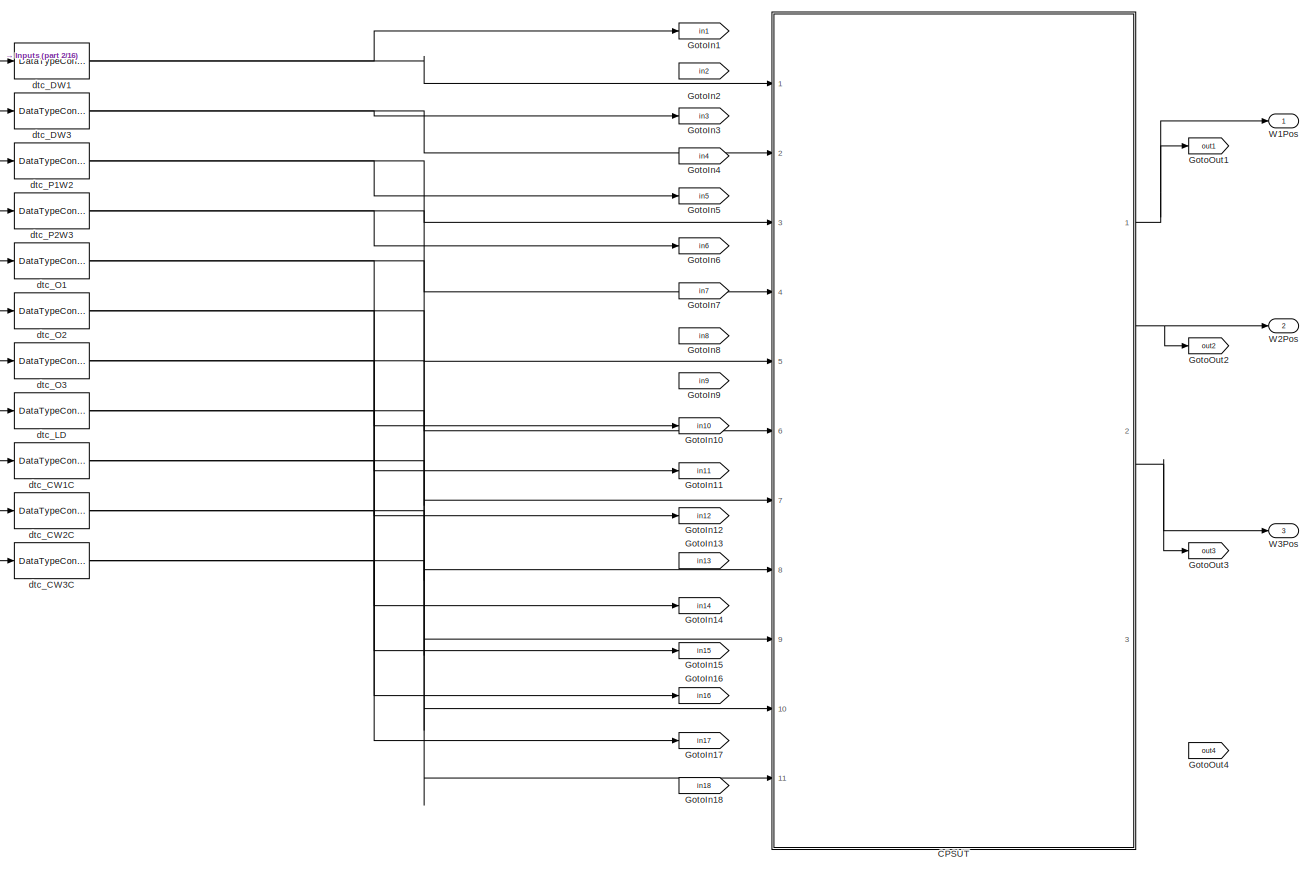
[diagram: root canvas - part 1/16, top left region]
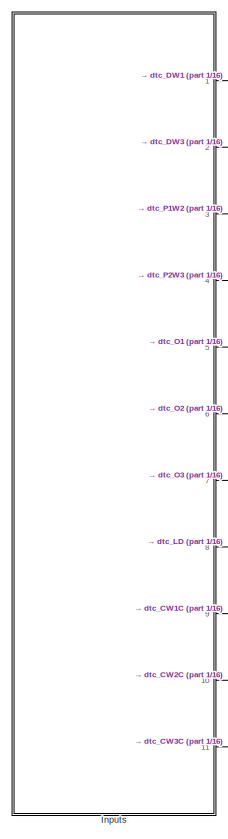
[diagram: root canvas - part 2/16, top left region]
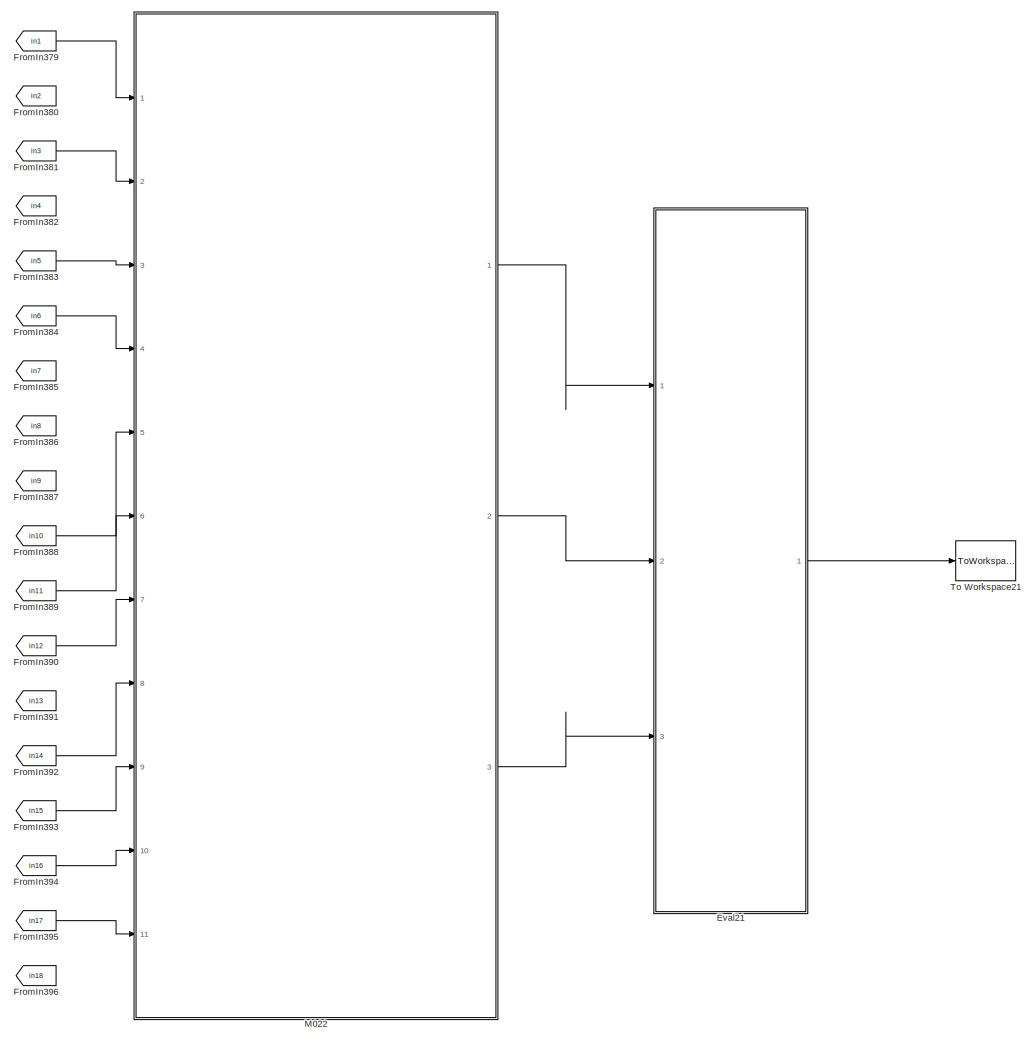
[diagram: root canvas - part 3/16, top center region]
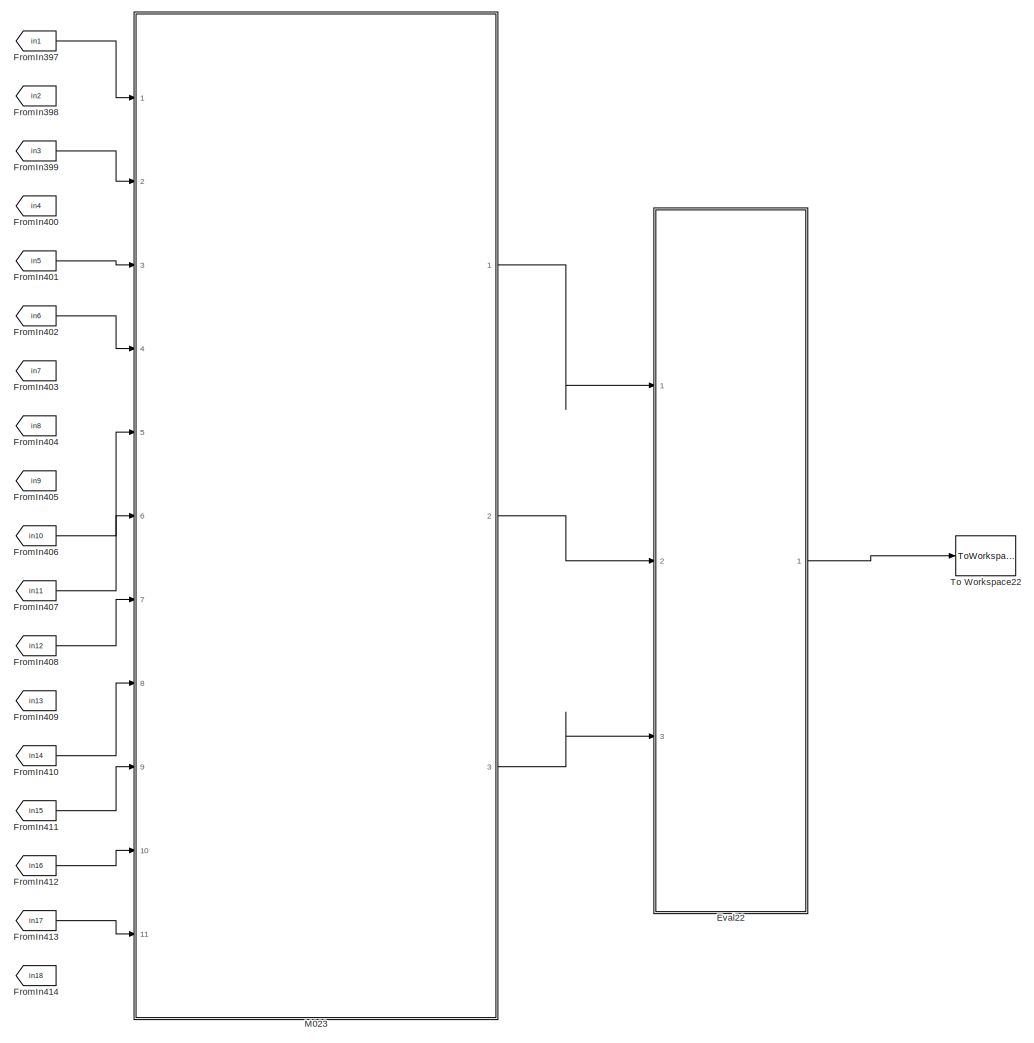
[diagram: root canvas - part 4/16, top center region]
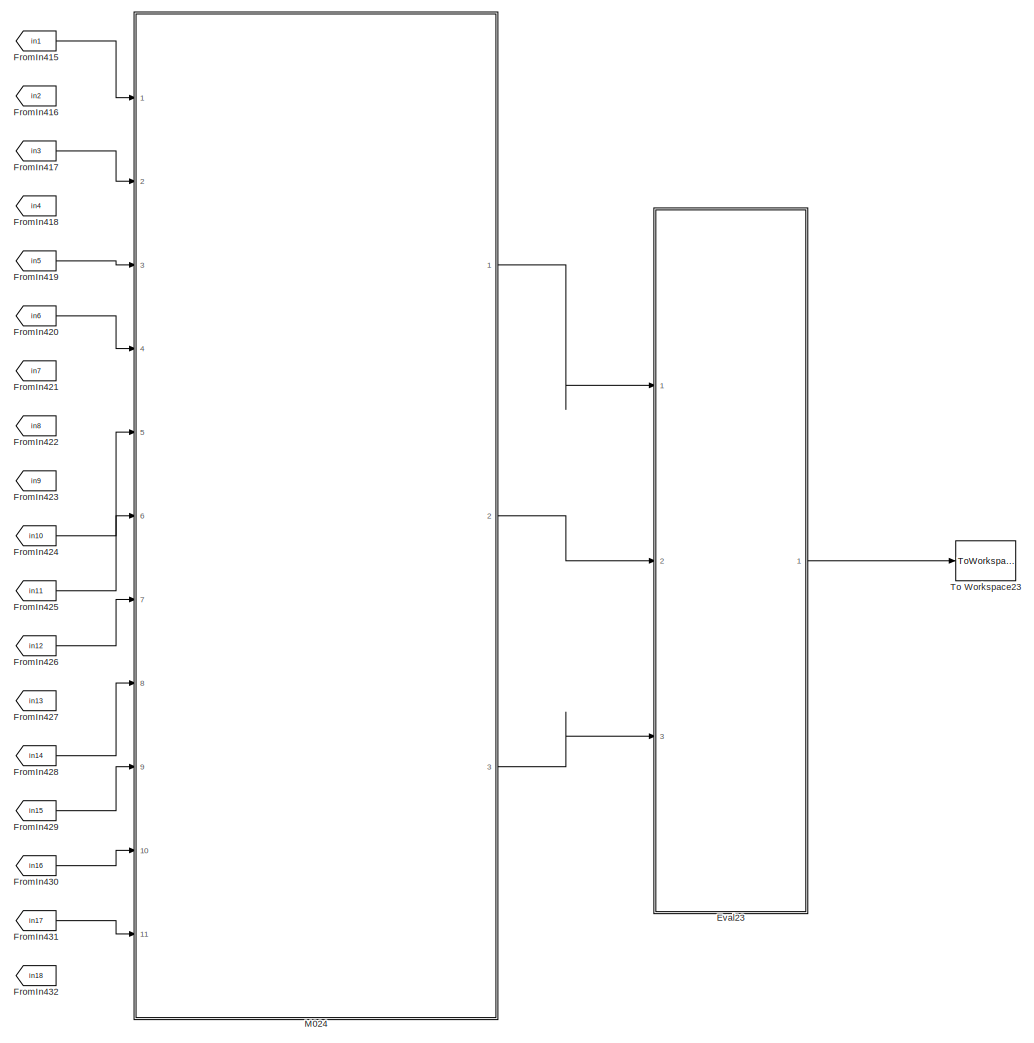
[diagram: root canvas - part 5/16, top center region]
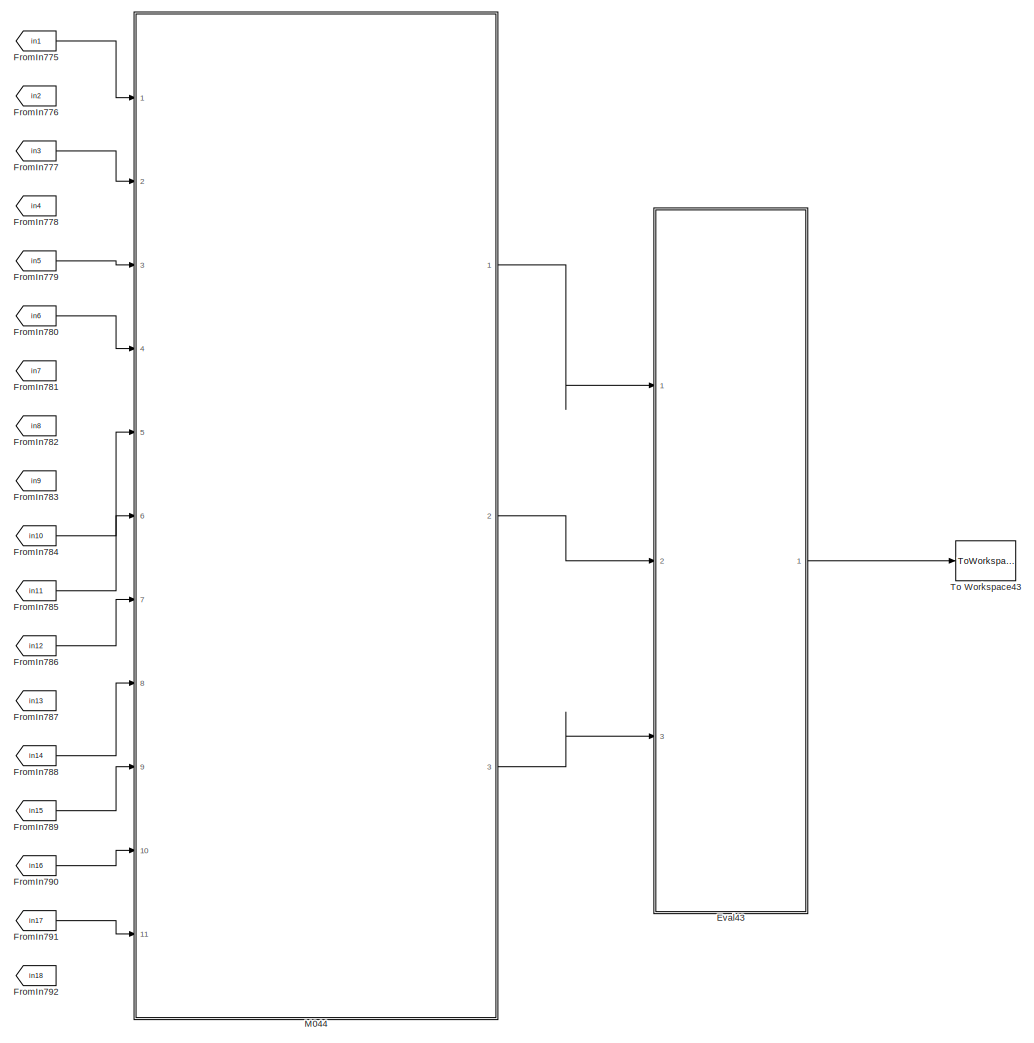
[diagram: root canvas - part 6/16, top right region]
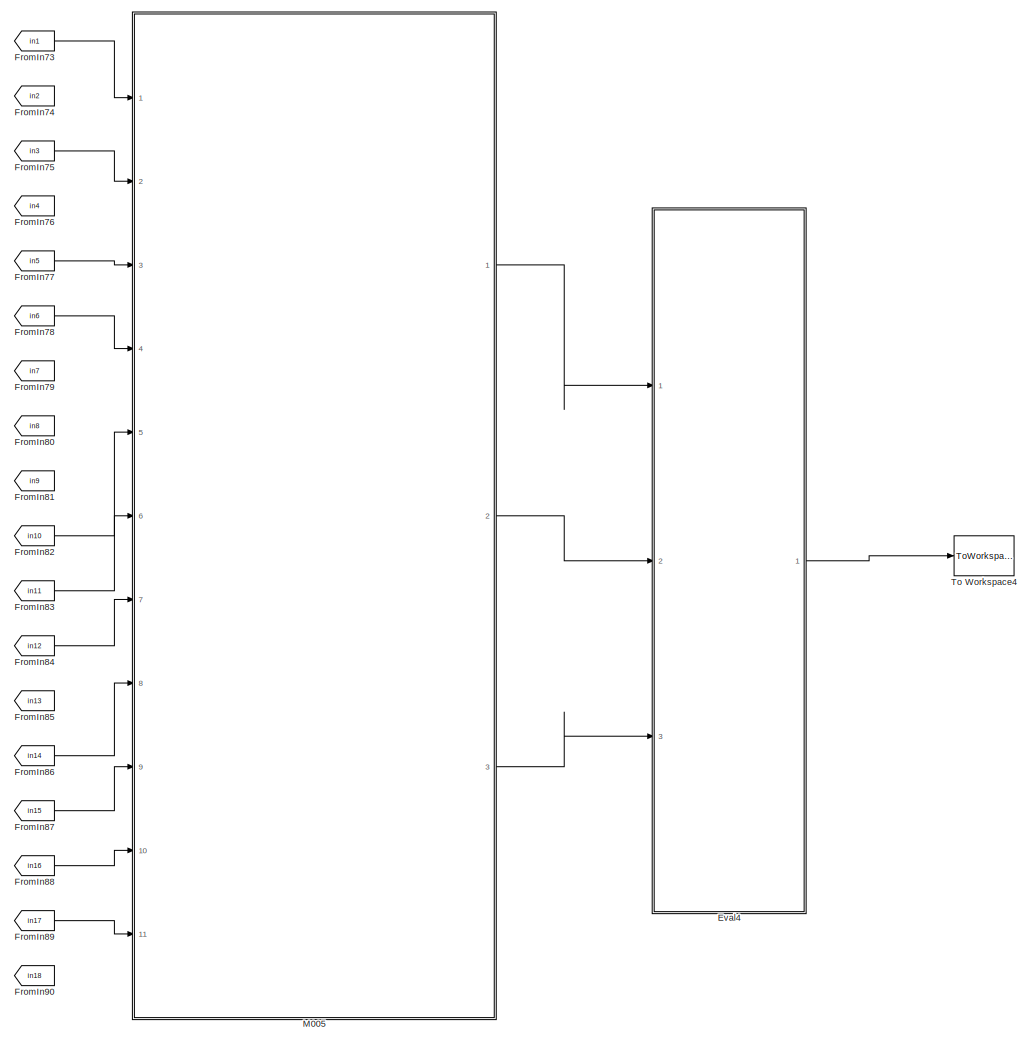
[diagram: root canvas - part 7/16, top center region]
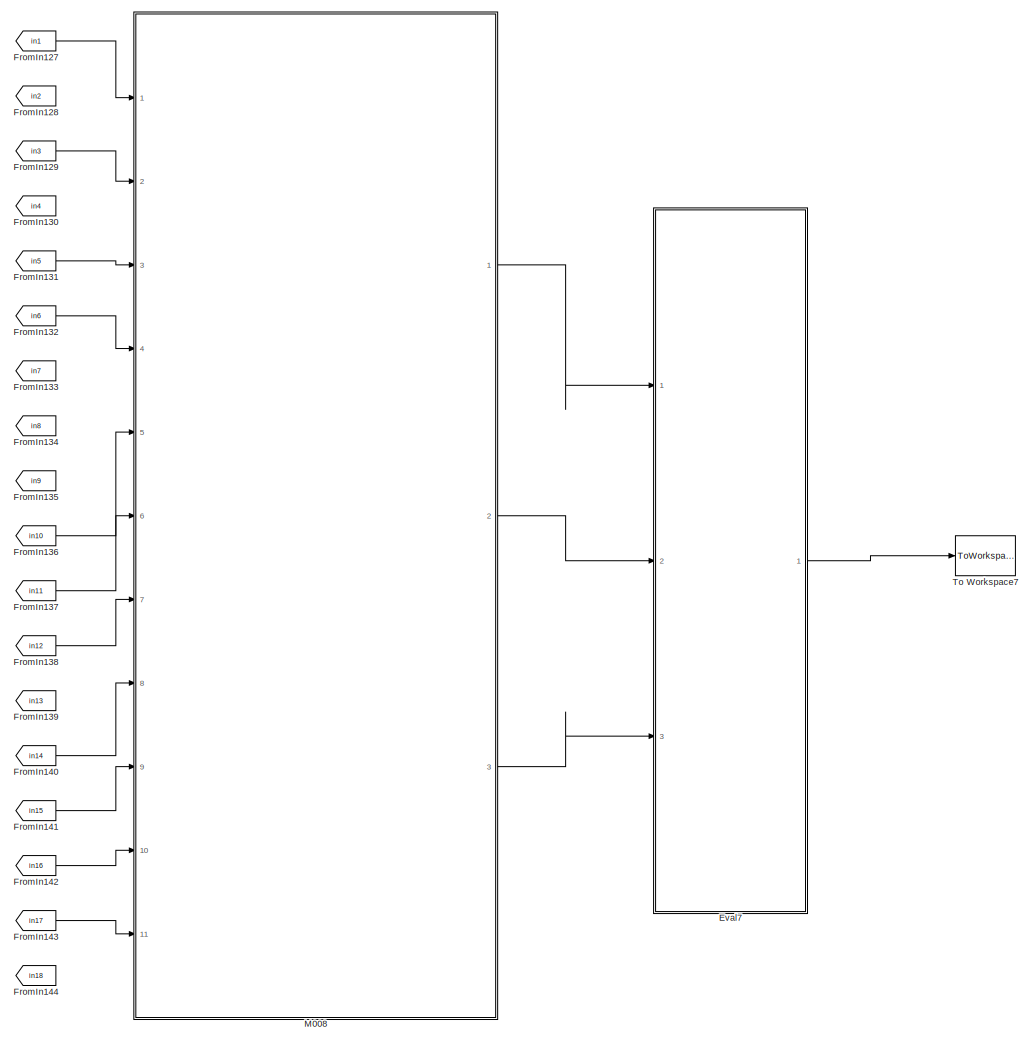
[diagram: root canvas - part 8/16, central region]
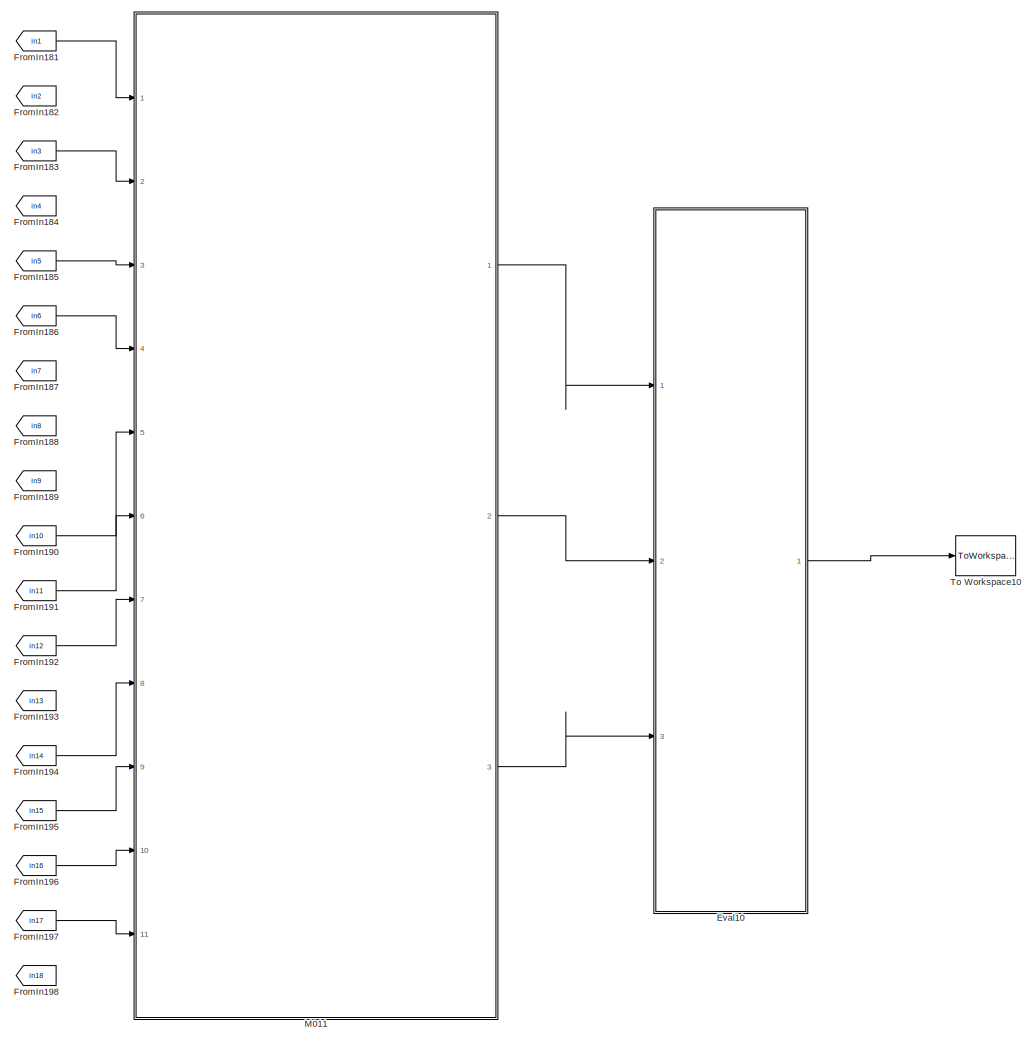
[diagram: root canvas - part 9/16, central region]
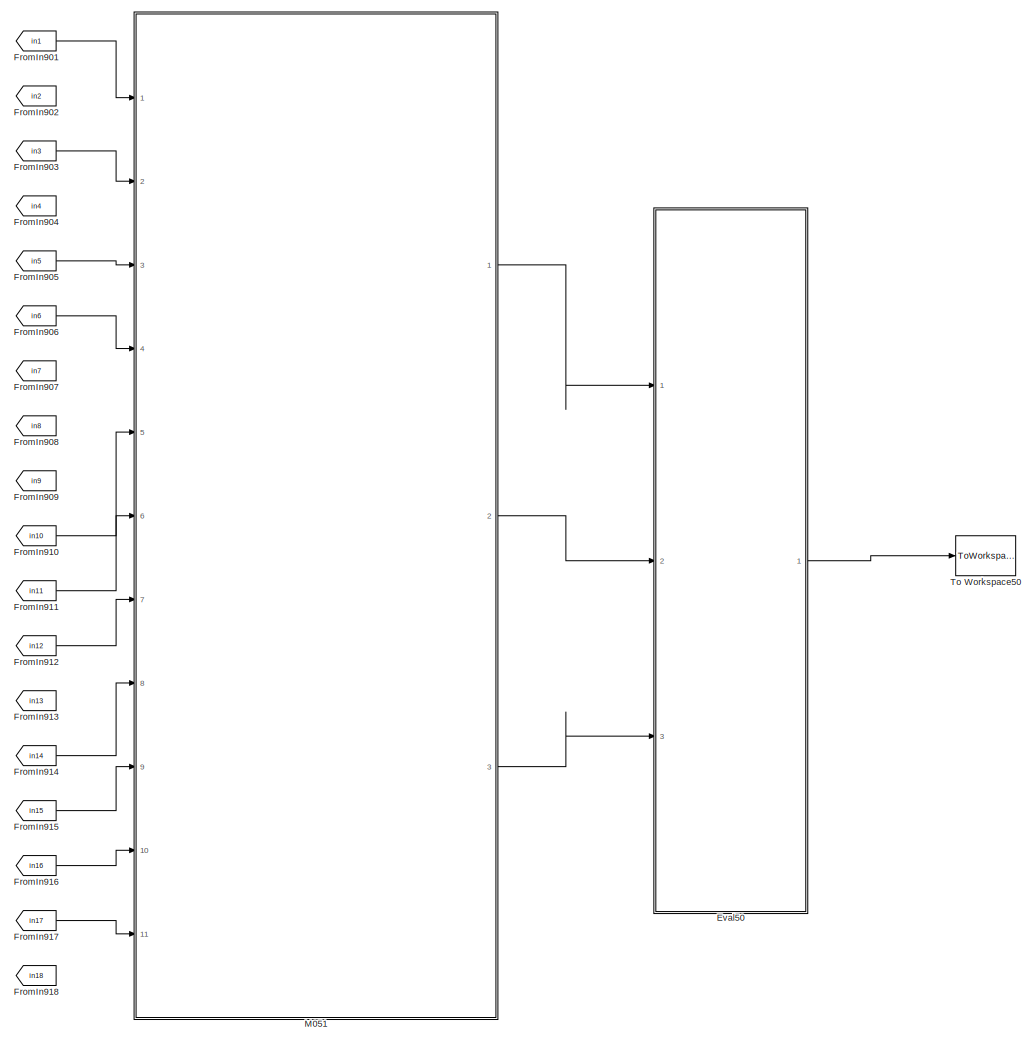
[diagram: root canvas - part 10/16, middle right region]
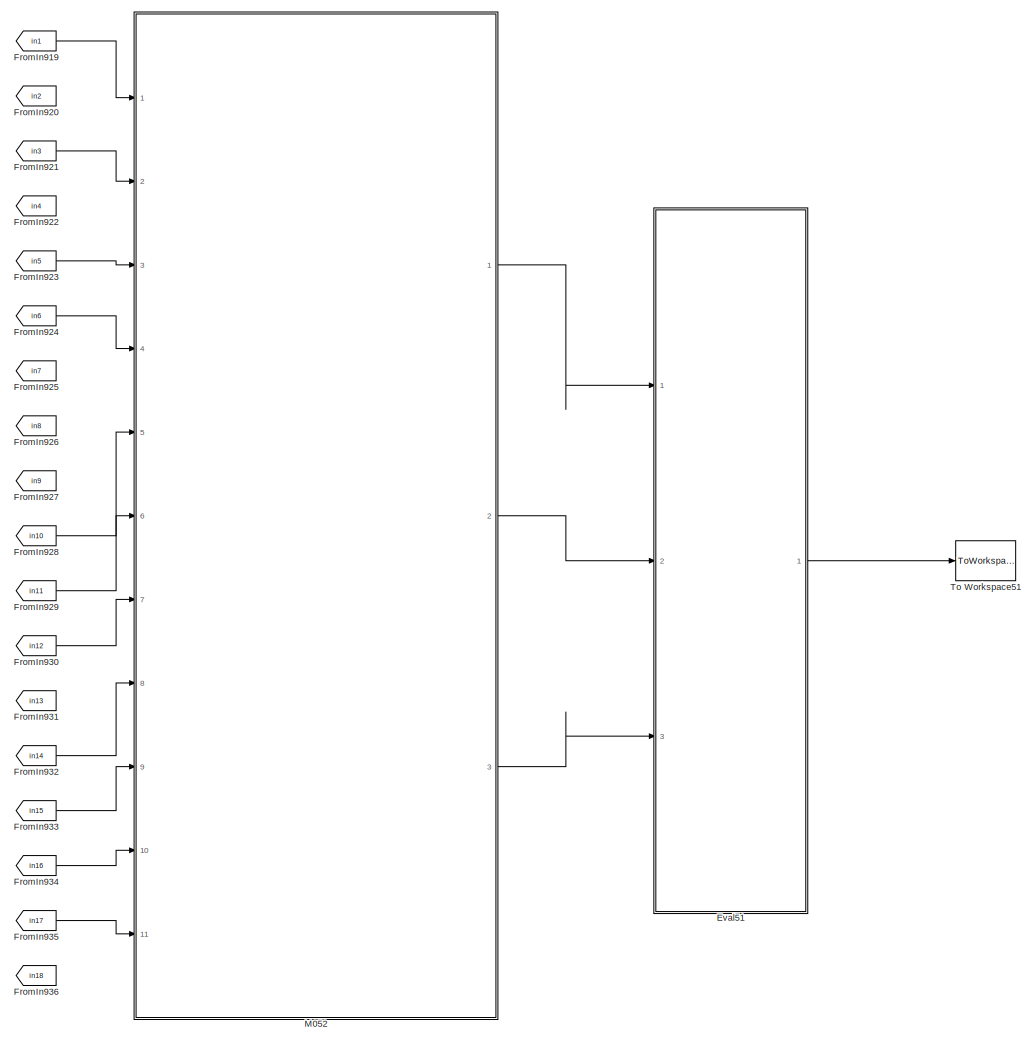
[diagram: root canvas - part 11/16, middle right region]
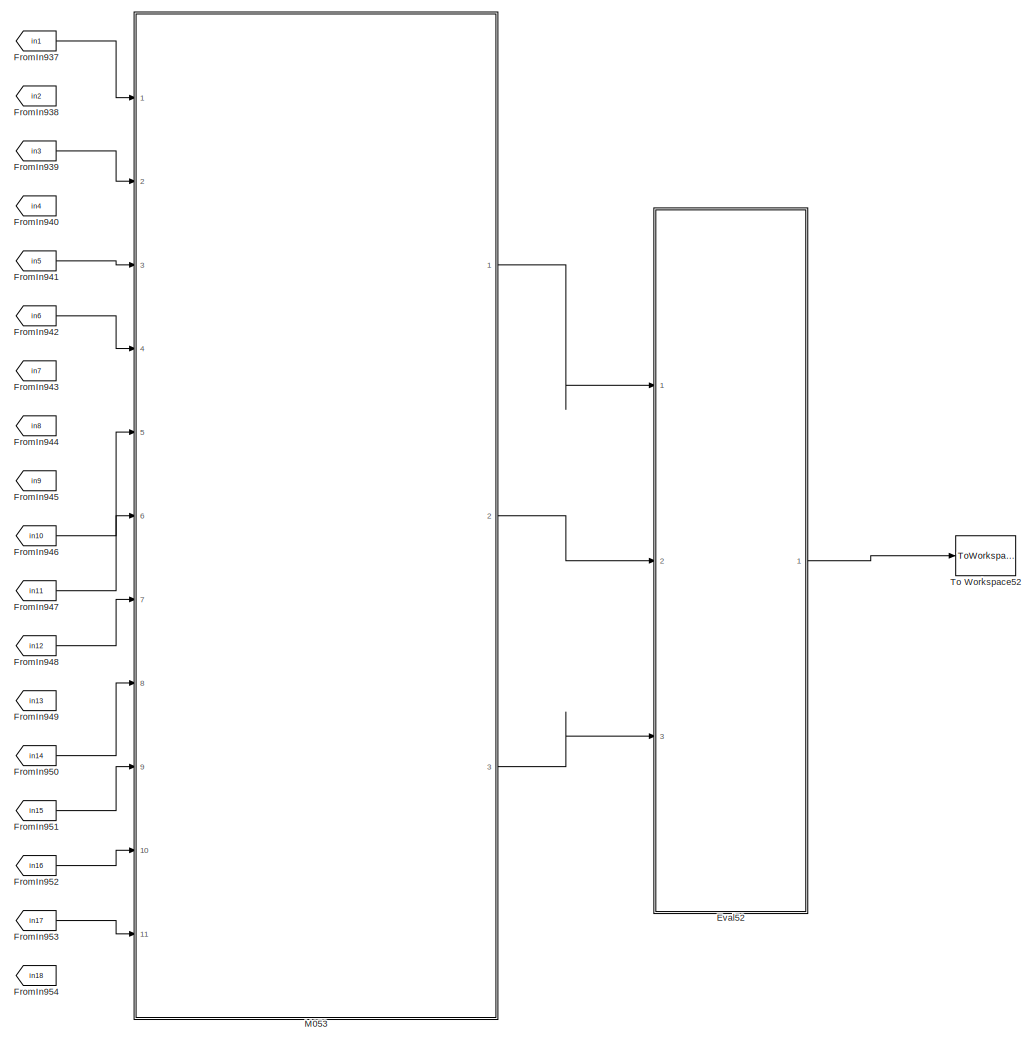
[diagram: root canvas - part 12/16, middle right region]
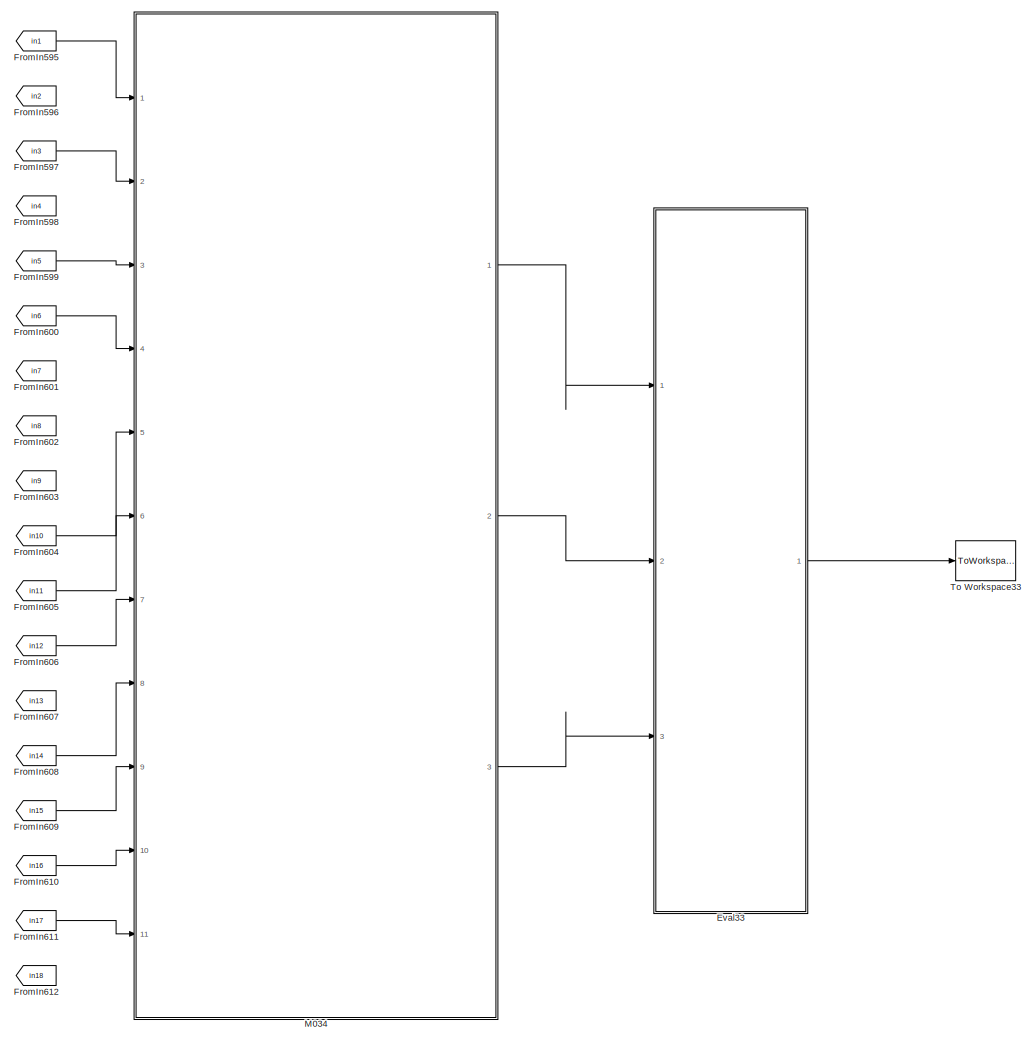
[diagram: root canvas - part 13/16, bottom center region]
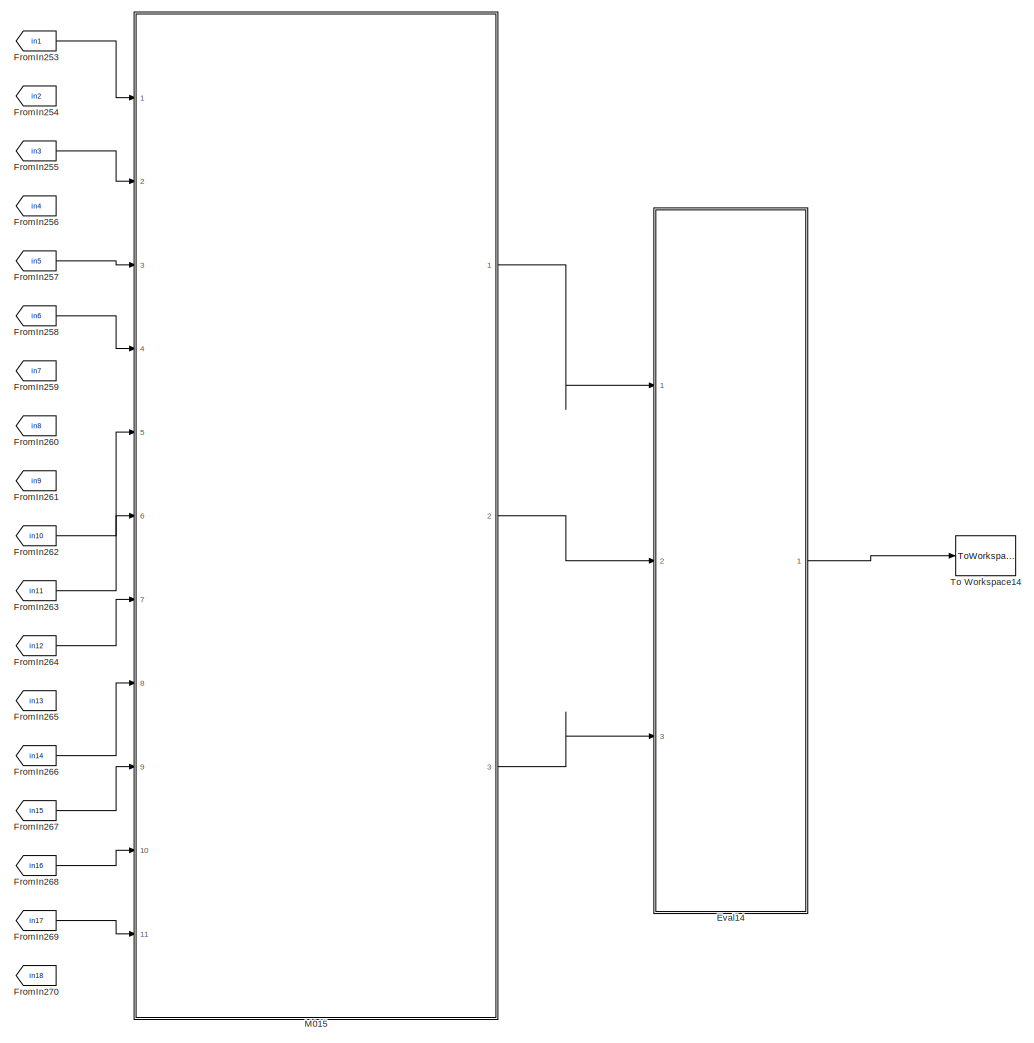
[diagram: root canvas - part 14/16, bottom center region]
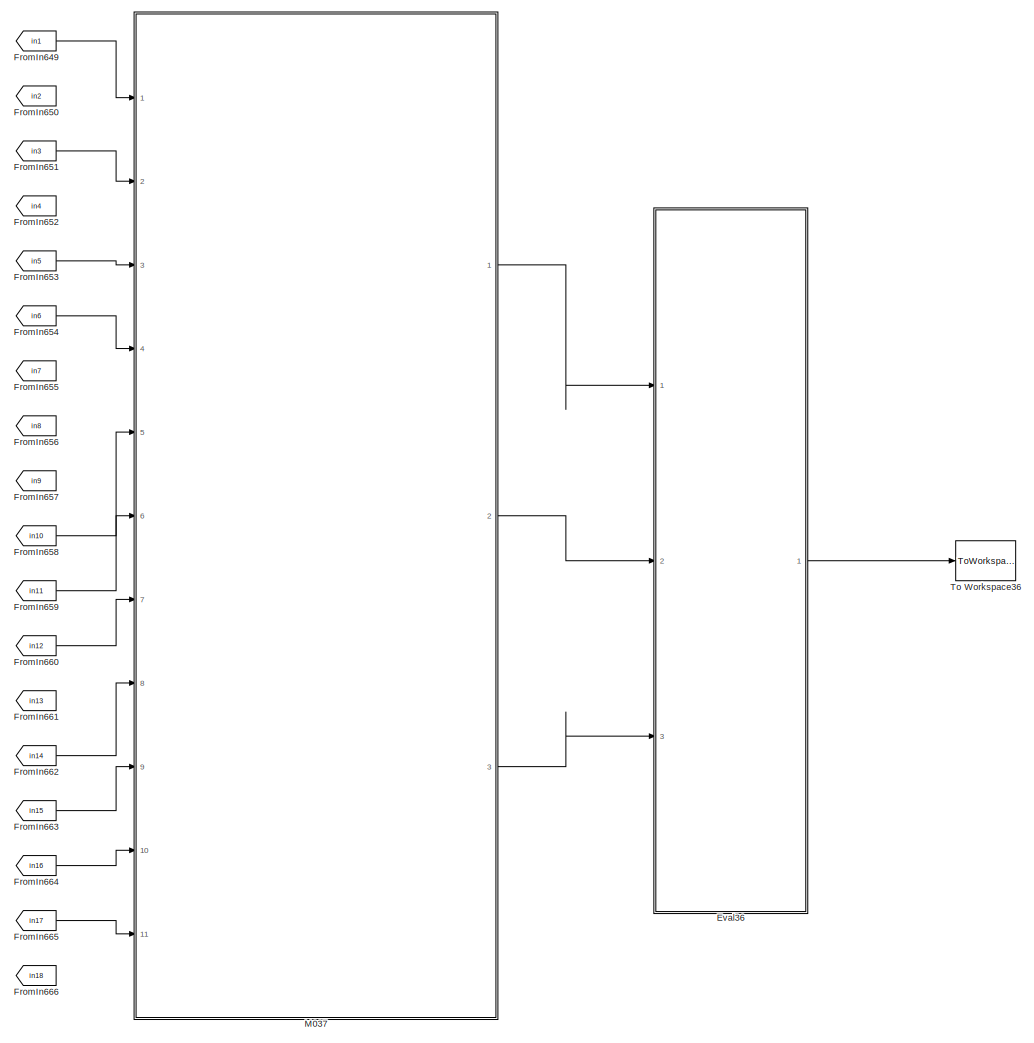
[diagram: root canvas - part 15/16, bottom center region]
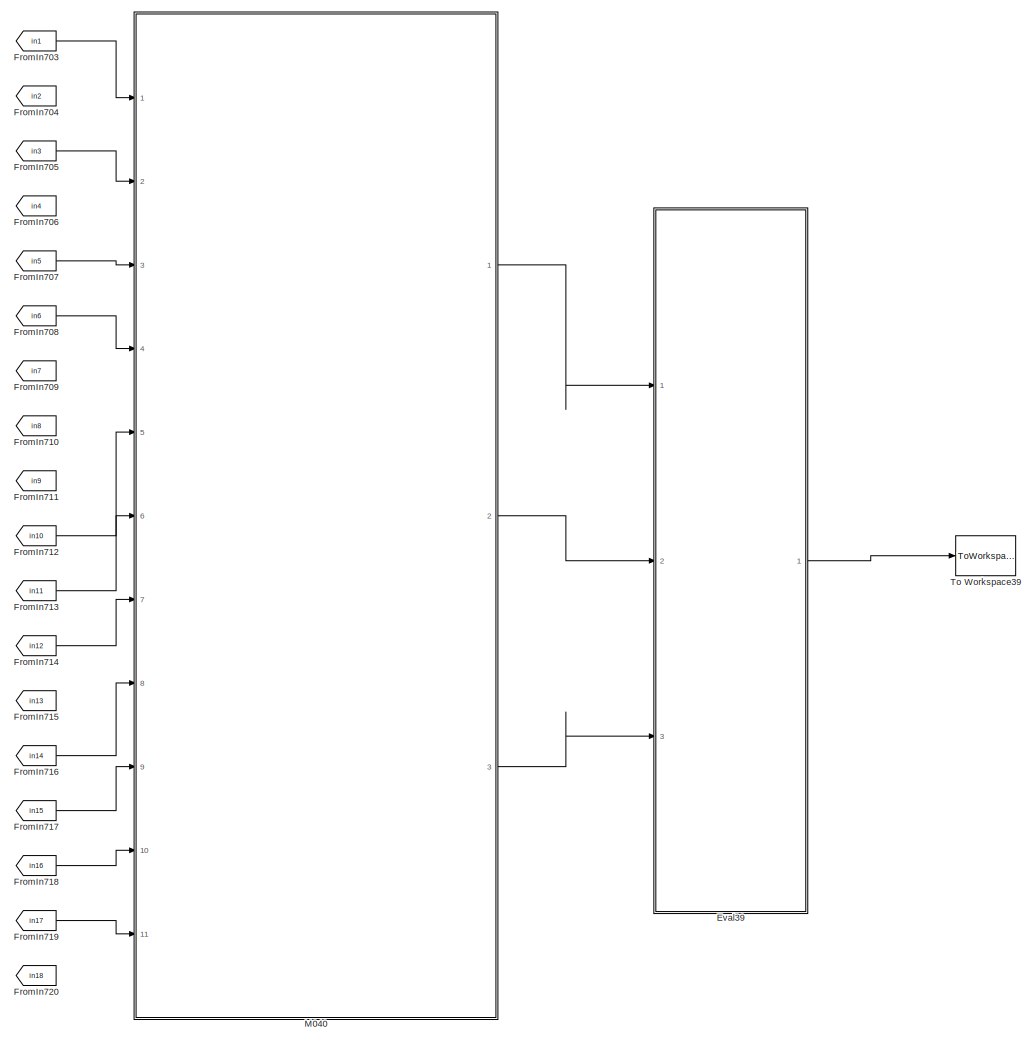
[diagram: root canvas - part 16/16, bottom center region]
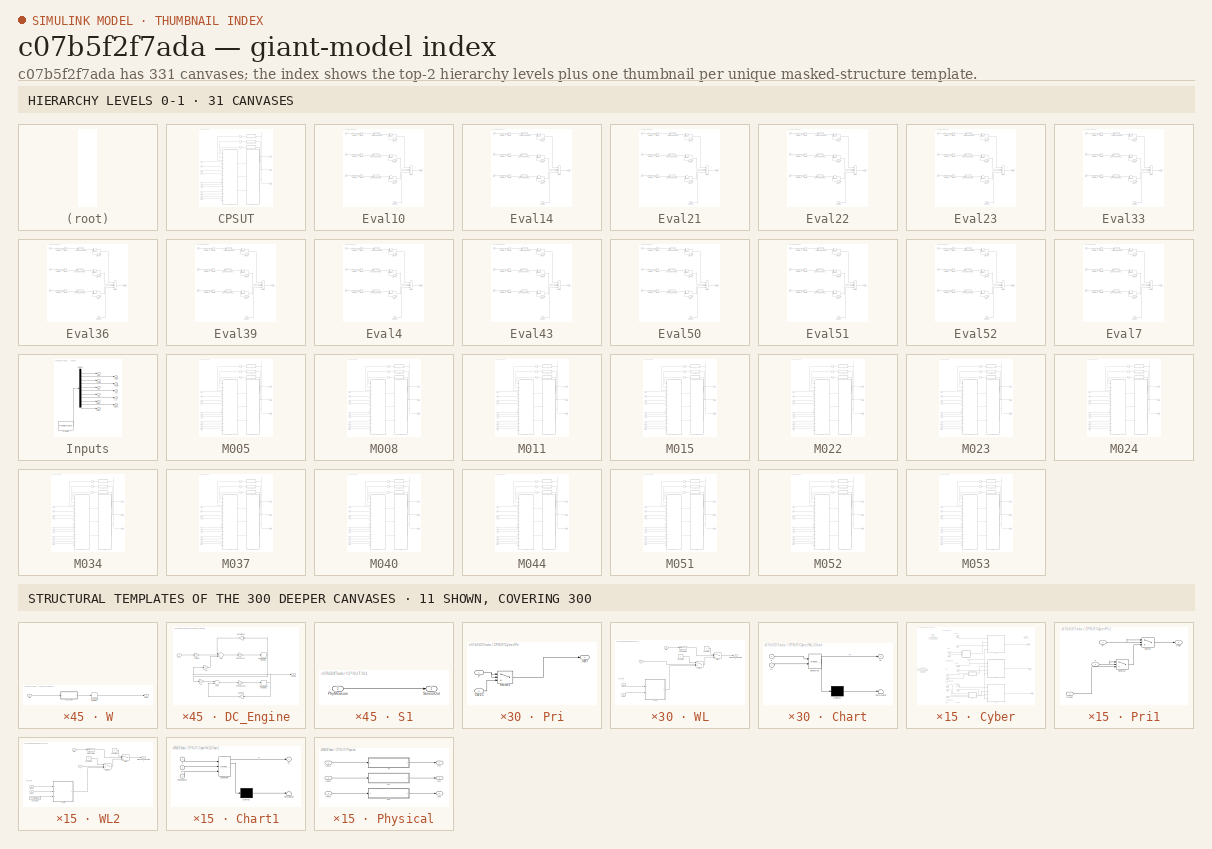
[diagram: thumbnail index - top-2 hierarchy levels (31 canvases) + 11 structural-template representatives of the remaining 300 canvases]
MODEL slx_c07b5f2f7ada
KIND model
CONFIG AbsTol = auto
CONFIG EnableMultiTasking = on
CONFIG FixedStep = auto
CONFIG MaxStep = auto
CONFIG MinStep = auto
CONFIG RelTol = 1e-3
CONFIG SampleTimeConstraint = Unconstrained
CONFIG Solver = ode3
CONFIG SolverName = ode3
CONFIG StartTime = 0.0
CONFIG StopTime = 10.0
BLOCK [SubSystem] CPSUT
  Ports = [11, 3]
  RequestExecContextInheritance = off
BLOCK [Inport] CPSUT/CW1C
  IconDisplay = Port number
  OutDataTypeStr = int8
  OutMax = 4
  OutMin = 0
  Port = 9
BLOCK [Inport] CPSUT/CW2C
  IconDisplay = Port number
  OutDataTypeStr = int8
  OutMax = 4
  OutMin = 0
  Port = 10
BLOCK [Inport] CPSUT/CW3C
  IconDisplay = Port number
  OutDataTypeStr = int8
  OutMax = 4
  OutMin = 0
  Port = 11
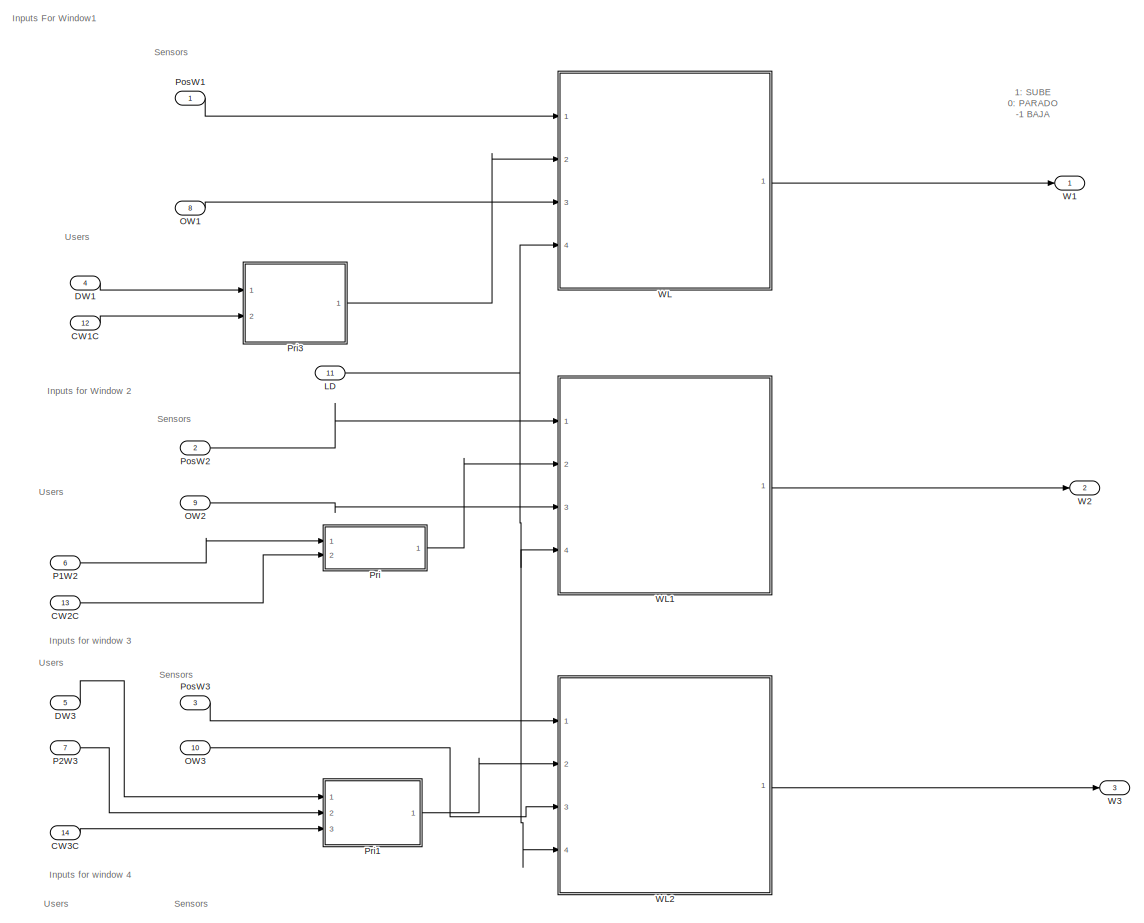
[diagram: CPSUT/Cyber - part 1/2, most of the canvas]
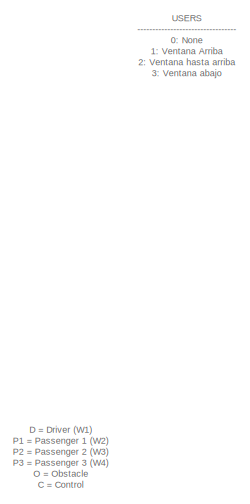
[diagram: CPSUT/Cyber - part 2/2, middle left region]
BLOCK [SubSystem] CPSUT/Cyber
  Ports = [14, 3]
  RequestExecContextInheritance = off
BLOCK [Inport] CPSUT/Cyber/CW1C
  IconDisplay = Port number
  Port = 12
BLOCK [Inport] CPSUT/Cyber/CW2C
  IconDisplay = Port number
  Port = 13
BLOCK [Inport] CPSUT/Cyber/CW3C
  IconDisplay = Port number
  Port = 14
BLOCK [Inport] CPSUT/Cyber/DW1
  IconDisplay = Port number
  Port = 4
BLOCK [Inport] CPSUT/Cyber/DW3
  IconDisplay = Port number
  Port = 5
BLOCK [Inport] CPSUT/Cyber/LD
  IconDisplay = Port number
  Port = 11
BLOCK [Inport] CPSUT/Cyber/OW1
  IconDisplay = Port number
  Port = 8
BLOCK [Inport] CPSUT/Cyber/OW2
  IconDisplay = Port number
  Port = 9
BLOCK [Inport] CPSUT/Cyber/OW3
  IconDisplay = Port number
  Port = 10
BLOCK [Inport] CPSUT/Cyber/P1W2
  IconDisplay = Port number
  Port = 6
BLOCK [Inport] CPSUT/Cyber/P2W3
  IconDisplay = Port number
  Port = 7
BLOCK [Inport] CPSUT/Cyber/PosW1
  IconDisplay = Port number
BLOCK [Inport] CPSUT/Cyber/PosW2
  IconDisplay = Port number
  Port = 2
BLOCK [Inport] CPSUT/Cyber/PosW3
  IconDisplay = Port number
  Port = 3
BLOCK [SubSystem] CPSUT/Cyber/Pri
  Ports = [2, 1]
  RequestExecContextInheritance = off
BLOCK [Inport] CPSUT/Cyber/Pri/CW2C
  IconDisplay = Port number
  Port = 2
BLOCK [Inport] CPSUT/Cyber/Pri/P
  IconDisplay = Port number
BLOCK [Switch] CPSUT/Cyber/Pri/Switch1
  Criteria = u2 ~= 0
  InputSameDT = off
  SaturateOnIntegerOverflow = off
BLOCK [Outport] CPSUT/Cyber/Pri/User
  IconDisplay = Port number
BLOCK [SubSystem] CPSUT/Cyber/Pri1
  Ports = [3, 1]
  RequestExecContextInheritance = off
BLOCK [Inport] CPSUT/Cyber/Pri1/CW3C
  IconDisplay = Port number
  Port = 3
BLOCK [Inport] CPSUT/Cyber/Pri1/D
  IconDisplay = Port number
BLOCK [Inport] CPSUT/Cyber/Pri1/P
  IconDisplay = Port number
  Port = 2
BLOCK [Switch] CPSUT/Cyber/Pri1/Switch
  Criteria = u2 ~= 0
  InputSameDT = off
  SaturateOnIntegerOverflow = off
BLOCK [Switch] CPSUT/Cyber/Pri1/Switch1
  Criteria = u2 ~= 0
  InputSameDT = off
  SaturateOnIntegerOverflow = off
BLOCK [Outport] CPSUT/Cyber/Pri1/User
  IconDisplay = Port number
BLOCK [SubSystem] CPSUT/Cyber/Pri3
  Ports = [2, 1]
  RequestExecContextInheritance = off
BLOCK [Inport] CPSUT/Cyber/Pri3/CW1C
  IconDisplay = Port number
  Port = 2
BLOCK [Inport] CPSUT/Cyber/Pri3/D
  IconDisplay = Port number
BLOCK [Switch] CPSUT/Cyber/Pri3/Switch
  Criteria = u2 ~= 0
  InputSameDT = off
  SaturateOnIntegerOverflow = off
BLOCK [Outport] CPSUT/Cyber/Pri3/User
  IconDisplay = Port number
BLOCK [Outport] CPSUT/Cyber/W1
  IconDisplay = Port number
BLOCK [Outport] CPSUT/Cyber/W2
  IconDisplay = Port number
  Port = 2
BLOCK [Outport] CPSUT/Cyber/W3
  IconDisplay = Port number
  Port = 3
BLOCK [SubSystem] CPSUT/Cyber/WL
  Ports = [4, 1]
  RequestExecContextInheritance = off
BLOCK [SubSystem] CPSUT/Cyber/WL/Chart
  ErrorFcn = Stateflow.Translate.translate
  PermitHierarchicalResolution = ExplicitOnly
  Ports = [2, 1]
  RequestExecContextInheritance = off
  SFBlockType = Chart
  TreatAsAtomicUnit = on
BLOCK [Demux] CPSUT/Cyber/WL/Chart/ Demux 
  Outputs = 1
  Ports = [1, 1]
BLOCK [S-Function] CPSUT/Cyber/WL/Chart/ SFunction 
  EnableBusSupport = off
  FunctionName = sf_sfun
  PortCounts = [2 2]
  Ports = [2, 2]
  SFcnIsStateOwnerBlock = off
  SFunctionDeploymentMode = off
  Tag = Stateflow S-Function c00021M_harness 1
BLOCK [Terminator] CPSUT/Cyber/WL/Chart/ Terminator 
BLOCK [Inport] CPSUT/Cyber/WL/Chart/S
  IconDisplay = Port number
BLOCK [Inport] CPSUT/Cyber/WL/Chart/UI
  IconDisplay = Port number
  Port = 2
BLOCK [Outport] CPSUT/Cyber/WL/Chart/W
  IconDisplay = Port number
BLOCK [Constant] CPSUT/Cyber/WL/Constant
  Value = -1
BLOCK [Constant] CPSUT/Cyber/WL/Constant1
  Value = 0
BLOCK [DataTypeConversion] CPSUT/Cyber/WL/Data Type Conversion
  RndMeth = Floor
  SaturateOnIntegerOverflow = off
BLOCK [Inport] CPSUT/Cyber/WL/L
  IconDisplay = Port number
  Port = 4
BLOCK [Inport] CPSUT/Cyber/WL/OW
  IconDisplay = Port number
  Port = 3
BLOCK [Switch] CPSUT/Cyber/WL/Switch
  Criteria = u2 ~= 0
  InputSameDT = off
  SaturateOnIntegerOverflow = off
  Threshold = 1
  ZeroCross = off
BLOCK [Switch] CPSUT/Cyber/WL/Switch1
  Criteria = u2 ~= 0
  InputSameDT = off
  SaturateOnIntegerOverflow = off
BLOCK [Inport] CPSUT/Cyber/WL/User
  IconDisplay = Port number
  Port = 2
BLOCK [Inport] CPSUT/Cyber/WL/WPos
  IconDisplay = Port number
BLOCK [Outport] CPSUT/Cyber/WL/WindowLogicOutput
  IconDisplay = Port number
BLOCK [SubSystem] CPSUT/Cyber/WL1
  Ports = [4, 1]
  RequestExecContextInheritance = off
BLOCK [SubSystem] CPSUT/Cyber/WL1/Chart1
  ErrorFcn = Stateflow.Translate.translate
  PermitHierarchicalResolution = ExplicitOnly
  Ports = [2, 1]
  RequestExecContextInheritance = off
  SFBlockType = Chart
  TreatAsAtomicUnit = on
BLOCK [Demux] CPSUT/Cyber/WL1/Chart1/ Demux 
  Outputs = 1
  Ports = [1, 1]
BLOCK [S-Function] CPSUT/Cyber/WL1/Chart1/ SFunction 
  EnableBusSupport = off
  FunctionName = sf_sfun
  PortCounts = [2 2]
  Ports = [2, 2]
  SFcnIsStateOwnerBlock = off
  SFunctionDeploymentMode = off
  Tag = Stateflow S-Function c00021M_harness 3
BLOCK [Terminator] CPSUT/Cyber/WL1/Chart1/ Terminator 
BLOCK [Inport] CPSUT/Cyber/WL1/Chart1/S
  IconDisplay = Port number
BLOCK [Inport] CPSUT/Cyber/WL1/Chart1/UI
  IconDisplay = Port number
  Port = 2
BLOCK [Outport] CPSUT/Cyber/WL1/Chart1/W
  IconDisplay = Port number
BLOCK [Constant] CPSUT/Cyber/WL1/Constant
  Value = -1
BLOCK [Constant] CPSUT/Cyber/WL1/Constant1
  Value = 0
BLOCK [DataTypeConversion] CPSUT/Cyber/WL1/Data Type Conversion
  RndMeth = Floor
  SaturateOnIntegerOverflow = off
BLOCK [Inport] CPSUT/Cyber/WL1/L
  IconDisplay = Port number
  Port = 4
BLOCK [Inport] CPSUT/Cyber/WL1/OW
  IconDisplay = Port number
  Port = 3
BLOCK [Switch] CPSUT/Cyber/WL1/Switch
  Criteria = u2 ~= 0
  InputSameDT = off
  SaturateOnIntegerOverflow = off
  Threshold = 1
  ZeroCross = off
BLOCK [Switch] CPSUT/Cyber/WL1/Switch1
  Criteria = u2 ~= 0
  InputSameDT = off
  SaturateOnIntegerOverflow = off
BLOCK [Inport] CPSUT/Cyber/WL1/User
  IconDisplay = Port number
  Port = 2
BLOCK [Inport] CPSUT/Cyber/WL1/WPos
  IconDisplay = Port number
BLOCK [Outport] CPSUT/Cyber/WL1/WindowLogicOutput
  IconDisplay = Port number
BLOCK [SubSystem] CPSUT/Cyber/WL2
  Ports = [4, 1]
  RequestExecContextInheritance = off
BLOCK [SubSystem] CPSUT/Cyber/WL2/Chart1
  ErrorFcn = Stateflow.Translate.translate
  PermitHierarchicalResolution = ExplicitOnly
  Ports = [3, 1]
  RequestExecContextInheritance = off
  SFBlockType = Chart
  TreatAsAtomicUnit = on
BLOCK [Demux] CPSUT/Cyber/WL2/Chart1/ Demux 
  Outputs = 1
  Ports = [1, 1]
BLOCK [S-Function] CPSUT/Cyber/WL2/Chart1/ SFunction 
  EnableBusSupport = off
  FunctionName = sf_sfun
  PortCounts = [3 2]
  Ports = [3, 2]
  SFcnIsStateOwnerBlock = off
  SFunctionDeploymentMode = off
  Tag = Stateflow S-Function c00021M_harness 2
BLOCK [Terminator] CPSUT/Cyber/WL2/Chart1/ Terminator 
BLOCK [Inport] CPSUT/Cyber/WL2/Chart1/PosMinW3
  IconDisplay = Port number
  Port = 3
BLOCK [Inport] CPSUT/Cyber/WL2/Chart1/S
  IconDisplay = Port number
BLOCK [Inport] CPSUT/Cyber/WL2/Chart1/UI
  IconDisplay = Port number
  Port = 2
BLOCK [Outport] CPSUT/Cyber/WL2/Chart1/W
  IconDisplay = Port number
BLOCK [Constant] CPSUT/Cyber/WL2/Constant
  Value = -1
BLOCK [Constant] CPSUT/Cyber/WL2/Constant1
  Value = 0
BLOCK [Constant] CPSUT/Cyber/WL2/Constant2
  Value = PosMinimaW3
BLOCK [DataTypeConversion] CPSUT/Cyber/WL2/Data Type Conversion
  RndMeth = Floor
  SaturateOnIntegerOverflow = off
BLOCK [Inport] CPSUT/Cyber/WL2/L
  IconDisplay = Port number
  Port = 4
BLOCK [Inport] CPSUT/Cyber/WL2/OW
  IconDisplay = Port number
  Port = 3
BLOCK [Switch] CPSUT/Cyber/WL2/Switch
  Criteria = u2 ~= 0
  InputSameDT = off
  SaturateOnIntegerOverflow = off
  Threshold = 1
  ZeroCross = off
BLOCK [Switch] CPSUT/Cyber/WL2/Switch1
  Criteria = u2 ~= 0
  InputSameDT = off
  SaturateOnIntegerOverflow = off
BLOCK [Inport] CPSUT/Cyber/WL2/User
  IconDisplay = Port number
  Port = 2
BLOCK [Inport] CPSUT/Cyber/WL2/WPos
  IconDisplay = Port number
BLOCK [Outport] CPSUT/Cyber/WL2/WindowLogicOutput
  IconDisplay = Port number
BLOCK [Inport] CPSUT/DW1
  IconDisplay = Port number
  OutDataTypeStr = int8
  OutMax = 4
  OutMin = 0
BLOCK [Inport] CPSUT/DW3
  IconDisplay = Port number
  OutDataTypeStr = int8
  OutMax = 4
  OutMin = 0
  Port = 2
BLOCK [Inport] CPSUT/LD
  IconDisplay = Port number
  OutDataTypeStr = boolean
  Port = 8
BLOCK [Memory] CPSUT/M
BLOCK [Memory] CPSUT/M1
BLOCK [Memory] CPSUT/M2
BLOCK [Inport] CPSUT/O1
  IconDisplay = Port number
  OutDataTypeStr = boolean
  Port = 5
BLOCK [Inport] CPSUT/O2
  IconDisplay = Port number
  OutDataTypeStr = boolean
  Port = 6
BLOCK [Inport] CPSUT/O3
  IconDisplay = Port number
  OutDataTypeStr = boolean
  Port = 7
BLOCK [Inport] CPSUT/P1W2
  IconDisplay = Port number
  OutDataTypeStr = int8
  OutMax = 4
  OutMin = 0
  Port = 3
BLOCK [Inport] CPSUT/P2W3
  IconDisplay = Port number
  OutDataTypeStr = int8
  OutMax = 4
  OutMin = 0
  Port = 4
BLOCK [SubSystem] CPSUT/Physical
  Ports = [3, 3]
  RequestExecContextInheritance = off
BLOCK [Inport] CPSUT/Physical/InW1
  IconDisplay = Port number
BLOCK [Inport] CPSUT/Physical/InW2
  IconDisplay = Port number
  Port = 2
BLOCK [Inport] CPSUT/Physical/InW3
  IconDisplay = Port number
  Port = 3
BLOCK [SubSystem] CPSUT/Physical/W
  Ports = [1, 1]
  RequestExecContextInheritance = off
BLOCK [SubSystem] CPSUT/Physical/W/DC_Engine
  Ports = [1, 1]
  RequestExecContextInheritance = off
BLOCK [Gain] CPSUT/Physical/W/DC_Engine/(Inductance)
  Gain = 1/L
  OutDataTypeStr = Inherit: Inherit via internal rule
  ParamDataTypeStr = Inherit: Inherit via internal rule
  SaturateOnIntegerOverflow = off
BLOCK [Gain] CPSUT/Physical/W/DC_Engine/(Inductance)1
  Gain = 1/J
  OutDataTypeStr = Inherit: Inherit via internal rule
  ParamDataTypeStr = Inherit: Inherit via internal rule
  SaturateOnIntegerOverflow = off
BLOCK [Sum] CPSUT/Physical/W/DC_Engine/Add
  InputSameDT = off
  Inputs = -+-
  OutDataTypeStr = Inherit: Inherit via internal rule
  Ports = [3, 1]
  SaturateOnIntegerOverflow = off
BLOCK [Sum] CPSUT/Physical/W/DC_Engine/Add1
  InputSameDT = off
  Inputs = +-
  OutDataTypeStr = Inherit: Inherit via internal rule
  Ports = [2, 1]
  SaturateOnIntegerOverflow = off
BLOCK [Gain] CPSUT/Physical/W/DC_Engine/Damping
  Gain = b
  OutDataTypeStr = Inherit: Inherit via internal rule
  ParamDataTypeStr = Inherit: Inherit via internal rule
  SaturateOnIntegerOverflow = off
BLOCK [DiscreteIntegrator] CPSUT/Physical/W/DC_Engine/Discrete-Time Integrator
  ICPrevOutput = DiscIntNeverNeededParam
  ICPrevScaledInput = DiscIntNeverNeededParam
  Ports = [1, 1]
  SampleTime = -1
BLOCK [DiscreteIntegrator] CPSUT/Physical/W/DC_Engine/Discrete-Time Integrator1
  ICPrevOutput = DiscIntNeverNeededParam
  ICPrevScaledInput = DiscIntNeverNeededParam
  Ports = [1, 1]
  SampleTime = -1
BLOCK [Gain] CPSUT/Physical/W/DC_Engine/Ke
  Gain = K
  OutDataTypeStr = Inherit: Inherit via internal rule
  ParamDataTypeStr = Inherit: Inherit via internal rule
  SaturateOnIntegerOverflow = off
BLOCK [Gain] CPSUT/Physical/W/DC_Engine/Kt
  Gain = K
  OutDataTypeStr = Inherit: Inherit via internal rule
  ParamDataTypeStr = Inherit: Inherit via internal rule
  SaturateOnIntegerOverflow = off
BLOCK [Gain] CPSUT/Physical/W/DC_Engine/Resistance
  Gain = R
  OutDataTypeStr = Inherit: Inherit via internal rule
  ParamDataTypeStr = Inherit: Inherit via internal rule
  SaturateOnIntegerOverflow = off
BLOCK [Outport] CPSUT/Physical/W/DC_Engine/Speed
  IconDisplay = Port number
BLOCK [Gain] CPSUT/Physical/W/DC_Engine/Voltage
  Gain = 10
  OutDataTypeStr = Inherit: Inherit via internal rule
  ParamDataTypeStr = Inherit: Inherit via internal rule
  SaturateOnIntegerOverflow = off
BLOCK [Inport] CPSUT/Physical/W/DC_Engine/input
  IconDisplay = Port number
BLOCK [DiscreteIntegrator] CPSUT/Physical/W/Discrete-Time Integrator
  ICPrevOutput = DiscIntNeverNeededParam
  ICPrevScaledInput = DiscIntNeverNeededParam
  InitialCondition = 5
  LimitOutput = on
  LowerSaturationLimit = 0
  Ports = [1, 1]
  SampleTime = -1
  UpperSaturationLimit = 5
BLOCK [Inport] CPSUT/Physical/W/WIn
  IconDisplay = Port number
BLOCK [Outport] CPSUT/Physical/W/WPos
  IconDisplay = Port number
BLOCK [Outport] CPSUT/Physical/W1
  IconDisplay = Port number
BLOCK [Outport] CPSUT/Physical/W2
  IconDisplay = Port number
  Port = 2
BLOCK [Outport] CPSUT/Physical/W3
  IconDisplay = Port number
  Port = 3
BLOCK [SubSystem] CPSUT/Physical/W5
  Ports = [1, 1]
  RequestExecContextInheritance = off
BLOCK [SubSystem] CPSUT/Physical/W5/DC_Engine
  Ports = [1, 1]
  RequestExecContextInheritance = off
BLOCK [Gain] CPSUT/Physical/W5/DC_Engine/(Inductance)
  Gain = 1/L
  OutDataTypeStr = Inherit: Inherit via internal rule
  ParamDataTypeStr = Inherit: Inherit via internal rule
  SaturateOnIntegerOverflow = off
BLOCK [Gain] CPSUT/Physical/W5/DC_Engine/(Inductance)1
  Gain = 1/J
  OutDataTypeStr = Inherit: Inherit via internal rule
  ParamDataTypeStr = Inherit: Inherit via internal rule
  SaturateOnIntegerOverflow = off
BLOCK [Sum] CPSUT/Physical/W5/DC_Engine/Add
  InputSameDT = off
  Inputs = -+-
  OutDataTypeStr = Inherit: Inherit via internal rule
  Ports = [3, 1]
  SaturateOnIntegerOverflow = off
BLOCK [Sum] CPSUT/Physical/W5/DC_Engine/Add1
  InputSameDT = off
  Inputs = +-
  OutDataTypeStr = Inherit: Inherit via internal rule
  Ports = [2, 1]
  SaturateOnIntegerOverflow = off
BLOCK [Gain] CPSUT/Physical/W5/DC_Engine/Damping
  Gain = b
  OutDataTypeStr = Inherit: Inherit via internal rule
  ParamDataTypeStr = Inherit: Inherit via internal rule
  SaturateOnIntegerOverflow = off
BLOCK [DiscreteIntegrator] CPSUT/Physical/W5/DC_Engine/Discrete-Time Integrator
  ICPrevOutput = DiscIntNeverNeededParam
  ICPrevScaledInput = DiscIntNeverNeededParam
  Ports = [1, 1]
  SampleTime = -1
BLOCK [DiscreteIntegrator] CPSUT/Physical/W5/DC_Engine/Discrete-Time Integrator1
  ICPrevOutput = DiscIntNeverNeededParam
  ICPrevScaledInput = DiscIntNeverNeededParam
  Ports = [1, 1]
  SampleTime = -1
BLOCK [Gain] CPSUT/Physical/W5/DC_Engine/Ke
  Gain = K
  OutDataTypeStr = Inherit: Inherit via internal rule
  ParamDataTypeStr = Inherit: Inherit via internal rule
  SaturateOnIntegerOverflow = off
BLOCK [Gain] CPSUT/Physical/W5/DC_Engine/Kt
  Gain = K
  OutDataTypeStr = Inherit: Inherit via internal rule
  ParamDataTypeStr = Inherit: Inherit via internal rule
  SaturateOnIntegerOverflow = off
BLOCK [Gain] CPSUT/Physical/W5/DC_Engine/Resistance
  Gain = R
  OutDataTypeStr = Inherit: Inherit via internal rule
  ParamDataTypeStr = Inherit: Inherit via internal rule
  SaturateOnIntegerOverflow = off
BLOCK [Outport] CPSUT/Physical/W5/DC_Engine/Speed
  IconDisplay = Port number
BLOCK [Gain] CPSUT/Physical/W5/DC_Engine/Voltage
  Gain = 10
  OutDataTypeStr = Inherit: Inherit via internal rule
  ParamDataTypeStr = Inherit: Inherit via internal rule
  SaturateOnIntegerOverflow = off
BLOCK [Inport] CPSUT/Physical/W5/DC_Engine/input
  IconDisplay = Port number
BLOCK [DiscreteIntegrator] CPSUT/Physical/W5/Discrete-Time Integrator
  ICPrevOutput = DiscIntNeverNeededParam
  ICPrevScaledInput = DiscIntNeverNeededParam
  InitialCondition = 5
  LimitOutput = on
  LowerSaturationLimit = 0
  Ports = [1, 1]
  SampleTime = -1
  UpperSaturationLimit = 5
BLOCK [Inport] CPSUT/Physical/W5/WIn
  IconDisplay = Port number
BLOCK [Outport] CPSUT/Physical/W5/WPos
  IconDisplay = Port number
BLOCK [SubSystem] CPSUT/Physical/W6
  Ports = [1, 1]
  RequestExecContextInheritance = off
BLOCK [SubSystem] CPSUT/Physical/W6/DC_Engine
  Ports = [1, 1]
  RequestExecContextInheritance = off
BLOCK [Gain] CPSUT/Physical/W6/DC_Engine/(Inductance)
  Gain = 1/L
  OutDataTypeStr = Inherit: Inherit via internal rule
  ParamDataTypeStr = Inherit: Inherit via internal rule
  SaturateOnIntegerOverflow = off
BLOCK [Gain] CPSUT/Physical/W6/DC_Engine/(Inductance)1
  Gain = 1/J
  OutDataTypeStr = Inherit: Inherit via internal rule
  ParamDataTypeStr = Inherit: Inherit via internal rule
  SaturateOnIntegerOverflow = off
BLOCK [Sum] CPSUT/Physical/W6/DC_Engine/Add
  InputSameDT = off
  Inputs = -+-
  OutDataTypeStr = Inherit: Inherit via internal rule
  Ports = [3, 1]
  SaturateOnIntegerOverflow = off
BLOCK [Sum] CPSUT/Physical/W6/DC_Engine/Add1
  InputSameDT = off
  Inputs = +-
  OutDataTypeStr = Inherit: Inherit via internal rule
  Ports = [2, 1]
  SaturateOnIntegerOverflow = off
BLOCK [Gain] CPSUT/Physical/W6/DC_Engine/Damping
  Gain = b
  OutDataTypeStr = Inherit: Inherit via internal rule
  ParamDataTypeStr = Inherit: Inherit via internal rule
  SaturateOnIntegerOverflow = off
BLOCK [DiscreteIntegrator] CPSUT/Physical/W6/DC_Engine/Discrete-Time Integrator
  ICPrevOutput = DiscIntNeverNeededParam
  ICPrevScaledInput = DiscIntNeverNeededParam
  Ports = [1, 1]
  SampleTime = -1
BLOCK [DiscreteIntegrator] CPSUT/Physical/W6/DC_Engine/Discrete-Time Integrator1
  ICPrevOutput = DiscIntNeverNeededParam
  ICPrevScaledInput = DiscIntNeverNeededParam
  Ports = [1, 1]
  SampleTime = -1
BLOCK [Gain] CPSUT/Physical/W6/DC_Engine/Ke
  Gain = K
  OutDataTypeStr = Inherit: Inherit via internal rule
  ParamDataTypeStr = Inherit: Inherit via internal rule
  SaturateOnIntegerOverflow = off
BLOCK [Gain] CPSUT/Physical/W6/DC_Engine/Kt
  Gain = K
  OutDataTypeStr = Inherit: Inherit via internal rule
  ParamDataTypeStr = Inherit: Inherit via internal rule
  SaturateOnIntegerOverflow = off
BLOCK [Gain] CPSUT/Physical/W6/DC_Engine/Resistance
  Gain = R
  OutDataTypeStr = Inherit: Inherit via internal rule
  ParamDataTypeStr = Inherit: Inherit via internal rule
  SaturateOnIntegerOverflow = off
BLOCK [Outport] CPSUT/Physical/W6/DC_Engine/Speed
  IconDisplay = Port number
BLOCK [Gain] CPSUT/Physical/W6/DC_Engine/Voltage
  Gain = 10
  OutDataTypeStr = Inherit: Inherit via internal rule
  ParamDataTypeStr = Inherit: Inherit via internal rule
  SaturateOnIntegerOverflow = off
BLOCK [Inport] CPSUT/Physical/W6/DC_Engine/input
  IconDisplay = Port number
BLOCK [DiscreteIntegrator] CPSUT/Physical/W6/Discrete-Time Integrator
  ICPrevOutput = DiscIntNeverNeededParam
  ICPrevScaledInput = DiscIntNeverNeededParam
  InitialCondition = 5
  LimitOutput = on
  LowerSaturationLimit = PosMinimaW3
  Ports = [1, 1]
  SampleTime = -1
  UpperSaturationLimit = 5
BLOCK [Inport] CPSUT/Physical/W6/WIn
  IconDisplay = Port number
BLOCK [Outport] CPSUT/Physical/W6/WPos
  IconDisplay = Port number
BLOCK [SubSystem] CPSUT/S1
  Ports = [1, 1]
  RequestExecContextInheritance = off
BLOCK [Inport] CPSUT/S1/PhyMeasure
  IconDisplay = Port number
BLOCK [Outport] CPSUT/S1/SensorOut
  IconDisplay = Port number
BLOCK [SubSystem] CPSUT/S2
  Ports = [1, 1]
  RequestExecContextInheritance = off
BLOCK [Inport] CPSUT/S2/PhyMeasure
  IconDisplay = Port number
BLOCK [Outport] CPSUT/S2/SensorOut
  IconDisplay = Port number
BLOCK [SubSystem] CPSUT/S3
  Ports = [1, 1]
  RequestExecContextInheritance = off
BLOCK [Inport] CPSUT/S3/PhyMeasure
  IconDisplay = Port number
BLOCK [Outport] CPSUT/S3/SensorOut
  IconDisplay = Port number
BLOCK [Outport] CPSUT/W1Pos
  IconDisplay = Port number
BLOCK [Outport] CPSUT/W2Pos
  IconDisplay = Port number
  Port = 2
BLOCK [Outport] CPSUT/W3Pos
  IconDisplay = Port number
  Port = 3
BLOCK [SubSystem] Eval10
  Ports = [3, 1]
  RequestExecContextInheritance = off
BLOCK [Constant] Eval10/Constant4
BLOCK [DataTypeConversion] Eval10/Data Type Conversion
  RndMeth = Floor
  SaturateOnIntegerOverflow = off
BLOCK [DataTypeConversion] Eval10/Data Type Conversion1
  RndMeth = Floor
  SaturateOnIntegerOverflow = off
BLOCK [DataTypeConversion] Eval10/Data Type Conversion2
  RndMeth = Floor
  SaturateOnIntegerOverflow = off
BLOCK [From] Eval10/FromOut1
  GotoTag = out1
BLOCK [From] Eval10/FromOut2
  GotoTag = out2
BLOCK [From] Eval10/FromOut3
  GotoTag = out3
BLOCK [Inport] Eval10/In1
  IconDisplay = Port number
BLOCK [Inport] Eval10/In2
  IconDisplay = Port number
  Port = 2
BLOCK [Inport] Eval10/In3
  IconDisplay = Port number
  Port = 3
BLOCK [Memory] Eval10/Memory1
  InitialCondition = 1
BLOCK [Memory] Eval10/Memory2
  InitialCondition = 1
BLOCK [Memory] Eval10/Memory3
  InitialCondition = 1
BLOCK [MinMax] Eval10/MinMax
  InputSameDT = off
  Inputs = 4
  Ports = [4, 1]
  SaturateOnIntegerOverflow = off
BLOCK [MinMax] Eval10/MinMax1
  InputSameDT = off
  Inputs = 2
  Ports = [2, 1]
  SaturateOnIntegerOverflow = off
BLOCK [MinMax] Eval10/MinMax2
  InputSameDT = off
  Inputs = 2
  Ports = [2, 1]
  SaturateOnIntegerOverflow = off
BLOCK [MinMax] Eval10/MinMax3
  InputSameDT = off
  Inputs = 2
  Ports = [2, 1]
  SaturateOnIntegerOverflow = off
BLOCK [Outport] Eval10/Out1
  IconDisplay = Port number
BLOCK [RelationalOperator] Eval10/ROOut1
  InputSameDT = off
  Operator = ==
  OutDataTypeStr = boolean
  Ports = [2, 1]
  RndMeth = Simplest
BLOCK [RelationalOperator] Eval10/ROOut2
  InputSameDT = off
  Operator = ==
  OutDataTypeStr = boolean
  Ports = [2, 1]
  RndMeth = Simplest
BLOCK [RelationalOperator] Eval10/ROOut3
  InputSameDT = off
  Operator = ==
  OutDataTypeStr = boolean
  Ports = [2, 1]
  RndMeth = Simplest
BLOCK [SubSystem] Eval14
  Ports = [3, 1]
  RequestExecContextInheritance = off
BLOCK [Constant] Eval14/Constant4
BLOCK [DataTypeConversion] Eval14/Data Type Conversion
  RndMeth = Floor
  SaturateOnIntegerOverflow = off
BLOCK [DataTypeConversion] Eval14/Data Type Conversion1
  RndMeth = Floor
  SaturateOnIntegerOverflow = off
BLOCK [DataTypeConversion] Eval14/Data Type Conversion2
  RndMeth = Floor
  SaturateOnIntegerOverflow = off
BLOCK [From] Eval14/FromOut1
  GotoTag = out1
BLOCK [From] Eval14/FromOut2
  GotoTag = out2
BLOCK [From] Eval14/FromOut3
  GotoTag = out3
BLOCK [Inport] Eval14/In1
  IconDisplay = Port number
BLOCK [Inport] Eval14/In2
  IconDisplay = Port number
  Port = 2
BLOCK [Inport] Eval14/In3
  IconDisplay = Port number
  Port = 3
BLOCK [Memory] Eval14/Memory1
  InitialCondition = 1
BLOCK [Memory] Eval14/Memory2
  InitialCondition = 1
BLOCK [Memory] Eval14/Memory3
  InitialCondition = 1
BLOCK [MinMax] Eval14/MinMax
  InputSameDT = off
  Inputs = 4
  Ports = [4, 1]
  SaturateOnIntegerOverflow = off
BLOCK [MinMax] Eval14/MinMax1
  InputSameDT = off
  Inputs = 2
  Ports = [2, 1]
  SaturateOnIntegerOverflow = off
BLOCK [MinMax] Eval14/MinMax2
  InputSameDT = off
  Inputs = 2
  Ports = [2, 1]
  SaturateOnIntegerOverflow = off
BLOCK [MinMax] Eval14/MinMax3
  InputSameDT = off
  Inputs = 2
  Ports = [2, 1]
  SaturateOnIntegerOverflow = off
BLOCK [Outport] Eval14/Out1
  IconDisplay = Port number
BLOCK [RelationalOperator] Eval14/ROOut1
  InputSameDT = off
  Operator = ==
  OutDataTypeStr = boolean
  Ports = [2, 1]
  RndMeth = Simplest
BLOCK [RelationalOperator] Eval14/ROOut2
  InputSameDT = off
  Operator = ==
  OutDataTypeStr = boolean
  Ports = [2, 1]
  RndMeth = Simplest
BLOCK [RelationalOperator] Eval14/ROOut3
  InputSameDT = off
  Operator = ==
  OutDataTypeStr = boolean
  Ports = [2, 1]
  RndMeth = Simplest
BLOCK [SubSystem] Eval21
  Ports = [3, 1]
  RequestExecContextInheritance = off
BLOCK [Constant] Eval21/Constant4
BLOCK [DataTypeConversion] Eval21/Data Type Conversion
  RndMeth = Floor
  SaturateOnIntegerOverflow = off
BLOCK [DataTypeConversion] Eval21/Data Type Conversion1
  RndMeth = Floor
  SaturateOnIntegerOverflow = off
BLOCK [DataTypeConversion] Eval21/Data Type Conversion2
  RndMeth = Floor
  SaturateOnIntegerOverflow = off
BLOCK [From] Eval21/FromOut1
  GotoTag = out1
BLOCK [From] Eval21/FromOut2
  GotoTag = out2
BLOCK [From] Eval21/FromOut3
  GotoTag = out3
BLOCK [Inport] Eval21/In1
  IconDisplay = Port number
BLOCK [Inport] Eval21/In2
  IconDisplay = Port number
  Port = 2
BLOCK [Inport] Eval21/In3
  IconDisplay = Port number
  Port = 3
BLOCK [Memory] Eval21/Memory1
  InitialCondition = 1
BLOCK [Memory] Eval21/Memory2
  InitialCondition = 1
BLOCK [Memory] Eval21/Memory3
  InitialCondition = 1
BLOCK [MinMax] Eval21/MinMax
  InputSameDT = off
  Inputs = 4
  Ports = [4, 1]
  SaturateOnIntegerOverflow = off
BLOCK [MinMax] Eval21/MinMax1
  InputSameDT = off
  Inputs = 2
  Ports = [2, 1]
  SaturateOnIntegerOverflow = off
BLOCK [MinMax] Eval21/MinMax2
  InputSameDT = off
  Inputs = 2
  Ports = [2, 1]
  SaturateOnIntegerOverflow = off
BLOCK [MinMax] Eval21/MinMax3
  InputSameDT = off
  Inputs = 2
  Ports = [2, 1]
  SaturateOnIntegerOverflow = off
BLOCK [Outport] Eval21/Out1
  IconDisplay = Port number
BLOCK [RelationalOperator] Eval21/ROOut1
  InputSameDT = off
  Operator = ==
  OutDataTypeStr = boolean
  Ports = [2, 1]
  RndMeth = Simplest
BLOCK [RelationalOperator] Eval21/ROOut2
  InputSameDT = off
  Operator = ==
  OutDataTypeStr = boolean
  Ports = [2, 1]
  RndMeth = Simplest
BLOCK [RelationalOperator] Eval21/ROOut3
  InputSameDT = off
  Operator = ==
  OutDataTypeStr = boolean
  Ports = [2, 1]
  RndMeth = Simplest
BLOCK [SubSystem] Eval22
  Ports = [3, 1]
  RequestExecContextInheritance = off
BLOCK [Constant] Eval22/Constant4
BLOCK [DataTypeConversion] Eval22/Data Type Conversion
  RndMeth = Floor
  SaturateOnIntegerOverflow = off
BLOCK [DataTypeConversion] Eval22/Data Type Conversion1
  RndMeth = Floor
  SaturateOnIntegerOverflow = off
BLOCK [DataTypeConversion] Eval22/Data Type Conversion2
  RndMeth = Floor
  SaturateOnIntegerOverflow = off
BLOCK [From] Eval22/FromOut1
  GotoTag = out1
BLOCK [From] Eval22/FromOut2
  GotoTag = out2
BLOCK [From] Eval22/FromOut3
  GotoTag = out3
BLOCK [Inport] Eval22/In1
  IconDisplay = Port number
BLOCK [Inport] Eval22/In2
  IconDisplay = Port number
  Port = 2
BLOCK [Inport] Eval22/In3
  IconDisplay = Port number
  Port = 3
BLOCK [Memory] Eval22/Memory1
  InitialCondition = 1
BLOCK [Memory] Eval22/Memory2
  InitialCondition = 1
BLOCK [Memory] Eval22/Memory3
  InitialCondition = 1
BLOCK [MinMax] Eval22/MinMax
  InputSameDT = off
  Inputs = 4
  Ports = [4, 1]
  SaturateOnIntegerOverflow = off
BLOCK [MinMax] Eval22/MinMax1
  InputSameDT = off
  Inputs = 2
  Ports = [2, 1]
  SaturateOnIntegerOverflow = off
BLOCK [MinMax] Eval22/MinMax2
  InputSameDT = off
  Inputs = 2
  Ports = [2, 1]
  SaturateOnIntegerOverflow = off
BLOCK [MinMax] Eval22/MinMax3
  InputSameDT = off
  Inputs = 2
  Ports = [2, 1]
  SaturateOnIntegerOverflow = off
BLOCK [Outport] Eval22/Out1
  IconDisplay = Port number
BLOCK [RelationalOperator] Eval22/ROOut1
  InputSameDT = off
  Operator = ==
  OutDataTypeStr = boolean
  Ports = [2, 1]
  RndMeth = Simplest
BLOCK [RelationalOperator] Eval22/ROOut2
  InputSameDT = off
  Operator = ==
  OutDataTypeStr = boolean
  Ports = [2, 1]
  RndMeth = Simplest
BLOCK [RelationalOperator] Eval22/ROOut3
  InputSameDT = off
  Operator = ==
  OutDataTypeStr = boolean
  Ports = [2, 1]
  RndMeth = Simplest
BLOCK [SubSystem] Eval23
  Ports = [3, 1]
  RequestExecContextInheritance = off
BLOCK [Constant] Eval23/Constant4
BLOCK [DataTypeConversion] Eval23/Data Type Conversion
  RndMeth = Floor
  SaturateOnIntegerOverflow = off
BLOCK [DataTypeConversion] Eval23/Data Type Conversion1
  RndMeth = Floor
  SaturateOnIntegerOverflow = off
BLOCK [DataTypeConversion] Eval23/Data Type Conversion2
  RndMeth = Floor
  SaturateOnIntegerOverflow = off
BLOCK [From] Eval23/FromOut1
  GotoTag = out1
BLOCK [From] Eval23/FromOut2
  GotoTag = out2
BLOCK [From] Eval23/FromOut3
  GotoTag = out3
BLOCK [Inport] Eval23/In1
  IconDisplay = Port number
BLOCK [Inport] Eval23/In2
  IconDisplay = Port number
  Port = 2
BLOCK [Inport] Eval23/In3
  IconDisplay = Port number
  Port = 3
BLOCK [Memory] Eval23/Memory1
  InitialCondition = 1
BLOCK [Memory] Eval23/Memory2
  InitialCondition = 1
BLOCK [Memory] Eval23/Memory3
  InitialCondition = 1
BLOCK [MinMax] Eval23/MinMax
  InputSameDT = off
  Inputs = 4
  Ports = [4, 1]
  SaturateOnIntegerOverflow = off
BLOCK [MinMax] Eval23/MinMax1
  InputSameDT = off
  Inputs = 2
  Ports = [2, 1]
  SaturateOnIntegerOverflow = off
BLOCK [MinMax] Eval23/MinMax2
  InputSameDT = off
  Inputs = 2
  Ports = [2, 1]
  SaturateOnIntegerOverflow = off
BLOCK [MinMax] Eval23/MinMax3
  InputSameDT = off
  Inputs = 2
  Ports = [2, 1]
  SaturateOnIntegerOverflow = off
BLOCK [Outport] Eval23/Out1
  IconDisplay = Port number
BLOCK [RelationalOperator] Eval23/ROOut1
  InputSameDT = off
  Operator = ==
  OutDataTypeStr = boolean
  Ports = [2, 1]
  RndMeth = Simplest
BLOCK [RelationalOperator] Eval23/ROOut2
  InputSameDT = off
  Operator = ==
  OutDataTypeStr = boolean
  Ports = [2, 1]
  RndMeth = Simplest
BLOCK [RelationalOperator] Eval23/ROOut3
  InputSameDT = off
  Operator = ==
  OutDataTypeStr = boolean
  Ports = [2, 1]
  RndMeth = Simplest
BLOCK [SubSystem] Eval33
  Ports = [3, 1]
  RequestExecContextInheritance = off
BLOCK [Constant] Eval33/Constant4
BLOCK [DataTypeConversion] Eval33/Data Type Conversion
  RndMeth = Floor
  SaturateOnIntegerOverflow = off
BLOCK [DataTypeConversion] Eval33/Data Type Conversion1
  RndMeth = Floor
  SaturateOnIntegerOverflow = off
BLOCK [DataTypeConversion] Eval33/Data Type Conversion2
  RndMeth = Floor
  SaturateOnIntegerOverflow = off
BLOCK [From] Eval33/FromOut1
  GotoTag = out1
BLOCK [From] Eval33/FromOut2
  GotoTag = out2
BLOCK [From] Eval33/FromOut3
  GotoTag = out3
BLOCK [Inport] Eval33/In1
  IconDisplay = Port number
BLOCK [Inport] Eval33/In2
  IconDisplay = Port number
  Port = 2
BLOCK [Inport] Eval33/In3
  IconDisplay = Port number
  Port = 3
BLOCK [Memory] Eval33/Memory1
  InitialCondition = 1
BLOCK [Memory] Eval33/Memory2
  InitialCondition = 1
BLOCK [Memory] Eval33/Memory3
  InitialCondition = 1
BLOCK [MinMax] Eval33/MinMax
  InputSameDT = off
  Inputs = 4
  Ports = [4, 1]
  SaturateOnIntegerOverflow = off
BLOCK [MinMax] Eval33/MinMax1
  InputSameDT = off
  Inputs = 2
  Ports = [2, 1]
  SaturateOnIntegerOverflow = off
BLOCK [MinMax] Eval33/MinMax2
  InputSameDT = off
  Inputs = 2
  Ports = [2, 1]
  SaturateOnIntegerOverflow = off
BLOCK [MinMax] Eval33/MinMax3
  InputSameDT = off
  Inputs = 2
  Ports = [2, 1]
  SaturateOnIntegerOverflow = off
BLOCK [Outport] Eval33/Out1
  IconDisplay = Port number
BLOCK [RelationalOperator] Eval33/ROOut1
  InputSameDT = off
  Operator = ==
  OutDataTypeStr = boolean
  Ports = [2, 1]
  RndMeth = Simplest
BLOCK [RelationalOperator] Eval33/ROOut2
  InputSameDT = off
  Operator = ==
  OutDataTypeStr = boolean
  Ports = [2, 1]
  RndMeth = Simplest
BLOCK [RelationalOperator] Eval33/ROOut3
  InputSameDT = off
  Operator = ==
  OutDataTypeStr = boolean
  Ports = [2, 1]
  RndMeth = Simplest
BLOCK [SubSystem] Eval36
  Ports = [3, 1]
  RequestExecContextInheritance = off
BLOCK [Constant] Eval36/Constant4
BLOCK [DataTypeConversion] Eval36/Data Type Conversion
  RndMeth = Floor
  SaturateOnIntegerOverflow = off
BLOCK [DataTypeConversion] Eval36/Data Type Conversion1
  RndMeth = Floor
  SaturateOnIntegerOverflow = off
BLOCK [DataTypeConversion] Eval36/Data Type Conversion2
  RndMeth = Floor
  SaturateOnIntegerOverflow = off
BLOCK [From] Eval36/FromOut1
  GotoTag = out1
BLOCK [From] Eval36/FromOut2
  GotoTag = out2
BLOCK [From] Eval36/FromOut3
  GotoTag = out3
BLOCK [Inport] Eval36/In1
  IconDisplay = Port number
BLOCK [Inport] Eval36/In2
  IconDisplay = Port number
  Port = 2
BLOCK [Inport] Eval36/In3
  IconDisplay = Port number
  Port = 3
BLOCK [Memory] Eval36/Memory1
  InitialCondition = 1
BLOCK [Memory] Eval36/Memory2
  InitialCondition = 1
BLOCK [Memory] Eval36/Memory3
  InitialCondition = 1
BLOCK [MinMax] Eval36/MinMax
  InputSameDT = off
  Inputs = 4
  Ports = [4, 1]
  SaturateOnIntegerOverflow = off
BLOCK [MinMax] Eval36/MinMax1
  InputSameDT = off
  Inputs = 2
  Ports = [2, 1]
  SaturateOnIntegerOverflow = off
BLOCK [MinMax] Eval36/MinMax2
  InputSameDT = off
  Inputs = 2
  Ports = [2, 1]
  SaturateOnIntegerOverflow = off
BLOCK [MinMax] Eval36/MinMax3
  InputSameDT = off
  Inputs = 2
  Ports = [2, 1]
  SaturateOnIntegerOverflow = off
BLOCK [Outport] Eval36/Out1
  IconDisplay = Port number
BLOCK [RelationalOperator] Eval36/ROOut1
  InputSameDT = off
  Operator = ==
  OutDataTypeStr = boolean
  Ports = [2, 1]
  RndMeth = Simplest
BLOCK [RelationalOperator] Eval36/ROOut2
  InputSameDT = off
  Operator = ==
  OutDataTypeStr = boolean
  Ports = [2, 1]
  RndMeth = Simplest
BLOCK [RelationalOperator] Eval36/ROOut3
  InputSameDT = off
  Operator = ==
  OutDataTypeStr = boolean
  Ports = [2, 1]
  RndMeth = Simplest
BLOCK [SubSystem] Eval39
  Ports = [3, 1]
  RequestExecContextInheritance = off
BLOCK [Constant] Eval39/Constant4
BLOCK [DataTypeConversion] Eval39/Data Type Conversion
  RndMeth = Floor
  SaturateOnIntegerOverflow = off
BLOCK [DataTypeConversion] Eval39/Data Type Conversion1
  RndMeth = Floor
  SaturateOnIntegerOverflow = off
BLOCK [DataTypeConversion] Eval39/Data Type Conversion2
  RndMeth = Floor
  SaturateOnIntegerOverflow = off
BLOCK [From] Eval39/FromOut1
  GotoTag = out1
BLOCK [From] Eval39/FromOut2
  GotoTag = out2
BLOCK [From] Eval39/FromOut3
  GotoTag = out3
BLOCK [Inport] Eval39/In1
  IconDisplay = Port number
BLOCK [Inport] Eval39/In2
  IconDisplay = Port number
  Port = 2
BLOCK [Inport] Eval39/In3
  IconDisplay = Port number
  Port = 3
BLOCK [Memory] Eval39/Memory1
  InitialCondition = 1
BLOCK [Memory] Eval39/Memory2
  InitialCondition = 1
BLOCK [Memory] Eval39/Memory3
  InitialCondition = 1
BLOCK [MinMax] Eval39/MinMax
  InputSameDT = off
  Inputs = 4
  Ports = [4, 1]
  SaturateOnIntegerOverflow = off
BLOCK [MinMax] Eval39/MinMax1
  InputSameDT = off
  Inputs = 2
  Ports = [2, 1]
  SaturateOnIntegerOverflow = off
BLOCK [MinMax] Eval39/MinMax2
  InputSameDT = off
  Inputs = 2
  Ports = [2, 1]
  SaturateOnIntegerOverflow = off
BLOCK [MinMax] Eval39/MinMax3
  InputSameDT = off
  Inputs = 2
  Ports = [2, 1]
  SaturateOnIntegerOverflow = off
BLOCK [Outport] Eval39/Out1
  IconDisplay = Port number
BLOCK [RelationalOperator] Eval39/ROOut1
  InputSameDT = off
  Operator = ==
  OutDataTypeStr = boolean
  Ports = [2, 1]
  RndMeth = Simplest
BLOCK [RelationalOperator] Eval39/ROOut2
  InputSameDT = off
  Operator = ==
  OutDataTypeStr = boolean
  Ports = [2, 1]
  RndMeth = Simplest
BLOCK [RelationalOperator] Eval39/ROOut3
  InputSameDT = off
  Operator = ==
  OutDataTypeStr = boolean
  Ports = [2, 1]
  RndMeth = Simplest
BLOCK [SubSystem] Eval4
  Ports = [3, 1]
  RequestExecContextInheritance = off
BLOCK [Constant] Eval4/Constant4
BLOCK [DataTypeConversion] Eval4/Data Type Conversion
  RndMeth = Floor
  SaturateOnIntegerOverflow = off
BLOCK [DataTypeConversion] Eval4/Data Type Conversion1
  RndMeth = Floor
  SaturateOnIntegerOverflow = off
BLOCK [DataTypeConversion] Eval4/Data Type Conversion2
  RndMeth = Floor
  SaturateOnIntegerOverflow = off
BLOCK [From] Eval4/FromOut1
  GotoTag = out1
BLOCK [From] Eval4/FromOut2
  GotoTag = out2
BLOCK [From] Eval4/FromOut3
  GotoTag = out3
BLOCK [Inport] Eval4/In1
  IconDisplay = Port number
BLOCK [Inport] Eval4/In2
  IconDisplay = Port number
  Port = 2
BLOCK [Inport] Eval4/In3
  IconDisplay = Port number
  Port = 3
BLOCK [Memory] Eval4/Memory1
  InitialCondition = 1
BLOCK [Memory] Eval4/Memory2
  InitialCondition = 1
BLOCK [Memory] Eval4/Memory3
  InitialCondition = 1
BLOCK [MinMax] Eval4/MinMax
  InputSameDT = off
  Inputs = 4
  Ports = [4, 1]
  SaturateOnIntegerOverflow = off
BLOCK [MinMax] Eval4/MinMax1
  InputSameDT = off
  Inputs = 2
  Ports = [2, 1]
  SaturateOnIntegerOverflow = off
BLOCK [MinMax] Eval4/MinMax2
  InputSameDT = off
  Inputs = 2
  Ports = [2, 1]
  SaturateOnIntegerOverflow = off
BLOCK [MinMax] Eval4/MinMax3
  InputSameDT = off
  Inputs = 2
  Ports = [2, 1]
  SaturateOnIntegerOverflow = off
BLOCK [Outport] Eval4/Out1
  IconDisplay = Port number
BLOCK [RelationalOperator] Eval4/ROOut1
  InputSameDT = off
  Operator = ==
  OutDataTypeStr = boolean
  Ports = [2, 1]
  RndMeth = Simplest
BLOCK [RelationalOperator] Eval4/ROOut2
  InputSameDT = off
  Operator = ==
  OutDataTypeStr = boolean
  Ports = [2, 1]
  RndMeth = Simplest
BLOCK [RelationalOperator] Eval4/ROOut3
  InputSameDT = off
  Operator = ==
  OutDataTypeStr = boolean
  Ports = [2, 1]
  RndMeth = Simplest
BLOCK [SubSystem] Eval43
  Ports = [3, 1]
  RequestExecContextInheritance = off
BLOCK [Constant] Eval43/Constant4
BLOCK [DataTypeConversion] Eval43/Data Type Conversion
  RndMeth = Floor
  SaturateOnIntegerOverflow = off
BLOCK [DataTypeConversion] Eval43/Data Type Conversion1
  RndMeth = Floor
  SaturateOnIntegerOverflow = off
BLOCK [DataTypeConversion] Eval43/Data Type Conversion2
  RndMeth = Floor
  SaturateOnIntegerOverflow = off
BLOCK [From] Eval43/FromOut1
  GotoTag = out1
BLOCK [From] Eval43/FromOut2
  GotoTag = out2
BLOCK [From] Eval43/FromOut3
  GotoTag = out3
BLOCK [Inport] Eval43/In1
  IconDisplay = Port number
BLOCK [Inport] Eval43/In2
  IconDisplay = Port number
  Port = 2
BLOCK [Inport] Eval43/In3
  IconDisplay = Port number
  Port = 3
BLOCK [Memory] Eval43/Memory1
  InitialCondition = 1
BLOCK [Memory] Eval43/Memory2
  InitialCondition = 1
BLOCK [Memory] Eval43/Memory3
  InitialCondition = 1
BLOCK [MinMax] Eval43/MinMax
  InputSameDT = off
  Inputs = 4
  Ports = [4, 1]
  SaturateOnIntegerOverflow = off
BLOCK [MinMax] Eval43/MinMax1
  InputSameDT = off
  Inputs = 2
  Ports = [2, 1]
  SaturateOnIntegerOverflow = off
BLOCK [MinMax] Eval43/MinMax2
  InputSameDT = off
  Inputs = 2
  Ports = [2, 1]
  SaturateOnIntegerOverflow = off
BLOCK [MinMax] Eval43/MinMax3
  InputSameDT = off
  Inputs = 2
  Ports = [2, 1]
  SaturateOnIntegerOverflow = off
BLOCK [Outport] Eval43/Out1
  IconDisplay = Port number
BLOCK [RelationalOperator] Eval43/ROOut1
  InputSameDT = off
  Operator = ==
  OutDataTypeStr = boolean
  Ports = [2, 1]
  RndMeth = Simplest
BLOCK [RelationalOperator] Eval43/ROOut2
  InputSameDT = off
  Operator = ==
  OutDataTypeStr = boolean
  Ports = [2, 1]
  RndMeth = Simplest
BLOCK [RelationalOperator] Eval43/ROOut3
  InputSameDT = off
  Operator = ==
  OutDataTypeStr = boolean
  Ports = [2, 1]
  RndMeth = Simplest
BLOCK [SubSystem] Eval50
  Ports = [3, 1]
  RequestExecContextInheritance = off
BLOCK [Constant] Eval50/Constant4
BLOCK [DataTypeConversion] Eval50/Data Type Conversion
  RndMeth = Floor
  SaturateOnIntegerOverflow = off
BLOCK [DataTypeConversion] Eval50/Data Type Conversion1
  RndMeth = Floor
  SaturateOnIntegerOverflow = off
BLOCK [DataTypeConversion] Eval50/Data Type Conversion2
  RndMeth = Floor
  SaturateOnIntegerOverflow = off
BLOCK [From] Eval50/FromOut1
  GotoTag = out1
BLOCK [From] Eval50/FromOut2
  GotoTag = out2
BLOCK [From] Eval50/FromOut3
  GotoTag = out3
BLOCK [Inport] Eval50/In1
  IconDisplay = Port number
BLOCK [Inport] Eval50/In2
  IconDisplay = Port number
  Port = 2
BLOCK [Inport] Eval50/In3
  IconDisplay = Port number
  Port = 3
BLOCK [Memory] Eval50/Memory1
  InitialCondition = 1
BLOCK [Memory] Eval50/Memory2
  InitialCondition = 1
BLOCK [Memory] Eval50/Memory3
  InitialCondition = 1
BLOCK [MinMax] Eval50/MinMax
  InputSameDT = off
  Inputs = 4
  Ports = [4, 1]
  SaturateOnIntegerOverflow = off
BLOCK [MinMax] Eval50/MinMax1
  InputSameDT = off
  Inputs = 2
  Ports = [2, 1]
  SaturateOnIntegerOverflow = off
BLOCK [MinMax] Eval50/MinMax2
  InputSameDT = off
  Inputs = 2
  Ports = [2, 1]
  SaturateOnIntegerOverflow = off
BLOCK [MinMax] Eval50/MinMax3
  InputSameDT = off
  Inputs = 2
  Ports = [2, 1]
  SaturateOnIntegerOverflow = off
BLOCK [Outport] Eval50/Out1
  IconDisplay = Port number
BLOCK [RelationalOperator] Eval50/ROOut1
  InputSameDT = off
  Operator = ==
  OutDataTypeStr = boolean
  Ports = [2, 1]
  RndMeth = Simplest
BLOCK [RelationalOperator] Eval50/ROOut2
  InputSameDT = off
  Operator = ==
  OutDataTypeStr = boolean
  Ports = [2, 1]
  RndMeth = Simplest
BLOCK [RelationalOperator] Eval50/ROOut3
  InputSameDT = off
  Operator = ==
  OutDataTypeStr = boolean
  Ports = [2, 1]
  RndMeth = Simplest
BLOCK [SubSystem] Eval51
  Ports = [3, 1]
  RequestExecContextInheritance = off
BLOCK [Constant] Eval51/Constant4
BLOCK [DataTypeConversion] Eval51/Data Type Conversion
  RndMeth = Floor
  SaturateOnIntegerOverflow = off
BLOCK [DataTypeConversion] Eval51/Data Type Conversion1
  RndMeth = Floor
  SaturateOnIntegerOverflow = off
BLOCK [DataTypeConversion] Eval51/Data Type Conversion2
  RndMeth = Floor
  SaturateOnIntegerOverflow = off
BLOCK [From] Eval51/FromOut1
  GotoTag = out1
BLOCK [From] Eval51/FromOut2
  GotoTag = out2
BLOCK [From] Eval51/FromOut3
  GotoTag = out3
BLOCK [Inport] Eval51/In1
  IconDisplay = Port number
BLOCK [Inport] Eval51/In2
  IconDisplay = Port number
  Port = 2
BLOCK [Inport] Eval51/In3
  IconDisplay = Port number
  Port = 3
BLOCK [Memory] Eval51/Memory1
  InitialCondition = 1
BLOCK [Memory] Eval51/Memory2
  InitialCondition = 1
BLOCK [Memory] Eval51/Memory3
  InitialCondition = 1
BLOCK [MinMax] Eval51/MinMax
  InputSameDT = off
  Inputs = 4
  Ports = [4, 1]
  SaturateOnIntegerOverflow = off
BLOCK [MinMax] Eval51/MinMax1
  InputSameDT = off
  Inputs = 2
  Ports = [2, 1]
  SaturateOnIntegerOverflow = off
BLOCK [MinMax] Eval51/MinMax2
  InputSameDT = off
  Inputs = 2
  Ports = [2, 1]
  SaturateOnIntegerOverflow = off
BLOCK [MinMax] Eval51/MinMax3
  InputSameDT = off
  Inputs = 2
  Ports = [2, 1]
  SaturateOnIntegerOverflow = off
BLOCK [Outport] Eval51/Out1
  IconDisplay = Port number
BLOCK [RelationalOperator] Eval51/ROOut1
  InputSameDT = off
  Operator = ==
  OutDataTypeStr = boolean
  Ports = [2, 1]
  RndMeth = Simplest
BLOCK [RelationalOperator] Eval51/ROOut2
  InputSameDT = off
  Operator = ==
  OutDataTypeStr = boolean
  Ports = [2, 1]
  RndMeth = Simplest
BLOCK [RelationalOperator] Eval51/ROOut3
  InputSameDT = off
  Operator = ==
  OutDataTypeStr = boolean
  Ports = [2, 1]
  RndMeth = Simplest
BLOCK [SubSystem] Eval52
  Ports = [3, 1]
  RequestExecContextInheritance = off
BLOCK [Constant] Eval52/Constant4
BLOCK [DataTypeConversion] Eval52/Data Type Conversion
  RndMeth = Floor
  SaturateOnIntegerOverflow = off
BLOCK [DataTypeConversion] Eval52/Data Type Conversion1
  RndMeth = Floor
  SaturateOnIntegerOverflow = off
BLOCK [DataTypeConversion] Eval52/Data Type Conversion2
  RndMeth = Floor
  SaturateOnIntegerOverflow = off
BLOCK [From] Eval52/FromOut1
  GotoTag = out1
BLOCK [From] Eval52/FromOut2
  GotoTag = out2
BLOCK [From] Eval52/FromOut3
  GotoTag = out3
BLOCK [Inport] Eval52/In1
  IconDisplay = Port number
BLOCK [Inport] Eval52/In2
  IconDisplay = Port number
  Port = 2
BLOCK [Inport] Eval52/In3
  IconDisplay = Port number
  Port = 3
BLOCK [Memory] Eval52/Memory1
  InitialCondition = 1
BLOCK [Memory] Eval52/Memory2
  InitialCondition = 1
BLOCK [Memory] Eval52/Memory3
  InitialCondition = 1
BLOCK [MinMax] Eval52/MinMax
  InputSameDT = off
  Inputs = 4
  Ports = [4, 1]
  SaturateOnIntegerOverflow = off
BLOCK [MinMax] Eval52/MinMax1
  InputSameDT = off
  Inputs = 2
  Ports = [2, 1]
  SaturateOnIntegerOverflow = off
BLOCK [MinMax] Eval52/MinMax2
  InputSameDT = off
  Inputs = 2
  Ports = [2, 1]
  SaturateOnIntegerOverflow = off
BLOCK [MinMax] Eval52/MinMax3
  InputSameDT = off
  Inputs = 2
  Ports = [2, 1]
  SaturateOnIntegerOverflow = off
BLOCK [Outport] Eval52/Out1
  IconDisplay = Port number
BLOCK [RelationalOperator] Eval52/ROOut1
  InputSameDT = off
  Operator = ==
  OutDataTypeStr = boolean
  Ports = [2, 1]
  RndMeth = Simplest
BLOCK [RelationalOperator] Eval52/ROOut2
  InputSameDT = off
  Operator = ==
  OutDataTypeStr = boolean
  Ports = [2, 1]
  RndMeth = Simplest
BLOCK [RelationalOperator] Eval52/ROOut3
  InputSameDT = off
  Operator = ==
  OutDataTypeStr = boolean
  Ports = [2, 1]
  RndMeth = Simplest
BLOCK [SubSystem] Eval7
  Ports = [3, 1]
  RequestExecContextInheritance = off
BLOCK [Constant] Eval7/Constant4
BLOCK [DataTypeConversion] Eval7/Data Type Conversion
  RndMeth = Floor
  SaturateOnIntegerOverflow = off
BLOCK [DataTypeConversion] Eval7/Data Type Conversion1
  RndMeth = Floor
  SaturateOnIntegerOverflow = off
BLOCK [DataTypeConversion] Eval7/Data Type Conversion2
  RndMeth = Floor
  SaturateOnIntegerOverflow = off
BLOCK [From] Eval7/FromOut1
  GotoTag = out1
BLOCK [From] Eval7/FromOut2
  GotoTag = out2
BLOCK [From] Eval7/FromOut3
  GotoTag = out3
BLOCK [Inport] Eval7/In1
  IconDisplay = Port number
BLOCK [Inport] Eval7/In2
  IconDisplay = Port number
  Port = 2
BLOCK [Inport] Eval7/In3
  IconDisplay = Port number
  Port = 3
BLOCK [Memory] Eval7/Memory1
  InitialCondition = 1
BLOCK [Memory] Eval7/Memory2
  InitialCondition = 1
BLOCK [Memory] Eval7/Memory3
  InitialCondition = 1
BLOCK [MinMax] Eval7/MinMax
  InputSameDT = off
  Inputs = 4
  Ports = [4, 1]
  SaturateOnIntegerOverflow = off
BLOCK [MinMax] Eval7/MinMax1
  InputSameDT = off
  Inputs = 2
  Ports = [2, 1]
  SaturateOnIntegerOverflow = off
BLOCK [MinMax] Eval7/MinMax2
  InputSameDT = off
  Inputs = 2
  Ports = [2, 1]
  SaturateOnIntegerOverflow = off
BLOCK [MinMax] Eval7/MinMax3
  InputSameDT = off
  Inputs = 2
  Ports = [2, 1]
  SaturateOnIntegerOverflow = off
BLOCK [Outport] Eval7/Out1
  IconDisplay = Port number
BLOCK [RelationalOperator] Eval7/ROOut1
  InputSameDT = off
  Operator = ==
  OutDataTypeStr = boolean
  Ports = [2, 1]
  RndMeth = Simplest
BLOCK [RelationalOperator] Eval7/ROOut2
  InputSameDT = off
  Operator = ==
  OutDataTypeStr = boolean
  Ports = [2, 1]
  RndMeth = Simplest
BLOCK [RelationalOperator] Eval7/ROOut3
  InputSameDT = off
  Operator = ==
  OutDataTypeStr = boolean
  Ports = [2, 1]
  RndMeth = Simplest
BLOCK [From] FromIn127
  GotoTag = in1
BLOCK [From] FromIn128
  GotoTag = in2
BLOCK [From] FromIn129
  GotoTag = in3
BLOCK [From] FromIn130
  GotoTag = in4
BLOCK [From] FromIn131
  GotoTag = in5
BLOCK [From] FromIn132
  GotoTag = in6
BLOCK [From] FromIn133
  GotoTag = in7
BLOCK [From] FromIn134
  GotoTag = in8
BLOCK [From] FromIn135
  GotoTag = in9
BLOCK [From] FromIn136
  GotoTag = in10
BLOCK [From] FromIn137
  GotoTag = in11
BLOCK [From] FromIn138
  GotoTag = in12
BLOCK [From] FromIn139
  GotoTag = in13
BLOCK [From] FromIn140
  GotoTag = in14
BLOCK [From] FromIn141
  GotoTag = in15
BLOCK [From] FromIn142
  GotoTag = in16
BLOCK [From] FromIn143
  GotoTag = in17
BLOCK [From] FromIn144
  GotoTag = in18
BLOCK [From] FromIn181
  GotoTag = in1
BLOCK [From] FromIn182
  GotoTag = in2
BLOCK [From] FromIn183
  GotoTag = in3
BLOCK [From] FromIn184
  GotoTag = in4
BLOCK [From] FromIn185
  GotoTag = in5
BLOCK [From] FromIn186
  GotoTag = in6
BLOCK [From] FromIn187
  GotoTag = in7
BLOCK [From] FromIn188
  GotoTag = in8
BLOCK [From] FromIn189
  GotoTag = in9
BLOCK [From] FromIn190
  GotoTag = in10
BLOCK [From] FromIn191
  GotoTag = in11
BLOCK [From] FromIn192
  GotoTag = in12
BLOCK [From] FromIn193
  GotoTag = in13
BLOCK [From] FromIn194
  GotoTag = in14
BLOCK [From] FromIn195
  GotoTag = in15
BLOCK [From] FromIn196
  GotoTag = in16
BLOCK [From] FromIn197
  GotoTag = in17
BLOCK [From] FromIn198
  GotoTag = in18
BLOCK [From] FromIn253
  GotoTag = in1
BLOCK [From] FromIn254
  GotoTag = in2
BLOCK [From] FromIn255
  GotoTag = in3
BLOCK [From] FromIn256
  GotoTag = in4
BLOCK [From] FromIn257
  GotoTag = in5
BLOCK [From] FromIn258
  GotoTag = in6
BLOCK [From] FromIn259
  GotoTag = in7
BLOCK [From] FromIn260
  GotoTag = in8
BLOCK [From] FromIn261
  GotoTag = in9
BLOCK [From] FromIn262
  GotoTag = in10
BLOCK [From] FromIn263
  GotoTag = in11
BLOCK [From] FromIn264
  GotoTag = in12
BLOCK [From] FromIn265
  GotoTag = in13
BLOCK [From] FromIn266
  GotoTag = in14
BLOCK [From] FromIn267
  GotoTag = in15
BLOCK [From] FromIn268
  GotoTag = in16
BLOCK [From] FromIn269
  GotoTag = in17
BLOCK [From] FromIn270
  GotoTag = in18
BLOCK [From] FromIn379
  GotoTag = in1
BLOCK [From] FromIn380
  GotoTag = in2
BLOCK [From] FromIn381
  GotoTag = in3
BLOCK [From] FromIn382
  GotoTag = in4
BLOCK [From] FromIn383
  GotoTag = in5
BLOCK [From] FromIn384
  GotoTag = in6
BLOCK [From] FromIn385
  GotoTag = in7
BLOCK [From] FromIn386
  GotoTag = in8
BLOCK [From] FromIn387
  GotoTag = in9
BLOCK [From] FromIn388
  GotoTag = in10
BLOCK [From] FromIn389
  GotoTag = in11
BLOCK [From] FromIn390
  GotoTag = in12
BLOCK [From] FromIn391
  GotoTag = in13
BLOCK [From] FromIn392
  GotoTag = in14
BLOCK [From] FromIn393
  GotoTag = in15
BLOCK [From] FromIn394
  GotoTag = in16
BLOCK [From] FromIn395
  GotoTag = in17
BLOCK [From] FromIn396
  GotoTag = in18
BLOCK [From] FromIn397
  GotoTag = in1
BLOCK [From] FromIn398
  GotoTag = in2
BLOCK [From] FromIn399
  GotoTag = in3
BLOCK [From] FromIn400
  GotoTag = in4
BLOCK [From] FromIn401
  GotoTag = in5
BLOCK [From] FromIn402
  GotoTag = in6
BLOCK [From] FromIn403
  GotoTag = in7
BLOCK [From] FromIn404
  GotoTag = in8
BLOCK [From] FromIn405
  GotoTag = in9
BLOCK [From] FromIn406
  GotoTag = in10
BLOCK [From] FromIn407
  GotoTag = in11
BLOCK [From] FromIn408
  GotoTag = in12
BLOCK [From] FromIn409
  GotoTag = in13
BLOCK [From] FromIn410
  GotoTag = in14
BLOCK [From] FromIn411
  GotoTag = in15
BLOCK [From] FromIn412
  GotoTag = in16
BLOCK [From] FromIn413
  GotoTag = in17
BLOCK [From] FromIn414
  GotoTag = in18
BLOCK [From] FromIn415
  GotoTag = in1
BLOCK [From] FromIn416
  GotoTag = in2
BLOCK [From] FromIn417
  GotoTag = in3
BLOCK [From] FromIn418
  GotoTag = in4
BLOCK [From] FromIn419
  GotoTag = in5
BLOCK [From] FromIn420
  GotoTag = in6
BLOCK [From] FromIn421
  GotoTag = in7
BLOCK [From] FromIn422
  GotoTag = in8
BLOCK [From] FromIn423
  GotoTag = in9
BLOCK [From] FromIn424
  GotoTag = in10
BLOCK [From] FromIn425
  GotoTag = in11
BLOCK [From] FromIn426
  GotoTag = in12
BLOCK [From] FromIn427
  GotoTag = in13
BLOCK [From] FromIn428
  GotoTag = in14
BLOCK [From] FromIn429
  GotoTag = in15
BLOCK [From] FromIn430
  GotoTag = in16
BLOCK [From] FromIn431
  GotoTag = in17
BLOCK [From] FromIn432
  GotoTag = in18
BLOCK [From] FromIn595
  GotoTag = in1
BLOCK [From] FromIn596
  GotoTag = in2
BLOCK [From] FromIn597
  GotoTag = in3
BLOCK [From] FromIn598
  GotoTag = in4
BLOCK [From] FromIn599
  GotoTag = in5
BLOCK [From] FromIn600
  GotoTag = in6
BLOCK [From] FromIn601
  GotoTag = in7
BLOCK [From] FromIn602
  GotoTag = in8
BLOCK [From] FromIn603
  GotoTag = in9
BLOCK [From] FromIn604
  GotoTag = in10
BLOCK [From] FromIn605
  GotoTag = in11
BLOCK [From] FromIn606
  GotoTag = in12
BLOCK [From] FromIn607
  GotoTag = in13
BLOCK [From] FromIn608
  GotoTag = in14
BLOCK [From] FromIn609
  GotoTag = in15
BLOCK [From] FromIn610
  GotoTag = in16
BLOCK [From] FromIn611
  GotoTag = in17
BLOCK [From] FromIn612
  GotoTag = in18
BLOCK [From] FromIn649
  GotoTag = in1
BLOCK [From] FromIn650
  GotoTag = in2
BLOCK [From] FromIn651
  GotoTag = in3
BLOCK [From] FromIn652
  GotoTag = in4
BLOCK [From] FromIn653
  GotoTag = in5
BLOCK [From] FromIn654
  GotoTag = in6
BLOCK [From] FromIn655
  GotoTag = in7
BLOCK [From] FromIn656
  GotoTag = in8
BLOCK [From] FromIn657
  GotoTag = in9
BLOCK [From] FromIn658
  GotoTag = in10
BLOCK [From] FromIn659
  GotoTag = in11
BLOCK [From] FromIn660
  GotoTag = in12
BLOCK [From] FromIn661
  GotoTag = in13
BLOCK [From] FromIn662
  GotoTag = in14
BLOCK [From] FromIn663
  GotoTag = in15
BLOCK [From] FromIn664
  GotoTag = in16
BLOCK [From] FromIn665
  GotoTag = in17
BLOCK [From] FromIn666
  GotoTag = in18
BLOCK [From] FromIn703
  GotoTag = in1
BLOCK [From] FromIn704
  GotoTag = in2
BLOCK [From] FromIn705
  GotoTag = in3
BLOCK [From] FromIn706
  GotoTag = in4
BLOCK [From] FromIn707
  GotoTag = in5
BLOCK [From] FromIn708
  GotoTag = in6
BLOCK [From] FromIn709
  GotoTag = in7
BLOCK [From] FromIn710
  GotoTag = in8
BLOCK [From] FromIn711
  GotoTag = in9
BLOCK [From] FromIn712
  GotoTag = in10
BLOCK [From] FromIn713
  GotoTag = in11
BLOCK [From] FromIn714
  GotoTag = in12
BLOCK [From] FromIn715
  GotoTag = in13
BLOCK [From] FromIn716
  GotoTag = in14
BLOCK [From] FromIn717
  GotoTag = in15
BLOCK [From] FromIn718
  GotoTag = in16
BLOCK [From] FromIn719
  GotoTag = in17
BLOCK [From] FromIn720
  GotoTag = in18
BLOCK [From] FromIn73
  GotoTag = in1
BLOCK [From] FromIn74
  GotoTag = in2
BLOCK [From] FromIn75
  GotoTag = in3
BLOCK [From] FromIn76
  GotoTag = in4
BLOCK [From] FromIn77
  GotoTag = in5
BLOCK [From] FromIn775
  GotoTag = in1
BLOCK [From] FromIn776
  GotoTag = in2
BLOCK [From] FromIn777
  GotoTag = in3
BLOCK [From] FromIn778
  GotoTag = in4
BLOCK [From] FromIn779
  GotoTag = in5
BLOCK [From] FromIn78
  GotoTag = in6
BLOCK [From] FromIn780
  GotoTag = in6
BLOCK [From] FromIn781
  GotoTag = in7
BLOCK [From] FromIn782
  GotoTag = in8
BLOCK [From] FromIn783
  GotoTag = in9
BLOCK [From] FromIn784
  GotoTag = in10
BLOCK [From] FromIn785
  GotoTag = in11
BLOCK [From] FromIn786
  GotoTag = in12
BLOCK [From] FromIn787
  GotoTag = in13
BLOCK [From] FromIn788
  GotoTag = in14
BLOCK [From] FromIn789
  GotoTag = in15
BLOCK [From] FromIn79
  GotoTag = in7
BLOCK [From] FromIn790
  GotoTag = in16
BLOCK [From] FromIn791
  GotoTag = in17
BLOCK [From] FromIn792
  GotoTag = in18
BLOCK [From] FromIn80
  GotoTag = in8
BLOCK [From] FromIn81
  GotoTag = in9
BLOCK [From] FromIn82
  GotoTag = in10
BLOCK [From] FromIn83
  GotoTag = in11
BLOCK [From] FromIn84
  GotoTag = in12
BLOCK [From] FromIn85
  GotoTag = in13
BLOCK [From] FromIn86
  GotoTag = in14
BLOCK [From] FromIn87
  GotoTag = in15
BLOCK [From] FromIn88
  GotoTag = in16
BLOCK [From] FromIn89
  GotoTag = in17
BLOCK [From] FromIn90
  GotoTag = in18
BLOCK [From] FromIn901
  GotoTag = in1
BLOCK [From] FromIn902
  GotoTag = in2
BLOCK [From] FromIn903
  GotoTag = in3
BLOCK [From] FromIn904
  GotoTag = in4
BLOCK [From] FromIn905
  GotoTag = in5
BLOCK [From] FromIn906
  GotoTag = in6
BLOCK [From] FromIn907
  GotoTag = in7
BLOCK [From] FromIn908
  GotoTag = in8
BLOCK [From] FromIn909
  GotoTag = in9
BLOCK [From] FromIn910
  GotoTag = in10
BLOCK [From] FromIn911
  GotoTag = in11
BLOCK [From] FromIn912
  GotoTag = in12
BLOCK [From] FromIn913
  GotoTag = in13
BLOCK [From] FromIn914
  GotoTag = in14
BLOCK [From] FromIn915
  GotoTag = in15
BLOCK [From] FromIn916
  GotoTag = in16
BLOCK [From] FromIn917
  GotoTag = in17
BLOCK [From] FromIn918
  GotoTag = in18
BLOCK [From] FromIn919
  GotoTag = in1
BLOCK [From] FromIn920
  GotoTag = in2
BLOCK [From] FromIn921
  GotoTag = in3
BLOCK [From] FromIn922
  GotoTag = in4
BLOCK [From] FromIn923
  GotoTag = in5
BLOCK [From] FromIn924
  GotoTag = in6
BLOCK [From] FromIn925
  GotoTag = in7
BLOCK [From] FromIn926
  GotoTag = in8
BLOCK [From] FromIn927
  GotoTag = in9
BLOCK [From] FromIn928
  GotoTag = in10
BLOCK [From] FromIn929
  GotoTag = in11
BLOCK [From] FromIn930
  GotoTag = in12
BLOCK [From] FromIn931
  GotoTag = in13
BLOCK [From] FromIn932
  GotoTag = in14
BLOCK [From] FromIn933
  GotoTag = in15
BLOCK [From] FromIn934
  GotoTag = in16
BLOCK [From] FromIn935
  GotoTag = in17
BLOCK [From] FromIn936
  GotoTag = in18
BLOCK [From] FromIn937
  GotoTag = in1
BLOCK [From] FromIn938
  GotoTag = in2
BLOCK [From] FromIn939
  GotoTag = in3
BLOCK [From] FromIn940
  GotoTag = in4
BLOCK [From] FromIn941
  GotoTag = in5
BLOCK [From] FromIn942
  GotoTag = in6
BLOCK [From] FromIn943
  GotoTag = in7
BLOCK [From] FromIn944
  GotoTag = in8
BLOCK [From] FromIn945
  GotoTag = in9
BLOCK [From] FromIn946
  GotoTag = in10
BLOCK [From] FromIn947
  GotoTag = in11
BLOCK [From] FromIn948
  GotoTag = in12
BLOCK [From] FromIn949
  GotoTag = in13
BLOCK [From] FromIn950
  GotoTag = in14
BLOCK [From] FromIn951
  GotoTag = in15
BLOCK [From] FromIn952
  GotoTag = in16
BLOCK [From] FromIn953
  GotoTag = in17
BLOCK [From] FromIn954
  GotoTag = in18
BLOCK [Goto] GotoIn1
  GotoTag = in1
BLOCK [Goto] GotoIn10
  GotoTag = in10
BLOCK [Goto] GotoIn11
  GotoTag = in11
BLOCK [Goto] GotoIn12
  GotoTag = in12
BLOCK [Goto] GotoIn13
  GotoTag = in13
BLOCK [Goto] GotoIn14
  GotoTag = in14
BLOCK [Goto] GotoIn15
  GotoTag = in15
BLOCK [Goto] GotoIn16
  GotoTag = in16
BLOCK [Goto] GotoIn17
  GotoTag = in17
BLOCK [Goto] GotoIn18
  GotoTag = in18
BLOCK [Goto] GotoIn2
  GotoTag = in2
BLOCK [Goto] GotoIn3
  GotoTag = in3
BLOCK [Goto] GotoIn4
  GotoTag = in4
BLOCK [Goto] GotoIn5
  GotoTag = in5
BLOCK [Goto] GotoIn6
  GotoTag = in6
BLOCK [Goto] GotoIn7
  GotoTag = in7
BLOCK [Goto] GotoIn8
  GotoTag = in8
BLOCK [Goto] GotoIn9
  GotoTag = in9
BLOCK [Goto] GotoOut1
  GotoTag = out1
  TagVisibility = global
BLOCK [Goto] GotoOut2
  GotoTag = out2
  TagVisibility = global
BLOCK [Goto] GotoOut3
  GotoTag = out3
  TagVisibility = global
BLOCK [Goto] GotoOut4
  GotoTag = out4
  TagVisibility = global
BLOCK [SubSystem] Inputs
  ClipboardFcn = sigbuilder_block('clipboard');
  CloseFcn = sigbuilder_block('close');
  ContinueFcn = sigbuilder_block('continue');
  CopyFcn = sigbuilder_block('copy');
  DeleteFcn = sigbuilder_block('delete');
  LoadFcn = sigbuilder_block('load');
  MaskHideContents = on
  ModelCloseFcn = sigbuilder_block('modelClose');
  NameChangeFcn = sigbuilder_block('namechange');
  OpenFcn = sigbuilder_block('open');
  PauseFcn = sigbuilder_block('pause');
  Ports = [0, 11]
  PreSaveFcn = sigbuilder_block('preSave');
  RequestExecContextInheritance = off
  StartFcn = sigbuilder_block('start');
  StopFcn = sigbuilder_block('stop');
  Tag = STV Subsys
BLOCK [Outport] Inputs/CW1C
  IconDisplay = Port number
  Port = 9
  Tag = STV Outport
BLOCK [Outport] Inputs/CW2C
  IconDisplay = Port number
  Port = 10
  Tag = STV Outport
BLOCK [Outport] Inputs/CW3C
  IconDisplay = Port number
  Port = 11
  Tag = STV Outport
BLOCK [Outport] Inputs/DW1
  IconDisplay = Port number
  Tag = STV Outport
BLOCK [Outport] Inputs/DW3
  IconDisplay = Port number
  Port = 2
  Tag = STV Outport
BLOCK [Demux] Inputs/Demux
  Outputs = 11
  Ports = [1, 11]
  Tag = STV Demux
BLOCK [FromWorkspace] Inputs/FromWs
  SampleTime = 0
  Tag = STV FromWs
  VariableName = tuvar
BLOCK [Outport] Inputs/LD
  IconDisplay = Port number
  Port = 8
  Tag = STV Outport
BLOCK [Outport] Inputs/O1
  IconDisplay = Port number
  Port = 5
  Tag = STV Outport
BLOCK [Outport] Inputs/O2
  IconDisplay = Port number
  Port = 6
  Tag = STV Outport
BLOCK [Outport] Inputs/O3
  IconDisplay = Port number
  Port = 7
  Tag = STV Outport
BLOCK [Outport] Inputs/P1W2
  IconDisplay = Port number
  Port = 3
  Tag = STV Outport
BLOCK [Outport] Inputs/P2W3
  IconDisplay = Port number
  Port = 4
  Tag = STV Outport
BLOCK [SubSystem] M005
  Ports = [11, 3]
  RequestExecContextInheritance = off
BLOCK [Inport] M005/CW1C
  IconDisplay = Port number
  OutDataTypeStr = int8
  OutMax = 4
  OutMin = 0
  Port = 9
BLOCK [Inport] M005/CW2C
  IconDisplay = Port number
  OutDataTypeStr = int8
  OutMax = 4
  OutMin = 0
  Port = 10
BLOCK [Inport] M005/CW3C
  IconDisplay = Port number
  OutDataTypeStr = int8
  OutMax = 4
  OutMin = 0
  Port = 11
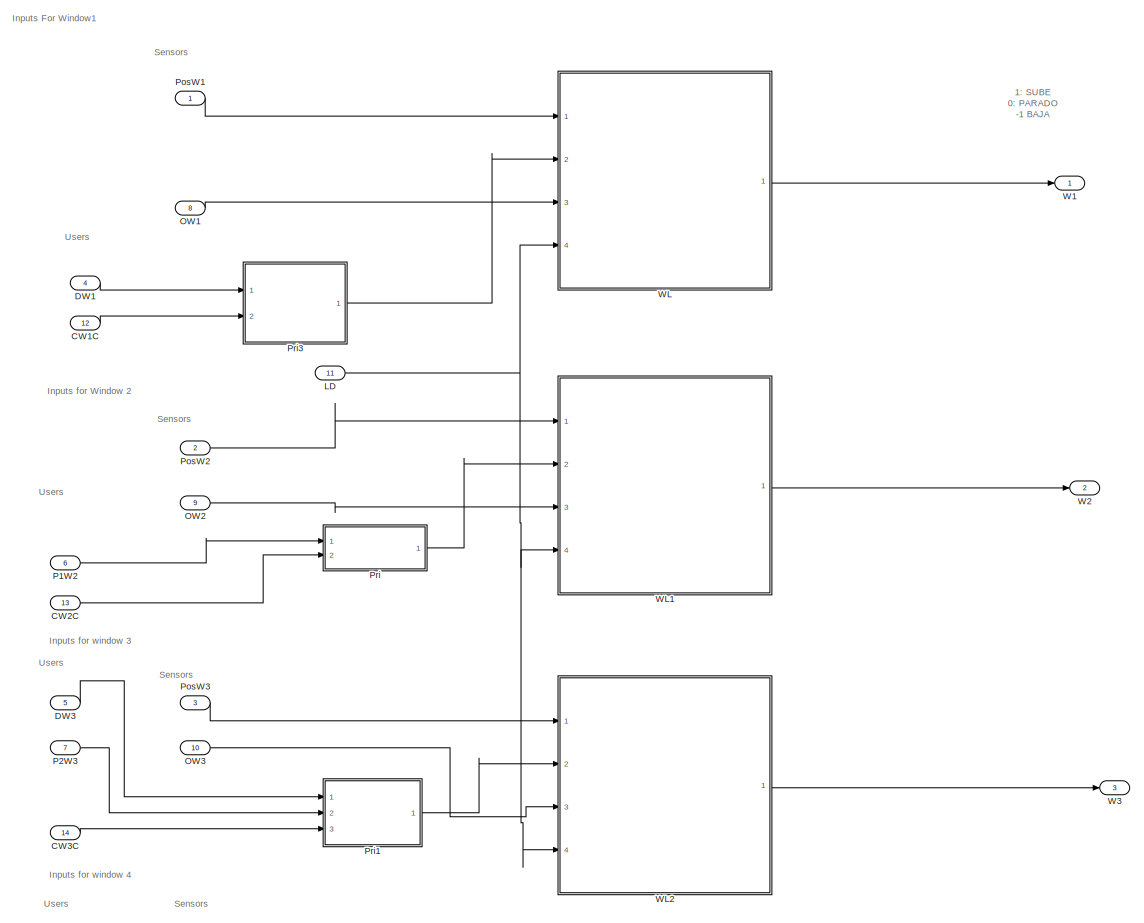
[diagram: M005/Cyber - part 1/2, most of the canvas]
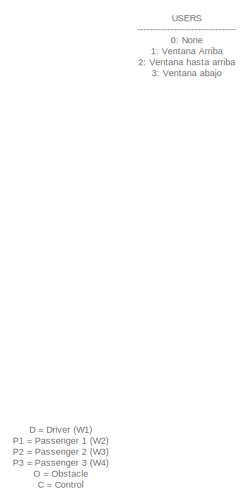
[diagram: M005/Cyber - part 2/2, middle left region]
BLOCK [SubSystem] M005/Cyber
  Ports = [14, 3]
  RequestExecContextInheritance = off
BLOCK [Inport] M005/Cyber/CW1C
  IconDisplay = Port number
  Port = 12
BLOCK [Inport] M005/Cyber/CW2C
  IconDisplay = Port number
  Port = 13
BLOCK [Inport] M005/Cyber/CW3C
  IconDisplay = Port number
  Port = 14
BLOCK [Inport] M005/Cyber/DW1
  IconDisplay = Port number
  Port = 4
BLOCK [Inport] M005/Cyber/DW3
  IconDisplay = Port number
  Port = 5
BLOCK [Inport] M005/Cyber/LD
  IconDisplay = Port number
  Port = 11
BLOCK [Inport] M005/Cyber/OW1
  IconDisplay = Port number
  Port = 8
BLOCK [Inport] M005/Cyber/OW2
  IconDisplay = Port number
  Port = 9
BLOCK [Inport] M005/Cyber/OW3
  IconDisplay = Port number
  Port = 10
BLOCK [Inport] M005/Cyber/P1W2
  IconDisplay = Port number
  Port = 6
BLOCK [Inport] M005/Cyber/P2W3
  IconDisplay = Port number
  Port = 7
BLOCK [Inport] M005/Cyber/PosW1
  IconDisplay = Port number
BLOCK [Inport] M005/Cyber/PosW2
  IconDisplay = Port number
  Port = 2
BLOCK [Inport] M005/Cyber/PosW3
  IconDisplay = Port number
  Port = 3
BLOCK [SubSystem] M005/Cyber/Pri
  Ports = [2, 1]
  RequestExecContextInheritance = off
BLOCK [Inport] M005/Cyber/Pri/CW2C
  IconDisplay = Port number
  Port = 2
BLOCK [Inport] M005/Cyber/Pri/P
  IconDisplay = Port number
BLOCK [Switch] M005/Cyber/Pri/Switch1
  Criteria = u2 > Threshold
  InputSameDT = off
  SaturateOnIntegerOverflow = off
  Threshold = 4
BLOCK [Outport] M005/Cyber/Pri/User
  IconDisplay = Port number
BLOCK [SubSystem] M005/Cyber/Pri1
  Ports = [3, 1]
  RequestExecContextInheritance = off
BLOCK [Inport] M005/Cyber/Pri1/CW3C
  IconDisplay = Port number
  Port = 3
BLOCK [Inport] M005/Cyber/Pri1/D
  IconDisplay = Port number
BLOCK [Inport] M005/Cyber/Pri1/P
  IconDisplay = Port number
  Port = 2
BLOCK [Switch] M005/Cyber/Pri1/Switch
  Criteria = u2 ~= 0
  InputSameDT = off
  SaturateOnIntegerOverflow = off
BLOCK [Switch] M005/Cyber/Pri1/Switch1
  Criteria = u2 ~= 0
  InputSameDT = off
  SaturateOnIntegerOverflow = off
BLOCK [Outport] M005/Cyber/Pri1/User
  IconDisplay = Port number
BLOCK [SubSystem] M005/Cyber/Pri3
  Ports = [2, 1]
  RequestExecContextInheritance = off
BLOCK [Inport] M005/Cyber/Pri3/CW1C
  IconDisplay = Port number
  Port = 2
BLOCK [Inport] M005/Cyber/Pri3/D
  IconDisplay = Port number
BLOCK [Switch] M005/Cyber/Pri3/Switch
  Criteria = u2 ~= 0
  InputSameDT = off
  SaturateOnIntegerOverflow = off
BLOCK [Outport] M005/Cyber/Pri3/User
  IconDisplay = Port number
BLOCK [Outport] M005/Cyber/W1
  IconDisplay = Port number
BLOCK [Outport] M005/Cyber/W2
  IconDisplay = Port number
  Port = 2
BLOCK [Outport] M005/Cyber/W3
  IconDisplay = Port number
  Port = 3
BLOCK [SubSystem] M005/Cyber/WL
  Ports = [4, 1]
  RequestExecContextInheritance = off
BLOCK [SubSystem] M005/Cyber/WL/Chart
  ErrorFcn = Stateflow.Translate.translate
  PermitHierarchicalResolution = ExplicitOnly
  Ports = [2, 1]
  RequestExecContextInheritance = off
  SFBlockType = Chart
  TreatAsAtomicUnit = on
BLOCK [Demux] M005/Cyber/WL/Chart/ Demux 
  Outputs = 1
  Ports = [1, 1]
BLOCK [S-Function] M005/Cyber/WL/Chart/ SFunction 
  EnableBusSupport = off
  FunctionName = sf_sfun
  PortCounts = [2 2]
  Ports = [2, 2]
  SFcnIsStateOwnerBlock = off
  SFunctionDeploymentMode = off
  Tag = Stateflow S-Function c00021M_harness 21
BLOCK [Terminator] M005/Cyber/WL/Chart/ Terminator 
BLOCK [Inport] M005/Cyber/WL/Chart/S
  IconDisplay = Port number
BLOCK [Inport] M005/Cyber/WL/Chart/UI
  IconDisplay = Port number
  Port = 2
BLOCK [Outport] M005/Cyber/WL/Chart/W
  IconDisplay = Port number
BLOCK [Constant] M005/Cyber/WL/Constant
  Value = -1
BLOCK [Constant] M005/Cyber/WL/Constant1
  Value = 0
BLOCK [DataTypeConversion] M005/Cyber/WL/Data Type Conversion
  RndMeth = Floor
  SaturateOnIntegerOverflow = off
BLOCK [Inport] M005/Cyber/WL/L
  IconDisplay = Port number
  Port = 4
BLOCK [Inport] M005/Cyber/WL/OW
  IconDisplay = Port number
  Port = 3
BLOCK [Switch] M005/Cyber/WL/Switch
  Criteria = u2 ~= 0
  InputSameDT = off
  SaturateOnIntegerOverflow = off
  Threshold = 1
  ZeroCross = off
BLOCK [Switch] M005/Cyber/WL/Switch1
  Criteria = u2 ~= 0
  InputSameDT = off
  SaturateOnIntegerOverflow = off
BLOCK [Inport] M005/Cyber/WL/User
  IconDisplay = Port number
  Port = 2
BLOCK [Inport] M005/Cyber/WL/WPos
  IconDisplay = Port number
BLOCK [Outport] M005/Cyber/WL/WindowLogicOutput
  IconDisplay = Port number
BLOCK [SubSystem] M005/Cyber/WL1
  Ports = [4, 1]
  RequestExecContextInheritance = off
BLOCK [SubSystem] M005/Cyber/WL1/Chart1
  ErrorFcn = Stateflow.Translate.translate
  PermitHierarchicalResolution = ExplicitOnly
  Ports = [2, 1]
  RequestExecContextInheritance = off
  SFBlockType = Chart
  TreatAsAtomicUnit = on
BLOCK [Demux] M005/Cyber/WL1/Chart1/ Demux 
  Outputs = 1
  Ports = [1, 1]
BLOCK [S-Function] M005/Cyber/WL1/Chart1/ SFunction 
  EnableBusSupport = off
  FunctionName = sf_sfun
  PortCounts = [2 2]
  Ports = [2, 2]
  SFcnIsStateOwnerBlock = off
  SFunctionDeploymentMode = off
  Tag = Stateflow S-Function c00021M_harness 22
BLOCK [Terminator] M005/Cyber/WL1/Chart1/ Terminator 
BLOCK [Inport] M005/Cyber/WL1/Chart1/S
  IconDisplay = Port number
BLOCK [Inport] M005/Cyber/WL1/Chart1/UI
  IconDisplay = Port number
  Port = 2
BLOCK [Outport] M005/Cyber/WL1/Chart1/W
  IconDisplay = Port number
BLOCK [Constant] M005/Cyber/WL1/Constant
  Value = -1
BLOCK [Constant] M005/Cyber/WL1/Constant1
  Value = 0
BLOCK [DataTypeConversion] M005/Cyber/WL1/Data Type Conversion
  RndMeth = Floor
  SaturateOnIntegerOverflow = off
BLOCK [Inport] M005/Cyber/WL1/L
  IconDisplay = Port number
  Port = 4
BLOCK [Inport] M005/Cyber/WL1/OW
  IconDisplay = Port number
  Port = 3
BLOCK [Switch] M005/Cyber/WL1/Switch
  Criteria = u2 ~= 0
  InputSameDT = off
  SaturateOnIntegerOverflow = off
  Threshold = 1
  ZeroCross = off
BLOCK [Switch] M005/Cyber/WL1/Switch1
  Criteria = u2 ~= 0
  InputSameDT = off
  SaturateOnIntegerOverflow = off
BLOCK [Inport] M005/Cyber/WL1/User
  IconDisplay = Port number
  Port = 2
BLOCK [Inport] M005/Cyber/WL1/WPos
  IconDisplay = Port number
BLOCK [Outport] M005/Cyber/WL1/WindowLogicOutput
  IconDisplay = Port number
BLOCK [SubSystem] M005/Cyber/WL2
  Ports = [4, 1]
  RequestExecContextInheritance = off
BLOCK [SubSystem] M005/Cyber/WL2/Chart1
  ErrorFcn = Stateflow.Translate.translate
  PermitHierarchicalResolution = ExplicitOnly
  Ports = [3, 1]
  RequestExecContextInheritance = off
  SFBlockType = Chart
  TreatAsAtomicUnit = on
BLOCK [Demux] M005/Cyber/WL2/Chart1/ Demux 
  Outputs = 1
  Ports = [1, 1]
BLOCK [S-Function] M005/Cyber/WL2/Chart1/ SFunction 
  EnableBusSupport = off
  FunctionName = sf_sfun
  PortCounts = [3 2]
  Ports = [3, 2]
  SFcnIsStateOwnerBlock = off
  SFunctionDeploymentMode = off
  Tag = Stateflow S-Function c00021M_harness 23
BLOCK [Terminator] M005/Cyber/WL2/Chart1/ Terminator 
BLOCK [Inport] M005/Cyber/WL2/Chart1/PosMinW3
  IconDisplay = Port number
  Port = 3
BLOCK [Inport] M005/Cyber/WL2/Chart1/S
  IconDisplay = Port number
BLOCK [Inport] M005/Cyber/WL2/Chart1/UI
  IconDisplay = Port number
  Port = 2
BLOCK [Outport] M005/Cyber/WL2/Chart1/W
  IconDisplay = Port number
BLOCK [Constant] M005/Cyber/WL2/Constant
  Value = -1
BLOCK [Constant] M005/Cyber/WL2/Constant1
  Value = 0
BLOCK [Constant] M005/Cyber/WL2/Constant2
  Value = PosMinimaW3
BLOCK [DataTypeConversion] M005/Cyber/WL2/Data Type Conversion
  RndMeth = Floor
  SaturateOnIntegerOverflow = off
BLOCK [Inport] M005/Cyber/WL2/L
  IconDisplay = Port number
  Port = 4
BLOCK [Inport] M005/Cyber/WL2/OW
  IconDisplay = Port number
  Port = 3
BLOCK [Switch] M005/Cyber/WL2/Switch
  Criteria = u2 ~= 0
  InputSameDT = off
  SaturateOnIntegerOverflow = off
  Threshold = 1
  ZeroCross = off
BLOCK [Switch] M005/Cyber/WL2/Switch1
  Criteria = u2 ~= 0
  InputSameDT = off
  SaturateOnIntegerOverflow = off
BLOCK [Inport] M005/Cyber/WL2/User
  IconDisplay = Port number
  Port = 2
BLOCK [Inport] M005/Cyber/WL2/WPos
  IconDisplay = Port number
BLOCK [Outport] M005/Cyber/WL2/WindowLogicOutput
  IconDisplay = Port number
BLOCK [Inport] M005/DW1
  IconDisplay = Port number
  OutDataTypeStr = int8
  OutMax = 4
  OutMin = 0
BLOCK [Inport] M005/DW3
  IconDisplay = Port number
  OutDataTypeStr = int8
  OutMax = 4
  OutMin = 0
  Port = 2
BLOCK [Inport] M005/LD
  IconDisplay = Port number
  OutDataTypeStr = boolean
  Port = 8
BLOCK [Memory] M005/M
BLOCK [Memory] M005/M1
BLOCK [Memory] M005/M2
BLOCK [Inport] M005/O1
  IconDisplay = Port number
  OutDataTypeStr = boolean
  Port = 5
BLOCK [Inport] M005/O2
  IconDisplay = Port number
  OutDataTypeStr = boolean
  Port = 6
BLOCK [Inport] M005/O3
  IconDisplay = Port number
  OutDataTypeStr = boolean
  Port = 7
BLOCK [Inport] M005/P1W2
  IconDisplay = Port number
  OutDataTypeStr = int8
  OutMax = 4
  OutMin = 0
  Port = 3
BLOCK [Inport] M005/P2W3
  IconDisplay = Port number
  OutDataTypeStr = int8
  OutMax = 4
  OutMin = 0
  Port = 4
BLOCK [SubSystem] M005/Physical
  Ports = [3, 3]
  RequestExecContextInheritance = off
BLOCK [Inport] M005/Physical/InW1
  IconDisplay = Port number
BLOCK [Inport] M005/Physical/InW2
  IconDisplay = Port number
  Port = 2
BLOCK [Inport] M005/Physical/InW3
  IconDisplay = Port number
  Port = 3
BLOCK [SubSystem] M005/Physical/W
  Ports = [1, 1]
  RequestExecContextInheritance = off
BLOCK [SubSystem] M005/Physical/W/DC_Engine
  Ports = [1, 1]
  RequestExecContextInheritance = off
BLOCK [Gain] M005/Physical/W/DC_Engine/(Inductance)
  Gain = 1/L
  OutDataTypeStr = Inherit: Inherit via internal rule
  ParamDataTypeStr = Inherit: Inherit via internal rule
  SaturateOnIntegerOverflow = off
BLOCK [Gain] M005/Physical/W/DC_Engine/(Inductance)1
  Gain = 1/J
  OutDataTypeStr = Inherit: Inherit via internal rule
  ParamDataTypeStr = Inherit: Inherit via internal rule
  SaturateOnIntegerOverflow = off
BLOCK [Sum] M005/Physical/W/DC_Engine/Add
  InputSameDT = off
  Inputs = -+-
  OutDataTypeStr = Inherit: Inherit via internal rule
  Ports = [3, 1]
  SaturateOnIntegerOverflow = off
BLOCK [Sum] M005/Physical/W/DC_Engine/Add1
  InputSameDT = off
  Inputs = +-
  OutDataTypeStr = Inherit: Inherit via internal rule
  Ports = [2, 1]
  SaturateOnIntegerOverflow = off
BLOCK [Gain] M005/Physical/W/DC_Engine/Damping
  Gain = b
  OutDataTypeStr = Inherit: Inherit via internal rule
  ParamDataTypeStr = Inherit: Inherit via internal rule
  SaturateOnIntegerOverflow = off
BLOCK [DiscreteIntegrator] M005/Physical/W/DC_Engine/Discrete-Time Integrator
  ICPrevOutput = DiscIntNeverNeededParam
  ICPrevScaledInput = DiscIntNeverNeededParam
  Ports = [1, 1]
  SampleTime = -1
BLOCK [DiscreteIntegrator] M005/Physical/W/DC_Engine/Discrete-Time Integrator1
  ICPrevOutput = DiscIntNeverNeededParam
  ICPrevScaledInput = DiscIntNeverNeededParam
  Ports = [1, 1]
  SampleTime = -1
BLOCK [Gain] M005/Physical/W/DC_Engine/Ke
  Gain = K
  OutDataTypeStr = Inherit: Inherit via internal rule
  ParamDataTypeStr = Inherit: Inherit via internal rule
  SaturateOnIntegerOverflow = off
BLOCK [Gain] M005/Physical/W/DC_Engine/Kt
  Gain = K
  OutDataTypeStr = Inherit: Inherit via internal rule
  ParamDataTypeStr = Inherit: Inherit via internal rule
  SaturateOnIntegerOverflow = off
BLOCK [Gain] M005/Physical/W/DC_Engine/Resistance
  Gain = R
  OutDataTypeStr = Inherit: Inherit via internal rule
  ParamDataTypeStr = Inherit: Inherit via internal rule
  SaturateOnIntegerOverflow = off
BLOCK [Outport] M005/Physical/W/DC_Engine/Speed
  IconDisplay = Port number
BLOCK [Gain] M005/Physical/W/DC_Engine/Voltage
  Gain = 10
  OutDataTypeStr = Inherit: Inherit via internal rule
  ParamDataTypeStr = Inherit: Inherit via internal rule
  SaturateOnIntegerOverflow = off
BLOCK [Inport] M005/Physical/W/DC_Engine/input
  IconDisplay = Port number
BLOCK [DiscreteIntegrator] M005/Physical/W/Discrete-Time Integrator
  ICPrevOutput = DiscIntNeverNeededParam
  ICPrevScaledInput = DiscIntNeverNeededParam
  InitialCondition = 5
  LimitOutput = on
  LowerSaturationLimit = 0
  Ports = [1, 1]
  SampleTime = -1
  UpperSaturationLimit = 5
BLOCK [Inport] M005/Physical/W/WIn
  IconDisplay = Port number
BLOCK [Outport] M005/Physical/W/WPos
  IconDisplay = Port number
BLOCK [Outport] M005/Physical/W1
  IconDisplay = Port number
BLOCK [Outport] M005/Physical/W2
  IconDisplay = Port number
  Port = 2
BLOCK [Outport] M005/Physical/W3
  IconDisplay = Port number
  Port = 3
BLOCK [SubSystem] M005/Physical/W5
  Ports = [1, 1]
  RequestExecContextInheritance = off
BLOCK [SubSystem] M005/Physical/W5/DC_Engine
  Ports = [1, 1]
  RequestExecContextInheritance = off
BLOCK [Gain] M005/Physical/W5/DC_Engine/(Inductance)
  Gain = 1/L
  OutDataTypeStr = Inherit: Inherit via internal rule
  ParamDataTypeStr = Inherit: Inherit via internal rule
  SaturateOnIntegerOverflow = off
BLOCK [Gain] M005/Physical/W5/DC_Engine/(Inductance)1
  Gain = 1/J
  OutDataTypeStr = Inherit: Inherit via internal rule
  ParamDataTypeStr = Inherit: Inherit via internal rule
  SaturateOnIntegerOverflow = off
BLOCK [Sum] M005/Physical/W5/DC_Engine/Add
  InputSameDT = off
  Inputs = -+-
  OutDataTypeStr = Inherit: Inherit via internal rule
  Ports = [3, 1]
  SaturateOnIntegerOverflow = off
BLOCK [Sum] M005/Physical/W5/DC_Engine/Add1
  InputSameDT = off
  Inputs = +-
  OutDataTypeStr = Inherit: Inherit via internal rule
  Ports = [2, 1]
  SaturateOnIntegerOverflow = off
BLOCK [Gain] M005/Physical/W5/DC_Engine/Damping
  Gain = b
  OutDataTypeStr = Inherit: Inherit via internal rule
  ParamDataTypeStr = Inherit: Inherit via internal rule
  SaturateOnIntegerOverflow = off
BLOCK [DiscreteIntegrator] M005/Physical/W5/DC_Engine/Discrete-Time Integrator
  ICPrevOutput = DiscIntNeverNeededParam
  ICPrevScaledInput = DiscIntNeverNeededParam
  Ports = [1, 1]
  SampleTime = -1
BLOCK [DiscreteIntegrator] M005/Physical/W5/DC_Engine/Discrete-Time Integrator1
  ICPrevOutput = DiscIntNeverNeededParam
  ICPrevScaledInput = DiscIntNeverNeededParam
  Ports = [1, 1]
  SampleTime = -1
BLOCK [Gain] M005/Physical/W5/DC_Engine/Ke
  Gain = K
  OutDataTypeStr = Inherit: Inherit via internal rule
  ParamDataTypeStr = Inherit: Inherit via internal rule
  SaturateOnIntegerOverflow = off
BLOCK [Gain] M005/Physical/W5/DC_Engine/Kt
  Gain = K
  OutDataTypeStr = Inherit: Inherit via internal rule
  ParamDataTypeStr = Inherit: Inherit via internal rule
  SaturateOnIntegerOverflow = off
BLOCK [Gain] M005/Physical/W5/DC_Engine/Resistance
  Gain = R
  OutDataTypeStr = Inherit: Inherit via internal rule
  ParamDataTypeStr = Inherit: Inherit via internal rule
  SaturateOnIntegerOverflow = off
BLOCK [Outport] M005/Physical/W5/DC_Engine/Speed
  IconDisplay = Port number
BLOCK [Gain] M005/Physical/W5/DC_Engine/Voltage
  Gain = 10
  OutDataTypeStr = Inherit: Inherit via internal rule
  ParamDataTypeStr = Inherit: Inherit via internal rule
  SaturateOnIntegerOverflow = off
BLOCK [Inport] M005/Physical/W5/DC_Engine/input
  IconDisplay = Port number
BLOCK [DiscreteIntegrator] M005/Physical/W5/Discrete-Time Integrator
  ICPrevOutput = DiscIntNeverNeededParam
  ICPrevScaledInput = DiscIntNeverNeededParam
  InitialCondition = 5
  LimitOutput = on
  LowerSaturationLimit = 0
  Ports = [1, 1]
  SampleTime = -1
  UpperSaturationLimit = 5
BLOCK [Inport] M005/Physical/W5/WIn
  IconDisplay = Port number
BLOCK [Outport] M005/Physical/W5/WPos
  IconDisplay = Port number
BLOCK [SubSystem] M005/Physical/W6
  Ports = [1, 1]
  RequestExecContextInheritance = off
BLOCK [SubSystem] M005/Physical/W6/DC_Engine
  Ports = [1, 1]
  RequestExecContextInheritance = off
BLOCK [Gain] M005/Physical/W6/DC_Engine/(Inductance)
  Gain = 1/L
  OutDataTypeStr = Inherit: Inherit via internal rule
  ParamDataTypeStr = Inherit: Inherit via internal rule
  SaturateOnIntegerOverflow = off
BLOCK [Gain] M005/Physical/W6/DC_Engine/(Inductance)1
  Gain = 1/J
  OutDataTypeStr = Inherit: Inherit via internal rule
  ParamDataTypeStr = Inherit: Inherit via internal rule
  SaturateOnIntegerOverflow = off
BLOCK [Sum] M005/Physical/W6/DC_Engine/Add
  InputSameDT = off
  Inputs = -+-
  OutDataTypeStr = Inherit: Inherit via internal rule
  Ports = [3, 1]
  SaturateOnIntegerOverflow = off
BLOCK [Sum] M005/Physical/W6/DC_Engine/Add1
  InputSameDT = off
  Inputs = +-
  OutDataTypeStr = Inherit: Inherit via internal rule
  Ports = [2, 1]
  SaturateOnIntegerOverflow = off
BLOCK [Gain] M005/Physical/W6/DC_Engine/Damping
  Gain = b
  OutDataTypeStr = Inherit: Inherit via internal rule
  ParamDataTypeStr = Inherit: Inherit via internal rule
  SaturateOnIntegerOverflow = off
BLOCK [DiscreteIntegrator] M005/Physical/W6/DC_Engine/Discrete-Time Integrator
  ICPrevOutput = DiscIntNeverNeededParam
  ICPrevScaledInput = DiscIntNeverNeededParam
  Ports = [1, 1]
  SampleTime = -1
BLOCK [DiscreteIntegrator] M005/Physical/W6/DC_Engine/Discrete-Time Integrator1
  ICPrevOutput = DiscIntNeverNeededParam
  ICPrevScaledInput = DiscIntNeverNeededParam
  Ports = [1, 1]
  SampleTime = -1
BLOCK [Gain] M005/Physical/W6/DC_Engine/Ke
  Gain = K
  OutDataTypeStr = Inherit: Inherit via internal rule
  ParamDataTypeStr = Inherit: Inherit via internal rule
  SaturateOnIntegerOverflow = off
BLOCK [Gain] M005/Physical/W6/DC_Engine/Kt
  Gain = K
  OutDataTypeStr = Inherit: Inherit via internal rule
  ParamDataTypeStr = Inherit: Inherit via internal rule
  SaturateOnIntegerOverflow = off
BLOCK [Gain] M005/Physical/W6/DC_Engine/Resistance
  Gain = R
  OutDataTypeStr = Inherit: Inherit via internal rule
  ParamDataTypeStr = Inherit: Inherit via internal rule
  SaturateOnIntegerOverflow = off
BLOCK [Outport] M005/Physical/W6/DC_Engine/Speed
  IconDisplay = Port number
BLOCK [Gain] M005/Physical/W6/DC_Engine/Voltage
  Gain = 10
  OutDataTypeStr = Inherit: Inherit via internal rule
  ParamDataTypeStr = Inherit: Inherit via internal rule
  SaturateOnIntegerOverflow = off
BLOCK [Inport] M005/Physical/W6/DC_Engine/input
  IconDisplay = Port number
BLOCK [DiscreteIntegrator] M005/Physical/W6/Discrete-Time Integrator
  ICPrevOutput = DiscIntNeverNeededParam
  ICPrevScaledInput = DiscIntNeverNeededParam
  InitialCondition = 5
  LimitOutput = on
  LowerSaturationLimit = PosMinimaW3
  Ports = [1, 1]
  SampleTime = -1
  UpperSaturationLimit = 5
BLOCK [Inport] M005/Physical/W6/WIn
  IconDisplay = Port number
BLOCK [Outport] M005/Physical/W6/WPos
  IconDisplay = Port number
BLOCK [SubSystem] M005/S1
  Ports = [1, 1]
  RequestExecContextInheritance = off
BLOCK [Inport] M005/S1/PhyMeasure
  IconDisplay = Port number
BLOCK [Outport] M005/S1/SensorOut
  IconDisplay = Port number
BLOCK [SubSystem] M005/S2
  Ports = [1, 1]
  RequestExecContextInheritance = off
BLOCK [Inport] M005/S2/PhyMeasure
  IconDisplay = Port number
BLOCK [Outport] M005/S2/SensorOut
  IconDisplay = Port number
BLOCK [SubSystem] M005/S3
  Ports = [1, 1]
  RequestExecContextInheritance = off
BLOCK [Inport] M005/S3/PhyMeasure
  IconDisplay = Port number
BLOCK [Outport] M005/S3/SensorOut
  IconDisplay = Port number
BLOCK [Outport] M005/W1Pos
  IconDisplay = Port number
BLOCK [Outport] M005/W2Pos
  IconDisplay = Port number
  Port = 2
BLOCK [Outport] M005/W3Pos
  IconDisplay = Port number
  Port = 3
BLOCK [SubSystem] M008
  Ports = [11, 3]
  RequestExecContextInheritance = off
BLOCK [Inport] M008/CW1C
  IconDisplay = Port number
  OutDataTypeStr = int8
  OutMax = 4
  OutMin = 0
  Port = 9
BLOCK [Inport] M008/CW2C
  IconDisplay = Port number
  OutDataTypeStr = int8
  OutMax = 4
  OutMin = 0
  Port = 10
BLOCK [Inport] M008/CW3C
  IconDisplay = Port number
  OutDataTypeStr = int8
  OutMax = 4
  OutMin = 0
  Port = 11
BLOCK [SubSystem] M008/Cyber
  Ports = [14, 3]
  RequestExecContextInheritance = off
BLOCK [Inport] M008/Cyber/CW1C
  IconDisplay = Port number
  Port = 12
BLOCK [Inport] M008/Cyber/CW2C
  IconDisplay = Port number
  Port = 13
BLOCK [Inport] M008/Cyber/CW3C
  IconDisplay = Port number
  Port = 14
BLOCK [Inport] M008/Cyber/DW1
  IconDisplay = Port number
  Port = 4
BLOCK [Inport] M008/Cyber/DW3
  IconDisplay = Port number
  Port = 5
BLOCK [Inport] M008/Cyber/LD
  IconDisplay = Port number
  Port = 11
BLOCK [Inport] M008/Cyber/OW1
  IconDisplay = Port number
  Port = 8
BLOCK [Inport] M008/Cyber/OW2
  IconDisplay = Port number
  Port = 9
BLOCK [Inport] M008/Cyber/OW3
  IconDisplay = Port number
  Port = 10
BLOCK [Inport] M008/Cyber/P1W2
  IconDisplay = Port number
  Port = 6
BLOCK [Inport] M008/Cyber/P2W3
  IconDisplay = Port number
  Port = 7
BLOCK [Inport] M008/Cyber/PosW1
  IconDisplay = Port number
BLOCK [Inport] M008/Cyber/PosW2
  IconDisplay = Port number
  Port = 2
BLOCK [Inport] M008/Cyber/PosW3
  IconDisplay = Port number
  Port = 3
BLOCK [SubSystem] M008/Cyber/Pri
  Ports = [2, 1]
  RequestExecContextInheritance = off
BLOCK [Inport] M008/Cyber/Pri/CW2C
  IconDisplay = Port number
  Port = 2
BLOCK [Inport] M008/Cyber/Pri/P
  IconDisplay = Port number
BLOCK [Switch] M008/Cyber/Pri/Switch1
  Criteria = u2 ~= 0
  InputSameDT = off
  SaturateOnIntegerOverflow = off
BLOCK [Outport] M008/Cyber/Pri/User
  IconDisplay = Port number
BLOCK [SubSystem] M008/Cyber/Pri1
  Ports = [3, 1]
  RequestExecContextInheritance = off
BLOCK [Inport] M008/Cyber/Pri1/CW3C
  IconDisplay = Port number
  Port = 3
BLOCK [Inport] M008/Cyber/Pri1/D
  IconDisplay = Port number
BLOCK [Inport] M008/Cyber/Pri1/P
  IconDisplay = Port number
  Port = 2
BLOCK [Switch] M008/Cyber/Pri1/Switch
  Criteria = u2 > Threshold
  InputSameDT = off
  SaturateOnIntegerOverflow = off
  Threshold = 4
BLOCK [Switch] M008/Cyber/Pri1/Switch1
  Criteria = u2 ~= 0
  InputSameDT = off
  SaturateOnIntegerOverflow = off
BLOCK [Outport] M008/Cyber/Pri1/User
  IconDisplay = Port number
BLOCK [SubSystem] M008/Cyber/Pri3
  Ports = [2, 1]
  RequestExecContextInheritance = off
BLOCK [Inport] M008/Cyber/Pri3/CW1C
  IconDisplay = Port number
  Port = 2
BLOCK [Inport] M008/Cyber/Pri3/D
  IconDisplay = Port number
BLOCK [Switch] M008/Cyber/Pri3/Switch
  Criteria = u2 ~= 0
  InputSameDT = off
  SaturateOnIntegerOverflow = off
BLOCK [Outport] M008/Cyber/Pri3/User
  IconDisplay = Port number
BLOCK [Outport] M008/Cyber/W1
  IconDisplay = Port number
BLOCK [Outport] M008/Cyber/W2
  IconDisplay = Port number
  Port = 2
BLOCK [Outport] M008/Cyber/W3
  IconDisplay = Port number
  Port = 3
BLOCK [SubSystem] M008/Cyber/WL
  Ports = [4, 1]
  RequestExecContextInheritance = off
BLOCK [SubSystem] M008/Cyber/WL/Chart
  ErrorFcn = Stateflow.Translate.translate
  PermitHierarchicalResolution = ExplicitOnly
  Ports = [2, 1]
  RequestExecContextInheritance = off
  SFBlockType = Chart
  TreatAsAtomicUnit = on
BLOCK [Demux] M008/Cyber/WL/Chart/ Demux 
  Outputs = 1
  Ports = [1, 1]
BLOCK [S-Function] M008/Cyber/WL/Chart/ SFunction 
  EnableBusSupport = off
  FunctionName = sf_sfun
  PortCounts = [2 2]
  Ports = [2, 2]
  SFcnIsStateOwnerBlock = off
  SFunctionDeploymentMode = off
  Tag = Stateflow S-Function c00021M_harness 33
BLOCK [Terminator] M008/Cyber/WL/Chart/ Terminator 
BLOCK [Inport] M008/Cyber/WL/Chart/S
  IconDisplay = Port number
BLOCK [Inport] M008/Cyber/WL/Chart/UI
  IconDisplay = Port number
  Port = 2
BLOCK [Outport] M008/Cyber/WL/Chart/W
  IconDisplay = Port number
BLOCK [Constant] M008/Cyber/WL/Constant
  Value = -1
BLOCK [Constant] M008/Cyber/WL/Constant1
  Value = 0
BLOCK [DataTypeConversion] M008/Cyber/WL/Data Type Conversion
  RndMeth = Floor
  SaturateOnIntegerOverflow = off
BLOCK [Inport] M008/Cyber/WL/L
  IconDisplay = Port number
  Port = 4
BLOCK [Inport] M008/Cyber/WL/OW
  IconDisplay = Port number
  Port = 3
BLOCK [Switch] M008/Cyber/WL/Switch
  Criteria = u2 ~= 0
  InputSameDT = off
  SaturateOnIntegerOverflow = off
  Threshold = 1
  ZeroCross = off
BLOCK [Switch] M008/Cyber/WL/Switch1
  Criteria = u2 ~= 0
  InputSameDT = off
  SaturateOnIntegerOverflow = off
BLOCK [Inport] M008/Cyber/WL/User
  IconDisplay = Port number
  Port = 2
BLOCK [Inport] M008/Cyber/WL/WPos
  IconDisplay = Port number
BLOCK [Outport] M008/Cyber/WL/WindowLogicOutput
  IconDisplay = Port number
BLOCK [SubSystem] M008/Cyber/WL1
  Ports = [4, 1]
  RequestExecContextInheritance = off
BLOCK [SubSystem] M008/Cyber/WL1/Chart1
  ErrorFcn = Stateflow.Translate.translate
  PermitHierarchicalResolution = ExplicitOnly
  Ports = [2, 1]
  RequestExecContextInheritance = off
  SFBlockType = Chart
  TreatAsAtomicUnit = on
BLOCK [Demux] M008/Cyber/WL1/Chart1/ Demux 
  Outputs = 1
  Ports = [1, 1]
BLOCK [S-Function] M008/Cyber/WL1/Chart1/ SFunction 
  EnableBusSupport = off
  FunctionName = sf_sfun
  PortCounts = [2 2]
  Ports = [2, 2]
  SFcnIsStateOwnerBlock = off
  SFunctionDeploymentMode = off
  Tag = Stateflow S-Function c00021M_harness 34
BLOCK [Terminator] M008/Cyber/WL1/Chart1/ Terminator 
BLOCK [Inport] M008/Cyber/WL1/Chart1/S
  IconDisplay = Port number
BLOCK [Inport] M008/Cyber/WL1/Chart1/UI
  IconDisplay = Port number
  Port = 2
BLOCK [Outport] M008/Cyber/WL1/Chart1/W
  IconDisplay = Port number
BLOCK [Constant] M008/Cyber/WL1/Constant
  Value = -1
BLOCK [Constant] M008/Cyber/WL1/Constant1
  Value = 0
BLOCK [DataTypeConversion] M008/Cyber/WL1/Data Type Conversion
  RndMeth = Floor
  SaturateOnIntegerOverflow = off
BLOCK [Inport] M008/Cyber/WL1/L
  IconDisplay = Port number
  Port = 4
BLOCK [Inport] M008/Cyber/WL1/OW
  IconDisplay = Port number
  Port = 3
BLOCK [Switch] M008/Cyber/WL1/Switch
  Criteria = u2 ~= 0
  InputSameDT = off
  SaturateOnIntegerOverflow = off
  Threshold = 1
  ZeroCross = off
BLOCK [Switch] M008/Cyber/WL1/Switch1
  Criteria = u2 ~= 0
  InputSameDT = off
  SaturateOnIntegerOverflow = off
BLOCK [Inport] M008/Cyber/WL1/User
  IconDisplay = Port number
  Port = 2
BLOCK [Inport] M008/Cyber/WL1/WPos
  IconDisplay = Port number
BLOCK [Outport] M008/Cyber/WL1/WindowLogicOutput
  IconDisplay = Port number
BLOCK [SubSystem] M008/Cyber/WL2
  Ports = [4, 1]
  RequestExecContextInheritance = off
BLOCK [SubSystem] M008/Cyber/WL2/Chart1
  ErrorFcn = Stateflow.Translate.translate
  PermitHierarchicalResolution = ExplicitOnly
  Ports = [3, 1]
  RequestExecContextInheritance = off
  SFBlockType = Chart
  TreatAsAtomicUnit = on
BLOCK [Demux] M008/Cyber/WL2/Chart1/ Demux 
  Outputs = 1
  Ports = [1, 1]
BLOCK [S-Function] M008/Cyber/WL2/Chart1/ SFunction 
  EnableBusSupport = off
  FunctionName = sf_sfun
  PortCounts = [3 2]
  Ports = [3, 2]
  SFcnIsStateOwnerBlock = off
  SFunctionDeploymentMode = off
  Tag = Stateflow S-Function c00021M_harness 35
BLOCK [Terminator] M008/Cyber/WL2/Chart1/ Terminator 
BLOCK [Inport] M008/Cyber/WL2/Chart1/PosMinW3
  IconDisplay = Port number
  Port = 3
BLOCK [Inport] M008/Cyber/WL2/Chart1/S
  IconDisplay = Port number
BLOCK [Inport] M008/Cyber/WL2/Chart1/UI
  IconDisplay = Port number
  Port = 2
BLOCK [Outport] M008/Cyber/WL2/Chart1/W
  IconDisplay = Port number
BLOCK [Constant] M008/Cyber/WL2/Constant
  Value = -1
BLOCK [Constant] M008/Cyber/WL2/Constant1
  Value = 0
BLOCK [Constant] M008/Cyber/WL2/Constant2
  Value = PosMinimaW3
BLOCK [DataTypeConversion] M008/Cyber/WL2/Data Type Conversion
  RndMeth = Floor
  SaturateOnIntegerOverflow = off
BLOCK [Inport] M008/Cyber/WL2/L
  IconDisplay = Port number
  Port = 4
BLOCK [Inport] M008/Cyber/WL2/OW
  IconDisplay = Port number
  Port = 3
BLOCK [Switch] M008/Cyber/WL2/Switch
  Criteria = u2 ~= 0
  InputSameDT = off
  SaturateOnIntegerOverflow = off
  Threshold = 1
  ZeroCross = off
BLOCK [Switch] M008/Cyber/WL2/Switch1
  Criteria = u2 ~= 0
  InputSameDT = off
  SaturateOnIntegerOverflow = off
BLOCK [Inport] M008/Cyber/WL2/User
  IconDisplay = Port number
  Port = 2
BLOCK [Inport] M008/Cyber/WL2/WPos
  IconDisplay = Port number
BLOCK [Outport] M008/Cyber/WL2/WindowLogicOutput
  IconDisplay = Port number
BLOCK [Inport] M008/DW1
  IconDisplay = Port number
  OutDataTypeStr = int8
  OutMax = 4
  OutMin = 0
BLOCK [Inport] M008/DW3
  IconDisplay = Port number
  OutDataTypeStr = int8
  OutMax = 4
  OutMin = 0
  Port = 2
BLOCK [Inport] M008/LD
  IconDisplay = Port number
  OutDataTypeStr = boolean
  Port = 8
BLOCK [Memory] M008/M
BLOCK [Memory] M008/M1
BLOCK [Memory] M008/M2
BLOCK [Inport] M008/O1
  IconDisplay = Port number
  OutDataTypeStr = boolean
  Port = 5
BLOCK [Inport] M008/O2
  IconDisplay = Port number
  OutDataTypeStr = boolean
  Port = 6
BLOCK [Inport] M008/O3
  IconDisplay = Port number
  OutDataTypeStr = boolean
  Port = 7
BLOCK [Inport] M008/P1W2
  IconDisplay = Port number
  OutDataTypeStr = int8
  OutMax = 4
  OutMin = 0
  Port = 3
BLOCK [Inport] M008/P2W3
  IconDisplay = Port number
  OutDataTypeStr = int8
  OutMax = 4
  OutMin = 0
  Port = 4
BLOCK [SubSystem] M008/Physical
  Ports = [3, 3]
  RequestExecContextInheritance = off
BLOCK [Inport] M008/Physical/InW1
  IconDisplay = Port number
BLOCK [Inport] M008/Physical/InW2
  IconDisplay = Port number
  Port = 2
BLOCK [Inport] M008/Physical/InW3
  IconDisplay = Port number
  Port = 3
BLOCK [SubSystem] M008/Physical/W
  Ports = [1, 1]
  RequestExecContextInheritance = off
BLOCK [SubSystem] M008/Physical/W/DC_Engine
  Ports = [1, 1]
  RequestExecContextInheritance = off
BLOCK [Gain] M008/Physical/W/DC_Engine/(Inductance)
  Gain = 1/L
  OutDataTypeStr = Inherit: Inherit via internal rule
  ParamDataTypeStr = Inherit: Inherit via internal rule
  SaturateOnIntegerOverflow = off
BLOCK [Gain] M008/Physical/W/DC_Engine/(Inductance)1
  Gain = 1/J
  OutDataTypeStr = Inherit: Inherit via internal rule
  ParamDataTypeStr = Inherit: Inherit via internal rule
  SaturateOnIntegerOverflow = off
BLOCK [Sum] M008/Physical/W/DC_Engine/Add
  InputSameDT = off
  Inputs = -+-
  OutDataTypeStr = Inherit: Inherit via internal rule
  Ports = [3, 1]
  SaturateOnIntegerOverflow = off
BLOCK [Sum] M008/Physical/W/DC_Engine/Add1
  InputSameDT = off
  Inputs = +-
  OutDataTypeStr = Inherit: Inherit via internal rule
  Ports = [2, 1]
  SaturateOnIntegerOverflow = off
BLOCK [Gain] M008/Physical/W/DC_Engine/Damping
  Gain = b
  OutDataTypeStr = Inherit: Inherit via internal rule
  ParamDataTypeStr = Inherit: Inherit via internal rule
  SaturateOnIntegerOverflow = off
BLOCK [DiscreteIntegrator] M008/Physical/W/DC_Engine/Discrete-Time Integrator
  ICPrevOutput = DiscIntNeverNeededParam
  ICPrevScaledInput = DiscIntNeverNeededParam
  Ports = [1, 1]
  SampleTime = -1
BLOCK [DiscreteIntegrator] M008/Physical/W/DC_Engine/Discrete-Time Integrator1
  ICPrevOutput = DiscIntNeverNeededParam
  ICPrevScaledInput = DiscIntNeverNeededParam
  Ports = [1, 1]
  SampleTime = -1
BLOCK [Gain] M008/Physical/W/DC_Engine/Ke
  Gain = K
  OutDataTypeStr = Inherit: Inherit via internal rule
  ParamDataTypeStr = Inherit: Inherit via internal rule
  SaturateOnIntegerOverflow = off
BLOCK [Gain] M008/Physical/W/DC_Engine/Kt
  Gain = K
  OutDataTypeStr = Inherit: Inherit via internal rule
  ParamDataTypeStr = Inherit: Inherit via internal rule
  SaturateOnIntegerOverflow = off
BLOCK [Gain] M008/Physical/W/DC_Engine/Resistance
  Gain = R
  OutDataTypeStr = Inherit: Inherit via internal rule
  ParamDataTypeStr = Inherit: Inherit via internal rule
  SaturateOnIntegerOverflow = off
BLOCK [Outport] M008/Physical/W/DC_Engine/Speed
  IconDisplay = Port number
BLOCK [Gain] M008/Physical/W/DC_Engine/Voltage
  Gain = 10
  OutDataTypeStr = Inherit: Inherit via internal rule
  ParamDataTypeStr = Inherit: Inherit via internal rule
  SaturateOnIntegerOverflow = off
BLOCK [Inport] M008/Physical/W/DC_Engine/input
  IconDisplay = Port number
BLOCK [DiscreteIntegrator] M008/Physical/W/Discrete-Time Integrator
  ICPrevOutput = DiscIntNeverNeededParam
  ICPrevScaledInput = DiscIntNeverNeededParam
  InitialCondition = 5
  LimitOutput = on
  LowerSaturationLimit = 0
  Ports = [1, 1]
  SampleTime = -1
  UpperSaturationLimit = 5
BLOCK [Inport] M008/Physical/W/WIn
  IconDisplay = Port number
BLOCK [Outport] M008/Physical/W/WPos
  IconDisplay = Port number
BLOCK [Outport] M008/Physical/W1
  IconDisplay = Port number
BLOCK [Outport] M008/Physical/W2
  IconDisplay = Port number
  Port = 2
BLOCK [Outport] M008/Physical/W3
  IconDisplay = Port number
  Port = 3
BLOCK [SubSystem] M008/Physical/W5
  Ports = [1, 1]
  RequestExecContextInheritance = off
BLOCK [SubSystem] M008/Physical/W5/DC_Engine
  Ports = [1, 1]
  RequestExecContextInheritance = off
BLOCK [Gain] M008/Physical/W5/DC_Engine/(Inductance)
  Gain = 1/L
  OutDataTypeStr = Inherit: Inherit via internal rule
  ParamDataTypeStr = Inherit: Inherit via internal rule
  SaturateOnIntegerOverflow = off
BLOCK [Gain] M008/Physical/W5/DC_Engine/(Inductance)1
  Gain = 1/J
  OutDataTypeStr = Inherit: Inherit via internal rule
  ParamDataTypeStr = Inherit: Inherit via internal rule
  SaturateOnIntegerOverflow = off
BLOCK [Sum] M008/Physical/W5/DC_Engine/Add
  InputSameDT = off
  Inputs = -+-
  OutDataTypeStr = Inherit: Inherit via internal rule
  Ports = [3, 1]
  SaturateOnIntegerOverflow = off
BLOCK [Sum] M008/Physical/W5/DC_Engine/Add1
  InputSameDT = off
  Inputs = +-
  OutDataTypeStr = Inherit: Inherit via internal rule
  Ports = [2, 1]
  SaturateOnIntegerOverflow = off
BLOCK [Gain] M008/Physical/W5/DC_Engine/Damping
  Gain = b
  OutDataTypeStr = Inherit: Inherit via internal rule
  ParamDataTypeStr = Inherit: Inherit via internal rule
  SaturateOnIntegerOverflow = off
BLOCK [DiscreteIntegrator] M008/Physical/W5/DC_Engine/Discrete-Time Integrator
  ICPrevOutput = DiscIntNeverNeededParam
  ICPrevScaledInput = DiscIntNeverNeededParam
  Ports = [1, 1]
  SampleTime = -1
BLOCK [DiscreteIntegrator] M008/Physical/W5/DC_Engine/Discrete-Time Integrator1
  ICPrevOutput = DiscIntNeverNeededParam
  ICPrevScaledInput = DiscIntNeverNeededParam
  Ports = [1, 1]
  SampleTime = -1
BLOCK [Gain] M008/Physical/W5/DC_Engine/Ke
  Gain = K
  OutDataTypeStr = Inherit: Inherit via internal rule
  ParamDataTypeStr = Inherit: Inherit via internal rule
  SaturateOnIntegerOverflow = off
BLOCK [Gain] M008/Physical/W5/DC_Engine/Kt
  Gain = K
  OutDataTypeStr = Inherit: Inherit via internal rule
  ParamDataTypeStr = Inherit: Inherit via internal rule
  SaturateOnIntegerOverflow = off
BLOCK [Gain] M008/Physical/W5/DC_Engine/Resistance
  Gain = R
  OutDataTypeStr = Inherit: Inherit via internal rule
  ParamDataTypeStr = Inherit: Inherit via internal rule
  SaturateOnIntegerOverflow = off
BLOCK [Outport] M008/Physical/W5/DC_Engine/Speed
  IconDisplay = Port number
BLOCK [Gain] M008/Physical/W5/DC_Engine/Voltage
  Gain = 10
  OutDataTypeStr = Inherit: Inherit via internal rule
  ParamDataTypeStr = Inherit: Inherit via internal rule
  SaturateOnIntegerOverflow = off
BLOCK [Inport] M008/Physical/W5/DC_Engine/input
  IconDisplay = Port number
BLOCK [DiscreteIntegrator] M008/Physical/W5/Discrete-Time Integrator
  ICPrevOutput = DiscIntNeverNeededParam
  ICPrevScaledInput = DiscIntNeverNeededParam
  InitialCondition = 5
  LimitOutput = on
  LowerSaturationLimit = 0
  Ports = [1, 1]
  SampleTime = -1
  UpperSaturationLimit = 5
BLOCK [Inport] M008/Physical/W5/WIn
  IconDisplay = Port number
BLOCK [Outport] M008/Physical/W5/WPos
  IconDisplay = Port number
BLOCK [SubSystem] M008/Physical/W6
  Ports = [1, 1]
  RequestExecContextInheritance = off
BLOCK [SubSystem] M008/Physical/W6/DC_Engine
  Ports = [1, 1]
  RequestExecContextInheritance = off
BLOCK [Gain] M008/Physical/W6/DC_Engine/(Inductance)
  Gain = 1/L
  OutDataTypeStr = Inherit: Inherit via internal rule
  ParamDataTypeStr = Inherit: Inherit via internal rule
  SaturateOnIntegerOverflow = off
BLOCK [Gain] M008/Physical/W6/DC_Engine/(Inductance)1
  Gain = 1/J
  OutDataTypeStr = Inherit: Inherit via internal rule
  ParamDataTypeStr = Inherit: Inherit via internal rule
  SaturateOnIntegerOverflow = off
BLOCK [Sum] M008/Physical/W6/DC_Engine/Add
  InputSameDT = off
  Inputs = -+-
  OutDataTypeStr = Inherit: Inherit via internal rule
  Ports = [3, 1]
  SaturateOnIntegerOverflow = off
BLOCK [Sum] M008/Physical/W6/DC_Engine/Add1
  InputSameDT = off
  Inputs = +-
  OutDataTypeStr = Inherit: Inherit via internal rule
  Ports = [2, 1]
  SaturateOnIntegerOverflow = off
BLOCK [Gain] M008/Physical/W6/DC_Engine/Damping
  Gain = b
  OutDataTypeStr = Inherit: Inherit via internal rule
  ParamDataTypeStr = Inherit: Inherit via internal rule
  SaturateOnIntegerOverflow = off
BLOCK [DiscreteIntegrator] M008/Physical/W6/DC_Engine/Discrete-Time Integrator
  ICPrevOutput = DiscIntNeverNeededParam
  ICPrevScaledInput = DiscIntNeverNeededParam
  Ports = [1, 1]
  SampleTime = -1
BLOCK [DiscreteIntegrator] M008/Physical/W6/DC_Engine/Discrete-Time Integrator1
  ICPrevOutput = DiscIntNeverNeededParam
  ICPrevScaledInput = DiscIntNeverNeededParam
  Ports = [1, 1]
  SampleTime = -1
BLOCK [Gain] M008/Physical/W6/DC_Engine/Ke
  Gain = K
  OutDataTypeStr = Inherit: Inherit via internal rule
  ParamDataTypeStr = Inherit: Inherit via internal rule
  SaturateOnIntegerOverflow = off
BLOCK [Gain] M008/Physical/W6/DC_Engine/Kt
  Gain = K
  OutDataTypeStr = Inherit: Inherit via internal rule
  ParamDataTypeStr = Inherit: Inherit via internal rule
  SaturateOnIntegerOverflow = off
BLOCK [Gain] M008/Physical/W6/DC_Engine/Resistance
  Gain = R
  OutDataTypeStr = Inherit: Inherit via internal rule
  ParamDataTypeStr = Inherit: Inherit via internal rule
  SaturateOnIntegerOverflow = off
BLOCK [Outport] M008/Physical/W6/DC_Engine/Speed
  IconDisplay = Port number
BLOCK [Gain] M008/Physical/W6/DC_Engine/Voltage
  Gain = 10
  OutDataTypeStr = Inherit: Inherit via internal rule
  ParamDataTypeStr = Inherit: Inherit via internal rule
  SaturateOnIntegerOverflow = off
BLOCK [Inport] M008/Physical/W6/DC_Engine/input
  IconDisplay = Port number
BLOCK [DiscreteIntegrator] M008/Physical/W6/Discrete-Time Integrator
  ICPrevOutput = DiscIntNeverNeededParam
  ICPrevScaledInput = DiscIntNeverNeededParam
  InitialCondition = 5
  LimitOutput = on
  LowerSaturationLimit = PosMinimaW3
  Ports = [1, 1]
  SampleTime = -1
  UpperSaturationLimit = 5
BLOCK [Inport] M008/Physical/W6/WIn
  IconDisplay = Port number
BLOCK [Outport] M008/Physical/W6/WPos
  IconDisplay = Port number
BLOCK [SubSystem] M008/S1
  Ports = [1, 1]
  RequestExecContextInheritance = off
BLOCK [Inport] M008/S1/PhyMeasure
  IconDisplay = Port number
BLOCK [Outport] M008/S1/SensorOut
  IconDisplay = Port number
BLOCK [SubSystem] M008/S2
  Ports = [1, 1]
  RequestExecContextInheritance = off
BLOCK [Inport] M008/S2/PhyMeasure
  IconDisplay = Port number
BLOCK [Outport] M008/S2/SensorOut
  IconDisplay = Port number
BLOCK [SubSystem] M008/S3
  Ports = [1, 1]
  RequestExecContextInheritance = off
BLOCK [Inport] M008/S3/PhyMeasure
  IconDisplay = Port number
BLOCK [Outport] M008/S3/SensorOut
  IconDisplay = Port number
BLOCK [Outport] M008/W1Pos
  IconDisplay = Port number
BLOCK [Outport] M008/W2Pos
  IconDisplay = Port number
  Port = 2
BLOCK [Outport] M008/W3Pos
  IconDisplay = Port number
  Port = 3
BLOCK [SubSystem] M011
  Ports = [11, 3]
  RequestExecContextInheritance = off
BLOCK [Inport] M011/CW1C
  IconDisplay = Port number
  OutDataTypeStr = int8
  OutMax = 4
  OutMin = 0
  Port = 9
BLOCK [Inport] M011/CW2C
  IconDisplay = Port number
  OutDataTypeStr = int8
  OutMax = 4
  OutMin = 0
  Port = 10
BLOCK [Inport] M011/CW3C
  IconDisplay = Port number
  OutDataTypeStr = int8
  OutMax = 4
  OutMin = 0
  Port = 11
BLOCK [SubSystem] M011/Cyber
  Ports = [14, 3]
  RequestExecContextInheritance = off
BLOCK [Inport] M011/Cyber/CW1C
  IconDisplay = Port number
  Port = 12
BLOCK [Inport] M011/Cyber/CW2C
  IconDisplay = Port number
  Port = 13
BLOCK [Inport] M011/Cyber/CW3C
  IconDisplay = Port number
  Port = 14
BLOCK [Inport] M011/Cyber/DW1
  IconDisplay = Port number
  Port = 4
BLOCK [Inport] M011/Cyber/DW3
  IconDisplay = Port number
  Port = 5
BLOCK [Inport] M011/Cyber/LD
  IconDisplay = Port number
  Port = 11
BLOCK [Inport] M011/Cyber/OW1
  IconDisplay = Port number
  Port = 8
BLOCK [Inport] M011/Cyber/OW2
  IconDisplay = Port number
  Port = 9
BLOCK [Inport] M011/Cyber/OW3
  IconDisplay = Port number
  Port = 10
BLOCK [Inport] M011/Cyber/P1W2
  IconDisplay = Port number
  Port = 6
BLOCK [Inport] M011/Cyber/P2W3
  IconDisplay = Port number
  Port = 7
BLOCK [Inport] M011/Cyber/PosW1
  IconDisplay = Port number
BLOCK [Inport] M011/Cyber/PosW2
  IconDisplay = Port number
  Port = 2
BLOCK [Inport] M011/Cyber/PosW3
  IconDisplay = Port number
  Port = 3
BLOCK [SubSystem] M011/Cyber/Pri
  Ports = [2, 1]
  RequestExecContextInheritance = off
BLOCK [Inport] M011/Cyber/Pri/CW2C
  IconDisplay = Port number
  Port = 2
BLOCK [Inport] M011/Cyber/Pri/P
  IconDisplay = Port number
BLOCK [Switch] M011/Cyber/Pri/Switch1
  Criteria = u2 ~= 0
  InputSameDT = off
  SaturateOnIntegerOverflow = off
BLOCK [Outport] M011/Cyber/Pri/User
  IconDisplay = Port number
BLOCK [SubSystem] M011/Cyber/Pri1
  Ports = [3, 1]
  RequestExecContextInheritance = off
BLOCK [Inport] M011/Cyber/Pri1/CW3C
  IconDisplay = Port number
  Port = 3
BLOCK [Inport] M011/Cyber/Pri1/D
  IconDisplay = Port number
BLOCK [Inport] M011/Cyber/Pri1/P
  IconDisplay = Port number
  Port = 2
BLOCK [Switch] M011/Cyber/Pri1/Switch
  Criteria = u2 ~= 0
  InputSameDT = off
  SaturateOnIntegerOverflow = off
BLOCK [Switch] M011/Cyber/Pri1/Switch1
  Criteria = u2 > Threshold
  InputSameDT = off
  SaturateOnIntegerOverflow = off
  Threshold = 4
BLOCK [Outport] M011/Cyber/Pri1/User
  IconDisplay = Port number
BLOCK [SubSystem] M011/Cyber/Pri3
  Ports = [2, 1]
  RequestExecContextInheritance = off
BLOCK [Inport] M011/Cyber/Pri3/CW1C
  IconDisplay = Port number
  Port = 2
BLOCK [Inport] M011/Cyber/Pri3/D
  IconDisplay = Port number
BLOCK [Switch] M011/Cyber/Pri3/Switch
  Criteria = u2 ~= 0
  InputSameDT = off
  SaturateOnIntegerOverflow = off
BLOCK [Outport] M011/Cyber/Pri3/User
  IconDisplay = Port number
BLOCK [Outport] M011/Cyber/W1
  IconDisplay = Port number
BLOCK [Outport] M011/Cyber/W2
  IconDisplay = Port number
  Port = 2
BLOCK [Outport] M011/Cyber/W3
  IconDisplay = Port number
  Port = 3
BLOCK [SubSystem] M011/Cyber/WL
  Ports = [4, 1]
  RequestExecContextInheritance = off
BLOCK [SubSystem] M011/Cyber/WL/Chart
  ErrorFcn = Stateflow.Translate.translate
  PermitHierarchicalResolution = ExplicitOnly
  Ports = [2, 1]
  RequestExecContextInheritance = off
  SFBlockType = Chart
  TreatAsAtomicUnit = on
BLOCK [Demux] M011/Cyber/WL/Chart/ Demux 
  Outputs = 1
  Ports = [1, 1]
BLOCK [S-Function] M011/Cyber/WL/Chart/ SFunction 
  EnableBusSupport = off
  FunctionName = sf_sfun
  PortCounts = [2 2]
  Ports = [2, 2]
  SFcnIsStateOwnerBlock = off
  SFunctionDeploymentMode = off
  Tag = Stateflow S-Function c00021M_harness 45
BLOCK [Terminator] M011/Cyber/WL/Chart/ Terminator 
BLOCK [Inport] M011/Cyber/WL/Chart/S
  IconDisplay = Port number
BLOCK [Inport] M011/Cyber/WL/Chart/UI
  IconDisplay = Port number
  Port = 2
BLOCK [Outport] M011/Cyber/WL/Chart/W
  IconDisplay = Port number
BLOCK [Constant] M011/Cyber/WL/Constant
  Value = -1
BLOCK [Constant] M011/Cyber/WL/Constant1
  Value = 0
BLOCK [DataTypeConversion] M011/Cyber/WL/Data Type Conversion
  RndMeth = Floor
  SaturateOnIntegerOverflow = off
BLOCK [Inport] M011/Cyber/WL/L
  IconDisplay = Port number
  Port = 4
BLOCK [Inport] M011/Cyber/WL/OW
  IconDisplay = Port number
  Port = 3
BLOCK [Switch] M011/Cyber/WL/Switch
  Criteria = u2 ~= 0
  InputSameDT = off
  SaturateOnIntegerOverflow = off
  Threshold = 1
  ZeroCross = off
BLOCK [Switch] M011/Cyber/WL/Switch1
  Criteria = u2 ~= 0
  InputSameDT = off
  SaturateOnIntegerOverflow = off
BLOCK [Inport] M011/Cyber/WL/User
  IconDisplay = Port number
  Port = 2
BLOCK [Inport] M011/Cyber/WL/WPos
  IconDisplay = Port number
BLOCK [Outport] M011/Cyber/WL/WindowLogicOutput
  IconDisplay = Port number
BLOCK [SubSystem] M011/Cyber/WL1
  Ports = [4, 1]
  RequestExecContextInheritance = off
BLOCK [SubSystem] M011/Cyber/WL1/Chart1
  ErrorFcn = Stateflow.Translate.translate
  PermitHierarchicalResolution = ExplicitOnly
  Ports = [2, 1]
  RequestExecContextInheritance = off
  SFBlockType = Chart
  TreatAsAtomicUnit = on
BLOCK [Demux] M011/Cyber/WL1/Chart1/ Demux 
  Outputs = 1
  Ports = [1, 1]
BLOCK [S-Function] M011/Cyber/WL1/Chart1/ SFunction 
  EnableBusSupport = off
  FunctionName = sf_sfun
  PortCounts = [2 2]
  Ports = [2, 2]
  SFcnIsStateOwnerBlock = off
  SFunctionDeploymentMode = off
  Tag = Stateflow S-Function c00021M_harness 46
BLOCK [Terminator] M011/Cyber/WL1/Chart1/ Terminator 
BLOCK [Inport] M011/Cyber/WL1/Chart1/S
  IconDisplay = Port number
BLOCK [Inport] M011/Cyber/WL1/Chart1/UI
  IconDisplay = Port number
  Port = 2
BLOCK [Outport] M011/Cyber/WL1/Chart1/W
  IconDisplay = Port number
BLOCK [Constant] M011/Cyber/WL1/Constant
  Value = -1
BLOCK [Constant] M011/Cyber/WL1/Constant1
  Value = 0
BLOCK [DataTypeConversion] M011/Cyber/WL1/Data Type Conversion
  RndMeth = Floor
  SaturateOnIntegerOverflow = off
BLOCK [Inport] M011/Cyber/WL1/L
  IconDisplay = Port number
  Port = 4
BLOCK [Inport] M011/Cyber/WL1/OW
  IconDisplay = Port number
  Port = 3
BLOCK [Switch] M011/Cyber/WL1/Switch
  Criteria = u2 ~= 0
  InputSameDT = off
  SaturateOnIntegerOverflow = off
  Threshold = 1
  ZeroCross = off
BLOCK [Switch] M011/Cyber/WL1/Switch1
  Criteria = u2 ~= 0
  InputSameDT = off
  SaturateOnIntegerOverflow = off
BLOCK [Inport] M011/Cyber/WL1/User
  IconDisplay = Port number
  Port = 2
BLOCK [Inport] M011/Cyber/WL1/WPos
  IconDisplay = Port number
BLOCK [Outport] M011/Cyber/WL1/WindowLogicOutput
  IconDisplay = Port number
BLOCK [SubSystem] M011/Cyber/WL2
  Ports = [4, 1]
  RequestExecContextInheritance = off
BLOCK [SubSystem] M011/Cyber/WL2/Chart1
  ErrorFcn = Stateflow.Translate.translate
  PermitHierarchicalResolution = ExplicitOnly
  Ports = [3, 1]
  RequestExecContextInheritance = off
  SFBlockType = Chart
  TreatAsAtomicUnit = on
BLOCK [Demux] M011/Cyber/WL2/Chart1/ Demux 
  Outputs = 1
  Ports = [1, 1]
BLOCK [S-Function] M011/Cyber/WL2/Chart1/ SFunction 
  EnableBusSupport = off
  FunctionName = sf_sfun
  PortCounts = [3 2]
  Ports = [3, 2]
  SFcnIsStateOwnerBlock = off
  SFunctionDeploymentMode = off
  Tag = Stateflow S-Function c00021M_harness 47
BLOCK [Terminator] M011/Cyber/WL2/Chart1/ Terminator 
BLOCK [Inport] M011/Cyber/WL2/Chart1/PosMinW3
  IconDisplay = Port number
  Port = 3
BLOCK [Inport] M011/Cyber/WL2/Chart1/S
  IconDisplay = Port number
BLOCK [Inport] M011/Cyber/WL2/Chart1/UI
  IconDisplay = Port number
  Port = 2
BLOCK [Outport] M011/Cyber/WL2/Chart1/W
  IconDisplay = Port number
BLOCK [Constant] M011/Cyber/WL2/Constant
  Value = -1
BLOCK [Constant] M011/Cyber/WL2/Constant1
  Value = 0
BLOCK [Constant] M011/Cyber/WL2/Constant2
  Value = PosMinimaW3
BLOCK [DataTypeConversion] M011/Cyber/WL2/Data Type Conversion
  RndMeth = Floor
  SaturateOnIntegerOverflow = off
BLOCK [Inport] M011/Cyber/WL2/L
  IconDisplay = Port number
  Port = 4
BLOCK [Inport] M011/Cyber/WL2/OW
  IconDisplay = Port number
  Port = 3
BLOCK [Switch] M011/Cyber/WL2/Switch
  Criteria = u2 ~= 0
  InputSameDT = off
  SaturateOnIntegerOverflow = off
  Threshold = 1
  ZeroCross = off
BLOCK [Switch] M011/Cyber/WL2/Switch1
  Criteria = u2 ~= 0
  InputSameDT = off
  SaturateOnIntegerOverflow = off
BLOCK [Inport] M011/Cyber/WL2/User
  IconDisplay = Port number
  Port = 2
BLOCK [Inport] M011/Cyber/WL2/WPos
  IconDisplay = Port number
BLOCK [Outport] M011/Cyber/WL2/WindowLogicOutput
  IconDisplay = Port number
BLOCK [Inport] M011/DW1
  IconDisplay = Port number
  OutDataTypeStr = int8
  OutMax = 4
  OutMin = 0
BLOCK [Inport] M011/DW3
  IconDisplay = Port number
  OutDataTypeStr = int8
  OutMax = 4
  OutMin = 0
  Port = 2
BLOCK [Inport] M011/LD
  IconDisplay = Port number
  OutDataTypeStr = boolean
  Port = 8
BLOCK [Memory] M011/M
BLOCK [Memory] M011/M1
BLOCK [Memory] M011/M2
BLOCK [Inport] M011/O1
  IconDisplay = Port number
  OutDataTypeStr = boolean
  Port = 5
BLOCK [Inport] M011/O2
  IconDisplay = Port number
  OutDataTypeStr = boolean
  Port = 6
BLOCK [Inport] M011/O3
  IconDisplay = Port number
  OutDataTypeStr = boolean
  Port = 7
BLOCK [Inport] M011/P1W2
  IconDisplay = Port number
  OutDataTypeStr = int8
  OutMax = 4
  OutMin = 0
  Port = 3
BLOCK [Inport] M011/P2W3
  IconDisplay = Port number
  OutDataTypeStr = int8
  OutMax = 4
  OutMin = 0
  Port = 4
BLOCK [SubSystem] M011/Physical
  Ports = [3, 3]
  RequestExecContextInheritance = off
BLOCK [Inport] M011/Physical/InW1
  IconDisplay = Port number
BLOCK [Inport] M011/Physical/InW2
  IconDisplay = Port number
  Port = 2
BLOCK [Inport] M011/Physical/InW3
  IconDisplay = Port number
  Port = 3
BLOCK [SubSystem] M011/Physical/W
  Ports = [1, 1]
  RequestExecContextInheritance = off
BLOCK [SubSystem] M011/Physical/W/DC_Engine
  Ports = [1, 1]
  RequestExecContextInheritance = off
BLOCK [Gain] M011/Physical/W/DC_Engine/(Inductance)
  Gain = 1/L
  OutDataTypeStr = Inherit: Inherit via internal rule
  ParamDataTypeStr = Inherit: Inherit via internal rule
  SaturateOnIntegerOverflow = off
BLOCK [Gain] M011/Physical/W/DC_Engine/(Inductance)1
  Gain = 1/J
  OutDataTypeStr = Inherit: Inherit via internal rule
  ParamDataTypeStr = Inherit: Inherit via internal rule
  SaturateOnIntegerOverflow = off
BLOCK [Sum] M011/Physical/W/DC_Engine/Add
  InputSameDT = off
  Inputs = -+-
  OutDataTypeStr = Inherit: Inherit via internal rule
  Ports = [3, 1]
  SaturateOnIntegerOverflow = off
BLOCK [Sum] M011/Physical/W/DC_Engine/Add1
  InputSameDT = off
  Inputs = +-
  OutDataTypeStr = Inherit: Inherit via internal rule
  Ports = [2, 1]
  SaturateOnIntegerOverflow = off
BLOCK [Gain] M011/Physical/W/DC_Engine/Damping
  Gain = b
  OutDataTypeStr = Inherit: Inherit via internal rule
  ParamDataTypeStr = Inherit: Inherit via internal rule
  SaturateOnIntegerOverflow = off
BLOCK [DiscreteIntegrator] M011/Physical/W/DC_Engine/Discrete-Time Integrator
  ICPrevOutput = DiscIntNeverNeededParam
  ICPrevScaledInput = DiscIntNeverNeededParam
  Ports = [1, 1]
  SampleTime = -1
BLOCK [DiscreteIntegrator] M011/Physical/W/DC_Engine/Discrete-Time Integrator1
  ICPrevOutput = DiscIntNeverNeededParam
  ICPrevScaledInput = DiscIntNeverNeededParam
  Ports = [1, 1]
  SampleTime = -1
BLOCK [Gain] M011/Physical/W/DC_Engine/Ke
  Gain = K
  OutDataTypeStr = Inherit: Inherit via internal rule
  ParamDataTypeStr = Inherit: Inherit via internal rule
  SaturateOnIntegerOverflow = off
BLOCK [Gain] M011/Physical/W/DC_Engine/Kt
  Gain = K
  OutDataTypeStr = Inherit: Inherit via internal rule
  ParamDataTypeStr = Inherit: Inherit via internal rule
  SaturateOnIntegerOverflow = off
BLOCK [Gain] M011/Physical/W/DC_Engine/Resistance
  Gain = R
  OutDataTypeStr = Inherit: Inherit via internal rule
  ParamDataTypeStr = Inherit: Inherit via internal rule
  SaturateOnIntegerOverflow = off
BLOCK [Outport] M011/Physical/W/DC_Engine/Speed
  IconDisplay = Port number
BLOCK [Gain] M011/Physical/W/DC_Engine/Voltage
  Gain = 10
  OutDataTypeStr = Inherit: Inherit via internal rule
  ParamDataTypeStr = Inherit: Inherit via internal rule
  SaturateOnIntegerOverflow = off
BLOCK [Inport] M011/Physical/W/DC_Engine/input
  IconDisplay = Port number
BLOCK [DiscreteIntegrator] M011/Physical/W/Discrete-Time Integrator
  ICPrevOutput = DiscIntNeverNeededParam
  ICPrevScaledInput = DiscIntNeverNeededParam
  InitialCondition = 5
  LimitOutput = on
  LowerSaturationLimit = 0
  Ports = [1, 1]
  SampleTime = -1
  UpperSaturationLimit = 5
BLOCK [Inport] M011/Physical/W/WIn
  IconDisplay = Port number
BLOCK [Outport] M011/Physical/W/WPos
  IconDisplay = Port number
BLOCK [Outport] M011/Physical/W1
  IconDisplay = Port number
BLOCK [Outport] M011/Physical/W2
  IconDisplay = Port number
  Port = 2
BLOCK [Outport] M011/Physical/W3
  IconDisplay = Port number
  Port = 3
BLOCK [SubSystem] M011/Physical/W5
  Ports = [1, 1]
  RequestExecContextInheritance = off
BLOCK [SubSystem] M011/Physical/W5/DC_Engine
  Ports = [1, 1]
  RequestExecContextInheritance = off
BLOCK [Gain] M011/Physical/W5/DC_Engine/(Inductance)
  Gain = 1/L
  OutDataTypeStr = Inherit: Inherit via internal rule
  ParamDataTypeStr = Inherit: Inherit via internal rule
  SaturateOnIntegerOverflow = off
BLOCK [Gain] M011/Physical/W5/DC_Engine/(Inductance)1
  Gain = 1/J
  OutDataTypeStr = Inherit: Inherit via internal rule
  ParamDataTypeStr = Inherit: Inherit via internal rule
  SaturateOnIntegerOverflow = off
BLOCK [Sum] M011/Physical/W5/DC_Engine/Add
  InputSameDT = off
  Inputs = -+-
  OutDataTypeStr = Inherit: Inherit via internal rule
  Ports = [3, 1]
  SaturateOnIntegerOverflow = off
BLOCK [Sum] M011/Physical/W5/DC_Engine/Add1
  InputSameDT = off
  Inputs = +-
  OutDataTypeStr = Inherit: Inherit via internal rule
  Ports = [2, 1]
  SaturateOnIntegerOverflow = off
BLOCK [Gain] M011/Physical/W5/DC_Engine/Damping
  Gain = b
  OutDataTypeStr = Inherit: Inherit via internal rule
  ParamDataTypeStr = Inherit: Inherit via internal rule
  SaturateOnIntegerOverflow = off
BLOCK [DiscreteIntegrator] M011/Physical/W5/DC_Engine/Discrete-Time Integrator
  ICPrevOutput = DiscIntNeverNeededParam
  ICPrevScaledInput = DiscIntNeverNeededParam
  Ports = [1, 1]
  SampleTime = -1
BLOCK [DiscreteIntegrator] M011/Physical/W5/DC_Engine/Discrete-Time Integrator1
  ICPrevOutput = DiscIntNeverNeededParam
  ICPrevScaledInput = DiscIntNeverNeededParam
  Ports = [1, 1]
  SampleTime = -1
BLOCK [Gain] M011/Physical/W5/DC_Engine/Ke
  Gain = K
  OutDataTypeStr = Inherit: Inherit via internal rule
  ParamDataTypeStr = Inherit: Inherit via internal rule
  SaturateOnIntegerOverflow = off
BLOCK [Gain] M011/Physical/W5/DC_Engine/Kt
  Gain = K
  OutDataTypeStr = Inherit: Inherit via internal rule
  ParamDataTypeStr = Inherit: Inherit via internal rule
  SaturateOnIntegerOverflow = off
BLOCK [Gain] M011/Physical/W5/DC_Engine/Resistance
  Gain = R
  OutDataTypeStr = Inherit: Inherit via internal rule
  ParamDataTypeStr = Inherit: Inherit via internal rule
  SaturateOnIntegerOverflow = off
BLOCK [Outport] M011/Physical/W5/DC_Engine/Speed
  IconDisplay = Port number
BLOCK [Gain] M011/Physical/W5/DC_Engine/Voltage
  Gain = 10
  OutDataTypeStr = Inherit: Inherit via internal rule
  ParamDataTypeStr = Inherit: Inherit via internal rule
  SaturateOnIntegerOverflow = off
BLOCK [Inport] M011/Physical/W5/DC_Engine/input
  IconDisplay = Port number
BLOCK [DiscreteIntegrator] M011/Physical/W5/Discrete-Time Integrator
  ICPrevOutput = DiscIntNeverNeededParam
  ICPrevScaledInput = DiscIntNeverNeededParam
  InitialCondition = 5
  LimitOutput = on
  LowerSaturationLimit = 0
  Ports = [1, 1]
  SampleTime = -1
  UpperSaturationLimit = 5
BLOCK [Inport] M011/Physical/W5/WIn
  IconDisplay = Port number
BLOCK [Outport] M011/Physical/W5/WPos
  IconDisplay = Port number
BLOCK [SubSystem] M011/Physical/W6
  Ports = [1, 1]
  RequestExecContextInheritance = off
BLOCK [SubSystem] M011/Physical/W6/DC_Engine
  Ports = [1, 1]
  RequestExecContextInheritance = off
BLOCK [Gain] M011/Physical/W6/DC_Engine/(Inductance)
  Gain = 1/L
  OutDataTypeStr = Inherit: Inherit via internal rule
  ParamDataTypeStr = Inherit: Inherit via internal rule
  SaturateOnIntegerOverflow = off
BLOCK [Gain] M011/Physical/W6/DC_Engine/(Inductance)1
  Gain = 1/J
  OutDataTypeStr = Inherit: Inherit via internal rule
  ParamDataTypeStr = Inherit: Inherit via internal rule
  SaturateOnIntegerOverflow = off
BLOCK [Sum] M011/Physical/W6/DC_Engine/Add
  InputSameDT = off
  Inputs = -+-
  OutDataTypeStr = Inherit: Inherit via internal rule
  Ports = [3, 1]
  SaturateOnIntegerOverflow = off
BLOCK [Sum] M011/Physical/W6/DC_Engine/Add1
  InputSameDT = off
  Inputs = +-
  OutDataTypeStr = Inherit: Inherit via internal rule
  Ports = [2, 1]
  SaturateOnIntegerOverflow = off
BLOCK [Gain] M011/Physical/W6/DC_Engine/Damping
  Gain = b
  OutDataTypeStr = Inherit: Inherit via internal rule
  ParamDataTypeStr = Inherit: Inherit via internal rule
  SaturateOnIntegerOverflow = off
BLOCK [DiscreteIntegrator] M011/Physical/W6/DC_Engine/Discrete-Time Integrator
  ICPrevOutput = DiscIntNeverNeededParam
  ICPrevScaledInput = DiscIntNeverNeededParam
  Ports = [1, 1]
  SampleTime = -1
BLOCK [DiscreteIntegrator] M011/Physical/W6/DC_Engine/Discrete-Time Integrator1
  ICPrevOutput = DiscIntNeverNeededParam
  ICPrevScaledInput = DiscIntNeverNeededParam
  Ports = [1, 1]
  SampleTime = -1
BLOCK [Gain] M011/Physical/W6/DC_Engine/Ke
  Gain = K
  OutDataTypeStr = Inherit: Inherit via internal rule
  ParamDataTypeStr = Inherit: Inherit via internal rule
  SaturateOnIntegerOverflow = off
BLOCK [Gain] M011/Physical/W6/DC_Engine/Kt
  Gain = K
  OutDataTypeStr = Inherit: Inherit via internal rule
  ParamDataTypeStr = Inherit: Inherit via internal rule
  SaturateOnIntegerOverflow = off
BLOCK [Gain] M011/Physical/W6/DC_Engine/Resistance
  Gain = R
  OutDataTypeStr = Inherit: Inherit via internal rule
  ParamDataTypeStr = Inherit: Inherit via internal rule
  SaturateOnIntegerOverflow = off
BLOCK [Outport] M011/Physical/W6/DC_Engine/Speed
  IconDisplay = Port number
BLOCK [Gain] M011/Physical/W6/DC_Engine/Voltage
  Gain = 10
  OutDataTypeStr = Inherit: Inherit via internal rule
  ParamDataTypeStr = Inherit: Inherit via internal rule
  SaturateOnIntegerOverflow = off
BLOCK [Inport] M011/Physical/W6/DC_Engine/input
  IconDisplay = Port number
BLOCK [DiscreteIntegrator] M011/Physical/W6/Discrete-Time Integrator
  ICPrevOutput = DiscIntNeverNeededParam
  ICPrevScaledInput = DiscIntNeverNeededParam
  InitialCondition = 5
  LimitOutput = on
  LowerSaturationLimit = PosMinimaW3
  Ports = [1, 1]
  SampleTime = -1
  UpperSaturationLimit = 5
BLOCK [Inport] M011/Physical/W6/WIn
  IconDisplay = Port number
BLOCK [Outport] M011/Physical/W6/WPos
  IconDisplay = Port number
BLOCK [SubSystem] M011/S1
  Ports = [1, 1]
  RequestExecContextInheritance = off
BLOCK [Inport] M011/S1/PhyMeasure
  IconDisplay = Port number
BLOCK [Outport] M011/S1/SensorOut
  IconDisplay = Port number
BLOCK [SubSystem] M011/S2
  Ports = [1, 1]
  RequestExecContextInheritance = off
BLOCK [Inport] M011/S2/PhyMeasure
  IconDisplay = Port number
BLOCK [Outport] M011/S2/SensorOut
  IconDisplay = Port number
BLOCK [SubSystem] M011/S3
  Ports = [1, 1]
  RequestExecContextInheritance = off
BLOCK [Inport] M011/S3/PhyMeasure
  IconDisplay = Port number
BLOCK [Outport] M011/S3/SensorOut
  IconDisplay = Port number
BLOCK [Outport] M011/W1Pos
  IconDisplay = Port number
BLOCK [Outport] M011/W2Pos
  IconDisplay = Port number
  Port = 2
BLOCK [Outport] M011/W3Pos
  IconDisplay = Port number
  Port = 3
BLOCK [SubSystem] M015
  Ports = [11, 3]
  RequestExecContextInheritance = off
BLOCK [Inport] M015/CW1C
  IconDisplay = Port number
  OutDataTypeStr = int8
  OutMax = 4
  OutMin = 0
  Port = 9
BLOCK [Inport] M015/CW2C
  IconDisplay = Port number
  OutDataTypeStr = int8
  OutMax = 4
  OutMin = 0
  Port = 10
BLOCK [Inport] M015/CW3C
  IconDisplay = Port number
  OutDataTypeStr = int8
  OutMax = 4
  OutMin = 0
  Port = 11
BLOCK [SubSystem] M015/Cyber
  Ports = [14, 3]
  RequestExecContextInheritance = off
BLOCK [Inport] M015/Cyber/CW1C
  IconDisplay = Port number
  Port = 12
BLOCK [Inport] M015/Cyber/CW2C
  IconDisplay = Port number
  Port = 13
BLOCK [Inport] M015/Cyber/CW3C
  IconDisplay = Port number
  Port = 14
BLOCK [Inport] M015/Cyber/DW1
  IconDisplay = Port number
  Port = 4
BLOCK [Inport] M015/Cyber/DW3
  IconDisplay = Port number
  Port = 5
BLOCK [Inport] M015/Cyber/LD
  IconDisplay = Port number
  Port = 11
BLOCK [Inport] M015/Cyber/OW1
  IconDisplay = Port number
  Port = 8
BLOCK [Inport] M015/Cyber/OW2
  IconDisplay = Port number
  Port = 9
BLOCK [Inport] M015/Cyber/OW3
  IconDisplay = Port number
  Port = 10
BLOCK [Inport] M015/Cyber/P1W2
  IconDisplay = Port number
  Port = 6
BLOCK [Inport] M015/Cyber/P2W3
  IconDisplay = Port number
  Port = 7
BLOCK [Inport] M015/Cyber/PosW1
  IconDisplay = Port number
BLOCK [Inport] M015/Cyber/PosW2
  IconDisplay = Port number
  Port = 2
BLOCK [Inport] M015/Cyber/PosW3
  IconDisplay = Port number
  Port = 3
BLOCK [SubSystem] M015/Cyber/Pri
  Ports = [2, 1]
  RequestExecContextInheritance = off
BLOCK [Inport] M015/Cyber/Pri/CW2C
  IconDisplay = Port number
  Port = 2
BLOCK [Inport] M015/Cyber/Pri/P
  IconDisplay = Port number
BLOCK [Switch] M015/Cyber/Pri/Switch1
  Criteria = u2 ~= 0
  InputSameDT = off
  SaturateOnIntegerOverflow = off
BLOCK [Outport] M015/Cyber/Pri/User
  IconDisplay = Port number
BLOCK [SubSystem] M015/Cyber/Pri1
  Ports = [3, 1]
  RequestExecContextInheritance = off
BLOCK [Inport] M015/Cyber/Pri1/CW3C
  IconDisplay = Port number
  Port = 3
BLOCK [Inport] M015/Cyber/Pri1/D
  IconDisplay = Port number
BLOCK [Inport] M015/Cyber/Pri1/P
  IconDisplay = Port number
  Port = 2
BLOCK [Switch] M015/Cyber/Pri1/Switch
  Criteria = u2 ~= 0
  InputSameDT = off
  SaturateOnIntegerOverflow = off
BLOCK [Switch] M015/Cyber/Pri1/Switch1
  Criteria = u2 ~= 0
  InputSameDT = off
  SaturateOnIntegerOverflow = off
BLOCK [Outport] M015/Cyber/Pri1/User
  IconDisplay = Port number
BLOCK [SubSystem] M015/Cyber/Pri3
  Ports = [2, 1]
  RequestExecContextInheritance = off
BLOCK [Inport] M015/Cyber/Pri3/CW1C
  IconDisplay = Port number
  Port = 2
BLOCK [Inport] M015/Cyber/Pri3/D
  IconDisplay = Port number
BLOCK [Switch] M015/Cyber/Pri3/Switch
  Criteria = u2 > Threshold
  InputSameDT = off
  SaturateOnIntegerOverflow = off
  Threshold = 4
BLOCK [Outport] M015/Cyber/Pri3/User
  IconDisplay = Port number
BLOCK [Outport] M015/Cyber/W1
  IconDisplay = Port number
BLOCK [Outport] M015/Cyber/W2
  IconDisplay = Port number
  Port = 2
BLOCK [Outport] M015/Cyber/W3
  IconDisplay = Port number
  Port = 3
BLOCK [SubSystem] M015/Cyber/WL
  Ports = [4, 1]
  RequestExecContextInheritance = off
BLOCK [SubSystem] M015/Cyber/WL/Chart
  ErrorFcn = Stateflow.Translate.translate
  PermitHierarchicalResolution = ExplicitOnly
  Ports = [2, 1]
  RequestExecContextInheritance = off
  SFBlockType = Chart
  TreatAsAtomicUnit = on
BLOCK [Demux] M015/Cyber/WL/Chart/ Demux 
  Outputs = 1
  Ports = [1, 1]
BLOCK [S-Function] M015/Cyber/WL/Chart/ SFunction 
  EnableBusSupport = off
  FunctionName = sf_sfun
  PortCounts = [2 2]
  Ports = [2, 2]
  SFcnIsStateOwnerBlock = off
  SFunctionDeploymentMode = off
  Tag = Stateflow S-Function c00021M_harness 61
BLOCK [Terminator] M015/Cyber/WL/Chart/ Terminator 
BLOCK [Inport] M015/Cyber/WL/Chart/S
  IconDisplay = Port number
BLOCK [Inport] M015/Cyber/WL/Chart/UI
  IconDisplay = Port number
  Port = 2
BLOCK [Outport] M015/Cyber/WL/Chart/W
  IconDisplay = Port number
BLOCK [Constant] M015/Cyber/WL/Constant
  Value = -1
BLOCK [Constant] M015/Cyber/WL/Constant1
  Value = 0
BLOCK [DataTypeConversion] M015/Cyber/WL/Data Type Conversion
  RndMeth = Floor
  SaturateOnIntegerOverflow = off
BLOCK [Inport] M015/Cyber/WL/L
  IconDisplay = Port number
  Port = 4
BLOCK [Inport] M015/Cyber/WL/OW
  IconDisplay = Port number
  Port = 3
BLOCK [Switch] M015/Cyber/WL/Switch
  Criteria = u2 ~= 0
  InputSameDT = off
  SaturateOnIntegerOverflow = off
  Threshold = 1
  ZeroCross = off
BLOCK [Switch] M015/Cyber/WL/Switch1
  Criteria = u2 ~= 0
  InputSameDT = off
  SaturateOnIntegerOverflow = off
BLOCK [Inport] M015/Cyber/WL/User
  IconDisplay = Port number
  Port = 2
BLOCK [Inport] M015/Cyber/WL/WPos
  IconDisplay = Port number
BLOCK [Outport] M015/Cyber/WL/WindowLogicOutput
  IconDisplay = Port number
BLOCK [SubSystem] M015/Cyber/WL1
  Ports = [4, 1]
  RequestExecContextInheritance = off
BLOCK [SubSystem] M015/Cyber/WL1/Chart1
  ErrorFcn = Stateflow.Translate.translate
  PermitHierarchicalResolution = ExplicitOnly
  Ports = [2, 1]
  RequestExecContextInheritance = off
  SFBlockType = Chart
  TreatAsAtomicUnit = on
BLOCK [Demux] M015/Cyber/WL1/Chart1/ Demux 
  Outputs = 1
  Ports = [1, 1]
BLOCK [S-Function] M015/Cyber/WL1/Chart1/ SFunction 
  EnableBusSupport = off
  FunctionName = sf_sfun
  PortCounts = [2 2]
  Ports = [2, 2]
  SFcnIsStateOwnerBlock = off
  SFunctionDeploymentMode = off
  Tag = Stateflow S-Function c00021M_harness 62
BLOCK [Terminator] M015/Cyber/WL1/Chart1/ Terminator 
BLOCK [Inport] M015/Cyber/WL1/Chart1/S
  IconDisplay = Port number
BLOCK [Inport] M015/Cyber/WL1/Chart1/UI
  IconDisplay = Port number
  Port = 2
BLOCK [Outport] M015/Cyber/WL1/Chart1/W
  IconDisplay = Port number
BLOCK [Constant] M015/Cyber/WL1/Constant
  Value = -1
BLOCK [Constant] M015/Cyber/WL1/Constant1
  Value = 0
BLOCK [DataTypeConversion] M015/Cyber/WL1/Data Type Conversion
  RndMeth = Floor
  SaturateOnIntegerOverflow = off
BLOCK [Inport] M015/Cyber/WL1/L
  IconDisplay = Port number
  Port = 4
BLOCK [Inport] M015/Cyber/WL1/OW
  IconDisplay = Port number
  Port = 3
BLOCK [Switch] M015/Cyber/WL1/Switch
  Criteria = u2 ~= 0
  InputSameDT = off
  SaturateOnIntegerOverflow = off
  Threshold = 1
  ZeroCross = off
BLOCK [Switch] M015/Cyber/WL1/Switch1
  Criteria = u2 ~= 0
  InputSameDT = off
  SaturateOnIntegerOverflow = off
BLOCK [Inport] M015/Cyber/WL1/User
  IconDisplay = Port number
  Port = 2
BLOCK [Inport] M015/Cyber/WL1/WPos
  IconDisplay = Port number
BLOCK [Outport] M015/Cyber/WL1/WindowLogicOutput
  IconDisplay = Port number
BLOCK [SubSystem] M015/Cyber/WL2
  Ports = [4, 1]
  RequestExecContextInheritance = off
BLOCK [SubSystem] M015/Cyber/WL2/Chart1
  ErrorFcn = Stateflow.Translate.translate
  PermitHierarchicalResolution = ExplicitOnly
  Ports = [3, 1]
  RequestExecContextInheritance = off
  SFBlockType = Chart
  TreatAsAtomicUnit = on
BLOCK [Demux] M015/Cyber/WL2/Chart1/ Demux 
  Outputs = 1
  Ports = [1, 1]
BLOCK [S-Function] M015/Cyber/WL2/Chart1/ SFunction 
  EnableBusSupport = off
  FunctionName = sf_sfun
  PortCounts = [3 2]
  Ports = [3, 2]
  SFcnIsStateOwnerBlock = off
  SFunctionDeploymentMode = off
  Tag = Stateflow S-Function c00021M_harness 63
BLOCK [Terminator] M015/Cyber/WL2/Chart1/ Terminator 
BLOCK [Inport] M015/Cyber/WL2/Chart1/PosMinW3
  IconDisplay = Port number
  Port = 3
BLOCK [Inport] M015/Cyber/WL2/Chart1/S
  IconDisplay = Port number
BLOCK [Inport] M015/Cyber/WL2/Chart1/UI
  IconDisplay = Port number
  Port = 2
BLOCK [Outport] M015/Cyber/WL2/Chart1/W
  IconDisplay = Port number
BLOCK [Constant] M015/Cyber/WL2/Constant
  Value = -1
BLOCK [Constant] M015/Cyber/WL2/Constant1
  Value = 0
BLOCK [Constant] M015/Cyber/WL2/Constant2
  Value = PosMinimaW3
BLOCK [DataTypeConversion] M015/Cyber/WL2/Data Type Conversion
  RndMeth = Floor
  SaturateOnIntegerOverflow = off
BLOCK [Inport] M015/Cyber/WL2/L
  IconDisplay = Port number
  Port = 4
BLOCK [Inport] M015/Cyber/WL2/OW
  IconDisplay = Port number
  Port = 3
BLOCK [Switch] M015/Cyber/WL2/Switch
  Criteria = u2 ~= 0
  InputSameDT = off
  SaturateOnIntegerOverflow = off
  Threshold = 1
  ZeroCross = off
BLOCK [Switch] M015/Cyber/WL2/Switch1
  Criteria = u2 ~= 0
  InputSameDT = off
  SaturateOnIntegerOverflow = off
BLOCK [Inport] M015/Cyber/WL2/User
  IconDisplay = Port number
  Port = 2
BLOCK [Inport] M015/Cyber/WL2/WPos
  IconDisplay = Port number
BLOCK [Outport] M015/Cyber/WL2/WindowLogicOutput
  IconDisplay = Port number
BLOCK [Inport] M015/DW1
  IconDisplay = Port number
  OutDataTypeStr = int8
  OutMax = 4
  OutMin = 0
BLOCK [Inport] M015/DW3
  IconDisplay = Port number
  OutDataTypeStr = int8
  OutMax = 4
  OutMin = 0
  Port = 2
BLOCK [Inport] M015/LD
  IconDisplay = Port number
  OutDataTypeStr = boolean
  Port = 8
BLOCK [Memory] M015/M
BLOCK [Memory] M015/M1
BLOCK [Memory] M015/M2
BLOCK [Inport] M015/O1
  IconDisplay = Port number
  OutDataTypeStr = boolean
  Port = 5
BLOCK [Inport] M015/O2
  IconDisplay = Port number
  OutDataTypeStr = boolean
  Port = 6
BLOCK [Inport] M015/O3
  IconDisplay = Port number
  OutDataTypeStr = boolean
  Port = 7
BLOCK [Inport] M015/P1W2
  IconDisplay = Port number
  OutDataTypeStr = int8
  OutMax = 4
  OutMin = 0
  Port = 3
BLOCK [Inport] M015/P2W3
  IconDisplay = Port number
  OutDataTypeStr = int8
  OutMax = 4
  OutMin = 0
  Port = 4
BLOCK [SubSystem] M015/Physical
  Ports = [3, 3]
  RequestExecContextInheritance = off
BLOCK [Inport] M015/Physical/InW1
  IconDisplay = Port number
BLOCK [Inport] M015/Physical/InW2
  IconDisplay = Port number
  Port = 2
BLOCK [Inport] M015/Physical/InW3
  IconDisplay = Port number
  Port = 3
BLOCK [SubSystem] M015/Physical/W
  Ports = [1, 1]
  RequestExecContextInheritance = off
BLOCK [SubSystem] M015/Physical/W/DC_Engine
  Ports = [1, 1]
  RequestExecContextInheritance = off
BLOCK [Gain] M015/Physical/W/DC_Engine/(Inductance)
  Gain = 1/L
  OutDataTypeStr = Inherit: Inherit via internal rule
  ParamDataTypeStr = Inherit: Inherit via internal rule
  SaturateOnIntegerOverflow = off
BLOCK [Gain] M015/Physical/W/DC_Engine/(Inductance)1
  Gain = 1/J
  OutDataTypeStr = Inherit: Inherit via internal rule
  ParamDataTypeStr = Inherit: Inherit via internal rule
  SaturateOnIntegerOverflow = off
BLOCK [Sum] M015/Physical/W/DC_Engine/Add
  InputSameDT = off
  Inputs = -+-
  OutDataTypeStr = Inherit: Inherit via internal rule
  Ports = [3, 1]
  SaturateOnIntegerOverflow = off
BLOCK [Sum] M015/Physical/W/DC_Engine/Add1
  InputSameDT = off
  Inputs = +-
  OutDataTypeStr = Inherit: Inherit via internal rule
  Ports = [2, 1]
  SaturateOnIntegerOverflow = off
BLOCK [Gain] M015/Physical/W/DC_Engine/Damping
  Gain = b
  OutDataTypeStr = Inherit: Inherit via internal rule
  ParamDataTypeStr = Inherit: Inherit via internal rule
  SaturateOnIntegerOverflow = off
BLOCK [DiscreteIntegrator] M015/Physical/W/DC_Engine/Discrete-Time Integrator
  ICPrevOutput = DiscIntNeverNeededParam
  ICPrevScaledInput = DiscIntNeverNeededParam
  Ports = [1, 1]
  SampleTime = -1
BLOCK [DiscreteIntegrator] M015/Physical/W/DC_Engine/Discrete-Time Integrator1
  ICPrevOutput = DiscIntNeverNeededParam
  ICPrevScaledInput = DiscIntNeverNeededParam
  Ports = [1, 1]
  SampleTime = -1
BLOCK [Gain] M015/Physical/W/DC_Engine/Ke
  Gain = K
  OutDataTypeStr = Inherit: Inherit via internal rule
  ParamDataTypeStr = Inherit: Inherit via internal rule
  SaturateOnIntegerOverflow = off
BLOCK [Gain] M015/Physical/W/DC_Engine/Kt
  Gain = K
  OutDataTypeStr = Inherit: Inherit via internal rule
  ParamDataTypeStr = Inherit: Inherit via internal rule
  SaturateOnIntegerOverflow = off
BLOCK [Gain] M015/Physical/W/DC_Engine/Resistance
  Gain = R
  OutDataTypeStr = Inherit: Inherit via internal rule
  ParamDataTypeStr = Inherit: Inherit via internal rule
  SaturateOnIntegerOverflow = off
BLOCK [Outport] M015/Physical/W/DC_Engine/Speed
  IconDisplay = Port number
BLOCK [Gain] M015/Physical/W/DC_Engine/Voltage
  Gain = 10
  OutDataTypeStr = Inherit: Inherit via internal rule
  ParamDataTypeStr = Inherit: Inherit via internal rule
  SaturateOnIntegerOverflow = off
BLOCK [Inport] M015/Physical/W/DC_Engine/input
  IconDisplay = Port number
BLOCK [DiscreteIntegrator] M015/Physical/W/Discrete-Time Integrator
  ICPrevOutput = DiscIntNeverNeededParam
  ICPrevScaledInput = DiscIntNeverNeededParam
  InitialCondition = 5
  LimitOutput = on
  LowerSaturationLimit = 0
  Ports = [1, 1]
  SampleTime = -1
  UpperSaturationLimit = 5
BLOCK [Inport] M015/Physical/W/WIn
  IconDisplay = Port number
BLOCK [Outport] M015/Physical/W/WPos
  IconDisplay = Port number
BLOCK [Outport] M015/Physical/W1
  IconDisplay = Port number
BLOCK [Outport] M015/Physical/W2
  IconDisplay = Port number
  Port = 2
BLOCK [Outport] M015/Physical/W3
  IconDisplay = Port number
  Port = 3
BLOCK [SubSystem] M015/Physical/W5
  Ports = [1, 1]
  RequestExecContextInheritance = off
BLOCK [SubSystem] M015/Physical/W5/DC_Engine
  Ports = [1, 1]
  RequestExecContextInheritance = off
BLOCK [Gain] M015/Physical/W5/DC_Engine/(Inductance)
  Gain = 1/L
  OutDataTypeStr = Inherit: Inherit via internal rule
  ParamDataTypeStr = Inherit: Inherit via internal rule
  SaturateOnIntegerOverflow = off
BLOCK [Gain] M015/Physical/W5/DC_Engine/(Inductance)1
  Gain = 1/J
  OutDataTypeStr = Inherit: Inherit via internal rule
  ParamDataTypeStr = Inherit: Inherit via internal rule
  SaturateOnIntegerOverflow = off
BLOCK [Sum] M015/Physical/W5/DC_Engine/Add
  InputSameDT = off
  Inputs = -+-
  OutDataTypeStr = Inherit: Inherit via internal rule
  Ports = [3, 1]
  SaturateOnIntegerOverflow = off
BLOCK [Sum] M015/Physical/W5/DC_Engine/Add1
  InputSameDT = off
  Inputs = +-
  OutDataTypeStr = Inherit: Inherit via internal rule
  Ports = [2, 1]
  SaturateOnIntegerOverflow = off
BLOCK [Gain] M015/Physical/W5/DC_Engine/Damping
  Gain = b
  OutDataTypeStr = Inherit: Inherit via internal rule
  ParamDataTypeStr = Inherit: Inherit via internal rule
  SaturateOnIntegerOverflow = off
BLOCK [DiscreteIntegrator] M015/Physical/W5/DC_Engine/Discrete-Time Integrator
  ICPrevOutput = DiscIntNeverNeededParam
  ICPrevScaledInput = DiscIntNeverNeededParam
  Ports = [1, 1]
  SampleTime = -1
BLOCK [DiscreteIntegrator] M015/Physical/W5/DC_Engine/Discrete-Time Integrator1
  ICPrevOutput = DiscIntNeverNeededParam
  ICPrevScaledInput = DiscIntNeverNeededParam
  Ports = [1, 1]
  SampleTime = -1
BLOCK [Gain] M015/Physical/W5/DC_Engine/Ke
  Gain = K
  OutDataTypeStr = Inherit: Inherit via internal rule
  ParamDataTypeStr = Inherit: Inherit via internal rule
  SaturateOnIntegerOverflow = off
BLOCK [Gain] M015/Physical/W5/DC_Engine/Kt
  Gain = K
  OutDataTypeStr = Inherit: Inherit via internal rule
  ParamDataTypeStr = Inherit: Inherit via internal rule
  SaturateOnIntegerOverflow = off
BLOCK [Gain] M015/Physical/W5/DC_Engine/Resistance
  Gain = R
  OutDataTypeStr = Inherit: Inherit via internal rule
  ParamDataTypeStr = Inherit: Inherit via internal rule
  SaturateOnIntegerOverflow = off
BLOCK [Outport] M015/Physical/W5/DC_Engine/Speed
  IconDisplay = Port number
BLOCK [Gain] M015/Physical/W5/DC_Engine/Voltage
  Gain = 10
  OutDataTypeStr = Inherit: Inherit via internal rule
  ParamDataTypeStr = Inherit: Inherit via internal rule
  SaturateOnIntegerOverflow = off
BLOCK [Inport] M015/Physical/W5/DC_Engine/input
  IconDisplay = Port number
BLOCK [DiscreteIntegrator] M015/Physical/W5/Discrete-Time Integrator
  ICPrevOutput = DiscIntNeverNeededParam
  ICPrevScaledInput = DiscIntNeverNeededParam
  InitialCondition = 5
  LimitOutput = on
  LowerSaturationLimit = 0
  Ports = [1, 1]
  SampleTime = -1
  UpperSaturationLimit = 5
BLOCK [Inport] M015/Physical/W5/WIn
  IconDisplay = Port number
BLOCK [Outport] M015/Physical/W5/WPos
  IconDisplay = Port number
BLOCK [SubSystem] M015/Physical/W6
  Ports = [1, 1]
  RequestExecContextInheritance = off
BLOCK [SubSystem] M015/Physical/W6/DC_Engine
  Ports = [1, 1]
  RequestExecContextInheritance = off
BLOCK [Gain] M015/Physical/W6/DC_Engine/(Inductance)
  Gain = 1/L
  OutDataTypeStr = Inherit: Inherit via internal rule
  ParamDataTypeStr = Inherit: Inherit via internal rule
  SaturateOnIntegerOverflow = off
BLOCK [Gain] M015/Physical/W6/DC_Engine/(Inductance)1
  Gain = 1/J
  OutDataTypeStr = Inherit: Inherit via internal rule
  ParamDataTypeStr = Inherit: Inherit via internal rule
  SaturateOnIntegerOverflow = off
BLOCK [Sum] M015/Physical/W6/DC_Engine/Add
  InputSameDT = off
  Inputs = -+-
  OutDataTypeStr = Inherit: Inherit via internal rule
  Ports = [3, 1]
  SaturateOnIntegerOverflow = off
BLOCK [Sum] M015/Physical/W6/DC_Engine/Add1
  InputSameDT = off
  Inputs = +-
  OutDataTypeStr = Inherit: Inherit via internal rule
  Ports = [2, 1]
  SaturateOnIntegerOverflow = off
BLOCK [Gain] M015/Physical/W6/DC_Engine/Damping
  Gain = b
  OutDataTypeStr = Inherit: Inherit via internal rule
  ParamDataTypeStr = Inherit: Inherit via internal rule
  SaturateOnIntegerOverflow = off
BLOCK [DiscreteIntegrator] M015/Physical/W6/DC_Engine/Discrete-Time Integrator
  ICPrevOutput = DiscIntNeverNeededParam
  ICPrevScaledInput = DiscIntNeverNeededParam
  Ports = [1, 1]
  SampleTime = -1
BLOCK [DiscreteIntegrator] M015/Physical/W6/DC_Engine/Discrete-Time Integrator1
  ICPrevOutput = DiscIntNeverNeededParam
  ICPrevScaledInput = DiscIntNeverNeededParam
  Ports = [1, 1]
  SampleTime = -1
BLOCK [Gain] M015/Physical/W6/DC_Engine/Ke
  Gain = K
  OutDataTypeStr = Inherit: Inherit via internal rule
  ParamDataTypeStr = Inherit: Inherit via internal rule
  SaturateOnIntegerOverflow = off
BLOCK [Gain] M015/Physical/W6/DC_Engine/Kt
  Gain = K
  OutDataTypeStr = Inherit: Inherit via internal rule
  ParamDataTypeStr = Inherit: Inherit via internal rule
  SaturateOnIntegerOverflow = off
BLOCK [Gain] M015/Physical/W6/DC_Engine/Resistance
  Gain = R
  OutDataTypeStr = Inherit: Inherit via internal rule
  ParamDataTypeStr = Inherit: Inherit via internal rule
  SaturateOnIntegerOverflow = off
BLOCK [Outport] M015/Physical/W6/DC_Engine/Speed
  IconDisplay = Port number
BLOCK [Gain] M015/Physical/W6/DC_Engine/Voltage
  Gain = 10
  OutDataTypeStr = Inherit: Inherit via internal rule
  ParamDataTypeStr = Inherit: Inherit via internal rule
  SaturateOnIntegerOverflow = off
BLOCK [Inport] M015/Physical/W6/DC_Engine/input
  IconDisplay = Port number
BLOCK [DiscreteIntegrator] M015/Physical/W6/Discrete-Time Integrator
  ICPrevOutput = DiscIntNeverNeededParam
  ICPrevScaledInput = DiscIntNeverNeededParam
  InitialCondition = 5
  LimitOutput = on
  LowerSaturationLimit = PosMinimaW3
  Ports = [1, 1]
  SampleTime = -1
  UpperSaturationLimit = 5
BLOCK [Inport] M015/Physical/W6/WIn
  IconDisplay = Port number
BLOCK [Outport] M015/Physical/W6/WPos
  IconDisplay = Port number
BLOCK [SubSystem] M015/S1
  Ports = [1, 1]
  RequestExecContextInheritance = off
BLOCK [Inport] M015/S1/PhyMeasure
  IconDisplay = Port number
BLOCK [Outport] M015/S1/SensorOut
  IconDisplay = Port number
BLOCK [SubSystem] M015/S2
  Ports = [1, 1]
  RequestExecContextInheritance = off
BLOCK [Inport] M015/S2/PhyMeasure
  IconDisplay = Port number
BLOCK [Outport] M015/S2/SensorOut
  IconDisplay = Port number
BLOCK [SubSystem] M015/S3
  Ports = [1, 1]
  RequestExecContextInheritance = off
BLOCK [Inport] M015/S3/PhyMeasure
  IconDisplay = Port number
BLOCK [Outport] M015/S3/SensorOut
  IconDisplay = Port number
BLOCK [Outport] M015/W1Pos
  IconDisplay = Port number
BLOCK [Outport] M015/W2Pos
  IconDisplay = Port number
  Port = 2
BLOCK [Outport] M015/W3Pos
  IconDisplay = Port number
  Port = 3
BLOCK [SubSystem] M022
  Ports = [11, 3]
  RequestExecContextInheritance = off
BLOCK [Inport] M022/CW1C
  IconDisplay = Port number
  OutDataTypeStr = int8
  OutMax = 4
  OutMin = 0
  Port = 9
BLOCK [Inport] M022/CW2C
  IconDisplay = Port number
  OutDataTypeStr = int8
  OutMax = 4
  OutMin = 0
  Port = 10
BLOCK [Inport] M022/CW3C
  IconDisplay = Port number
  OutDataTypeStr = int8
  OutMax = 4
  OutMin = 0
  Port = 11
BLOCK [SubSystem] M022/Cyber
  Ports = [14, 3]
  RequestExecContextInheritance = off
BLOCK [Inport] M022/Cyber/CW1C
  IconDisplay = Port number
  Port = 12
BLOCK [Inport] M022/Cyber/CW2C
  IconDisplay = Port number
  Port = 13
BLOCK [Inport] M022/Cyber/CW3C
  IconDisplay = Port number
  Port = 14
BLOCK [Inport] M022/Cyber/DW1
  IconDisplay = Port number
  Port = 4
BLOCK [Inport] M022/Cyber/DW3
  IconDisplay = Port number
  Port = 5
BLOCK [Inport] M022/Cyber/LD
  IconDisplay = Port number
  Port = 11
BLOCK [Inport] M022/Cyber/OW1
  IconDisplay = Port number
  Port = 8
BLOCK [Inport] M022/Cyber/OW2
  IconDisplay = Port number
  Port = 9
BLOCK [Inport] M022/Cyber/OW3
  IconDisplay = Port number
  Port = 10
BLOCK [Inport] M022/Cyber/P1W2
  IconDisplay = Port number
  Port = 6
BLOCK [Inport] M022/Cyber/P2W3
  IconDisplay = Port number
  Port = 7
BLOCK [Inport] M022/Cyber/PosW1
  IconDisplay = Port number
BLOCK [Inport] M022/Cyber/PosW2
  IconDisplay = Port number
  Port = 2
BLOCK [Inport] M022/Cyber/PosW3
  IconDisplay = Port number
  Port = 3
BLOCK [SubSystem] M022/Cyber/Pri
  Ports = [2, 1]
  RequestExecContextInheritance = off
BLOCK [Inport] M022/Cyber/Pri/CW2C
  IconDisplay = Port number
  Port = 2
BLOCK [Inport] M022/Cyber/Pri/P
  IconDisplay = Port number
BLOCK [Switch] M022/Cyber/Pri/Switch1
  Criteria = u2 ~= 0
  InputSameDT = off
  SaturateOnIntegerOverflow = off
BLOCK [Outport] M022/Cyber/Pri/User
  IconDisplay = Port number
BLOCK [SubSystem] M022/Cyber/Pri1
  Ports = [3, 1]
  RequestExecContextInheritance = off
BLOCK [Inport] M022/Cyber/Pri1/CW3C
  IconDisplay = Port number
  Port = 3
BLOCK [Inport] M022/Cyber/Pri1/D
  IconDisplay = Port number
BLOCK [Inport] M022/Cyber/Pri1/P
  IconDisplay = Port number
  Port = 2
BLOCK [Switch] M022/Cyber/Pri1/Switch
  Criteria = u2 ~= 0
  InputSameDT = off
  SaturateOnIntegerOverflow = off
BLOCK [Switch] M022/Cyber/Pri1/Switch1
  Criteria = u2 ~= 0
  InputSameDT = off
  SaturateOnIntegerOverflow = off
BLOCK [Outport] M022/Cyber/Pri1/User
  IconDisplay = Port number
BLOCK [SubSystem] M022/Cyber/Pri3
  Ports = [2, 1]
  RequestExecContextInheritance = off
BLOCK [Inport] M022/Cyber/Pri3/CW1C
  IconDisplay = Port number
  Port = 2
BLOCK [Inport] M022/Cyber/Pri3/D
  IconDisplay = Port number
BLOCK [Switch] M022/Cyber/Pri3/Switch
  Criteria = u2 ~= 0
  InputSameDT = off
  SaturateOnIntegerOverflow = off
BLOCK [Outport] M022/Cyber/Pri3/User
  IconDisplay = Port number
BLOCK [Outport] M022/Cyber/W1
  IconDisplay = Port number
BLOCK [Outport] M022/Cyber/W2
  IconDisplay = Port number
  Port = 2
BLOCK [Outport] M022/Cyber/W3
  IconDisplay = Port number
  Port = 3
BLOCK [SubSystem] M022/Cyber/WL
  Ports = [4, 1]
  RequestExecContextInheritance = off
BLOCK [SubSystem] M022/Cyber/WL/Chart
  ErrorFcn = Stateflow.Translate.translate
  PermitHierarchicalResolution = ExplicitOnly
  Ports = [2, 1]
  RequestExecContextInheritance = off
  SFBlockType = Chart
  TreatAsAtomicUnit = on
BLOCK [Demux] M022/Cyber/WL/Chart/ Demux 
  Outputs = 1
  Ports = [1, 1]
BLOCK [S-Function] M022/Cyber/WL/Chart/ SFunction 
  EnableBusSupport = off
  FunctionName = sf_sfun
  PortCounts = [2 2]
  Ports = [2, 2]
  SFcnIsStateOwnerBlock = off
  SFunctionDeploymentMode = off
  Tag = Stateflow S-Function c00021M_harness 89
BLOCK [Terminator] M022/Cyber/WL/Chart/ Terminator 
BLOCK [Inport] M022/Cyber/WL/Chart/S
  IconDisplay = Port number
BLOCK [Inport] M022/Cyber/WL/Chart/UI
  IconDisplay = Port number
  Port = 2
BLOCK [Outport] M022/Cyber/WL/Chart/W
  IconDisplay = Port number
BLOCK [Constant] M022/Cyber/WL/Constant
  Value = -1
BLOCK [Constant] M022/Cyber/WL/Constant1
  Value = 0
BLOCK [DataTypeConversion] M022/Cyber/WL/Data Type Conversion
  RndMeth = Floor
  SaturateOnIntegerOverflow = off
BLOCK [Inport] M022/Cyber/WL/L
  IconDisplay = Port number
  Port = 4
BLOCK [Inport] M022/Cyber/WL/OW
  IconDisplay = Port number
  Port = 3
BLOCK [Switch] M022/Cyber/WL/Switch
  Criteria = u2 ~= 0
  InputSameDT = off
  SaturateOnIntegerOverflow = off
  Threshold = 1
  ZeroCross = off
BLOCK [Switch] M022/Cyber/WL/Switch1
  Criteria = u2 > Threshold
  InputSameDT = off
  SaturateOnIntegerOverflow = off
  Threshold = 4
BLOCK [Inport] M022/Cyber/WL/User
  IconDisplay = Port number
  Port = 2
BLOCK [Inport] M022/Cyber/WL/WPos
  IconDisplay = Port number
BLOCK [Outport] M022/Cyber/WL/WindowLogicOutput
  IconDisplay = Port number
BLOCK [SubSystem] M022/Cyber/WL1
  Ports = [4, 1]
  RequestExecContextInheritance = off
BLOCK [SubSystem] M022/Cyber/WL1/Chart1
  ErrorFcn = Stateflow.Translate.translate
  PermitHierarchicalResolution = ExplicitOnly
  Ports = [2, 1]
  RequestExecContextInheritance = off
  SFBlockType = Chart
  TreatAsAtomicUnit = on
BLOCK [Demux] M022/Cyber/WL1/Chart1/ Demux 
  Outputs = 1
  Ports = [1, 1]
BLOCK [S-Function] M022/Cyber/WL1/Chart1/ SFunction 
  EnableBusSupport = off
  FunctionName = sf_sfun
  PortCounts = [2 2]
  Ports = [2, 2]
  SFcnIsStateOwnerBlock = off
  SFunctionDeploymentMode = off
  Tag = Stateflow S-Function c00021M_harness 90
BLOCK [Terminator] M022/Cyber/WL1/Chart1/ Terminator 
BLOCK [Inport] M022/Cyber/WL1/Chart1/S
  IconDisplay = Port number
BLOCK [Inport] M022/Cyber/WL1/Chart1/UI
  IconDisplay = Port number
  Port = 2
BLOCK [Outport] M022/Cyber/WL1/Chart1/W
  IconDisplay = Port number
BLOCK [Constant] M022/Cyber/WL1/Constant
  Value = -1
BLOCK [Constant] M022/Cyber/WL1/Constant1
  Value = 0
BLOCK [DataTypeConversion] M022/Cyber/WL1/Data Type Conversion
  RndMeth = Floor
  SaturateOnIntegerOverflow = off
BLOCK [Inport] M022/Cyber/WL1/L
  IconDisplay = Port number
  Port = 4
BLOCK [Inport] M022/Cyber/WL1/OW
  IconDisplay = Port number
  Port = 3
BLOCK [Switch] M022/Cyber/WL1/Switch
  Criteria = u2 ~= 0
  InputSameDT = off
  SaturateOnIntegerOverflow = off
  Threshold = 1
  ZeroCross = off
BLOCK [Switch] M022/Cyber/WL1/Switch1
  Criteria = u2 ~= 0
  InputSameDT = off
  SaturateOnIntegerOverflow = off
BLOCK [Inport] M022/Cyber/WL1/User
  IconDisplay = Port number
  Port = 2
BLOCK [Inport] M022/Cyber/WL1/WPos
  IconDisplay = Port number
BLOCK [Outport] M022/Cyber/WL1/WindowLogicOutput
  IconDisplay = Port number
BLOCK [SubSystem] M022/Cyber/WL2
  Ports = [4, 1]
  RequestExecContextInheritance = off
BLOCK [SubSystem] M022/Cyber/WL2/Chart1
  ErrorFcn = Stateflow.Translate.translate
  PermitHierarchicalResolution = ExplicitOnly
  Ports = [3, 1]
  RequestExecContextInheritance = off
  SFBlockType = Chart
  TreatAsAtomicUnit = on
BLOCK [Demux] M022/Cyber/WL2/Chart1/ Demux 
  Outputs = 1
  Ports = [1, 1]
BLOCK [S-Function] M022/Cyber/WL2/Chart1/ SFunction 
  EnableBusSupport = off
  FunctionName = sf_sfun
  PortCounts = [3 2]
  Ports = [3, 2]
  SFcnIsStateOwnerBlock = off
  SFunctionDeploymentMode = off
  Tag = Stateflow S-Function c00021M_harness 91
BLOCK [Terminator] M022/Cyber/WL2/Chart1/ Terminator 
BLOCK [Inport] M022/Cyber/WL2/Chart1/PosMinW3
  IconDisplay = Port number
  Port = 3
BLOCK [Inport] M022/Cyber/WL2/Chart1/S
  IconDisplay = Port number
BLOCK [Inport] M022/Cyber/WL2/Chart1/UI
  IconDisplay = Port number
  Port = 2
BLOCK [Outport] M022/Cyber/WL2/Chart1/W
  IconDisplay = Port number
BLOCK [Constant] M022/Cyber/WL2/Constant
  Value = -1
BLOCK [Constant] M022/Cyber/WL2/Constant1
  Value = 0
BLOCK [Constant] M022/Cyber/WL2/Constant2
  Value = PosMinimaW3
BLOCK [DataTypeConversion] M022/Cyber/WL2/Data Type Conversion
  RndMeth = Floor
  SaturateOnIntegerOverflow = off
BLOCK [Inport] M022/Cyber/WL2/L
  IconDisplay = Port number
  Port = 4
BLOCK [Inport] M022/Cyber/WL2/OW
  IconDisplay = Port number
  Port = 3
BLOCK [Switch] M022/Cyber/WL2/Switch
  Criteria = u2 ~= 0
  InputSameDT = off
  SaturateOnIntegerOverflow = off
  Threshold = 1
  ZeroCross = off
BLOCK [Switch] M022/Cyber/WL2/Switch1
  Criteria = u2 ~= 0
  InputSameDT = off
  SaturateOnIntegerOverflow = off
BLOCK [Inport] M022/Cyber/WL2/User
  IconDisplay = Port number
  Port = 2
BLOCK [Inport] M022/Cyber/WL2/WPos
  IconDisplay = Port number
BLOCK [Outport] M022/Cyber/WL2/WindowLogicOutput
  IconDisplay = Port number
BLOCK [Inport] M022/DW1
  IconDisplay = Port number
  OutDataTypeStr = int8
  OutMax = 4
  OutMin = 0
BLOCK [Inport] M022/DW3
  IconDisplay = Port number
  OutDataTypeStr = int8
  OutMax = 4
  OutMin = 0
  Port = 2
BLOCK [Inport] M022/LD
  IconDisplay = Port number
  OutDataTypeStr = boolean
  Port = 8
BLOCK [Memory] M022/M
BLOCK [Memory] M022/M1
BLOCK [Memory] M022/M2
BLOCK [Inport] M022/O1
  IconDisplay = Port number
  OutDataTypeStr = boolean
  Port = 5
BLOCK [Inport] M022/O2
  IconDisplay = Port number
  OutDataTypeStr = boolean
  Port = 6
BLOCK [Inport] M022/O3
  IconDisplay = Port number
  OutDataTypeStr = boolean
  Port = 7
BLOCK [Inport] M022/P1W2
  IconDisplay = Port number
  OutDataTypeStr = int8
  OutMax = 4
  OutMin = 0
  Port = 3
BLOCK [Inport] M022/P2W3
  IconDisplay = Port number
  OutDataTypeStr = int8
  OutMax = 4
  OutMin = 0
  Port = 4
BLOCK [SubSystem] M022/Physical
  Ports = [3, 3]
  RequestExecContextInheritance = off
BLOCK [Inport] M022/Physical/InW1
  IconDisplay = Port number
BLOCK [Inport] M022/Physical/InW2
  IconDisplay = Port number
  Port = 2
BLOCK [Inport] M022/Physical/InW3
  IconDisplay = Port number
  Port = 3
BLOCK [SubSystem] M022/Physical/W
  Ports = [1, 1]
  RequestExecContextInheritance = off
BLOCK [SubSystem] M022/Physical/W/DC_Engine
  Ports = [1, 1]
  RequestExecContextInheritance = off
BLOCK [Gain] M022/Physical/W/DC_Engine/(Inductance)
  Gain = 1/L
  OutDataTypeStr = Inherit: Inherit via internal rule
  ParamDataTypeStr = Inherit: Inherit via internal rule
  SaturateOnIntegerOverflow = off
BLOCK [Gain] M022/Physical/W/DC_Engine/(Inductance)1
  Gain = 1/J
  OutDataTypeStr = Inherit: Inherit via internal rule
  ParamDataTypeStr = Inherit: Inherit via internal rule
  SaturateOnIntegerOverflow = off
BLOCK [Sum] M022/Physical/W/DC_Engine/Add
  InputSameDT = off
  Inputs = -+-
  OutDataTypeStr = Inherit: Inherit via internal rule
  Ports = [3, 1]
  SaturateOnIntegerOverflow = off
BLOCK [Sum] M022/Physical/W/DC_Engine/Add1
  InputSameDT = off
  Inputs = +-
  OutDataTypeStr = Inherit: Inherit via internal rule
  Ports = [2, 1]
  SaturateOnIntegerOverflow = off
BLOCK [Gain] M022/Physical/W/DC_Engine/Damping
  Gain = b
  OutDataTypeStr = Inherit: Inherit via internal rule
  ParamDataTypeStr = Inherit: Inherit via internal rule
  SaturateOnIntegerOverflow = off
BLOCK [DiscreteIntegrator] M022/Physical/W/DC_Engine/Discrete-Time Integrator
  ICPrevOutput = DiscIntNeverNeededParam
  ICPrevScaledInput = DiscIntNeverNeededParam
  Ports = [1, 1]
  SampleTime = -1
BLOCK [DiscreteIntegrator] M022/Physical/W/DC_Engine/Discrete-Time Integrator1
  ICPrevOutput = DiscIntNeverNeededParam
  ICPrevScaledInput = DiscIntNeverNeededParam
  Ports = [1, 1]
  SampleTime = -1
BLOCK [Gain] M022/Physical/W/DC_Engine/Ke
  Gain = K
  OutDataTypeStr = Inherit: Inherit via internal rule
  ParamDataTypeStr = Inherit: Inherit via internal rule
  SaturateOnIntegerOverflow = off
BLOCK [Gain] M022/Physical/W/DC_Engine/Kt
  Gain = K
  OutDataTypeStr = Inherit: Inherit via internal rule
  ParamDataTypeStr = Inherit: Inherit via internal rule
  SaturateOnIntegerOverflow = off
BLOCK [Gain] M022/Physical/W/DC_Engine/Resistance
  Gain = R
  OutDataTypeStr = Inherit: Inherit via internal rule
  ParamDataTypeStr = Inherit: Inherit via internal rule
  SaturateOnIntegerOverflow = off
BLOCK [Outport] M022/Physical/W/DC_Engine/Speed
  IconDisplay = Port number
BLOCK [Gain] M022/Physical/W/DC_Engine/Voltage
  Gain = 10
  OutDataTypeStr = Inherit: Inherit via internal rule
  ParamDataTypeStr = Inherit: Inherit via internal rule
  SaturateOnIntegerOverflow = off
BLOCK [Inport] M022/Physical/W/DC_Engine/input
  IconDisplay = Port number
BLOCK [DiscreteIntegrator] M022/Physical/W/Discrete-Time Integrator
  ICPrevOutput = DiscIntNeverNeededParam
  ICPrevScaledInput = DiscIntNeverNeededParam
  InitialCondition = 5
  LimitOutput = on
  LowerSaturationLimit = 0
  Ports = [1, 1]
  SampleTime = -1
  UpperSaturationLimit = 5
BLOCK [Inport] M022/Physical/W/WIn
  IconDisplay = Port number
BLOCK [Outport] M022/Physical/W/WPos
  IconDisplay = Port number
BLOCK [Outport] M022/Physical/W1
  IconDisplay = Port number
BLOCK [Outport] M022/Physical/W2
  IconDisplay = Port number
  Port = 2
BLOCK [Outport] M022/Physical/W3
  IconDisplay = Port number
  Port = 3
BLOCK [SubSystem] M022/Physical/W5
  Ports = [1, 1]
  RequestExecContextInheritance = off
BLOCK [SubSystem] M022/Physical/W5/DC_Engine
  Ports = [1, 1]
  RequestExecContextInheritance = off
BLOCK [Gain] M022/Physical/W5/DC_Engine/(Inductance)
  Gain = 1/L
  OutDataTypeStr = Inherit: Inherit via internal rule
  ParamDataTypeStr = Inherit: Inherit via internal rule
  SaturateOnIntegerOverflow = off
BLOCK [Gain] M022/Physical/W5/DC_Engine/(Inductance)1
  Gain = 1/J
  OutDataTypeStr = Inherit: Inherit via internal rule
  ParamDataTypeStr = Inherit: Inherit via internal rule
  SaturateOnIntegerOverflow = off
BLOCK [Sum] M022/Physical/W5/DC_Engine/Add
  InputSameDT = off
  Inputs = -+-
  OutDataTypeStr = Inherit: Inherit via internal rule
  Ports = [3, 1]
  SaturateOnIntegerOverflow = off
BLOCK [Sum] M022/Physical/W5/DC_Engine/Add1
  InputSameDT = off
  Inputs = +-
  OutDataTypeStr = Inherit: Inherit via internal rule
  Ports = [2, 1]
  SaturateOnIntegerOverflow = off
BLOCK [Gain] M022/Physical/W5/DC_Engine/Damping
  Gain = b
  OutDataTypeStr = Inherit: Inherit via internal rule
  ParamDataTypeStr = Inherit: Inherit via internal rule
  SaturateOnIntegerOverflow = off
BLOCK [DiscreteIntegrator] M022/Physical/W5/DC_Engine/Discrete-Time Integrator
  ICPrevOutput = DiscIntNeverNeededParam
  ICPrevScaledInput = DiscIntNeverNeededParam
  Ports = [1, 1]
  SampleTime = -1
BLOCK [DiscreteIntegrator] M022/Physical/W5/DC_Engine/Discrete-Time Integrator1
  ICPrevOutput = DiscIntNeverNeededParam
  ICPrevScaledInput = DiscIntNeverNeededParam
  Ports = [1, 1]
  SampleTime = -1
BLOCK [Gain] M022/Physical/W5/DC_Engine/Ke
  Gain = K
  OutDataTypeStr = Inherit: Inherit via internal rule
  ParamDataTypeStr = Inherit: Inherit via internal rule
  SaturateOnIntegerOverflow = off
BLOCK [Gain] M022/Physical/W5/DC_Engine/Kt
  Gain = K
  OutDataTypeStr = Inherit: Inherit via internal rule
  ParamDataTypeStr = Inherit: Inherit via internal rule
  SaturateOnIntegerOverflow = off
BLOCK [Gain] M022/Physical/W5/DC_Engine/Resistance
  Gain = R
  OutDataTypeStr = Inherit: Inherit via internal rule
  ParamDataTypeStr = Inherit: Inherit via internal rule
  SaturateOnIntegerOverflow = off
BLOCK [Outport] M022/Physical/W5/DC_Engine/Speed
  IconDisplay = Port number
BLOCK [Gain] M022/Physical/W5/DC_Engine/Voltage
  Gain = 10
  OutDataTypeStr = Inherit: Inherit via internal rule
  ParamDataTypeStr = Inherit: Inherit via internal rule
  SaturateOnIntegerOverflow = off
BLOCK [Inport] M022/Physical/W5/DC_Engine/input
  IconDisplay = Port number
BLOCK [DiscreteIntegrator] M022/Physical/W5/Discrete-Time Integrator
  ICPrevOutput = DiscIntNeverNeededParam
  ICPrevScaledInput = DiscIntNeverNeededParam
  InitialCondition = 5
  LimitOutput = on
  LowerSaturationLimit = 0
  Ports = [1, 1]
  SampleTime = -1
  UpperSaturationLimit = 5
BLOCK [Inport] M022/Physical/W5/WIn
  IconDisplay = Port number
BLOCK [Outport] M022/Physical/W5/WPos
  IconDisplay = Port number
BLOCK [SubSystem] M022/Physical/W6
  Ports = [1, 1]
  RequestExecContextInheritance = off
BLOCK [SubSystem] M022/Physical/W6/DC_Engine
  Ports = [1, 1]
  RequestExecContextInheritance = off
BLOCK [Gain] M022/Physical/W6/DC_Engine/(Inductance)
  Gain = 1/L
  OutDataTypeStr = Inherit: Inherit via internal rule
  ParamDataTypeStr = Inherit: Inherit via internal rule
  SaturateOnIntegerOverflow = off
BLOCK [Gain] M022/Physical/W6/DC_Engine/(Inductance)1
  Gain = 1/J
  OutDataTypeStr = Inherit: Inherit via internal rule
  ParamDataTypeStr = Inherit: Inherit via internal rule
  SaturateOnIntegerOverflow = off
BLOCK [Sum] M022/Physical/W6/DC_Engine/Add
  InputSameDT = off
  Inputs = -+-
  OutDataTypeStr = Inherit: Inherit via internal rule
  Ports = [3, 1]
  SaturateOnIntegerOverflow = off
BLOCK [Sum] M022/Physical/W6/DC_Engine/Add1
  InputSameDT = off
  Inputs = +-
  OutDataTypeStr = Inherit: Inherit via internal rule
  Ports = [2, 1]
  SaturateOnIntegerOverflow = off
BLOCK [Gain] M022/Physical/W6/DC_Engine/Damping
  Gain = b
  OutDataTypeStr = Inherit: Inherit via internal rule
  ParamDataTypeStr = Inherit: Inherit via internal rule
  SaturateOnIntegerOverflow = off
BLOCK [DiscreteIntegrator] M022/Physical/W6/DC_Engine/Discrete-Time Integrator
  ICPrevOutput = DiscIntNeverNeededParam
  ICPrevScaledInput = DiscIntNeverNeededParam
  Ports = [1, 1]
  SampleTime = -1
BLOCK [DiscreteIntegrator] M022/Physical/W6/DC_Engine/Discrete-Time Integrator1
  ICPrevOutput = DiscIntNeverNeededParam
  ICPrevScaledInput = DiscIntNeverNeededParam
  Ports = [1, 1]
  SampleTime = -1
BLOCK [Gain] M022/Physical/W6/DC_Engine/Ke
  Gain = K
  OutDataTypeStr = Inherit: Inherit via internal rule
  ParamDataTypeStr = Inherit: Inherit via internal rule
  SaturateOnIntegerOverflow = off
BLOCK [Gain] M022/Physical/W6/DC_Engine/Kt
  Gain = K
  OutDataTypeStr = Inherit: Inherit via internal rule
  ParamDataTypeStr = Inherit: Inherit via internal rule
  SaturateOnIntegerOverflow = off
BLOCK [Gain] M022/Physical/W6/DC_Engine/Resistance
  Gain = R
  OutDataTypeStr = Inherit: Inherit via internal rule
  ParamDataTypeStr = Inherit: Inherit via internal rule
  SaturateOnIntegerOverflow = off
BLOCK [Outport] M022/Physical/W6/DC_Engine/Speed
  IconDisplay = Port number
BLOCK [Gain] M022/Physical/W6/DC_Engine/Voltage
  Gain = 10
  OutDataTypeStr = Inherit: Inherit via internal rule
  ParamDataTypeStr = Inherit: Inherit via internal rule
  SaturateOnIntegerOverflow = off
BLOCK [Inport] M022/Physical/W6/DC_Engine/input
  IconDisplay = Port number
BLOCK [DiscreteIntegrator] M022/Physical/W6/Discrete-Time Integrator
  ICPrevOutput = DiscIntNeverNeededParam
  ICPrevScaledInput = DiscIntNeverNeededParam
  InitialCondition = 5
  LimitOutput = on
  LowerSaturationLimit = PosMinimaW3
  Ports = [1, 1]
  SampleTime = -1
  UpperSaturationLimit = 5
BLOCK [Inport] M022/Physical/W6/WIn
  IconDisplay = Port number
BLOCK [Outport] M022/Physical/W6/WPos
  IconDisplay = Port number
BLOCK [SubSystem] M022/S1
  Ports = [1, 1]
  RequestExecContextInheritance = off
BLOCK [Inport] M022/S1/PhyMeasure
  IconDisplay = Port number
BLOCK [Outport] M022/S1/SensorOut
  IconDisplay = Port number
BLOCK [SubSystem] M022/S2
  Ports = [1, 1]
  RequestExecContextInheritance = off
BLOCK [Inport] M022/S2/PhyMeasure
  IconDisplay = Port number
BLOCK [Outport] M022/S2/SensorOut
  IconDisplay = Port number
BLOCK [SubSystem] M022/S3
  Ports = [1, 1]
  RequestExecContextInheritance = off
BLOCK [Inport] M022/S3/PhyMeasure
  IconDisplay = Port number
BLOCK [Outport] M022/S3/SensorOut
  IconDisplay = Port number
BLOCK [Outport] M022/W1Pos
  IconDisplay = Port number
BLOCK [Outport] M022/W2Pos
  IconDisplay = Port number
  Port = 2
BLOCK [Outport] M022/W3Pos
  IconDisplay = Port number
  Port = 3
BLOCK [SubSystem] M023
  Ports = [11, 3]
  RequestExecContextInheritance = off
BLOCK [Inport] M023/CW1C
  IconDisplay = Port number
  OutDataTypeStr = int8
  OutMax = 4
  OutMin = 0
  Port = 9
BLOCK [Inport] M023/CW2C
  IconDisplay = Port number
  OutDataTypeStr = int8
  OutMax = 4
  OutMin = 0
  Port = 10
BLOCK [Inport] M023/CW3C
  IconDisplay = Port number
  OutDataTypeStr = int8
  OutMax = 4
  OutMin = 0
  Port = 11
BLOCK [SubSystem] M023/Cyber
  Ports = [14, 3]
  RequestExecContextInheritance = off
BLOCK [Inport] M023/Cyber/CW1C
  IconDisplay = Port number
  Port = 12
BLOCK [Inport] M023/Cyber/CW2C
  IconDisplay = Port number
  Port = 13
BLOCK [Inport] M023/Cyber/CW3C
  IconDisplay = Port number
  Port = 14
BLOCK [Inport] M023/Cyber/DW1
  IconDisplay = Port number
  Port = 4
BLOCK [Inport] M023/Cyber/DW3
  IconDisplay = Port number
  Port = 5
BLOCK [Inport] M023/Cyber/LD
  IconDisplay = Port number
  Port = 11
BLOCK [Inport] M023/Cyber/OW1
  IconDisplay = Port number
  Port = 8
BLOCK [Inport] M023/Cyber/OW2
  IconDisplay = Port number
  Port = 9
BLOCK [Inport] M023/Cyber/OW3
  IconDisplay = Port number
  Port = 10
BLOCK [Inport] M023/Cyber/P1W2
  IconDisplay = Port number
  Port = 6
BLOCK [Inport] M023/Cyber/P2W3
  IconDisplay = Port number
  Port = 7
BLOCK [Inport] M023/Cyber/PosW1
  IconDisplay = Port number
BLOCK [Inport] M023/Cyber/PosW2
  IconDisplay = Port number
  Port = 2
BLOCK [Inport] M023/Cyber/PosW3
  IconDisplay = Port number
  Port = 3
BLOCK [SubSystem] M023/Cyber/Pri
  Ports = [2, 1]
  RequestExecContextInheritance = off
BLOCK [Inport] M023/Cyber/Pri/CW2C
  IconDisplay = Port number
  Port = 2
BLOCK [Inport] M023/Cyber/Pri/P
  IconDisplay = Port number
BLOCK [Switch] M023/Cyber/Pri/Switch1
  Criteria = u2 ~= 0
  InputSameDT = off
  SaturateOnIntegerOverflow = off
BLOCK [Outport] M023/Cyber/Pri/User
  IconDisplay = Port number
BLOCK [SubSystem] M023/Cyber/Pri1
  Ports = [3, 1]
  RequestExecContextInheritance = off
BLOCK [Inport] M023/Cyber/Pri1/CW3C
  IconDisplay = Port number
  Port = 3
BLOCK [Inport] M023/Cyber/Pri1/D
  IconDisplay = Port number
BLOCK [Inport] M023/Cyber/Pri1/P
  IconDisplay = Port number
  Port = 2
BLOCK [Switch] M023/Cyber/Pri1/Switch
  Criteria = u2 ~= 0
  InputSameDT = off
  SaturateOnIntegerOverflow = off
BLOCK [Switch] M023/Cyber/Pri1/Switch1
  Criteria = u2 ~= 0
  InputSameDT = off
  SaturateOnIntegerOverflow = off
BLOCK [Outport] M023/Cyber/Pri1/User
  IconDisplay = Port number
BLOCK [SubSystem] M023/Cyber/Pri3
  Ports = [2, 1]
  RequestExecContextInheritance = off
BLOCK [Inport] M023/Cyber/Pri3/CW1C
  IconDisplay = Port number
  Port = 2
BLOCK [Inport] M023/Cyber/Pri3/D
  IconDisplay = Port number
BLOCK [Switch] M023/Cyber/Pri3/Switch
  Criteria = u2 ~= 0
  InputSameDT = off
  SaturateOnIntegerOverflow = off
BLOCK [Outport] M023/Cyber/Pri3/User
  IconDisplay = Port number
BLOCK [Outport] M023/Cyber/W1
  IconDisplay = Port number
BLOCK [Outport] M023/Cyber/W2
  IconDisplay = Port number
  Port = 2
BLOCK [Outport] M023/Cyber/W3
  IconDisplay = Port number
  Port = 3
BLOCK [SubSystem] M023/Cyber/WL
  Ports = [4, 1]
  RequestExecContextInheritance = off
BLOCK [SubSystem] M023/Cyber/WL/Chart
  ErrorFcn = Stateflow.Translate.translate
  PermitHierarchicalResolution = ExplicitOnly
  Ports = [2, 1]
  RequestExecContextInheritance = off
  SFBlockType = Chart
  TreatAsAtomicUnit = on
BLOCK [Demux] M023/Cyber/WL/Chart/ Demux 
  Outputs = 1
  Ports = [1, 1]
BLOCK [S-Function] M023/Cyber/WL/Chart/ SFunction 
  EnableBusSupport = off
  FunctionName = sf_sfun
  PortCounts = [2 2]
  Ports = [2, 2]
  SFcnIsStateOwnerBlock = off
  SFunctionDeploymentMode = off
  Tag = Stateflow S-Function c00021M_harness 93
BLOCK [Terminator] M023/Cyber/WL/Chart/ Terminator 
BLOCK [Inport] M023/Cyber/WL/Chart/S
  IconDisplay = Port number
BLOCK [Inport] M023/Cyber/WL/Chart/UI
  IconDisplay = Port number
  Port = 2
BLOCK [Outport] M023/Cyber/WL/Chart/W
  IconDisplay = Port number
BLOCK [Constant] M023/Cyber/WL/Constant
  Value = -1
BLOCK [Constant] M023/Cyber/WL/Constant1
  Value = 0
BLOCK [DataTypeConversion] M023/Cyber/WL/Data Type Conversion
  RndMeth = Floor
  SaturateOnIntegerOverflow = off
BLOCK [Inport] M023/Cyber/WL/L
  IconDisplay = Port number
  Port = 4
BLOCK [Inport] M023/Cyber/WL/OW
  IconDisplay = Port number
  Port = 3
BLOCK [Switch] M023/Cyber/WL/Switch
  Criteria = u2 ~= 0
  InputSameDT = off
  SaturateOnIntegerOverflow = off
  Threshold = 1
  ZeroCross = off
BLOCK [Switch] M023/Cyber/WL/Switch1
  Criteria = u2 ~= 0
  InputSameDT = off
  SaturateOnIntegerOverflow = off
BLOCK [Inport] M023/Cyber/WL/User
  IconDisplay = Port number
  Port = 2
BLOCK [Inport] M023/Cyber/WL/WPos
  IconDisplay = Port number
BLOCK [Outport] M023/Cyber/WL/WindowLogicOutput
  IconDisplay = Port number
BLOCK [SubSystem] M023/Cyber/WL1
  Ports = [4, 1]
  RequestExecContextInheritance = off
BLOCK [SubSystem] M023/Cyber/WL1/Chart1
  ErrorFcn = Stateflow.Translate.translate
  PermitHierarchicalResolution = ExplicitOnly
  Ports = [2, 1]
  RequestExecContextInheritance = off
  SFBlockType = Chart
  TreatAsAtomicUnit = on
BLOCK [Demux] M023/Cyber/WL1/Chart1/ Demux 
  Outputs = 1
  Ports = [1, 1]
BLOCK [S-Function] M023/Cyber/WL1/Chart1/ SFunction 
  EnableBusSupport = off
  FunctionName = sf_sfun
  PortCounts = [2 2]
  Ports = [2, 2]
  SFcnIsStateOwnerBlock = off
  SFunctionDeploymentMode = off
  Tag = Stateflow S-Function c00021M_harness 94
BLOCK [Terminator] M023/Cyber/WL1/Chart1/ Terminator 
BLOCK [Inport] M023/Cyber/WL1/Chart1/S
  IconDisplay = Port number
BLOCK [Inport] M023/Cyber/WL1/Chart1/UI
  IconDisplay = Port number
  Port = 2
BLOCK [Outport] M023/Cyber/WL1/Chart1/W
  IconDisplay = Port number
BLOCK [Constant] M023/Cyber/WL1/Constant
  Value = -1
BLOCK [Constant] M023/Cyber/WL1/Constant1
  Value = 0
BLOCK [DataTypeConversion] M023/Cyber/WL1/Data Type Conversion
  RndMeth = Floor
  SaturateOnIntegerOverflow = off
BLOCK [Inport] M023/Cyber/WL1/L
  IconDisplay = Port number
  Port = 4
BLOCK [Inport] M023/Cyber/WL1/OW
  IconDisplay = Port number
  Port = 3
BLOCK [Switch] M023/Cyber/WL1/Switch
  Criteria = u2 ~= 0
  InputSameDT = off
  SaturateOnIntegerOverflow = off
  Threshold = 1
  ZeroCross = off
BLOCK [Switch] M023/Cyber/WL1/Switch1
  Criteria = u2 > Threshold
  InputSameDT = off
  SaturateOnIntegerOverflow = off
  Threshold = 4
BLOCK [Inport] M023/Cyber/WL1/User
  IconDisplay = Port number
  Port = 2
BLOCK [Inport] M023/Cyber/WL1/WPos
  IconDisplay = Port number
BLOCK [Outport] M023/Cyber/WL1/WindowLogicOutput
  IconDisplay = Port number
BLOCK [SubSystem] M023/Cyber/WL2
  Ports = [4, 1]
  RequestExecContextInheritance = off
BLOCK [SubSystem] M023/Cyber/WL2/Chart1
  ErrorFcn = Stateflow.Translate.translate
  PermitHierarchicalResolution = ExplicitOnly
  Ports = [3, 1]
  RequestExecContextInheritance = off
  SFBlockType = Chart
  TreatAsAtomicUnit = on
BLOCK [Demux] M023/Cyber/WL2/Chart1/ Demux 
  Outputs = 1
  Ports = [1, 1]
BLOCK [S-Function] M023/Cyber/WL2/Chart1/ SFunction 
  EnableBusSupport = off
  FunctionName = sf_sfun
  PortCounts = [3 2]
  Ports = [3, 2]
  SFcnIsStateOwnerBlock = off
  SFunctionDeploymentMode = off
  Tag = Stateflow S-Function c00021M_harness 95
BLOCK [Terminator] M023/Cyber/WL2/Chart1/ Terminator 
BLOCK [Inport] M023/Cyber/WL2/Chart1/PosMinW3
  IconDisplay = Port number
  Port = 3
BLOCK [Inport] M023/Cyber/WL2/Chart1/S
  IconDisplay = Port number
BLOCK [Inport] M023/Cyber/WL2/Chart1/UI
  IconDisplay = Port number
  Port = 2
BLOCK [Outport] M023/Cyber/WL2/Chart1/W
  IconDisplay = Port number
BLOCK [Constant] M023/Cyber/WL2/Constant
  Value = -1
BLOCK [Constant] M023/Cyber/WL2/Constant1
  Value = 0
BLOCK [Constant] M023/Cyber/WL2/Constant2
  Value = PosMinimaW3
BLOCK [DataTypeConversion] M023/Cyber/WL2/Data Type Conversion
  RndMeth = Floor
  SaturateOnIntegerOverflow = off
BLOCK [Inport] M023/Cyber/WL2/L
  IconDisplay = Port number
  Port = 4
BLOCK [Inport] M023/Cyber/WL2/OW
  IconDisplay = Port number
  Port = 3
BLOCK [Switch] M023/Cyber/WL2/Switch
  Criteria = u2 ~= 0
  InputSameDT = off
  SaturateOnIntegerOverflow = off
  Threshold = 1
  ZeroCross = off
BLOCK [Switch] M023/Cyber/WL2/Switch1
  Criteria = u2 ~= 0
  InputSameDT = off
  SaturateOnIntegerOverflow = off
BLOCK [Inport] M023/Cyber/WL2/User
  IconDisplay = Port number
  Port = 2
BLOCK [Inport] M023/Cyber/WL2/WPos
  IconDisplay = Port number
BLOCK [Outport] M023/Cyber/WL2/WindowLogicOutput
  IconDisplay = Port number
BLOCK [Inport] M023/DW1
  IconDisplay = Port number
  OutDataTypeStr = int8
  OutMax = 4
  OutMin = 0
BLOCK [Inport] M023/DW3
  IconDisplay = Port number
  OutDataTypeStr = int8
  OutMax = 4
  OutMin = 0
  Port = 2
BLOCK [Inport] M023/LD
  IconDisplay = Port number
  OutDataTypeStr = boolean
  Port = 8
BLOCK [Memory] M023/M
BLOCK [Memory] M023/M1
BLOCK [Memory] M023/M2
BLOCK [Inport] M023/O1
  IconDisplay = Port number
  OutDataTypeStr = boolean
  Port = 5
BLOCK [Inport] M023/O2
  IconDisplay = Port number
  OutDataTypeStr = boolean
  Port = 6
BLOCK [Inport] M023/O3
  IconDisplay = Port number
  OutDataTypeStr = boolean
  Port = 7
BLOCK [Inport] M023/P1W2
  IconDisplay = Port number
  OutDataTypeStr = int8
  OutMax = 4
  OutMin = 0
  Port = 3
BLOCK [Inport] M023/P2W3
  IconDisplay = Port number
  OutDataTypeStr = int8
  OutMax = 4
  OutMin = 0
  Port = 4
BLOCK [SubSystem] M023/Physical
  Ports = [3, 3]
  RequestExecContextInheritance = off
BLOCK [Inport] M023/Physical/InW1
  IconDisplay = Port number
BLOCK [Inport] M023/Physical/InW2
  IconDisplay = Port number
  Port = 2
BLOCK [Inport] M023/Physical/InW3
  IconDisplay = Port number
  Port = 3
BLOCK [SubSystem] M023/Physical/W
  Ports = [1, 1]
  RequestExecContextInheritance = off
BLOCK [SubSystem] M023/Physical/W/DC_Engine
  Ports = [1, 1]
  RequestExecContextInheritance = off
BLOCK [Gain] M023/Physical/W/DC_Engine/(Inductance)
  Gain = 1/L
  OutDataTypeStr = Inherit: Inherit via internal rule
  ParamDataTypeStr = Inherit: Inherit via internal rule
  SaturateOnIntegerOverflow = off
BLOCK [Gain] M023/Physical/W/DC_Engine/(Inductance)1
  Gain = 1/J
  OutDataTypeStr = Inherit: Inherit via internal rule
  ParamDataTypeStr = Inherit: Inherit via internal rule
  SaturateOnIntegerOverflow = off
BLOCK [Sum] M023/Physical/W/DC_Engine/Add
  InputSameDT = off
  Inputs = -+-
  OutDataTypeStr = Inherit: Inherit via internal rule
  Ports = [3, 1]
  SaturateOnIntegerOverflow = off
BLOCK [Sum] M023/Physical/W/DC_Engine/Add1
  InputSameDT = off
  Inputs = +-
  OutDataTypeStr = Inherit: Inherit via internal rule
  Ports = [2, 1]
  SaturateOnIntegerOverflow = off
BLOCK [Gain] M023/Physical/W/DC_Engine/Damping
  Gain = b
  OutDataTypeStr = Inherit: Inherit via internal rule
  ParamDataTypeStr = Inherit: Inherit via internal rule
  SaturateOnIntegerOverflow = off
BLOCK [DiscreteIntegrator] M023/Physical/W/DC_Engine/Discrete-Time Integrator
  ICPrevOutput = DiscIntNeverNeededParam
  ICPrevScaledInput = DiscIntNeverNeededParam
  Ports = [1, 1]
  SampleTime = -1
BLOCK [DiscreteIntegrator] M023/Physical/W/DC_Engine/Discrete-Time Integrator1
  ICPrevOutput = DiscIntNeverNeededParam
  ICPrevScaledInput = DiscIntNeverNeededParam
  Ports = [1, 1]
  SampleTime = -1
BLOCK [Gain] M023/Physical/W/DC_Engine/Ke
  Gain = K
  OutDataTypeStr = Inherit: Inherit via internal rule
  ParamDataTypeStr = Inherit: Inherit via internal rule
  SaturateOnIntegerOverflow = off
BLOCK [Gain] M023/Physical/W/DC_Engine/Kt
  Gain = K
  OutDataTypeStr = Inherit: Inherit via internal rule
  ParamDataTypeStr = Inherit: Inherit via internal rule
  SaturateOnIntegerOverflow = off
BLOCK [Gain] M023/Physical/W/DC_Engine/Resistance
  Gain = R
  OutDataTypeStr = Inherit: Inherit via internal rule
  ParamDataTypeStr = Inherit: Inherit via internal rule
  SaturateOnIntegerOverflow = off
BLOCK [Outport] M023/Physical/W/DC_Engine/Speed
  IconDisplay = Port number
BLOCK [Gain] M023/Physical/W/DC_Engine/Voltage
  Gain = 10
  OutDataTypeStr = Inherit: Inherit via internal rule
  ParamDataTypeStr = Inherit: Inherit via internal rule
  SaturateOnIntegerOverflow = off
BLOCK [Inport] M023/Physical/W/DC_Engine/input
  IconDisplay = Port number
BLOCK [DiscreteIntegrator] M023/Physical/W/Discrete-Time Integrator
  ICPrevOutput = DiscIntNeverNeededParam
  ICPrevScaledInput = DiscIntNeverNeededParam
  InitialCondition = 5
  LimitOutput = on
  LowerSaturationLimit = 0
  Ports = [1, 1]
  SampleTime = -1
  UpperSaturationLimit = 5
BLOCK [Inport] M023/Physical/W/WIn
  IconDisplay = Port number
BLOCK [Outport] M023/Physical/W/WPos
  IconDisplay = Port number
BLOCK [Outport] M023/Physical/W1
  IconDisplay = Port number
BLOCK [Outport] M023/Physical/W2
  IconDisplay = Port number
  Port = 2
BLOCK [Outport] M023/Physical/W3
  IconDisplay = Port number
  Port = 3
BLOCK [SubSystem] M023/Physical/W5
  Ports = [1, 1]
  RequestExecContextInheritance = off
BLOCK [SubSystem] M023/Physical/W5/DC_Engine
  Ports = [1, 1]
  RequestExecContextInheritance = off
BLOCK [Gain] M023/Physical/W5/DC_Engine/(Inductance)
  Gain = 1/L
  OutDataTypeStr = Inherit: Inherit via internal rule
  ParamDataTypeStr = Inherit: Inherit via internal rule
  SaturateOnIntegerOverflow = off
BLOCK [Gain] M023/Physical/W5/DC_Engine/(Inductance)1
  Gain = 1/J
  OutDataTypeStr = Inherit: Inherit via internal rule
  ParamDataTypeStr = Inherit: Inherit via internal rule
  SaturateOnIntegerOverflow = off
BLOCK [Sum] M023/Physical/W5/DC_Engine/Add
  InputSameDT = off
  Inputs = -+-
  OutDataTypeStr = Inherit: Inherit via internal rule
  Ports = [3, 1]
  SaturateOnIntegerOverflow = off
BLOCK [Sum] M023/Physical/W5/DC_Engine/Add1
  InputSameDT = off
  Inputs = +-
  OutDataTypeStr = Inherit: Inherit via internal rule
  Ports = [2, 1]
  SaturateOnIntegerOverflow = off
BLOCK [Gain] M023/Physical/W5/DC_Engine/Damping
  Gain = b
  OutDataTypeStr = Inherit: Inherit via internal rule
  ParamDataTypeStr = Inherit: Inherit via internal rule
  SaturateOnIntegerOverflow = off
BLOCK [DiscreteIntegrator] M023/Physical/W5/DC_Engine/Discrete-Time Integrator
  ICPrevOutput = DiscIntNeverNeededParam
  ICPrevScaledInput = DiscIntNeverNeededParam
  Ports = [1, 1]
  SampleTime = -1
BLOCK [DiscreteIntegrator] M023/Physical/W5/DC_Engine/Discrete-Time Integrator1
  ICPrevOutput = DiscIntNeverNeededParam
  ICPrevScaledInput = DiscIntNeverNeededParam
  Ports = [1, 1]
  SampleTime = -1
BLOCK [Gain] M023/Physical/W5/DC_Engine/Ke
  Gain = K
  OutDataTypeStr = Inherit: Inherit via internal rule
  ParamDataTypeStr = Inherit: Inherit via internal rule
  SaturateOnIntegerOverflow = off
BLOCK [Gain] M023/Physical/W5/DC_Engine/Kt
  Gain = K
  OutDataTypeStr = Inherit: Inherit via internal rule
  ParamDataTypeStr = Inherit: Inherit via internal rule
  SaturateOnIntegerOverflow = off
BLOCK [Gain] M023/Physical/W5/DC_Engine/Resistance
  Gain = R
  OutDataTypeStr = Inherit: Inherit via internal rule
  ParamDataTypeStr = Inherit: Inherit via internal rule
  SaturateOnIntegerOverflow = off
BLOCK [Outport] M023/Physical/W5/DC_Engine/Speed
  IconDisplay = Port number
BLOCK [Gain] M023/Physical/W5/DC_Engine/Voltage
  Gain = 10
  OutDataTypeStr = Inherit: Inherit via internal rule
  ParamDataTypeStr = Inherit: Inherit via internal rule
  SaturateOnIntegerOverflow = off
BLOCK [Inport] M023/Physical/W5/DC_Engine/input
  IconDisplay = Port number
BLOCK [DiscreteIntegrator] M023/Physical/W5/Discrete-Time Integrator
  ICPrevOutput = DiscIntNeverNeededParam
  ICPrevScaledInput = DiscIntNeverNeededParam
  InitialCondition = 5
  LimitOutput = on
  LowerSaturationLimit = 0
  Ports = [1, 1]
  SampleTime = -1
  UpperSaturationLimit = 5
BLOCK [Inport] M023/Physical/W5/WIn
  IconDisplay = Port number
BLOCK [Outport] M023/Physical/W5/WPos
  IconDisplay = Port number
BLOCK [SubSystem] M023/Physical/W6
  Ports = [1, 1]
  RequestExecContextInheritance = off
BLOCK [SubSystem] M023/Physical/W6/DC_Engine
  Ports = [1, 1]
  RequestExecContextInheritance = off
BLOCK [Gain] M023/Physical/W6/DC_Engine/(Inductance)
  Gain = 1/L
  OutDataTypeStr = Inherit: Inherit via internal rule
  ParamDataTypeStr = Inherit: Inherit via internal rule
  SaturateOnIntegerOverflow = off
BLOCK [Gain] M023/Physical/W6/DC_Engine/(Inductance)1
  Gain = 1/J
  OutDataTypeStr = Inherit: Inherit via internal rule
  ParamDataTypeStr = Inherit: Inherit via internal rule
  SaturateOnIntegerOverflow = off
BLOCK [Sum] M023/Physical/W6/DC_Engine/Add
  InputSameDT = off
  Inputs = -+-
  OutDataTypeStr = Inherit: Inherit via internal rule
  Ports = [3, 1]
  SaturateOnIntegerOverflow = off
BLOCK [Sum] M023/Physical/W6/DC_Engine/Add1
  InputSameDT = off
  Inputs = +-
  OutDataTypeStr = Inherit: Inherit via internal rule
  Ports = [2, 1]
  SaturateOnIntegerOverflow = off
BLOCK [Gain] M023/Physical/W6/DC_Engine/Damping
  Gain = b
  OutDataTypeStr = Inherit: Inherit via internal rule
  ParamDataTypeStr = Inherit: Inherit via internal rule
  SaturateOnIntegerOverflow = off
BLOCK [DiscreteIntegrator] M023/Physical/W6/DC_Engine/Discrete-Time Integrator
  ICPrevOutput = DiscIntNeverNeededParam
  ICPrevScaledInput = DiscIntNeverNeededParam
  Ports = [1, 1]
  SampleTime = -1
BLOCK [DiscreteIntegrator] M023/Physical/W6/DC_Engine/Discrete-Time Integrator1
  ICPrevOutput = DiscIntNeverNeededParam
  ICPrevScaledInput = DiscIntNeverNeededParam
  Ports = [1, 1]
  SampleTime = -1
BLOCK [Gain] M023/Physical/W6/DC_Engine/Ke
  Gain = K
  OutDataTypeStr = Inherit: Inherit via internal rule
  ParamDataTypeStr = Inherit: Inherit via internal rule
  SaturateOnIntegerOverflow = off
BLOCK [Gain] M023/Physical/W6/DC_Engine/Kt
  Gain = K
  OutDataTypeStr = Inherit: Inherit via internal rule
  ParamDataTypeStr = Inherit: Inherit via internal rule
  SaturateOnIntegerOverflow = off
BLOCK [Gain] M023/Physical/W6/DC_Engine/Resistance
  Gain = R
  OutDataTypeStr = Inherit: Inherit via internal rule
  ParamDataTypeStr = Inherit: Inherit via internal rule
  SaturateOnIntegerOverflow = off
BLOCK [Outport] M023/Physical/W6/DC_Engine/Speed
  IconDisplay = Port number
BLOCK [Gain] M023/Physical/W6/DC_Engine/Voltage
  Gain = 10
  OutDataTypeStr = Inherit: Inherit via internal rule
  ParamDataTypeStr = Inherit: Inherit via internal rule
  SaturateOnIntegerOverflow = off
BLOCK [Inport] M023/Physical/W6/DC_Engine/input
  IconDisplay = Port number
BLOCK [DiscreteIntegrator] M023/Physical/W6/Discrete-Time Integrator
  ICPrevOutput = DiscIntNeverNeededParam
  ICPrevScaledInput = DiscIntNeverNeededParam
  InitialCondition = 5
  LimitOutput = on
  LowerSaturationLimit = PosMinimaW3
  Ports = [1, 1]
  SampleTime = -1
  UpperSaturationLimit = 5
BLOCK [Inport] M023/Physical/W6/WIn
  IconDisplay = Port number
BLOCK [Outport] M023/Physical/W6/WPos
  IconDisplay = Port number
BLOCK [SubSystem] M023/S1
  Ports = [1, 1]
  RequestExecContextInheritance = off
BLOCK [Inport] M023/S1/PhyMeasure
  IconDisplay = Port number
BLOCK [Outport] M023/S1/SensorOut
  IconDisplay = Port number
BLOCK [SubSystem] M023/S2
  Ports = [1, 1]
  RequestExecContextInheritance = off
BLOCK [Inport] M023/S2/PhyMeasure
  IconDisplay = Port number
BLOCK [Outport] M023/S2/SensorOut
  IconDisplay = Port number
BLOCK [SubSystem] M023/S3
  Ports = [1, 1]
  RequestExecContextInheritance = off
BLOCK [Inport] M023/S3/PhyMeasure
  IconDisplay = Port number
BLOCK [Outport] M023/S3/SensorOut
  IconDisplay = Port number
BLOCK [Outport] M023/W1Pos
  IconDisplay = Port number
BLOCK [Outport] M023/W2Pos
  IconDisplay = Port number
  Port = 2
BLOCK [Outport] M023/W3Pos
  IconDisplay = Port number
  Port = 3
BLOCK [SubSystem] M024
  Ports = [11, 3]
  RequestExecContextInheritance = off
BLOCK [Inport] M024/CW1C
  IconDisplay = Port number
  OutDataTypeStr = int8
  OutMax = 4
  OutMin = 0
  Port = 9
BLOCK [Inport] M024/CW2C
  IconDisplay = Port number
  OutDataTypeStr = int8
  OutMax = 4
  OutMin = 0
  Port = 10
BLOCK [Inport] M024/CW3C
  IconDisplay = Port number
  OutDataTypeStr = int8
  OutMax = 4
  OutMin = 0
  Port = 11
BLOCK [SubSystem] M024/Cyber
  Ports = [14, 3]
  RequestExecContextInheritance = off
BLOCK [Inport] M024/Cyber/CW1C
  IconDisplay = Port number
  Port = 12
BLOCK [Inport] M024/Cyber/CW2C
  IconDisplay = Port number
  Port = 13
BLOCK [Inport] M024/Cyber/CW3C
  IconDisplay = Port number
  Port = 14
BLOCK [Inport] M024/Cyber/DW1
  IconDisplay = Port number
  Port = 4
BLOCK [Inport] M024/Cyber/DW3
  IconDisplay = Port number
  Port = 5
BLOCK [Inport] M024/Cyber/LD
  IconDisplay = Port number
  Port = 11
BLOCK [Inport] M024/Cyber/OW1
  IconDisplay = Port number
  Port = 8
BLOCK [Inport] M024/Cyber/OW2
  IconDisplay = Port number
  Port = 9
BLOCK [Inport] M024/Cyber/OW3
  IconDisplay = Port number
  Port = 10
BLOCK [Inport] M024/Cyber/P1W2
  IconDisplay = Port number
  Port = 6
BLOCK [Inport] M024/Cyber/P2W3
  IconDisplay = Port number
  Port = 7
BLOCK [Inport] M024/Cyber/PosW1
  IconDisplay = Port number
BLOCK [Inport] M024/Cyber/PosW2
  IconDisplay = Port number
  Port = 2
BLOCK [Inport] M024/Cyber/PosW3
  IconDisplay = Port number
  Port = 3
BLOCK [SubSystem] M024/Cyber/Pri
  Ports = [2, 1]
  RequestExecContextInheritance = off
BLOCK [Inport] M024/Cyber/Pri/CW2C
  IconDisplay = Port number
  Port = 2
BLOCK [Inport] M024/Cyber/Pri/P
  IconDisplay = Port number
BLOCK [Switch] M024/Cyber/Pri/Switch1
  Criteria = u2 ~= 0
  InputSameDT = off
  SaturateOnIntegerOverflow = off
BLOCK [Outport] M024/Cyber/Pri/User
  IconDisplay = Port number
BLOCK [SubSystem] M024/Cyber/Pri1
  Ports = [3, 1]
  RequestExecContextInheritance = off
BLOCK [Inport] M024/Cyber/Pri1/CW3C
  IconDisplay = Port number
  Port = 3
BLOCK [Inport] M024/Cyber/Pri1/D
  IconDisplay = Port number
BLOCK [Inport] M024/Cyber/Pri1/P
  IconDisplay = Port number
  Port = 2
BLOCK [Switch] M024/Cyber/Pri1/Switch
  Criteria = u2 ~= 0
  InputSameDT = off
  SaturateOnIntegerOverflow = off
BLOCK [Switch] M024/Cyber/Pri1/Switch1
  Criteria = u2 ~= 0
  InputSameDT = off
  SaturateOnIntegerOverflow = off
BLOCK [Outport] M024/Cyber/Pri1/User
  IconDisplay = Port number
BLOCK [SubSystem] M024/Cyber/Pri3
  Ports = [2, 1]
  RequestExecContextInheritance = off
BLOCK [Inport] M024/Cyber/Pri3/CW1C
  IconDisplay = Port number
  Port = 2
BLOCK [Inport] M024/Cyber/Pri3/D
  IconDisplay = Port number
BLOCK [Switch] M024/Cyber/Pri3/Switch
  Criteria = u2 ~= 0
  InputSameDT = off
  SaturateOnIntegerOverflow = off
BLOCK [Outport] M024/Cyber/Pri3/User
  IconDisplay = Port number
BLOCK [Outport] M024/Cyber/W1
  IconDisplay = Port number
BLOCK [Outport] M024/Cyber/W2
  IconDisplay = Port number
  Port = 2
BLOCK [Outport] M024/Cyber/W3
  IconDisplay = Port number
  Port = 3
BLOCK [SubSystem] M024/Cyber/WL
  Ports = [4, 1]
  RequestExecContextInheritance = off
BLOCK [SubSystem] M024/Cyber/WL/Chart
  ErrorFcn = Stateflow.Translate.translate
  PermitHierarchicalResolution = ExplicitOnly
  Ports = [2, 1]
  RequestExecContextInheritance = off
  SFBlockType = Chart
  TreatAsAtomicUnit = on
BLOCK [Demux] M024/Cyber/WL/Chart/ Demux 
  Outputs = 1
  Ports = [1, 1]
BLOCK [S-Function] M024/Cyber/WL/Chart/ SFunction 
  EnableBusSupport = off
  FunctionName = sf_sfun
  PortCounts = [2 2]
  Ports = [2, 2]
  SFcnIsStateOwnerBlock = off
  SFunctionDeploymentMode = off
  Tag = Stateflow S-Function c00021M_harness 97
BLOCK [Terminator] M024/Cyber/WL/Chart/ Terminator 
BLOCK [Inport] M024/Cyber/WL/Chart/S
  IconDisplay = Port number
BLOCK [Inport] M024/Cyber/WL/Chart/UI
  IconDisplay = Port number
  Port = 2
BLOCK [Outport] M024/Cyber/WL/Chart/W
  IconDisplay = Port number
BLOCK [Constant] M024/Cyber/WL/Constant
  Value = -1
BLOCK [Constant] M024/Cyber/WL/Constant1
  Value = 0
BLOCK [DataTypeConversion] M024/Cyber/WL/Data Type Conversion
  RndMeth = Floor
  SaturateOnIntegerOverflow = off
BLOCK [Inport] M024/Cyber/WL/L
  IconDisplay = Port number
  Port = 4
BLOCK [Inport] M024/Cyber/WL/OW
  IconDisplay = Port number
  Port = 3
BLOCK [Switch] M024/Cyber/WL/Switch
  Criteria = u2 ~= 0
  InputSameDT = off
  SaturateOnIntegerOverflow = off
  Threshold = 1
  ZeroCross = off
BLOCK [Switch] M024/Cyber/WL/Switch1
  Criteria = u2 ~= 0
  InputSameDT = off
  SaturateOnIntegerOverflow = off
BLOCK [Inport] M024/Cyber/WL/User
  IconDisplay = Port number
  Port = 2
BLOCK [Inport] M024/Cyber/WL/WPos
  IconDisplay = Port number
BLOCK [Outport] M024/Cyber/WL/WindowLogicOutput
  IconDisplay = Port number
BLOCK [SubSystem] M024/Cyber/WL1
  Ports = [4, 1]
  RequestExecContextInheritance = off
BLOCK [SubSystem] M024/Cyber/WL1/Chart1
  ErrorFcn = Stateflow.Translate.translate
  PermitHierarchicalResolution = ExplicitOnly
  Ports = [2, 1]
  RequestExecContextInheritance = off
  SFBlockType = Chart
  TreatAsAtomicUnit = on
BLOCK [Demux] M024/Cyber/WL1/Chart1/ Demux 
  Outputs = 1
  Ports = [1, 1]
BLOCK [S-Function] M024/Cyber/WL1/Chart1/ SFunction 
  EnableBusSupport = off
  FunctionName = sf_sfun
  PortCounts = [2 2]
  Ports = [2, 2]
  SFcnIsStateOwnerBlock = off
  SFunctionDeploymentMode = off
  Tag = Stateflow S-Function c00021M_harness 98
BLOCK [Terminator] M024/Cyber/WL1/Chart1/ Terminator 
BLOCK [Inport] M024/Cyber/WL1/Chart1/S
  IconDisplay = Port number
BLOCK [Inport] M024/Cyber/WL1/Chart1/UI
  IconDisplay = Port number
  Port = 2
BLOCK [Outport] M024/Cyber/WL1/Chart1/W
  IconDisplay = Port number
BLOCK [Constant] M024/Cyber/WL1/Constant
  Value = -1
BLOCK [Constant] M024/Cyber/WL1/Constant1
  Value = 0
BLOCK [DataTypeConversion] M024/Cyber/WL1/Data Type Conversion
  RndMeth = Floor
  SaturateOnIntegerOverflow = off
BLOCK [Inport] M024/Cyber/WL1/L
  IconDisplay = Port number
  Port = 4
BLOCK [Inport] M024/Cyber/WL1/OW
  IconDisplay = Port number
  Port = 3
BLOCK [Switch] M024/Cyber/WL1/Switch
  Criteria = u2 ~= 0
  InputSameDT = off
  SaturateOnIntegerOverflow = off
  Threshold = 1
  ZeroCross = off
BLOCK [Switch] M024/Cyber/WL1/Switch1
  Criteria = u2 ~= 0
  InputSameDT = off
  SaturateOnIntegerOverflow = off
BLOCK [Inport] M024/Cyber/WL1/User
  IconDisplay = Port number
  Port = 2
BLOCK [Inport] M024/Cyber/WL1/WPos
  IconDisplay = Port number
BLOCK [Outport] M024/Cyber/WL1/WindowLogicOutput
  IconDisplay = Port number
BLOCK [SubSystem] M024/Cyber/WL2
  Ports = [4, 1]
  RequestExecContextInheritance = off
BLOCK [SubSystem] M024/Cyber/WL2/Chart1
  ErrorFcn = Stateflow.Translate.translate
  PermitHierarchicalResolution = ExplicitOnly
  Ports = [3, 1]
  RequestExecContextInheritance = off
  SFBlockType = Chart
  TreatAsAtomicUnit = on
BLOCK [Demux] M024/Cyber/WL2/Chart1/ Demux 
  Outputs = 1
  Ports = [1, 1]
BLOCK [S-Function] M024/Cyber/WL2/Chart1/ SFunction 
  EnableBusSupport = off
  FunctionName = sf_sfun
  PortCounts = [3 2]
  Ports = [3, 2]
  SFcnIsStateOwnerBlock = off
  SFunctionDeploymentMode = off
  Tag = Stateflow S-Function c00021M_harness 99
BLOCK [Terminator] M024/Cyber/WL2/Chart1/ Terminator 
BLOCK [Inport] M024/Cyber/WL2/Chart1/PosMinW3
  IconDisplay = Port number
  Port = 3
BLOCK [Inport] M024/Cyber/WL2/Chart1/S
  IconDisplay = Port number
BLOCK [Inport] M024/Cyber/WL2/Chart1/UI
  IconDisplay = Port number
  Port = 2
BLOCK [Outport] M024/Cyber/WL2/Chart1/W
  IconDisplay = Port number
BLOCK [Constant] M024/Cyber/WL2/Constant
  Value = -1
BLOCK [Constant] M024/Cyber/WL2/Constant1
  Value = 0
BLOCK [Constant] M024/Cyber/WL2/Constant2
  Value = PosMinimaW3
BLOCK [DataTypeConversion] M024/Cyber/WL2/Data Type Conversion
  RndMeth = Floor
  SaturateOnIntegerOverflow = off
BLOCK [Inport] M024/Cyber/WL2/L
  IconDisplay = Port number
  Port = 4
BLOCK [Inport] M024/Cyber/WL2/OW
  IconDisplay = Port number
  Port = 3
BLOCK [Switch] M024/Cyber/WL2/Switch
  Criteria = u2 ~= 0
  InputSameDT = off
  SaturateOnIntegerOverflow = off
  Threshold = 1
  ZeroCross = off
BLOCK [Switch] M024/Cyber/WL2/Switch1
  Criteria = u2 > Threshold
  InputSameDT = off
  SaturateOnIntegerOverflow = off
  Threshold = 4
BLOCK [Inport] M024/Cyber/WL2/User
  IconDisplay = Port number
  Port = 2
BLOCK [Inport] M024/Cyber/WL2/WPos
  IconDisplay = Port number
BLOCK [Outport] M024/Cyber/WL2/WindowLogicOutput
  IconDisplay = Port number
BLOCK [Inport] M024/DW1
  IconDisplay = Port number
  OutDataTypeStr = int8
  OutMax = 4
  OutMin = 0
BLOCK [Inport] M024/DW3
  IconDisplay = Port number
  OutDataTypeStr = int8
  OutMax = 4
  OutMin = 0
  Port = 2
BLOCK [Inport] M024/LD
  IconDisplay = Port number
  OutDataTypeStr = boolean
  Port = 8
BLOCK [Memory] M024/M
BLOCK [Memory] M024/M1
BLOCK [Memory] M024/M2
BLOCK [Inport] M024/O1
  IconDisplay = Port number
  OutDataTypeStr = boolean
  Port = 5
BLOCK [Inport] M024/O2
  IconDisplay = Port number
  OutDataTypeStr = boolean
  Port = 6
BLOCK [Inport] M024/O3
  IconDisplay = Port number
  OutDataTypeStr = boolean
  Port = 7
BLOCK [Inport] M024/P1W2
  IconDisplay = Port number
  OutDataTypeStr = int8
  OutMax = 4
  OutMin = 0
  Port = 3
BLOCK [Inport] M024/P2W3
  IconDisplay = Port number
  OutDataTypeStr = int8
  OutMax = 4
  OutMin = 0
  Port = 4
BLOCK [SubSystem] M024/Physical
  Ports = [3, 3]
  RequestExecContextInheritance = off
BLOCK [Inport] M024/Physical/InW1
  IconDisplay = Port number
BLOCK [Inport] M024/Physical/InW2
  IconDisplay = Port number
  Port = 2
BLOCK [Inport] M024/Physical/InW3
  IconDisplay = Port number
  Port = 3
BLOCK [SubSystem] M024/Physical/W
  Ports = [1, 1]
  RequestExecContextInheritance = off
BLOCK [SubSystem] M024/Physical/W/DC_Engine
  Ports = [1, 1]
  RequestExecContextInheritance = off
BLOCK [Gain] M024/Physical/W/DC_Engine/(Inductance)
  Gain = 1/L
  OutDataTypeStr = Inherit: Inherit via internal rule
  ParamDataTypeStr = Inherit: Inherit via internal rule
  SaturateOnIntegerOverflow = off
BLOCK [Gain] M024/Physical/W/DC_Engine/(Inductance)1
  Gain = 1/J
  OutDataTypeStr = Inherit: Inherit via internal rule
  ParamDataTypeStr = Inherit: Inherit via internal rule
  SaturateOnIntegerOverflow = off
BLOCK [Sum] M024/Physical/W/DC_Engine/Add
  InputSameDT = off
  Inputs = -+-
  OutDataTypeStr = Inherit: Inherit via internal rule
  Ports = [3, 1]
  SaturateOnIntegerOverflow = off
BLOCK [Sum] M024/Physical/W/DC_Engine/Add1
  InputSameDT = off
  Inputs = +-
  OutDataTypeStr = Inherit: Inherit via internal rule
  Ports = [2, 1]
  SaturateOnIntegerOverflow = off
BLOCK [Gain] M024/Physical/W/DC_Engine/Damping
  Gain = b
  OutDataTypeStr = Inherit: Inherit via internal rule
  ParamDataTypeStr = Inherit: Inherit via internal rule
  SaturateOnIntegerOverflow = off
BLOCK [DiscreteIntegrator] M024/Physical/W/DC_Engine/Discrete-Time Integrator
  ICPrevOutput = DiscIntNeverNeededParam
  ICPrevScaledInput = DiscIntNeverNeededParam
  Ports = [1, 1]
  SampleTime = -1
BLOCK [DiscreteIntegrator] M024/Physical/W/DC_Engine/Discrete-Time Integrator1
  ICPrevOutput = DiscIntNeverNeededParam
  ICPrevScaledInput = DiscIntNeverNeededParam
  Ports = [1, 1]
  SampleTime = -1
BLOCK [Gain] M024/Physical/W/DC_Engine/Ke
  Gain = K
  OutDataTypeStr = Inherit: Inherit via internal rule
  ParamDataTypeStr = Inherit: Inherit via internal rule
  SaturateOnIntegerOverflow = off
BLOCK [Gain] M024/Physical/W/DC_Engine/Kt
  Gain = K
  OutDataTypeStr = Inherit: Inherit via internal rule
  ParamDataTypeStr = Inherit: Inherit via internal rule
  SaturateOnIntegerOverflow = off
BLOCK [Gain] M024/Physical/W/DC_Engine/Resistance
  Gain = R
  OutDataTypeStr = Inherit: Inherit via internal rule
  ParamDataTypeStr = Inherit: Inherit via internal rule
  SaturateOnIntegerOverflow = off
BLOCK [Outport] M024/Physical/W/DC_Engine/Speed
  IconDisplay = Port number
BLOCK [Gain] M024/Physical/W/DC_Engine/Voltage
  Gain = 10
  OutDataTypeStr = Inherit: Inherit via internal rule
  ParamDataTypeStr = Inherit: Inherit via internal rule
  SaturateOnIntegerOverflow = off
BLOCK [Inport] M024/Physical/W/DC_Engine/input
  IconDisplay = Port number
BLOCK [DiscreteIntegrator] M024/Physical/W/Discrete-Time Integrator
  ICPrevOutput = DiscIntNeverNeededParam
  ICPrevScaledInput = DiscIntNeverNeededParam
  InitialCondition = 5
  LimitOutput = on
  LowerSaturationLimit = 0
  Ports = [1, 1]
  SampleTime = -1
  UpperSaturationLimit = 5
BLOCK [Inport] M024/Physical/W/WIn
  IconDisplay = Port number
BLOCK [Outport] M024/Physical/W/WPos
  IconDisplay = Port number
BLOCK [Outport] M024/Physical/W1
  IconDisplay = Port number
BLOCK [Outport] M024/Physical/W2
  IconDisplay = Port number
  Port = 2
BLOCK [Outport] M024/Physical/W3
  IconDisplay = Port number
  Port = 3
BLOCK [SubSystem] M024/Physical/W5
  Ports = [1, 1]
  RequestExecContextInheritance = off
BLOCK [SubSystem] M024/Physical/W5/DC_Engine
  Ports = [1, 1]
  RequestExecContextInheritance = off
BLOCK [Gain] M024/Physical/W5/DC_Engine/(Inductance)
  Gain = 1/L
  OutDataTypeStr = Inherit: Inherit via internal rule
  ParamDataTypeStr = Inherit: Inherit via internal rule
  SaturateOnIntegerOverflow = off
BLOCK [Gain] M024/Physical/W5/DC_Engine/(Inductance)1
  Gain = 1/J
  OutDataTypeStr = Inherit: Inherit via internal rule
  ParamDataTypeStr = Inherit: Inherit via internal rule
  SaturateOnIntegerOverflow = off
BLOCK [Sum] M024/Physical/W5/DC_Engine/Add
  InputSameDT = off
  Inputs = -+-
  OutDataTypeStr = Inherit: Inherit via internal rule
  Ports = [3, 1]
  SaturateOnIntegerOverflow = off
BLOCK [Sum] M024/Physical/W5/DC_Engine/Add1
  InputSameDT = off
  Inputs = +-
  OutDataTypeStr = Inherit: Inherit via internal rule
  Ports = [2, 1]
  SaturateOnIntegerOverflow = off
BLOCK [Gain] M024/Physical/W5/DC_Engine/Damping
  Gain = b
  OutDataTypeStr = Inherit: Inherit via internal rule
  ParamDataTypeStr = Inherit: Inherit via internal rule
  SaturateOnIntegerOverflow = off
BLOCK [DiscreteIntegrator] M024/Physical/W5/DC_Engine/Discrete-Time Integrator
  ICPrevOutput = DiscIntNeverNeededParam
  ICPrevScaledInput = DiscIntNeverNeededParam
  Ports = [1, 1]
  SampleTime = -1
BLOCK [DiscreteIntegrator] M024/Physical/W5/DC_Engine/Discrete-Time Integrator1
  ICPrevOutput = DiscIntNeverNeededParam
  ICPrevScaledInput = DiscIntNeverNeededParam
  Ports = [1, 1]
  SampleTime = -1
BLOCK [Gain] M024/Physical/W5/DC_Engine/Ke
  Gain = K
  OutDataTypeStr = Inherit: Inherit via internal rule
  ParamDataTypeStr = Inherit: Inherit via internal rule
  SaturateOnIntegerOverflow = off
BLOCK [Gain] M024/Physical/W5/DC_Engine/Kt
  Gain = K
  OutDataTypeStr = Inherit: Inherit via internal rule
  ParamDataTypeStr = Inherit: Inherit via internal rule
  SaturateOnIntegerOverflow = off
BLOCK [Gain] M024/Physical/W5/DC_Engine/Resistance
  Gain = R
  OutDataTypeStr = Inherit: Inherit via internal rule
  ParamDataTypeStr = Inherit: Inherit via internal rule
  SaturateOnIntegerOverflow = off
BLOCK [Outport] M024/Physical/W5/DC_Engine/Speed
  IconDisplay = Port number
BLOCK [Gain] M024/Physical/W5/DC_Engine/Voltage
  Gain = 10
  OutDataTypeStr = Inherit: Inherit via internal rule
  ParamDataTypeStr = Inherit: Inherit via internal rule
  SaturateOnIntegerOverflow = off
BLOCK [Inport] M024/Physical/W5/DC_Engine/input
  IconDisplay = Port number
BLOCK [DiscreteIntegrator] M024/Physical/W5/Discrete-Time Integrator
  ICPrevOutput = DiscIntNeverNeededParam
  ICPrevScaledInput = DiscIntNeverNeededParam
  InitialCondition = 5
  LimitOutput = on
  LowerSaturationLimit = 0
  Ports = [1, 1]
  SampleTime = -1
  UpperSaturationLimit = 5
BLOCK [Inport] M024/Physical/W5/WIn
  IconDisplay = Port number
BLOCK [Outport] M024/Physical/W5/WPos
  IconDisplay = Port number
BLOCK [SubSystem] M024/Physical/W6
  Ports = [1, 1]
  RequestExecContextInheritance = off
BLOCK [SubSystem] M024/Physical/W6/DC_Engine
  Ports = [1, 1]
  RequestExecContextInheritance = off
BLOCK [Gain] M024/Physical/W6/DC_Engine/(Inductance)
  Gain = 1/L
  OutDataTypeStr = Inherit: Inherit via internal rule
  ParamDataTypeStr = Inherit: Inherit via internal rule
  SaturateOnIntegerOverflow = off
BLOCK [Gain] M024/Physical/W6/DC_Engine/(Inductance)1
  Gain = 1/J
  OutDataTypeStr = Inherit: Inherit via internal rule
  ParamDataTypeStr = Inherit: Inherit via internal rule
  SaturateOnIntegerOverflow = off
BLOCK [Sum] M024/Physical/W6/DC_Engine/Add
  InputSameDT = off
  Inputs = -+-
  OutDataTypeStr = Inherit: Inherit via internal rule
  Ports = [3, 1]
  SaturateOnIntegerOverflow = off
BLOCK [Sum] M024/Physical/W6/DC_Engine/Add1
  InputSameDT = off
  Inputs = +-
  OutDataTypeStr = Inherit: Inherit via internal rule
  Ports = [2, 1]
  SaturateOnIntegerOverflow = off
BLOCK [Gain] M024/Physical/W6/DC_Engine/Damping
  Gain = b
  OutDataTypeStr = Inherit: Inherit via internal rule
  ParamDataTypeStr = Inherit: Inherit via internal rule
  SaturateOnIntegerOverflow = off
BLOCK [DiscreteIntegrator] M024/Physical/W6/DC_Engine/Discrete-Time Integrator
  ICPrevOutput = DiscIntNeverNeededParam
  ICPrevScaledInput = DiscIntNeverNeededParam
  Ports = [1, 1]
  SampleTime = -1
BLOCK [DiscreteIntegrator] M024/Physical/W6/DC_Engine/Discrete-Time Integrator1
  ICPrevOutput = DiscIntNeverNeededParam
  ICPrevScaledInput = DiscIntNeverNeededParam
  Ports = [1, 1]
  SampleTime = -1
BLOCK [Gain] M024/Physical/W6/DC_Engine/Ke
  Gain = K
  OutDataTypeStr = Inherit: Inherit via internal rule
  ParamDataTypeStr = Inherit: Inherit via internal rule
  SaturateOnIntegerOverflow = off
BLOCK [Gain] M024/Physical/W6/DC_Engine/Kt
  Gain = K
  OutDataTypeStr = Inherit: Inherit via internal rule
  ParamDataTypeStr = Inherit: Inherit via internal rule
  SaturateOnIntegerOverflow = off
BLOCK [Gain] M024/Physical/W6/DC_Engine/Resistance
  Gain = R
  OutDataTypeStr = Inherit: Inherit via internal rule
  ParamDataTypeStr = Inherit: Inherit via internal rule
  SaturateOnIntegerOverflow = off
BLOCK [Outport] M024/Physical/W6/DC_Engine/Speed
  IconDisplay = Port number
BLOCK [Gain] M024/Physical/W6/DC_Engine/Voltage
  Gain = 10
  OutDataTypeStr = Inherit: Inherit via internal rule
  ParamDataTypeStr = Inherit: Inherit via internal rule
  SaturateOnIntegerOverflow = off
BLOCK [Inport] M024/Physical/W6/DC_Engine/input
  IconDisplay = Port number
BLOCK [DiscreteIntegrator] M024/Physical/W6/Discrete-Time Integrator
  ICPrevOutput = DiscIntNeverNeededParam
  ICPrevScaledInput = DiscIntNeverNeededParam
  InitialCondition = 5
  LimitOutput = on
  LowerSaturationLimit = PosMinimaW3
  Ports = [1, 1]
  SampleTime = -1
  UpperSaturationLimit = 5
BLOCK [Inport] M024/Physical/W6/WIn
  IconDisplay = Port number
BLOCK [Outport] M024/Physical/W6/WPos
  IconDisplay = Port number
BLOCK [SubSystem] M024/S1
  Ports = [1, 1]
  RequestExecContextInheritance = off
BLOCK [Inport] M024/S1/PhyMeasure
  IconDisplay = Port number
BLOCK [Outport] M024/S1/SensorOut
  IconDisplay = Port number
BLOCK [SubSystem] M024/S2
  Ports = [1, 1]
  RequestExecContextInheritance = off
BLOCK [Inport] M024/S2/PhyMeasure
  IconDisplay = Port number
BLOCK [Outport] M024/S2/SensorOut
  IconDisplay = Port number
BLOCK [SubSystem] M024/S3
  Ports = [1, 1]
  RequestExecContextInheritance = off
BLOCK [Inport] M024/S3/PhyMeasure
  IconDisplay = Port number
BLOCK [Outport] M024/S3/SensorOut
  IconDisplay = Port number
BLOCK [Outport] M024/W1Pos
  IconDisplay = Port number
BLOCK [Outport] M024/W2Pos
  IconDisplay = Port number
  Port = 2
BLOCK [Outport] M024/W3Pos
  IconDisplay = Port number
  Port = 3
BLOCK [SubSystem] M034
  Ports = [11, 3]
  RequestExecContextInheritance = off
BLOCK [Inport] M034/CW1C
  IconDisplay = Port number
  OutDataTypeStr = int8
  OutMax = 4
  OutMin = 0
  Port = 9
BLOCK [Inport] M034/CW2C
  IconDisplay = Port number
  OutDataTypeStr = int8
  OutMax = 4
  OutMin = 0
  Port = 10
BLOCK [Inport] M034/CW3C
  IconDisplay = Port number
  OutDataTypeStr = int8
  OutMax = 4
  OutMin = 0
  Port = 11
BLOCK [SubSystem] M034/Cyber
  Ports = [14, 3]
  RequestExecContextInheritance = off
BLOCK [Inport] M034/Cyber/CW1C
  IconDisplay = Port number
  Port = 12
BLOCK [Inport] M034/Cyber/CW2C
  IconDisplay = Port number
  Port = 13
BLOCK [Inport] M034/Cyber/CW3C
  IconDisplay = Port number
  Port = 14
BLOCK [Inport] M034/Cyber/DW1
  IconDisplay = Port number
  Port = 4
BLOCK [Inport] M034/Cyber/DW3
  IconDisplay = Port number
  Port = 5
BLOCK [Inport] M034/Cyber/LD
  IconDisplay = Port number
  Port = 11
BLOCK [Inport] M034/Cyber/OW1
  IconDisplay = Port number
  Port = 8
BLOCK [Inport] M034/Cyber/OW2
  IconDisplay = Port number
  Port = 9
BLOCK [Inport] M034/Cyber/OW3
  IconDisplay = Port number
  Port = 10
BLOCK [Inport] M034/Cyber/P1W2
  IconDisplay = Port number
  Port = 6
BLOCK [Inport] M034/Cyber/P2W3
  IconDisplay = Port number
  Port = 7
BLOCK [Inport] M034/Cyber/PosW1
  IconDisplay = Port number
BLOCK [Inport] M034/Cyber/PosW2
  IconDisplay = Port number
  Port = 2
BLOCK [Inport] M034/Cyber/PosW3
  IconDisplay = Port number
  Port = 3
BLOCK [SubSystem] M034/Cyber/Pri
  Ports = [2, 1]
  RequestExecContextInheritance = off
BLOCK [Inport] M034/Cyber/Pri/CW2C
  IconDisplay = Port number
  Port = 2
BLOCK [Inport] M034/Cyber/Pri/P
  IconDisplay = Port number
BLOCK [Switch] M034/Cyber/Pri/Switch1
  Criteria = u2 ~= 0
  InputSameDT = off
  SaturateOnIntegerOverflow = off
BLOCK [Outport] M034/Cyber/Pri/User
  IconDisplay = Port number
BLOCK [SubSystem] M034/Cyber/Pri1
  Ports = [3, 1]
  RequestExecContextInheritance = off
BLOCK [Inport] M034/Cyber/Pri1/CW3C
  IconDisplay = Port number
  Port = 3
BLOCK [Inport] M034/Cyber/Pri1/D
  IconDisplay = Port number
BLOCK [Inport] M034/Cyber/Pri1/P
  IconDisplay = Port number
  Port = 2
BLOCK [Switch] M034/Cyber/Pri1/Switch
  Criteria = u2 ~= 0
  InputSameDT = off
  SaturateOnIntegerOverflow = off
BLOCK [Switch] M034/Cyber/Pri1/Switch1
  Criteria = u2 ~= 0
  InputSameDT = off
  SaturateOnIntegerOverflow = off
BLOCK [Outport] M034/Cyber/Pri1/User
  IconDisplay = Port number
BLOCK [SubSystem] M034/Cyber/Pri3
  Ports = [2, 1]
  RequestExecContextInheritance = off
BLOCK [Inport] M034/Cyber/Pri3/CW1C
  IconDisplay = Port number
  Port = 2
BLOCK [Inport] M034/Cyber/Pri3/D
  IconDisplay = Port number
BLOCK [Switch] M034/Cyber/Pri3/Switch
  Criteria = u2 ~= 0
  InputSameDT = off
  SaturateOnIntegerOverflow = off
BLOCK [Outport] M034/Cyber/Pri3/User
  IconDisplay = Port number
BLOCK [Outport] M034/Cyber/W1
  IconDisplay = Port number
BLOCK [Outport] M034/Cyber/W2
  IconDisplay = Port number
  Port = 2
BLOCK [Outport] M034/Cyber/W3
  IconDisplay = Port number
  Port = 3
BLOCK [SubSystem] M034/Cyber/WL
  Ports = [4, 1]
  RequestExecContextInheritance = off
BLOCK [SubSystem] M034/Cyber/WL/Chart
  ErrorFcn = Stateflow.Translate.translate
  PermitHierarchicalResolution = ExplicitOnly
  Ports = [2, 1]
  RequestExecContextInheritance = off
  SFBlockType = Chart
  TreatAsAtomicUnit = on
BLOCK [Demux] M034/Cyber/WL/Chart/ Demux 
  Outputs = 1
  Ports = [1, 1]
BLOCK [S-Function] M034/Cyber/WL/Chart/ SFunction 
  EnableBusSupport = off
  FunctionName = sf_sfun
  PortCounts = [2 2]
  Ports = [2, 2]
  SFcnIsStateOwnerBlock = off
  SFunctionDeploymentMode = off
  Tag = Stateflow S-Function c00021M_harness 137
BLOCK [Terminator] M034/Cyber/WL/Chart/ Terminator 
BLOCK [Inport] M034/Cyber/WL/Chart/S
  IconDisplay = Port number
BLOCK [Inport] M034/Cyber/WL/Chart/UI
  IconDisplay = Port number
  Port = 2
BLOCK [Outport] M034/Cyber/WL/Chart/W
  IconDisplay = Port number
BLOCK [Constant] M034/Cyber/WL/Constant
  Value = -1
BLOCK [Constant] M034/Cyber/WL/Constant1
  Value = 0
BLOCK [DataTypeConversion] M034/Cyber/WL/Data Type Conversion
  RndMeth = Floor
  SaturateOnIntegerOverflow = off
BLOCK [Inport] M034/Cyber/WL/L
  IconDisplay = Port number
  Port = 4
BLOCK [Inport] M034/Cyber/WL/OW
  IconDisplay = Port number
  Port = 3
BLOCK [Switch] M034/Cyber/WL/Switch
  Criteria = u2 ~= 0
  InputSameDT = off
  SaturateOnIntegerOverflow = off
  Threshold = 1
  ZeroCross = off
BLOCK [Switch] M034/Cyber/WL/Switch1
  Criteria = u2 ~= 0
  InputSameDT = off
  SaturateOnIntegerOverflow = off
BLOCK [Inport] M034/Cyber/WL/User
  IconDisplay = Port number
  Port = 2
BLOCK [Inport] M034/Cyber/WL/WPos
  IconDisplay = Port number
BLOCK [Outport] M034/Cyber/WL/WindowLogicOutput
  IconDisplay = Port number
BLOCK [SubSystem] M034/Cyber/WL1
  Ports = [4, 1]
  RequestExecContextInheritance = off
BLOCK [SubSystem] M034/Cyber/WL1/Chart1
  ErrorFcn = Stateflow.Translate.translate
  PermitHierarchicalResolution = ExplicitOnly
  Ports = [2, 1]
  RequestExecContextInheritance = off
  SFBlockType = Chart
  TreatAsAtomicUnit = on
BLOCK [Demux] M034/Cyber/WL1/Chart1/ Demux 
  Outputs = 1
  Ports = [1, 1]
BLOCK [S-Function] M034/Cyber/WL1/Chart1/ SFunction 
  EnableBusSupport = off
  FunctionName = sf_sfun
  PortCounts = [2 2]
  Ports = [2, 2]
  SFcnIsStateOwnerBlock = off
  SFunctionDeploymentMode = off
  Tag = Stateflow S-Function c00021M_harness 138
BLOCK [Terminator] M034/Cyber/WL1/Chart1/ Terminator 
BLOCK [Inport] M034/Cyber/WL1/Chart1/S
  IconDisplay = Port number
BLOCK [Inport] M034/Cyber/WL1/Chart1/UI
  IconDisplay = Port number
  Port = 2
BLOCK [Outport] M034/Cyber/WL1/Chart1/W
  IconDisplay = Port number
BLOCK [Constant] M034/Cyber/WL1/Constant
  Value = -1
BLOCK [Constant] M034/Cyber/WL1/Constant1
  Value = 0
BLOCK [DataTypeConversion] M034/Cyber/WL1/Data Type Conversion
  RndMeth = Floor
  SaturateOnIntegerOverflow = off
BLOCK [Inport] M034/Cyber/WL1/L
  IconDisplay = Port number
  Port = 4
BLOCK [Inport] M034/Cyber/WL1/OW
  IconDisplay = Port number
  Port = 3
BLOCK [Switch] M034/Cyber/WL1/Switch
  Criteria = u2 ~= 0
  InputSameDT = off
  SaturateOnIntegerOverflow = off
  Threshold = 1
  ZeroCross = off
BLOCK [Switch] M034/Cyber/WL1/Switch1
  Criteria = u2 ~= 0
  InputSameDT = off
  SaturateOnIntegerOverflow = off
BLOCK [Inport] M034/Cyber/WL1/User
  IconDisplay = Port number
  Port = 2
BLOCK [Inport] M034/Cyber/WL1/WPos
  IconDisplay = Port number
BLOCK [Outport] M034/Cyber/WL1/WindowLogicOutput
  IconDisplay = Port number
BLOCK [SubSystem] M034/Cyber/WL2
  Ports = [4, 1]
  RequestExecContextInheritance = off
BLOCK [SubSystem] M034/Cyber/WL2/Chart1
  ErrorFcn = Stateflow.Translate.translate
  PermitHierarchicalResolution = ExplicitOnly
  Ports = [3, 1]
  RequestExecContextInheritance = off
  SFBlockType = Chart
  TreatAsAtomicUnit = on
BLOCK [Demux] M034/Cyber/WL2/Chart1/ Demux 
  Outputs = 1
  Ports = [1, 1]
BLOCK [S-Function] M034/Cyber/WL2/Chart1/ SFunction 
  EnableBusSupport = off
  FunctionName = sf_sfun
  PortCounts = [3 2]
  Ports = [3, 2]
  SFcnIsStateOwnerBlock = off
  SFunctionDeploymentMode = off
  Tag = Stateflow S-Function c00021M_harness 139
BLOCK [Terminator] M034/Cyber/WL2/Chart1/ Terminator 
BLOCK [Inport] M034/Cyber/WL2/Chart1/PosMinW3
  IconDisplay = Port number
  Port = 3
BLOCK [Inport] M034/Cyber/WL2/Chart1/S
  IconDisplay = Port number
BLOCK [Inport] M034/Cyber/WL2/Chart1/UI
  IconDisplay = Port number
  Port = 2
BLOCK [Outport] M034/Cyber/WL2/Chart1/W
  IconDisplay = Port number
BLOCK [Constant] M034/Cyber/WL2/Constant
  Value = -1
BLOCK [Constant] M034/Cyber/WL2/Constant1
  Value = 0
BLOCK [Constant] M034/Cyber/WL2/Constant2
  Value = PosMinimaW3
BLOCK [DataTypeConversion] M034/Cyber/WL2/Data Type Conversion
  RndMeth = Floor
  SaturateOnIntegerOverflow = off
BLOCK [Inport] M034/Cyber/WL2/L
  IconDisplay = Port number
  Port = 4
BLOCK [Inport] M034/Cyber/WL2/OW
  IconDisplay = Port number
  Port = 3
BLOCK [Switch] M034/Cyber/WL2/Switch
  Criteria = u2 ~= 0
  InputSameDT = off
  SaturateOnIntegerOverflow = off
  Threshold = 1
  ZeroCross = off
BLOCK [Switch] M034/Cyber/WL2/Switch1
  Criteria = u2 ~= 0
  InputSameDT = off
  SaturateOnIntegerOverflow = off
BLOCK [Inport] M034/Cyber/WL2/User
  IconDisplay = Port number
  Port = 2
BLOCK [Inport] M034/Cyber/WL2/WPos
  IconDisplay = Port number
BLOCK [Outport] M034/Cyber/WL2/WindowLogicOutput
  IconDisplay = Port number
BLOCK [Inport] M034/DW1
  IconDisplay = Port number
  OutDataTypeStr = int8
  OutMax = 4
  OutMin = 0
BLOCK [Inport] M034/DW3
  IconDisplay = Port number
  OutDataTypeStr = int8
  OutMax = 4
  OutMin = 0
  Port = 2
BLOCK [Inport] M034/LD
  IconDisplay = Port number
  OutDataTypeStr = boolean
  Port = 8
BLOCK [Memory] M034/M
BLOCK [Memory] M034/M1
BLOCK [Memory] M034/M2
BLOCK [Inport] M034/O1
  IconDisplay = Port number
  OutDataTypeStr = boolean
  Port = 5
BLOCK [Inport] M034/O2
  IconDisplay = Port number
  OutDataTypeStr = boolean
  Port = 6
BLOCK [Inport] M034/O3
  IconDisplay = Port number
  OutDataTypeStr = boolean
  Port = 7
BLOCK [Inport] M034/P1W2
  IconDisplay = Port number
  OutDataTypeStr = int8
  OutMax = 4
  OutMin = 0
  Port = 3
BLOCK [Inport] M034/P2W3
  IconDisplay = Port number
  OutDataTypeStr = int8
  OutMax = 4
  OutMin = 0
  Port = 4
BLOCK [SubSystem] M034/Physical
  Ports = [3, 3]
  RequestExecContextInheritance = off
BLOCK [Inport] M034/Physical/InW1
  IconDisplay = Port number
BLOCK [Inport] M034/Physical/InW2
  IconDisplay = Port number
  Port = 2
BLOCK [Inport] M034/Physical/InW3
  IconDisplay = Port number
  Port = 3
BLOCK [SubSystem] M034/Physical/W
  Ports = [1, 1]
  RequestExecContextInheritance = off
BLOCK [SubSystem] M034/Physical/W/DC_Engine
  Ports = [1, 1]
  RequestExecContextInheritance = off
BLOCK [Gain] M034/Physical/W/DC_Engine/(Inductance)
  Gain = 1/L
  OutDataTypeStr = Inherit: Inherit via internal rule
  ParamDataTypeStr = Inherit: Inherit via internal rule
  SaturateOnIntegerOverflow = off
BLOCK [Gain] M034/Physical/W/DC_Engine/(Inductance)1
  Gain = 1/J
  OutDataTypeStr = Inherit: Inherit via internal rule
  ParamDataTypeStr = Inherit: Inherit via internal rule
  SaturateOnIntegerOverflow = off
BLOCK [Sum] M034/Physical/W/DC_Engine/Add
  InputSameDT = off
  Inputs = -+-
  OutDataTypeStr = Inherit: Inherit via internal rule
  Ports = [3, 1]
  SaturateOnIntegerOverflow = off
BLOCK [Sum] M034/Physical/W/DC_Engine/Add1
  InputSameDT = off
  Inputs = +-
  OutDataTypeStr = Inherit: Inherit via internal rule
  Ports = [2, 1]
  SaturateOnIntegerOverflow = off
BLOCK [Gain] M034/Physical/W/DC_Engine/Damping
  Gain = b
  OutDataTypeStr = Inherit: Inherit via internal rule
  ParamDataTypeStr = Inherit: Inherit via internal rule
  SaturateOnIntegerOverflow = off
BLOCK [DiscreteIntegrator] M034/Physical/W/DC_Engine/Discrete-Time Integrator
  ICPrevOutput = DiscIntNeverNeededParam
  ICPrevScaledInput = DiscIntNeverNeededParam
  Ports = [1, 1]
  SampleTime = -1
BLOCK [DiscreteIntegrator] M034/Physical/W/DC_Engine/Discrete-Time Integrator1
  ICPrevOutput = DiscIntNeverNeededParam
  ICPrevScaledInput = DiscIntNeverNeededParam
  Ports = [1, 1]
  SampleTime = -1
BLOCK [Gain] M034/Physical/W/DC_Engine/Ke
  Gain = K
  OutDataTypeStr = Inherit: Inherit via internal rule
  ParamDataTypeStr = Inherit: Inherit via internal rule
  SaturateOnIntegerOverflow = off
BLOCK [Gain] M034/Physical/W/DC_Engine/Kt
  Gain = K
  OutDataTypeStr = Inherit: Inherit via internal rule
  ParamDataTypeStr = Inherit: Inherit via internal rule
  SaturateOnIntegerOverflow = off
BLOCK [Gain] M034/Physical/W/DC_Engine/Resistance
  Gain = R
  OutDataTypeStr = Inherit: Inherit via internal rule
  ParamDataTypeStr = Inherit: Inherit via internal rule
  SaturateOnIntegerOverflow = off
BLOCK [Outport] M034/Physical/W/DC_Engine/Speed
  IconDisplay = Port number
BLOCK [Gain] M034/Physical/W/DC_Engine/Voltage
  Gain = 10
  OutDataTypeStr = Inherit: Inherit via internal rule
  ParamDataTypeStr = Inherit: Inherit via internal rule
  SaturateOnIntegerOverflow = off
BLOCK [Inport] M034/Physical/W/DC_Engine/input
  IconDisplay = Port number
BLOCK [DiscreteIntegrator] M034/Physical/W/Discrete-Time Integrator
  ICPrevOutput = DiscIntNeverNeededParam
  ICPrevScaledInput = DiscIntNeverNeededParam
  InitialCondition = 5
  LimitOutput = on
  LowerSaturationLimit = 0
  Ports = [1, 1]
  SampleTime = -1
  UpperSaturationLimit = 5
BLOCK [Inport] M034/Physical/W/WIn
  IconDisplay = Port number
BLOCK [Outport] M034/Physical/W/WPos
  IconDisplay = Port number
BLOCK [Outport] M034/Physical/W1
  IconDisplay = Port number
BLOCK [Outport] M034/Physical/W2
  IconDisplay = Port number
  Port = 2
BLOCK [Outport] M034/Physical/W3
  IconDisplay = Port number
  Port = 3
BLOCK [SubSystem] M034/Physical/W5
  Ports = [1, 1]
  RequestExecContextInheritance = off
BLOCK [SubSystem] M034/Physical/W5/DC_Engine
  Ports = [1, 1]
  RequestExecContextInheritance = off
BLOCK [Gain] M034/Physical/W5/DC_Engine/(Inductance)
  Gain = 1/L
  OutDataTypeStr = Inherit: Inherit via internal rule
  ParamDataTypeStr = Inherit: Inherit via internal rule
  SaturateOnIntegerOverflow = off
BLOCK [Gain] M034/Physical/W5/DC_Engine/(Inductance)1
  Gain = 1/J
  OutDataTypeStr = Inherit: Inherit via internal rule
  ParamDataTypeStr = Inherit: Inherit via internal rule
  SaturateOnIntegerOverflow = off
BLOCK [Sum] M034/Physical/W5/DC_Engine/Add
  InputSameDT = off
  Inputs = -+-
  OutDataTypeStr = Inherit: Inherit via internal rule
  Ports = [3, 1]
  SaturateOnIntegerOverflow = off
BLOCK [Sum] M034/Physical/W5/DC_Engine/Add1
  InputSameDT = off
  Inputs = +-
  OutDataTypeStr = Inherit: Inherit via internal rule
  Ports = [2, 1]
  SaturateOnIntegerOverflow = off
BLOCK [Gain] M034/Physical/W5/DC_Engine/Damping
  Gain = b
  OutDataTypeStr = Inherit: Inherit via internal rule
  ParamDataTypeStr = Inherit: Inherit via internal rule
  SaturateOnIntegerOverflow = off
BLOCK [DiscreteIntegrator] M034/Physical/W5/DC_Engine/Discrete-Time Integrator
  ICPrevOutput = DiscIntNeverNeededParam
  ICPrevScaledInput = DiscIntNeverNeededParam
  Ports = [1, 1]
  SampleTime = -1
BLOCK [DiscreteIntegrator] M034/Physical/W5/DC_Engine/Discrete-Time Integrator1
  ICPrevOutput = DiscIntNeverNeededParam
  ICPrevScaledInput = DiscIntNeverNeededParam
  Ports = [1, 1]
  SampleTime = -1
BLOCK [Gain] M034/Physical/W5/DC_Engine/Ke
  Gain = K
  OutDataTypeStr = Inherit: Inherit via internal rule
  ParamDataTypeStr = Inherit: Inherit via internal rule
  SaturateOnIntegerOverflow = off
BLOCK [Gain] M034/Physical/W5/DC_Engine/Kt
  Gain = K
  OutDataTypeStr = Inherit: Inherit via internal rule
  ParamDataTypeStr = Inherit: Inherit via internal rule
  SaturateOnIntegerOverflow = off
BLOCK [Gain] M034/Physical/W5/DC_Engine/Resistance
  Gain = R
  OutDataTypeStr = Inherit: Inherit via internal rule
  ParamDataTypeStr = Inherit: Inherit via internal rule
  SaturateOnIntegerOverflow = off
BLOCK [Outport] M034/Physical/W5/DC_Engine/Speed
  IconDisplay = Port number
BLOCK [Gain] M034/Physical/W5/DC_Engine/Voltage
  Gain = 10
  OutDataTypeStr = Inherit: Inherit via internal rule
  ParamDataTypeStr = Inherit: Inherit via internal rule
  SaturateOnIntegerOverflow = off
BLOCK [Inport] M034/Physical/W5/DC_Engine/input
  IconDisplay = Port number
BLOCK [DiscreteIntegrator] M034/Physical/W5/Discrete-Time Integrator
  ICPrevOutput = DiscIntNeverNeededParam
  ICPrevScaledInput = DiscIntNeverNeededParam
  InitialCondition = 5
  LimitOutput = on
  LowerSaturationLimit = 0
  Ports = [1, 1]
  SampleTime = -1
  UpperSaturationLimit = 5
BLOCK [Inport] M034/Physical/W5/WIn
  IconDisplay = Port number
BLOCK [Outport] M034/Physical/W5/WPos
  IconDisplay = Port number
BLOCK [SubSystem] M034/Physical/W6
  Ports = [1, 1]
  RequestExecContextInheritance = off
BLOCK [SubSystem] M034/Physical/W6/DC_Engine
  Ports = [1, 1]
  RequestExecContextInheritance = off
BLOCK [Gain] M034/Physical/W6/DC_Engine/(Inductance)
  Gain = 1/L
  OutDataTypeStr = Inherit: Inherit via internal rule
  ParamDataTypeStr = Inherit: Inherit via internal rule
  SaturateOnIntegerOverflow = off
BLOCK [Gain] M034/Physical/W6/DC_Engine/(Inductance)1
  Gain = 1/J
  OutDataTypeStr = Inherit: Inherit via internal rule
  ParamDataTypeStr = Inherit: Inherit via internal rule
  SaturateOnIntegerOverflow = off
BLOCK [Sum] M034/Physical/W6/DC_Engine/Add
  InputSameDT = off
  Inputs = -+-
  OutDataTypeStr = Inherit: Inherit via internal rule
  Ports = [3, 1]
  SaturateOnIntegerOverflow = off
BLOCK [Sum] M034/Physical/W6/DC_Engine/Add1
  InputSameDT = off
  Inputs = +-
  OutDataTypeStr = Inherit: Inherit via internal rule
  Ports = [2, 1]
  SaturateOnIntegerOverflow = off
BLOCK [Gain] M034/Physical/W6/DC_Engine/Damping
  Gain = b
  OutDataTypeStr = Inherit: Inherit via internal rule
  ParamDataTypeStr = Inherit: Inherit via internal rule
  SaturateOnIntegerOverflow = off
BLOCK [DiscreteIntegrator] M034/Physical/W6/DC_Engine/Discrete-Time Integrator
  ICPrevOutput = DiscIntNeverNeededParam
  ICPrevScaledInput = DiscIntNeverNeededParam
  Ports = [1, 1]
  SampleTime = -1
BLOCK [DiscreteIntegrator] M034/Physical/W6/DC_Engine/Discrete-Time Integrator1
  ICPrevOutput = DiscIntNeverNeededParam
  ICPrevScaledInput = DiscIntNeverNeededParam
  Ports = [1, 1]
  SampleTime = -1
BLOCK [Gain] M034/Physical/W6/DC_Engine/Ke
  Gain = K
  OutDataTypeStr = Inherit: Inherit via internal rule
  ParamDataTypeStr = Inherit: Inherit via internal rule
  SaturateOnIntegerOverflow = off
BLOCK [Gain] M034/Physical/W6/DC_Engine/Kt
  Gain = K
  OutDataTypeStr = Inherit: Inherit via internal rule
  ParamDataTypeStr = Inherit: Inherit via internal rule
  SaturateOnIntegerOverflow = off
BLOCK [Gain] M034/Physical/W6/DC_Engine/Resistance
  Gain = R
  OutDataTypeStr = Inherit: Inherit via internal rule
  ParamDataTypeStr = Inherit: Inherit via internal rule
  SaturateOnIntegerOverflow = off
BLOCK [Outport] M034/Physical/W6/DC_Engine/Speed
  IconDisplay = Port number
BLOCK [Gain] M034/Physical/W6/DC_Engine/Voltage
  Gain = 10
  OutDataTypeStr = Inherit: Inherit via internal rule
  ParamDataTypeStr = Inherit: Inherit via internal rule
  SaturateOnIntegerOverflow = off
BLOCK [Inport] M034/Physical/W6/DC_Engine/input
  IconDisplay = Port number
BLOCK [DiscreteIntegrator] M034/Physical/W6/Discrete-Time Integrator
  ICPrevOutput = DiscIntNeverNeededParam
  ICPrevScaledInput = DiscIntNeverNeededParam
  InitialCondition = 5
  LimitOutput = on
  LowerSaturationLimit = PosMinimaW3
  Ports = [1, 1]
  SampleTime = -1
  UpperSaturationLimit = 5
BLOCK [Inport] M034/Physical/W6/WIn
  IconDisplay = Port number
BLOCK [Outport] M034/Physical/W6/WPos
  IconDisplay = Port number
BLOCK [SubSystem] M034/S1
  Ports = [1, 1]
  RequestExecContextInheritance = off
BLOCK [Inport] M034/S1/PhyMeasure
  IconDisplay = Port number
BLOCK [Outport] M034/S1/SensorOut
  IconDisplay = Port number
BLOCK [SubSystem] M034/S2
  Ports = [1, 1]
  RequestExecContextInheritance = off
BLOCK [Inport] M034/S2/PhyMeasure
  IconDisplay = Port number
BLOCK [Outport] M034/S2/SensorOut
  IconDisplay = Port number
BLOCK [SubSystem] M034/S3
  Ports = [1, 1]
  RequestExecContextInheritance = off
BLOCK [Inport] M034/S3/PhyMeasure
  IconDisplay = Port number
BLOCK [Outport] M034/S3/SensorOut
  IconDisplay = Port number
BLOCK [Outport] M034/W1Pos
  IconDisplay = Port number
BLOCK [Outport] M034/W2Pos
  IconDisplay = Port number
  Port = 2
BLOCK [Outport] M034/W3Pos
  IconDisplay = Port number
  Port = 3
BLOCK [SubSystem] M037
  Ports = [11, 3]
  RequestExecContextInheritance = off
BLOCK [Inport] M037/CW1C
  IconDisplay = Port number
  OutDataTypeStr = int8
  OutMax = 4
  OutMin = 0
  Port = 9
BLOCK [Inport] M037/CW2C
  IconDisplay = Port number
  OutDataTypeStr = int8
  OutMax = 4
  OutMin = 0
  Port = 10
BLOCK [Inport] M037/CW3C
  IconDisplay = Port number
  OutDataTypeStr = int8
  OutMax = 4
  OutMin = 0
  Port = 11
BLOCK [SubSystem] M037/Cyber
  Ports = [14, 3]
  RequestExecContextInheritance = off
BLOCK [Inport] M037/Cyber/CW1C
  IconDisplay = Port number
  Port = 12
BLOCK [Inport] M037/Cyber/CW2C
  IconDisplay = Port number
  Port = 13
BLOCK [Inport] M037/Cyber/CW3C
  IconDisplay = Port number
  Port = 14
BLOCK [Inport] M037/Cyber/DW1
  IconDisplay = Port number
  Port = 4
BLOCK [Inport] M037/Cyber/DW3
  IconDisplay = Port number
  Port = 5
BLOCK [Inport] M037/Cyber/LD
  IconDisplay = Port number
  Port = 11
BLOCK [Inport] M037/Cyber/OW1
  IconDisplay = Port number
  Port = 8
BLOCK [Inport] M037/Cyber/OW2
  IconDisplay = Port number
  Port = 9
BLOCK [Inport] M037/Cyber/OW3
  IconDisplay = Port number
  Port = 10
BLOCK [Inport] M037/Cyber/P1W2
  IconDisplay = Port number
  Port = 6
BLOCK [Inport] M037/Cyber/P2W3
  IconDisplay = Port number
  Port = 7
BLOCK [Inport] M037/Cyber/PosW1
  IconDisplay = Port number
BLOCK [Inport] M037/Cyber/PosW2
  IconDisplay = Port number
  Port = 2
BLOCK [Inport] M037/Cyber/PosW3
  IconDisplay = Port number
  Port = 3
BLOCK [SubSystem] M037/Cyber/Pri
  Ports = [2, 1]
  RequestExecContextInheritance = off
BLOCK [Inport] M037/Cyber/Pri/CW2C
  IconDisplay = Port number
  Port = 2
BLOCK [Inport] M037/Cyber/Pri/P
  IconDisplay = Port number
BLOCK [Switch] M037/Cyber/Pri/Switch1
  Criteria = u2 ~= 0
  InputSameDT = off
  SaturateOnIntegerOverflow = off
BLOCK [Outport] M037/Cyber/Pri/User
  IconDisplay = Port number
BLOCK [SubSystem] M037/Cyber/Pri1
  Ports = [3, 1]
  RequestExecContextInheritance = off
BLOCK [Inport] M037/Cyber/Pri1/CW3C
  IconDisplay = Port number
  Port = 3
BLOCK [Inport] M037/Cyber/Pri1/D
  IconDisplay = Port number
BLOCK [Inport] M037/Cyber/Pri1/P
  IconDisplay = Port number
  Port = 2
BLOCK [Switch] M037/Cyber/Pri1/Switch
  Criteria = u2 ~= 0
  InputSameDT = off
  SaturateOnIntegerOverflow = off
BLOCK [Switch] M037/Cyber/Pri1/Switch1
  Criteria = u2 ~= 0
  InputSameDT = off
  SaturateOnIntegerOverflow = off
BLOCK [Outport] M037/Cyber/Pri1/User
  IconDisplay = Port number
BLOCK [SubSystem] M037/Cyber/Pri3
  Ports = [2, 1]
  RequestExecContextInheritance = off
BLOCK [Inport] M037/Cyber/Pri3/CW1C
  IconDisplay = Port number
  Port = 2
BLOCK [Inport] M037/Cyber/Pri3/D
  IconDisplay = Port number
BLOCK [Switch] M037/Cyber/Pri3/Switch
  Criteria = u2 ~= 0
  InputSameDT = off
  SaturateOnIntegerOverflow = off
BLOCK [Outport] M037/Cyber/Pri3/User
  IconDisplay = Port number
BLOCK [Outport] M037/Cyber/W1
  IconDisplay = Port number
BLOCK [Outport] M037/Cyber/W2
  IconDisplay = Port number
  Port = 2
BLOCK [Outport] M037/Cyber/W3
  IconDisplay = Port number
  Port = 3
BLOCK [SubSystem] M037/Cyber/WL
  Ports = [4, 1]
  RequestExecContextInheritance = off
BLOCK [SubSystem] M037/Cyber/WL/Chart
  ErrorFcn = Stateflow.Translate.translate
  PermitHierarchicalResolution = ExplicitOnly
  Ports = [2, 1]
  RequestExecContextInheritance = off
  SFBlockType = Chart
  TreatAsAtomicUnit = on
BLOCK [Demux] M037/Cyber/WL/Chart/ Demux 
  Outputs = 1
  Ports = [1, 1]
BLOCK [S-Function] M037/Cyber/WL/Chart/ SFunction 
  EnableBusSupport = off
  FunctionName = sf_sfun
  PortCounts = [2 2]
  Ports = [2, 2]
  SFcnIsStateOwnerBlock = off
  SFunctionDeploymentMode = off
  Tag = Stateflow S-Function c00021M_harness 149
BLOCK [Terminator] M037/Cyber/WL/Chart/ Terminator 
BLOCK [Inport] M037/Cyber/WL/Chart/S
  IconDisplay = Port number
BLOCK [Inport] M037/Cyber/WL/Chart/UI
  IconDisplay = Port number
  Port = 2
BLOCK [Outport] M037/Cyber/WL/Chart/W
  IconDisplay = Port number
BLOCK [Constant] M037/Cyber/WL/Constant
  Value = -1
BLOCK [Constant] M037/Cyber/WL/Constant1
  Value = 0
BLOCK [DataTypeConversion] M037/Cyber/WL/Data Type Conversion
  RndMeth = Floor
  SaturateOnIntegerOverflow = off
BLOCK [Inport] M037/Cyber/WL/L
  IconDisplay = Port number
  Port = 4
BLOCK [Inport] M037/Cyber/WL/OW
  IconDisplay = Port number
  Port = 3
BLOCK [Switch] M037/Cyber/WL/Switch
  Criteria = u2 ~= 0
  InputSameDT = off
  SaturateOnIntegerOverflow = off
  Threshold = 1
  ZeroCross = off
BLOCK [Switch] M037/Cyber/WL/Switch1
  Criteria = u2 ~= 0
  InputSameDT = off
  SaturateOnIntegerOverflow = off
BLOCK [Inport] M037/Cyber/WL/User
  IconDisplay = Port number
  Port = 2
BLOCK [Inport] M037/Cyber/WL/WPos
  IconDisplay = Port number
BLOCK [Outport] M037/Cyber/WL/WindowLogicOutput
  IconDisplay = Port number
BLOCK [SubSystem] M037/Cyber/WL1
  Ports = [4, 1]
  RequestExecContextInheritance = off
BLOCK [SubSystem] M037/Cyber/WL1/Chart1
  ErrorFcn = Stateflow.Translate.translate
  PermitHierarchicalResolution = ExplicitOnly
  Ports = [2, 1]
  RequestExecContextInheritance = off
  SFBlockType = Chart
  TreatAsAtomicUnit = on
BLOCK [Demux] M037/Cyber/WL1/Chart1/ Demux 
  Outputs = 1
  Ports = [1, 1]
BLOCK [S-Function] M037/Cyber/WL1/Chart1/ SFunction 
  EnableBusSupport = off
  FunctionName = sf_sfun
  PortCounts = [2 2]
  Ports = [2, 2]
  SFcnIsStateOwnerBlock = off
  SFunctionDeploymentMode = off
  Tag = Stateflow S-Function c00021M_harness 150
BLOCK [Terminator] M037/Cyber/WL1/Chart1/ Terminator 
BLOCK [Inport] M037/Cyber/WL1/Chart1/S
  IconDisplay = Port number
BLOCK [Inport] M037/Cyber/WL1/Chart1/UI
  IconDisplay = Port number
  Port = 2
BLOCK [Outport] M037/Cyber/WL1/Chart1/W
  IconDisplay = Port number
BLOCK [Constant] M037/Cyber/WL1/Constant
  Value = -1
BLOCK [Constant] M037/Cyber/WL1/Constant1
  Value = 0
BLOCK [DataTypeConversion] M037/Cyber/WL1/Data Type Conversion
  RndMeth = Floor
  SaturateOnIntegerOverflow = off
BLOCK [Inport] M037/Cyber/WL1/L
  IconDisplay = Port number
  Port = 4
BLOCK [Inport] M037/Cyber/WL1/OW
  IconDisplay = Port number
  Port = 3
BLOCK [Switch] M037/Cyber/WL1/Switch
  Criteria = u2 ~= 0
  InputSameDT = off
  SaturateOnIntegerOverflow = off
  Threshold = 1
  ZeroCross = off
BLOCK [Switch] M037/Cyber/WL1/Switch1
  Criteria = u2 ~= 0
  InputSameDT = off
  SaturateOnIntegerOverflow = off
BLOCK [Inport] M037/Cyber/WL1/User
  IconDisplay = Port number
  Port = 2
BLOCK [Inport] M037/Cyber/WL1/WPos
  IconDisplay = Port number
BLOCK [Outport] M037/Cyber/WL1/WindowLogicOutput
  IconDisplay = Port number
BLOCK [SubSystem] M037/Cyber/WL2
  Ports = [4, 1]
  RequestExecContextInheritance = off
BLOCK [SubSystem] M037/Cyber/WL2/Chart1
  ErrorFcn = Stateflow.Translate.translate
  PermitHierarchicalResolution = ExplicitOnly
  Ports = [3, 1]
  RequestExecContextInheritance = off
  SFBlockType = Chart
  TreatAsAtomicUnit = on
BLOCK [Demux] M037/Cyber/WL2/Chart1/ Demux 
  Outputs = 1
  Ports = [1, 1]
BLOCK [S-Function] M037/Cyber/WL2/Chart1/ SFunction 
  EnableBusSupport = off
  FunctionName = sf_sfun
  PortCounts = [3 2]
  Ports = [3, 2]
  SFcnIsStateOwnerBlock = off
  SFunctionDeploymentMode = off
  Tag = Stateflow S-Function c00021M_harness 151
BLOCK [Terminator] M037/Cyber/WL2/Chart1/ Terminator 
BLOCK [Inport] M037/Cyber/WL2/Chart1/PosMinW3
  IconDisplay = Port number
  Port = 3
BLOCK [Inport] M037/Cyber/WL2/Chart1/S
  IconDisplay = Port number
BLOCK [Inport] M037/Cyber/WL2/Chart1/UI
  IconDisplay = Port number
  Port = 2
BLOCK [Outport] M037/Cyber/WL2/Chart1/W
  IconDisplay = Port number
BLOCK [Constant] M037/Cyber/WL2/Constant
  Value = -1
BLOCK [Constant] M037/Cyber/WL2/Constant1
  Value = 0
BLOCK [Constant] M037/Cyber/WL2/Constant2
  Value = PosMinimaW3
BLOCK [DataTypeConversion] M037/Cyber/WL2/Data Type Conversion
  RndMeth = Floor
  SaturateOnIntegerOverflow = off
BLOCK [Inport] M037/Cyber/WL2/L
  IconDisplay = Port number
  Port = 4
BLOCK [Inport] M037/Cyber/WL2/OW
  IconDisplay = Port number
  Port = 3
BLOCK [Switch] M037/Cyber/WL2/Switch
  Criteria = u2 ~= 0
  InputSameDT = off
  SaturateOnIntegerOverflow = off
  Threshold = 1
  ZeroCross = off
BLOCK [Switch] M037/Cyber/WL2/Switch1
  Criteria = u2 ~= 0
  InputSameDT = off
  SaturateOnIntegerOverflow = off
BLOCK [Inport] M037/Cyber/WL2/User
  IconDisplay = Port number
  Port = 2
BLOCK [Inport] M037/Cyber/WL2/WPos
  IconDisplay = Port number
BLOCK [Outport] M037/Cyber/WL2/WindowLogicOutput
  IconDisplay = Port number
BLOCK [Inport] M037/DW1
  IconDisplay = Port number
  OutDataTypeStr = int8
  OutMax = 4
  OutMin = 0
BLOCK [Inport] M037/DW3
  IconDisplay = Port number
  OutDataTypeStr = int8
  OutMax = 4
  OutMin = 0
  Port = 2
BLOCK [Inport] M037/LD
  IconDisplay = Port number
  OutDataTypeStr = boolean
  Port = 8
BLOCK [Memory] M037/M
BLOCK [Memory] M037/M1
BLOCK [Memory] M037/M2
BLOCK [Inport] M037/O1
  IconDisplay = Port number
  OutDataTypeStr = boolean
  Port = 5
BLOCK [Inport] M037/O2
  IconDisplay = Port number
  OutDataTypeStr = boolean
  Port = 6
BLOCK [Inport] M037/O3
  IconDisplay = Port number
  OutDataTypeStr = boolean
  Port = 7
BLOCK [Inport] M037/P1W2
  IconDisplay = Port number
  OutDataTypeStr = int8
  OutMax = 4
  OutMin = 0
  Port = 3
BLOCK [Inport] M037/P2W3
  IconDisplay = Port number
  OutDataTypeStr = int8
  OutMax = 4
  OutMin = 0
  Port = 4
BLOCK [SubSystem] M037/Physical
  Ports = [3, 3]
  RequestExecContextInheritance = off
BLOCK [Inport] M037/Physical/InW1
  IconDisplay = Port number
BLOCK [Inport] M037/Physical/InW2
  IconDisplay = Port number
  Port = 2
BLOCK [Inport] M037/Physical/InW3
  IconDisplay = Port number
  Port = 3
BLOCK [SubSystem] M037/Physical/W
  Ports = [1, 1]
  RequestExecContextInheritance = off
BLOCK [SubSystem] M037/Physical/W/DC_Engine
  Ports = [1, 1]
  RequestExecContextInheritance = off
BLOCK [Gain] M037/Physical/W/DC_Engine/(Inductance)
  Gain = 1/L
  OutDataTypeStr = Inherit: Inherit via internal rule
  ParamDataTypeStr = Inherit: Inherit via internal rule
  SaturateOnIntegerOverflow = off
BLOCK [Gain] M037/Physical/W/DC_Engine/(Inductance)1
  Gain = 1/J
  OutDataTypeStr = Inherit: Inherit via internal rule
  ParamDataTypeStr = Inherit: Inherit via internal rule
  SaturateOnIntegerOverflow = off
BLOCK [Sum] M037/Physical/W/DC_Engine/Add
  InputSameDT = off
  Inputs = -+-
  OutDataTypeStr = Inherit: Inherit via internal rule
  Ports = [3, 1]
  SaturateOnIntegerOverflow = off
BLOCK [Sum] M037/Physical/W/DC_Engine/Add1
  InputSameDT = off
  Inputs = +-
  OutDataTypeStr = Inherit: Inherit via internal rule
  Ports = [2, 1]
  SaturateOnIntegerOverflow = off
BLOCK [Gain] M037/Physical/W/DC_Engine/Damping
  Gain = b
  OutDataTypeStr = Inherit: Inherit via internal rule
  ParamDataTypeStr = Inherit: Inherit via internal rule
  SaturateOnIntegerOverflow = off
BLOCK [DiscreteIntegrator] M037/Physical/W/DC_Engine/Discrete-Time Integrator
  ICPrevOutput = DiscIntNeverNeededParam
  ICPrevScaledInput = DiscIntNeverNeededParam
  Ports = [1, 1]
  SampleTime = -1
BLOCK [DiscreteIntegrator] M037/Physical/W/DC_Engine/Discrete-Time Integrator1
  ICPrevOutput = DiscIntNeverNeededParam
  ICPrevScaledInput = DiscIntNeverNeededParam
  Ports = [1, 1]
  SampleTime = -1
BLOCK [Gain] M037/Physical/W/DC_Engine/Ke
  Gain = K
  OutDataTypeStr = Inherit: Inherit via internal rule
  ParamDataTypeStr = Inherit: Inherit via internal rule
  SaturateOnIntegerOverflow = off
BLOCK [Gain] M037/Physical/W/DC_Engine/Kt
  Gain = K
  OutDataTypeStr = Inherit: Inherit via internal rule
  ParamDataTypeStr = Inherit: Inherit via internal rule
  SaturateOnIntegerOverflow = off
BLOCK [Gain] M037/Physical/W/DC_Engine/Resistance
  Gain = R
  OutDataTypeStr = Inherit: Inherit via internal rule
  ParamDataTypeStr = Inherit: Inherit via internal rule
  SaturateOnIntegerOverflow = off
BLOCK [Outport] M037/Physical/W/DC_Engine/Speed
  IconDisplay = Port number
BLOCK [Gain] M037/Physical/W/DC_Engine/Voltage
  Gain = 10
  OutDataTypeStr = Inherit: Inherit via internal rule
  ParamDataTypeStr = Inherit: Inherit via internal rule
  SaturateOnIntegerOverflow = off
BLOCK [Inport] M037/Physical/W/DC_Engine/input
  IconDisplay = Port number
BLOCK [DiscreteIntegrator] M037/Physical/W/Discrete-Time Integrator
  ICPrevOutput = DiscIntNeverNeededParam
  ICPrevScaledInput = DiscIntNeverNeededParam
  InitialCondition = 5
  LimitOutput = on
  LowerSaturationLimit = 0
  Ports = [1, 1]
  SampleTime = -1
  UpperSaturationLimit = 5
BLOCK [Inport] M037/Physical/W/WIn
  IconDisplay = Port number
BLOCK [Outport] M037/Physical/W/WPos
  IconDisplay = Port number
BLOCK [Outport] M037/Physical/W1
  IconDisplay = Port number
BLOCK [Outport] M037/Physical/W2
  IconDisplay = Port number
  Port = 2
BLOCK [Outport] M037/Physical/W3
  IconDisplay = Port number
  Port = 3
BLOCK [SubSystem] M037/Physical/W5
  Ports = [1, 1]
  RequestExecContextInheritance = off
BLOCK [SubSystem] M037/Physical/W5/DC_Engine
  Ports = [1, 1]
  RequestExecContextInheritance = off
BLOCK [Gain] M037/Physical/W5/DC_Engine/(Inductance)
  Gain = 1/L
  OutDataTypeStr = Inherit: Inherit via internal rule
  ParamDataTypeStr = Inherit: Inherit via internal rule
  SaturateOnIntegerOverflow = off
BLOCK [Gain] M037/Physical/W5/DC_Engine/(Inductance)1
  Gain = 1/J
  OutDataTypeStr = Inherit: Inherit via internal rule
  ParamDataTypeStr = Inherit: Inherit via internal rule
  SaturateOnIntegerOverflow = off
BLOCK [Sum] M037/Physical/W5/DC_Engine/Add
  InputSameDT = off
  Inputs = -+-
  OutDataTypeStr = Inherit: Inherit via internal rule
  Ports = [3, 1]
  SaturateOnIntegerOverflow = off
BLOCK [Sum] M037/Physical/W5/DC_Engine/Add1
  InputSameDT = off
  Inputs = +-
  OutDataTypeStr = Inherit: Inherit via internal rule
  Ports = [2, 1]
  SaturateOnIntegerOverflow = off
BLOCK [Gain] M037/Physical/W5/DC_Engine/Damping
  Gain = b
  OutDataTypeStr = Inherit: Inherit via internal rule
  ParamDataTypeStr = Inherit: Inherit via internal rule
  SaturateOnIntegerOverflow = off
BLOCK [DiscreteIntegrator] M037/Physical/W5/DC_Engine/Discrete-Time Integrator
  ICPrevOutput = DiscIntNeverNeededParam
  ICPrevScaledInput = DiscIntNeverNeededParam
  Ports = [1, 1]
  SampleTime = -1
BLOCK [DiscreteIntegrator] M037/Physical/W5/DC_Engine/Discrete-Time Integrator1
  ICPrevOutput = DiscIntNeverNeededParam
  ICPrevScaledInput = DiscIntNeverNeededParam
  Ports = [1, 1]
  SampleTime = -1
BLOCK [Gain] M037/Physical/W5/DC_Engine/Ke
  Gain = K
  OutDataTypeStr = Inherit: Inherit via internal rule
  ParamDataTypeStr = Inherit: Inherit via internal rule
  SaturateOnIntegerOverflow = off
BLOCK [Gain] M037/Physical/W5/DC_Engine/Kt
  Gain = K
  OutDataTypeStr = Inherit: Inherit via internal rule
  ParamDataTypeStr = Inherit: Inherit via internal rule
  SaturateOnIntegerOverflow = off
BLOCK [Gain] M037/Physical/W5/DC_Engine/Resistance
  Gain = R
  OutDataTypeStr = Inherit: Inherit via internal rule
  ParamDataTypeStr = Inherit: Inherit via internal rule
  SaturateOnIntegerOverflow = off
BLOCK [Outport] M037/Physical/W5/DC_Engine/Speed
  IconDisplay = Port number
BLOCK [Gain] M037/Physical/W5/DC_Engine/Voltage
  Gain = 10
  OutDataTypeStr = Inherit: Inherit via internal rule
  ParamDataTypeStr = Inherit: Inherit via internal rule
  SaturateOnIntegerOverflow = off
BLOCK [Inport] M037/Physical/W5/DC_Engine/input
  IconDisplay = Port number
BLOCK [DiscreteIntegrator] M037/Physical/W5/Discrete-Time Integrator
  ICPrevOutput = DiscIntNeverNeededParam
  ICPrevScaledInput = DiscIntNeverNeededParam
  InitialCondition = 5
  LimitOutput = on
  LowerSaturationLimit = 0
  Ports = [1, 1]
  SampleTime = -1
  UpperSaturationLimit = 5
BLOCK [Inport] M037/Physical/W5/WIn
  IconDisplay = Port number
BLOCK [Outport] M037/Physical/W5/WPos
  IconDisplay = Port number
BLOCK [SubSystem] M037/Physical/W6
  Ports = [1, 1]
  RequestExecContextInheritance = off
BLOCK [SubSystem] M037/Physical/W6/DC_Engine
  Ports = [1, 1]
  RequestExecContextInheritance = off
BLOCK [Gain] M037/Physical/W6/DC_Engine/(Inductance)
  Gain = 1/L
  OutDataTypeStr = Inherit: Inherit via internal rule
  ParamDataTypeStr = Inherit: Inherit via internal rule
  SaturateOnIntegerOverflow = off
BLOCK [Gain] M037/Physical/W6/DC_Engine/(Inductance)1
  Gain = 1/J
  OutDataTypeStr = Inherit: Inherit via internal rule
  ParamDataTypeStr = Inherit: Inherit via internal rule
  SaturateOnIntegerOverflow = off
BLOCK [Sum] M037/Physical/W6/DC_Engine/Add
  InputSameDT = off
  Inputs = -+-
  OutDataTypeStr = Inherit: Inherit via internal rule
  Ports = [3, 1]
  SaturateOnIntegerOverflow = off
BLOCK [Sum] M037/Physical/W6/DC_Engine/Add1
  InputSameDT = off
  Inputs = +-
  OutDataTypeStr = Inherit: Inherit via internal rule
  Ports = [2, 1]
  SaturateOnIntegerOverflow = off
BLOCK [Gain] M037/Physical/W6/DC_Engine/Damping
  Gain = b
  OutDataTypeStr = Inherit: Inherit via internal rule
  ParamDataTypeStr = Inherit: Inherit via internal rule
  SaturateOnIntegerOverflow = off
BLOCK [DiscreteIntegrator] M037/Physical/W6/DC_Engine/Discrete-Time Integrator
  ICPrevOutput = DiscIntNeverNeededParam
  ICPrevScaledInput = DiscIntNeverNeededParam
  Ports = [1, 1]
  SampleTime = -1
BLOCK [DiscreteIntegrator] M037/Physical/W6/DC_Engine/Discrete-Time Integrator1
  ICPrevOutput = DiscIntNeverNeededParam
  ICPrevScaledInput = DiscIntNeverNeededParam
  Ports = [1, 1]
  SampleTime = -1
BLOCK [Gain] M037/Physical/W6/DC_Engine/Ke
  Gain = K
  OutDataTypeStr = Inherit: Inherit via internal rule
  ParamDataTypeStr = Inherit: Inherit via internal rule
  SaturateOnIntegerOverflow = off
BLOCK [Gain] M037/Physical/W6/DC_Engine/Kt
  Gain = K
  OutDataTypeStr = Inherit: Inherit via internal rule
  ParamDataTypeStr = Inherit: Inherit via internal rule
  SaturateOnIntegerOverflow = off
BLOCK [Gain] M037/Physical/W6/DC_Engine/Resistance
  Gain = R
  OutDataTypeStr = Inherit: Inherit via internal rule
  ParamDataTypeStr = Inherit: Inherit via internal rule
  SaturateOnIntegerOverflow = off
BLOCK [Outport] M037/Physical/W6/DC_Engine/Speed
  IconDisplay = Port number
BLOCK [Gain] M037/Physical/W6/DC_Engine/Voltage
  Gain = 10
  OutDataTypeStr = Inherit: Inherit via internal rule
  ParamDataTypeStr = Inherit: Inherit via internal rule
  SaturateOnIntegerOverflow = off
BLOCK [Inport] M037/Physical/W6/DC_Engine/input
  IconDisplay = Port number
BLOCK [DiscreteIntegrator] M037/Physical/W6/Discrete-Time Integrator
  ICPrevOutput = DiscIntNeverNeededParam
  ICPrevScaledInput = DiscIntNeverNeededParam
  InitialCondition = 5
  LimitOutput = on
  LowerSaturationLimit = PosMinimaW3
  Ports = [1, 1]
  SampleTime = -1
  UpperSaturationLimit = 5
BLOCK [Inport] M037/Physical/W6/WIn
  IconDisplay = Port number
BLOCK [Outport] M037/Physical/W6/WPos
  IconDisplay = Port number
BLOCK [SubSystem] M037/S1
  Ports = [1, 1]
  RequestExecContextInheritance = off
BLOCK [Inport] M037/S1/PhyMeasure
  IconDisplay = Port number
BLOCK [Outport] M037/S1/SensorOut
  IconDisplay = Port number
BLOCK [SubSystem] M037/S2
  Ports = [1, 1]
  RequestExecContextInheritance = off
BLOCK [Inport] M037/S2/PhyMeasure
  IconDisplay = Port number
BLOCK [Outport] M037/S2/SensorOut
  IconDisplay = Port number
BLOCK [SubSystem] M037/S3
  Ports = [1, 1]
  RequestExecContextInheritance = off
BLOCK [Inport] M037/S3/PhyMeasure
  IconDisplay = Port number
BLOCK [Outport] M037/S3/SensorOut
  IconDisplay = Port number
BLOCK [Outport] M037/W1Pos
  IconDisplay = Port number
BLOCK [Outport] M037/W2Pos
  IconDisplay = Port number
  Port = 2
BLOCK [Outport] M037/W3Pos
  IconDisplay = Port number
  Port = 3
BLOCK [SubSystem] M040
  Ports = [11, 3]
  RequestExecContextInheritance = off
BLOCK [Inport] M040/CW1C
  IconDisplay = Port number
  OutDataTypeStr = int8
  OutMax = 4
  OutMin = 0
  Port = 9
BLOCK [Inport] M040/CW2C
  IconDisplay = Port number
  OutDataTypeStr = int8
  OutMax = 4
  OutMin = 0
  Port = 10
BLOCK [Inport] M040/CW3C
  IconDisplay = Port number
  OutDataTypeStr = int8
  OutMax = 4
  OutMin = 0
  Port = 11
BLOCK [SubSystem] M040/Cyber
  Ports = [14, 3]
  RequestExecContextInheritance = off
BLOCK [Inport] M040/Cyber/CW1C
  IconDisplay = Port number
  Port = 12
BLOCK [Inport] M040/Cyber/CW2C
  IconDisplay = Port number
  Port = 13
BLOCK [Inport] M040/Cyber/CW3C
  IconDisplay = Port number
  Port = 14
BLOCK [Inport] M040/Cyber/DW1
  IconDisplay = Port number
  Port = 4
BLOCK [Inport] M040/Cyber/DW3
  IconDisplay = Port number
  Port = 5
BLOCK [Inport] M040/Cyber/LD
  IconDisplay = Port number
  Port = 11
BLOCK [Inport] M040/Cyber/OW1
  IconDisplay = Port number
  Port = 8
BLOCK [Inport] M040/Cyber/OW2
  IconDisplay = Port number
  Port = 9
BLOCK [Inport] M040/Cyber/OW3
  IconDisplay = Port number
  Port = 10
BLOCK [Inport] M040/Cyber/P1W2
  IconDisplay = Port number
  Port = 6
BLOCK [Inport] M040/Cyber/P2W3
  IconDisplay = Port number
  Port = 7
BLOCK [Inport] M040/Cyber/PosW1
  IconDisplay = Port number
BLOCK [Inport] M040/Cyber/PosW2
  IconDisplay = Port number
  Port = 2
BLOCK [Inport] M040/Cyber/PosW3
  IconDisplay = Port number
  Port = 3
BLOCK [SubSystem] M040/Cyber/Pri
  Ports = [2, 1]
  RequestExecContextInheritance = off
BLOCK [Inport] M040/Cyber/Pri/CW2C
  IconDisplay = Port number
  Port = 2
BLOCK [Inport] M040/Cyber/Pri/P
  IconDisplay = Port number
BLOCK [Switch] M040/Cyber/Pri/Switch1
  Criteria = u2 ~= 0
  InputSameDT = off
  SaturateOnIntegerOverflow = off
BLOCK [Outport] M040/Cyber/Pri/User
  IconDisplay = Port number
BLOCK [SubSystem] M040/Cyber/Pri1
  Ports = [3, 1]
  RequestExecContextInheritance = off
BLOCK [Inport] M040/Cyber/Pri1/CW3C
  IconDisplay = Port number
  Port = 3
BLOCK [Inport] M040/Cyber/Pri1/D
  IconDisplay = Port number
BLOCK [Inport] M040/Cyber/Pri1/P
  IconDisplay = Port number
  Port = 2
BLOCK [Switch] M040/Cyber/Pri1/Switch
  Criteria = u2 ~= 0
  InputSameDT = off
  SaturateOnIntegerOverflow = off
BLOCK [Switch] M040/Cyber/Pri1/Switch1
  Criteria = u2 ~= 0
  InputSameDT = off
  SaturateOnIntegerOverflow = off
BLOCK [Outport] M040/Cyber/Pri1/User
  IconDisplay = Port number
BLOCK [SubSystem] M040/Cyber/Pri3
  Ports = [2, 1]
  RequestExecContextInheritance = off
BLOCK [Inport] M040/Cyber/Pri3/CW1C
  IconDisplay = Port number
  Port = 2
BLOCK [Inport] M040/Cyber/Pri3/D
  IconDisplay = Port number
BLOCK [Switch] M040/Cyber/Pri3/Switch
  Criteria = u2 ~= 0
  InputSameDT = off
  SaturateOnIntegerOverflow = off
BLOCK [Outport] M040/Cyber/Pri3/User
  IconDisplay = Port number
BLOCK [Outport] M040/Cyber/W1
  IconDisplay = Port number
BLOCK [Outport] M040/Cyber/W2
  IconDisplay = Port number
  Port = 2
BLOCK [Outport] M040/Cyber/W3
  IconDisplay = Port number
  Port = 3
BLOCK [SubSystem] M040/Cyber/WL
  Ports = [4, 1]
  RequestExecContextInheritance = off
BLOCK [SubSystem] M040/Cyber/WL/Chart
  ErrorFcn = Stateflow.Translate.translate
  PermitHierarchicalResolution = ExplicitOnly
  Ports = [2, 1]
  RequestExecContextInheritance = off
  SFBlockType = Chart
  TreatAsAtomicUnit = on
BLOCK [Demux] M040/Cyber/WL/Chart/ Demux 
  Outputs = 1
  Ports = [1, 1]
BLOCK [S-Function] M040/Cyber/WL/Chart/ SFunction 
  EnableBusSupport = off
  FunctionName = sf_sfun
  PortCounts = [2 2]
  Ports = [2, 2]
  SFcnIsStateOwnerBlock = off
  SFunctionDeploymentMode = off
  Tag = Stateflow S-Function c00021M_harness 161
BLOCK [Terminator] M040/Cyber/WL/Chart/ Terminator 
BLOCK [Inport] M040/Cyber/WL/Chart/S
  IconDisplay = Port number
BLOCK [Inport] M040/Cyber/WL/Chart/UI
  IconDisplay = Port number
  Port = 2
BLOCK [Outport] M040/Cyber/WL/Chart/W
  IconDisplay = Port number
BLOCK [Constant] M040/Cyber/WL/Constant
  Value = -1
BLOCK [Constant] M040/Cyber/WL/Constant1
  Value = 0
BLOCK [DataTypeConversion] M040/Cyber/WL/Data Type Conversion
  RndMeth = Floor
  SaturateOnIntegerOverflow = off
BLOCK [Inport] M040/Cyber/WL/L
  IconDisplay = Port number
  Port = 4
BLOCK [Inport] M040/Cyber/WL/OW
  IconDisplay = Port number
  Port = 3
BLOCK [Switch] M040/Cyber/WL/Switch
  Criteria = u2 ~= 0
  InputSameDT = off
  SaturateOnIntegerOverflow = off
  Threshold = 1
  ZeroCross = off
BLOCK [Switch] M040/Cyber/WL/Switch1
  Criteria = u2 ~= 0
  InputSameDT = off
  SaturateOnIntegerOverflow = off
BLOCK [Inport] M040/Cyber/WL/User
  IconDisplay = Port number
  Port = 2
BLOCK [Inport] M040/Cyber/WL/WPos
  IconDisplay = Port number
BLOCK [Outport] M040/Cyber/WL/WindowLogicOutput
  IconDisplay = Port number
BLOCK [SubSystem] M040/Cyber/WL1
  Ports = [4, 1]
  RequestExecContextInheritance = off
BLOCK [SubSystem] M040/Cyber/WL1/Chart1
  ErrorFcn = Stateflow.Translate.translate
  PermitHierarchicalResolution = ExplicitOnly
  Ports = [2, 1]
  RequestExecContextInheritance = off
  SFBlockType = Chart
  TreatAsAtomicUnit = on
BLOCK [Demux] M040/Cyber/WL1/Chart1/ Demux 
  Outputs = 1
  Ports = [1, 1]
BLOCK [S-Function] M040/Cyber/WL1/Chart1/ SFunction 
  EnableBusSupport = off
  FunctionName = sf_sfun
  PortCounts = [2 2]
  Ports = [2, 2]
  SFcnIsStateOwnerBlock = off
  SFunctionDeploymentMode = off
  Tag = Stateflow S-Function c00021M_harness 162
BLOCK [Terminator] M040/Cyber/WL1/Chart1/ Terminator 
BLOCK [Inport] M040/Cyber/WL1/Chart1/S
  IconDisplay = Port number
BLOCK [Inport] M040/Cyber/WL1/Chart1/UI
  IconDisplay = Port number
  Port = 2
BLOCK [Outport] M040/Cyber/WL1/Chart1/W
  IconDisplay = Port number
BLOCK [Constant] M040/Cyber/WL1/Constant
  Value = -1
BLOCK [Constant] M040/Cyber/WL1/Constant1
  Value = 0
BLOCK [DataTypeConversion] M040/Cyber/WL1/Data Type Conversion
  RndMeth = Floor
  SaturateOnIntegerOverflow = off
BLOCK [Inport] M040/Cyber/WL1/L
  IconDisplay = Port number
  Port = 4
BLOCK [Inport] M040/Cyber/WL1/OW
  IconDisplay = Port number
  Port = 3
BLOCK [Switch] M040/Cyber/WL1/Switch
  Criteria = u2 ~= 0
  InputSameDT = off
  SaturateOnIntegerOverflow = off
  Threshold = 1
  ZeroCross = off
BLOCK [Switch] M040/Cyber/WL1/Switch1
  Criteria = u2 ~= 0
  InputSameDT = off
  SaturateOnIntegerOverflow = off
BLOCK [Inport] M040/Cyber/WL1/User
  IconDisplay = Port number
  Port = 2
BLOCK [Inport] M040/Cyber/WL1/WPos
  IconDisplay = Port number
BLOCK [Outport] M040/Cyber/WL1/WindowLogicOutput
  IconDisplay = Port number
BLOCK [SubSystem] M040/Cyber/WL2
  Ports = [4, 1]
  RequestExecContextInheritance = off
BLOCK [SubSystem] M040/Cyber/WL2/Chart1
  ErrorFcn = Stateflow.Translate.translate
  PermitHierarchicalResolution = ExplicitOnly
  Ports = [3, 1]
  RequestExecContextInheritance = off
  SFBlockType = Chart
  TreatAsAtomicUnit = on
BLOCK [Demux] M040/Cyber/WL2/Chart1/ Demux 
  Outputs = 1
  Ports = [1, 1]
BLOCK [S-Function] M040/Cyber/WL2/Chart1/ SFunction 
  EnableBusSupport = off
  FunctionName = sf_sfun
  PortCounts = [3 2]
  Ports = [3, 2]
  SFcnIsStateOwnerBlock = off
  SFunctionDeploymentMode = off
  Tag = Stateflow S-Function c00021M_harness 163
BLOCK [Terminator] M040/Cyber/WL2/Chart1/ Terminator 
BLOCK [Inport] M040/Cyber/WL2/Chart1/PosMinW3
  IconDisplay = Port number
  Port = 3
BLOCK [Inport] M040/Cyber/WL2/Chart1/S
  IconDisplay = Port number
BLOCK [Inport] M040/Cyber/WL2/Chart1/UI
  IconDisplay = Port number
  Port = 2
BLOCK [Outport] M040/Cyber/WL2/Chart1/W
  IconDisplay = Port number
BLOCK [Constant] M040/Cyber/WL2/Constant
  Value = -1
BLOCK [Constant] M040/Cyber/WL2/Constant1
  Value = 0
BLOCK [Constant] M040/Cyber/WL2/Constant2
  Value = PosMinimaW3
BLOCK [DataTypeConversion] M040/Cyber/WL2/Data Type Conversion
  RndMeth = Floor
  SaturateOnIntegerOverflow = off
BLOCK [Inport] M040/Cyber/WL2/L
  IconDisplay = Port number
  Port = 4
BLOCK [Inport] M040/Cyber/WL2/OW
  IconDisplay = Port number
  Port = 3
BLOCK [Switch] M040/Cyber/WL2/Switch
  Criteria = u2 ~= 0
  InputSameDT = off
  SaturateOnIntegerOverflow = off
  Threshold = 1
  ZeroCross = off
BLOCK [Switch] M040/Cyber/WL2/Switch1
  Criteria = u2 ~= 0
  InputSameDT = off
  SaturateOnIntegerOverflow = off
BLOCK [Inport] M040/Cyber/WL2/User
  IconDisplay = Port number
  Port = 2
BLOCK [Inport] M040/Cyber/WL2/WPos
  IconDisplay = Port number
BLOCK [Outport] M040/Cyber/WL2/WindowLogicOutput
  IconDisplay = Port number
BLOCK [Inport] M040/DW1
  IconDisplay = Port number
  OutDataTypeStr = int8
  OutMax = 4
  OutMin = 0
BLOCK [Inport] M040/DW3
  IconDisplay = Port number
  OutDataTypeStr = int8
  OutMax = 4
  OutMin = 0
  Port = 2
BLOCK [Inport] M040/LD
  IconDisplay = Port number
  OutDataTypeStr = boolean
  Port = 8
BLOCK [Memory] M040/M
BLOCK [Memory] M040/M1
BLOCK [Memory] M040/M2
BLOCK [Inport] M040/O1
  IconDisplay = Port number
  OutDataTypeStr = boolean
  Port = 5
BLOCK [Inport] M040/O2
  IconDisplay = Port number
  OutDataTypeStr = boolean
  Port = 6
BLOCK [Inport] M040/O3
  IconDisplay = Port number
  OutDataTypeStr = boolean
  Port = 7
BLOCK [Inport] M040/P1W2
  IconDisplay = Port number
  OutDataTypeStr = int8
  OutMax = 4
  OutMin = 0
  Port = 3
BLOCK [Inport] M040/P2W3
  IconDisplay = Port number
  OutDataTypeStr = int8
  OutMax = 4
  OutMin = 0
  Port = 4
BLOCK [SubSystem] M040/Physical
  Ports = [3, 3]
  RequestExecContextInheritance = off
BLOCK [Inport] M040/Physical/InW1
  IconDisplay = Port number
BLOCK [Inport] M040/Physical/InW2
  IconDisplay = Port number
  Port = 2
BLOCK [Inport] M040/Physical/InW3
  IconDisplay = Port number
  Port = 3
BLOCK [SubSystem] M040/Physical/W
  Ports = [1, 1]
  RequestExecContextInheritance = off
BLOCK [SubSystem] M040/Physical/W/DC_Engine
  Ports = [1, 1]
  RequestExecContextInheritance = off
BLOCK [Gain] M040/Physical/W/DC_Engine/(Inductance)
  Gain = 1/L
  OutDataTypeStr = Inherit: Inherit via internal rule
  ParamDataTypeStr = Inherit: Inherit via internal rule
  SaturateOnIntegerOverflow = off
BLOCK [Gain] M040/Physical/W/DC_Engine/(Inductance)1
  Gain = 1/J
  OutDataTypeStr = Inherit: Inherit via internal rule
  ParamDataTypeStr = Inherit: Inherit via internal rule
  SaturateOnIntegerOverflow = off
BLOCK [Sum] M040/Physical/W/DC_Engine/Add
  InputSameDT = off
  Inputs = -+-
  OutDataTypeStr = Inherit: Inherit via internal rule
  Ports = [3, 1]
  SaturateOnIntegerOverflow = off
BLOCK [Sum] M040/Physical/W/DC_Engine/Add1
  InputSameDT = off
  Inputs = +-
  OutDataTypeStr = Inherit: Inherit via internal rule
  Ports = [2, 1]
  SaturateOnIntegerOverflow = off
BLOCK [Gain] M040/Physical/W/DC_Engine/Damping
  Gain = b
  OutDataTypeStr = Inherit: Inherit via internal rule
  ParamDataTypeStr = Inherit: Inherit via internal rule
  SaturateOnIntegerOverflow = off
BLOCK [DiscreteIntegrator] M040/Physical/W/DC_Engine/Discrete-Time Integrator
  ICPrevOutput = DiscIntNeverNeededParam
  ICPrevScaledInput = DiscIntNeverNeededParam
  Ports = [1, 1]
  SampleTime = -1
BLOCK [DiscreteIntegrator] M040/Physical/W/DC_Engine/Discrete-Time Integrator1
  ICPrevOutput = DiscIntNeverNeededParam
  ICPrevScaledInput = DiscIntNeverNeededParam
  Ports = [1, 1]
  SampleTime = -1
BLOCK [Gain] M040/Physical/W/DC_Engine/Ke
  Gain = K
  OutDataTypeStr = Inherit: Inherit via internal rule
  ParamDataTypeStr = Inherit: Inherit via internal rule
  SaturateOnIntegerOverflow = off
BLOCK [Gain] M040/Physical/W/DC_Engine/Kt
  Gain = K
  OutDataTypeStr = Inherit: Inherit via internal rule
  ParamDataTypeStr = Inherit: Inherit via internal rule
  SaturateOnIntegerOverflow = off
BLOCK [Gain] M040/Physical/W/DC_Engine/Resistance
  Gain = R
  OutDataTypeStr = Inherit: Inherit via internal rule
  ParamDataTypeStr = Inherit: Inherit via internal rule
  SaturateOnIntegerOverflow = off
BLOCK [Outport] M040/Physical/W/DC_Engine/Speed
  IconDisplay = Port number
BLOCK [Gain] M040/Physical/W/DC_Engine/Voltage
  Gain = 10
  OutDataTypeStr = Inherit: Inherit via internal rule
  ParamDataTypeStr = Inherit: Inherit via internal rule
  SaturateOnIntegerOverflow = off
BLOCK [Inport] M040/Physical/W/DC_Engine/input
  IconDisplay = Port number
BLOCK [DiscreteIntegrator] M040/Physical/W/Discrete-Time Integrator
  ICPrevOutput = DiscIntNeverNeededParam
  ICPrevScaledInput = DiscIntNeverNeededParam
  InitialCondition = 5
  LimitOutput = on
  LowerSaturationLimit = 0
  Ports = [1, 1]
  SampleTime = -1
  UpperSaturationLimit = 5
BLOCK [Inport] M040/Physical/W/WIn
  IconDisplay = Port number
BLOCK [Outport] M040/Physical/W/WPos
  IconDisplay = Port number
BLOCK [Outport] M040/Physical/W1
  IconDisplay = Port number
BLOCK [Outport] M040/Physical/W2
  IconDisplay = Port number
  Port = 2
BLOCK [Outport] M040/Physical/W3
  IconDisplay = Port number
  Port = 3
BLOCK [SubSystem] M040/Physical/W5
  Ports = [1, 1]
  RequestExecContextInheritance = off
BLOCK [SubSystem] M040/Physical/W5/DC_Engine
  Ports = [1, 1]
  RequestExecContextInheritance = off
BLOCK [Gain] M040/Physical/W5/DC_Engine/(Inductance)
  Gain = 1/L
  OutDataTypeStr = Inherit: Inherit via internal rule
  ParamDataTypeStr = Inherit: Inherit via internal rule
  SaturateOnIntegerOverflow = off
BLOCK [Gain] M040/Physical/W5/DC_Engine/(Inductance)1
  Gain = 1/J
  OutDataTypeStr = Inherit: Inherit via internal rule
  ParamDataTypeStr = Inherit: Inherit via internal rule
  SaturateOnIntegerOverflow = off
BLOCK [Sum] M040/Physical/W5/DC_Engine/Add
  InputSameDT = off
  Inputs = -+-
  OutDataTypeStr = Inherit: Inherit via internal rule
  Ports = [3, 1]
  SaturateOnIntegerOverflow = off
BLOCK [Sum] M040/Physical/W5/DC_Engine/Add1
  InputSameDT = off
  Inputs = +-
  OutDataTypeStr = Inherit: Inherit via internal rule
  Ports = [2, 1]
  SaturateOnIntegerOverflow = off
BLOCK [Gain] M040/Physical/W5/DC_Engine/Damping
  Gain = b
  OutDataTypeStr = Inherit: Inherit via internal rule
  ParamDataTypeStr = Inherit: Inherit via internal rule
  SaturateOnIntegerOverflow = off
BLOCK [DiscreteIntegrator] M040/Physical/W5/DC_Engine/Discrete-Time Integrator
  ICPrevOutput = DiscIntNeverNeededParam
  ICPrevScaledInput = DiscIntNeverNeededParam
  Ports = [1, 1]
  SampleTime = -1
BLOCK [DiscreteIntegrator] M040/Physical/W5/DC_Engine/Discrete-Time Integrator1
  ICPrevOutput = DiscIntNeverNeededParam
  ICPrevScaledInput = DiscIntNeverNeededParam
  Ports = [1, 1]
  SampleTime = -1
BLOCK [Gain] M040/Physical/W5/DC_Engine/Ke
  Gain = K
  OutDataTypeStr = Inherit: Inherit via internal rule
  ParamDataTypeStr = Inherit: Inherit via internal rule
  SaturateOnIntegerOverflow = off
BLOCK [Gain] M040/Physical/W5/DC_Engine/Kt
  Gain = K
  OutDataTypeStr = Inherit: Inherit via internal rule
  ParamDataTypeStr = Inherit: Inherit via internal rule
  SaturateOnIntegerOverflow = off
BLOCK [Gain] M040/Physical/W5/DC_Engine/Resistance
  Gain = R
  OutDataTypeStr = Inherit: Inherit via internal rule
  ParamDataTypeStr = Inherit: Inherit via internal rule
  SaturateOnIntegerOverflow = off
BLOCK [Outport] M040/Physical/W5/DC_Engine/Speed
  IconDisplay = Port number
BLOCK [Gain] M040/Physical/W5/DC_Engine/Voltage
  Gain = 10
  OutDataTypeStr = Inherit: Inherit via internal rule
  ParamDataTypeStr = Inherit: Inherit via internal rule
  SaturateOnIntegerOverflow = off
BLOCK [Inport] M040/Physical/W5/DC_Engine/input
  IconDisplay = Port number
BLOCK [DiscreteIntegrator] M040/Physical/W5/Discrete-Time Integrator
  ICPrevOutput = DiscIntNeverNeededParam
  ICPrevScaledInput = DiscIntNeverNeededParam
  InitialCondition = 5
  LimitOutput = on
  LowerSaturationLimit = 0
  Ports = [1, 1]
  SampleTime = -1
  UpperSaturationLimit = 5
BLOCK [Inport] M040/Physical/W5/WIn
  IconDisplay = Port number
BLOCK [Outport] M040/Physical/W5/WPos
  IconDisplay = Port number
BLOCK [SubSystem] M040/Physical/W6
  Ports = [1, 1]
  RequestExecContextInheritance = off
BLOCK [SubSystem] M040/Physical/W6/DC_Engine
  Ports = [1, 1]
  RequestExecContextInheritance = off
BLOCK [Gain] M040/Physical/W6/DC_Engine/(Inductance)
  Gain = 1/L
  OutDataTypeStr = Inherit: Inherit via internal rule
  ParamDataTypeStr = Inherit: Inherit via internal rule
  SaturateOnIntegerOverflow = off
BLOCK [Gain] M040/Physical/W6/DC_Engine/(Inductance)1
  Gain = 1/J
  OutDataTypeStr = Inherit: Inherit via internal rule
  ParamDataTypeStr = Inherit: Inherit via internal rule
  SaturateOnIntegerOverflow = off
BLOCK [Sum] M040/Physical/W6/DC_Engine/Add
  InputSameDT = off
  Inputs = -+-
  OutDataTypeStr = Inherit: Inherit via internal rule
  Ports = [3, 1]
  SaturateOnIntegerOverflow = off
BLOCK [Sum] M040/Physical/W6/DC_Engine/Add1
  InputSameDT = off
  Inputs = +-
  OutDataTypeStr = Inherit: Inherit via internal rule
  Ports = [2, 1]
  SaturateOnIntegerOverflow = off
BLOCK [Gain] M040/Physical/W6/DC_Engine/Damping
  Gain = b
  OutDataTypeStr = Inherit: Inherit via internal rule
  ParamDataTypeStr = Inherit: Inherit via internal rule
  SaturateOnIntegerOverflow = off
BLOCK [DiscreteIntegrator] M040/Physical/W6/DC_Engine/Discrete-Time Integrator
  ICPrevOutput = DiscIntNeverNeededParam
  ICPrevScaledInput = DiscIntNeverNeededParam
  Ports = [1, 1]
  SampleTime = -1
BLOCK [DiscreteIntegrator] M040/Physical/W6/DC_Engine/Discrete-Time Integrator1
  ICPrevOutput = DiscIntNeverNeededParam
  ICPrevScaledInput = DiscIntNeverNeededParam
  Ports = [1, 1]
  SampleTime = -1
BLOCK [Gain] M040/Physical/W6/DC_Engine/Ke
  Gain = K
  OutDataTypeStr = Inherit: Inherit via internal rule
  ParamDataTypeStr = Inherit: Inherit via internal rule
  SaturateOnIntegerOverflow = off
BLOCK [Gain] M040/Physical/W6/DC_Engine/Kt
  Gain = K
  OutDataTypeStr = Inherit: Inherit via internal rule
  ParamDataTypeStr = Inherit: Inherit via internal rule
  SaturateOnIntegerOverflow = off
BLOCK [Gain] M040/Physical/W6/DC_Engine/Resistance
  Gain = R
  OutDataTypeStr = Inherit: Inherit via internal rule
  ParamDataTypeStr = Inherit: Inherit via internal rule
  SaturateOnIntegerOverflow = off
BLOCK [Outport] M040/Physical/W6/DC_Engine/Speed
  IconDisplay = Port number
BLOCK [Gain] M040/Physical/W6/DC_Engine/Voltage
  Gain = 10
  OutDataTypeStr = Inherit: Inherit via internal rule
  ParamDataTypeStr = Inherit: Inherit via internal rule
  SaturateOnIntegerOverflow = off
BLOCK [Inport] M040/Physical/W6/DC_Engine/input
  IconDisplay = Port number
BLOCK [DiscreteIntegrator] M040/Physical/W6/Discrete-Time Integrator
  ICPrevOutput = DiscIntNeverNeededParam
  ICPrevScaledInput = DiscIntNeverNeededParam
  InitialCondition = 5
  LimitOutput = on
  LowerSaturationLimit = PosMinimaW3
  Ports = [1, 1]
  SampleTime = -1
  UpperSaturationLimit = 5
BLOCK [Inport] M040/Physical/W6/WIn
  IconDisplay = Port number
BLOCK [Outport] M040/Physical/W6/WPos
  IconDisplay = Port number
BLOCK [SubSystem] M040/S1
  Ports = [1, 1]
  RequestExecContextInheritance = off
BLOCK [Inport] M040/S1/PhyMeasure
  IconDisplay = Port number
BLOCK [Outport] M040/S1/SensorOut
  IconDisplay = Port number
BLOCK [SubSystem] M040/S2
  Ports = [1, 1]
  RequestExecContextInheritance = off
BLOCK [Inport] M040/S2/PhyMeasure
  IconDisplay = Port number
BLOCK [Outport] M040/S2/SensorOut
  IconDisplay = Port number
BLOCK [SubSystem] M040/S3
  Ports = [1, 1]
  RequestExecContextInheritance = off
BLOCK [Inport] M040/S3/PhyMeasure
  IconDisplay = Port number
BLOCK [Outport] M040/S3/SensorOut
  IconDisplay = Port number
BLOCK [Outport] M040/W1Pos
  IconDisplay = Port number
BLOCK [Outport] M040/W2Pos
  IconDisplay = Port number
  Port = 2
BLOCK [Outport] M040/W3Pos
  IconDisplay = Port number
  Port = 3
BLOCK [SubSystem] M044
  Ports = [11, 3]
  RequestExecContextInheritance = off
BLOCK [Inport] M044/CW1C
  IconDisplay = Port number
  OutDataTypeStr = int8
  OutMax = 4
  OutMin = 0
  Port = 9
BLOCK [Inport] M044/CW2C
  IconDisplay = Port number
  OutDataTypeStr = int8
  OutMax = 4
  OutMin = 0
  Port = 10
BLOCK [Inport] M044/CW3C
  IconDisplay = Port number
  OutDataTypeStr = int8
  OutMax = 4
  OutMin = 0
  Port = 11
BLOCK [SubSystem] M044/Cyber
  Ports = [14, 3]
  RequestExecContextInheritance = off
BLOCK [Inport] M044/Cyber/CW1C
  IconDisplay = Port number
  Port = 12
BLOCK [Inport] M044/Cyber/CW2C
  IconDisplay = Port number
  Port = 13
BLOCK [Inport] M044/Cyber/CW3C
  IconDisplay = Port number
  Port = 14
BLOCK [Inport] M044/Cyber/DW1
  IconDisplay = Port number
  Port = 4
BLOCK [Inport] M044/Cyber/DW3
  IconDisplay = Port number
  Port = 5
BLOCK [Inport] M044/Cyber/LD
  IconDisplay = Port number
  Port = 11
BLOCK [Inport] M044/Cyber/OW1
  IconDisplay = Port number
  Port = 8
BLOCK [Inport] M044/Cyber/OW2
  IconDisplay = Port number
  Port = 9
BLOCK [Inport] M044/Cyber/OW3
  IconDisplay = Port number
  Port = 10
BLOCK [Inport] M044/Cyber/P1W2
  IconDisplay = Port number
  Port = 6
BLOCK [Inport] M044/Cyber/P2W3
  IconDisplay = Port number
  Port = 7
BLOCK [Inport] M044/Cyber/PosW1
  IconDisplay = Port number
BLOCK [Inport] M044/Cyber/PosW2
  IconDisplay = Port number
  Port = 2
BLOCK [Inport] M044/Cyber/PosW3
  IconDisplay = Port number
  Port = 3
BLOCK [SubSystem] M044/Cyber/Pri
  Ports = [2, 1]
  RequestExecContextInheritance = off
BLOCK [Inport] M044/Cyber/Pri/CW2C
  IconDisplay = Port number
  Port = 2
BLOCK [Inport] M044/Cyber/Pri/P
  IconDisplay = Port number
BLOCK [Switch] M044/Cyber/Pri/Switch1
  Criteria = u2 ~= 0
  InputSameDT = off
  SaturateOnIntegerOverflow = off
BLOCK [Outport] M044/Cyber/Pri/User
  IconDisplay = Port number
BLOCK [SubSystem] M044/Cyber/Pri1
  Ports = [3, 1]
  RequestExecContextInheritance = off
BLOCK [Inport] M044/Cyber/Pri1/CW3C
  IconDisplay = Port number
  Port = 3
BLOCK [Inport] M044/Cyber/Pri1/D
  IconDisplay = Port number
BLOCK [Inport] M044/Cyber/Pri1/P
  IconDisplay = Port number
  Port = 2
BLOCK [Switch] M044/Cyber/Pri1/Switch
  Criteria = u2 ~= 0
  InputSameDT = off
  SaturateOnIntegerOverflow = off
BLOCK [Switch] M044/Cyber/Pri1/Switch1
  Criteria = u2 ~= 0
  InputSameDT = off
  SaturateOnIntegerOverflow = off
BLOCK [Outport] M044/Cyber/Pri1/User
  IconDisplay = Port number
BLOCK [SubSystem] M044/Cyber/Pri3
  Ports = [2, 1]
  RequestExecContextInheritance = off
BLOCK [Inport] M044/Cyber/Pri3/CW1C
  IconDisplay = Port number
  Port = 2
BLOCK [Inport] M044/Cyber/Pri3/D
  IconDisplay = Port number
BLOCK [Switch] M044/Cyber/Pri3/Switch
  Criteria = u2 ~= 0
  InputSameDT = off
  SaturateOnIntegerOverflow = off
BLOCK [Outport] M044/Cyber/Pri3/User
  IconDisplay = Port number
BLOCK [Outport] M044/Cyber/W1
  IconDisplay = Port number
BLOCK [Outport] M044/Cyber/W2
  IconDisplay = Port number
  Port = 2
BLOCK [Outport] M044/Cyber/W3
  IconDisplay = Port number
  Port = 3
BLOCK [SubSystem] M044/Cyber/WL
  Ports = [4, 1]
  RequestExecContextInheritance = off
BLOCK [SubSystem] M044/Cyber/WL/Chart
  ErrorFcn = Stateflow.Translate.translate
  PermitHierarchicalResolution = ExplicitOnly
  Ports = [2, 1]
  RequestExecContextInheritance = off
  SFBlockType = Chart
  TreatAsAtomicUnit = on
BLOCK [Demux] M044/Cyber/WL/Chart/ Demux 
  Outputs = 1
  Ports = [1, 1]
BLOCK [S-Function] M044/Cyber/WL/Chart/ SFunction 
  EnableBusSupport = off
  FunctionName = sf_sfun
  PortCounts = [2 2]
  Ports = [2, 2]
  SFcnIsStateOwnerBlock = off
  SFunctionDeploymentMode = off
  Tag = Stateflow S-Function c00021M_harness 177
BLOCK [Terminator] M044/Cyber/WL/Chart/ Terminator 
BLOCK [Inport] M044/Cyber/WL/Chart/S
  IconDisplay = Port number
BLOCK [Inport] M044/Cyber/WL/Chart/UI
  IconDisplay = Port number
  Port = 2
BLOCK [Outport] M044/Cyber/WL/Chart/W
  IconDisplay = Port number
BLOCK [Constant] M044/Cyber/WL/Constant
  Value = -1
BLOCK [Constant] M044/Cyber/WL/Constant1
  Value = 0
BLOCK [DataTypeConversion] M044/Cyber/WL/Data Type Conversion
  RndMeth = Floor
  SaturateOnIntegerOverflow = off
BLOCK [Inport] M044/Cyber/WL/L
  IconDisplay = Port number
  Port = 4
BLOCK [Inport] M044/Cyber/WL/OW
  IconDisplay = Port number
  Port = 3
BLOCK [Switch] M044/Cyber/WL/Switch
  Criteria = u2 ~= 0
  InputSameDT = off
  SaturateOnIntegerOverflow = off
  Threshold = 1
  ZeroCross = off
BLOCK [Switch] M044/Cyber/WL/Switch1
  Criteria = u2 ~= 0
  InputSameDT = off
  SaturateOnIntegerOverflow = off
BLOCK [Inport] M044/Cyber/WL/User
  IconDisplay = Port number
  Port = 2
BLOCK [Inport] M044/Cyber/WL/WPos
  IconDisplay = Port number
BLOCK [Outport] M044/Cyber/WL/WindowLogicOutput
  IconDisplay = Port number
BLOCK [SubSystem] M044/Cyber/WL1
  Ports = [4, 1]
  RequestExecContextInheritance = off
BLOCK [SubSystem] M044/Cyber/WL1/Chart1
  ErrorFcn = Stateflow.Translate.translate
  PermitHierarchicalResolution = ExplicitOnly
  Ports = [2, 1]
  RequestExecContextInheritance = off
  SFBlockType = Chart
  TreatAsAtomicUnit = on
BLOCK [Demux] M044/Cyber/WL1/Chart1/ Demux 
  Outputs = 1
  Ports = [1, 1]
BLOCK [S-Function] M044/Cyber/WL1/Chart1/ SFunction 
  EnableBusSupport = off
  FunctionName = sf_sfun
  PortCounts = [2 2]
  Ports = [2, 2]
  SFcnIsStateOwnerBlock = off
  SFunctionDeploymentMode = off
  Tag = Stateflow S-Function c00021M_harness 178
BLOCK [Terminator] M044/Cyber/WL1/Chart1/ Terminator 
BLOCK [Inport] M044/Cyber/WL1/Chart1/S
  IconDisplay = Port number
BLOCK [Inport] M044/Cyber/WL1/Chart1/UI
  IconDisplay = Port number
  Port = 2
BLOCK [Outport] M044/Cyber/WL1/Chart1/W
  IconDisplay = Port number
BLOCK [Constant] M044/Cyber/WL1/Constant
  Value = -1
BLOCK [Constant] M044/Cyber/WL1/Constant1
  Value = 0
BLOCK [DataTypeConversion] M044/Cyber/WL1/Data Type Conversion
  RndMeth = Floor
  SaturateOnIntegerOverflow = off
BLOCK [Inport] M044/Cyber/WL1/L
  IconDisplay = Port number
  Port = 4
BLOCK [Inport] M044/Cyber/WL1/OW
  IconDisplay = Port number
  Port = 3
BLOCK [Switch] M044/Cyber/WL1/Switch
  Criteria = u2 ~= 0
  InputSameDT = off
  SaturateOnIntegerOverflow = off
  Threshold = 1
  ZeroCross = off
BLOCK [Switch] M044/Cyber/WL1/Switch1
  Criteria = u2 ~= 0
  InputSameDT = off
  SaturateOnIntegerOverflow = off
BLOCK [Inport] M044/Cyber/WL1/User
  IconDisplay = Port number
  Port = 2
BLOCK [Inport] M044/Cyber/WL1/WPos
  IconDisplay = Port number
BLOCK [Outport] M044/Cyber/WL1/WindowLogicOutput
  IconDisplay = Port number
BLOCK [SubSystem] M044/Cyber/WL2
  Ports = [4, 1]
  RequestExecContextInheritance = off
BLOCK [SubSystem] M044/Cyber/WL2/Chart1
  ErrorFcn = Stateflow.Translate.translate
  PermitHierarchicalResolution = ExplicitOnly
  Ports = [3, 1]
  RequestExecContextInheritance = off
  SFBlockType = Chart
  TreatAsAtomicUnit = on
BLOCK [Demux] M044/Cyber/WL2/Chart1/ Demux 
  Outputs = 1
  Ports = [1, 1]
BLOCK [S-Function] M044/Cyber/WL2/Chart1/ SFunction 
  EnableBusSupport = off
  FunctionName = sf_sfun
  PortCounts = [3 2]
  Ports = [3, 2]
  SFcnIsStateOwnerBlock = off
  SFunctionDeploymentMode = off
  Tag = Stateflow S-Function c00021M_harness 179
BLOCK [Terminator] M044/Cyber/WL2/Chart1/ Terminator 
BLOCK [Inport] M044/Cyber/WL2/Chart1/PosMinW3
  IconDisplay = Port number
  Port = 3
BLOCK [Inport] M044/Cyber/WL2/Chart1/S
  IconDisplay = Port number
BLOCK [Inport] M044/Cyber/WL2/Chart1/UI
  IconDisplay = Port number
  Port = 2
BLOCK [Outport] M044/Cyber/WL2/Chart1/W
  IconDisplay = Port number
BLOCK [Constant] M044/Cyber/WL2/Constant
  Value = -1
BLOCK [Constant] M044/Cyber/WL2/Constant1
  Value = 0
BLOCK [Constant] M044/Cyber/WL2/Constant2
  Value = PosMinimaW3
BLOCK [DataTypeConversion] M044/Cyber/WL2/Data Type Conversion
  RndMeth = Floor
  SaturateOnIntegerOverflow = off
BLOCK [Inport] M044/Cyber/WL2/L
  IconDisplay = Port number
  Port = 4
BLOCK [Inport] M044/Cyber/WL2/OW
  IconDisplay = Port number
  Port = 3
BLOCK [Switch] M044/Cyber/WL2/Switch
  Criteria = u2 ~= 0
  InputSameDT = off
  SaturateOnIntegerOverflow = off
  Threshold = 1
  ZeroCross = off
BLOCK [Switch] M044/Cyber/WL2/Switch1
  Criteria = u2 ~= 0
  InputSameDT = off
  SaturateOnIntegerOverflow = off
BLOCK [Inport] M044/Cyber/WL2/User
  IconDisplay = Port number
  Port = 2
BLOCK [Inport] M044/Cyber/WL2/WPos
  IconDisplay = Port number
BLOCK [Outport] M044/Cyber/WL2/WindowLogicOutput
  IconDisplay = Port number
BLOCK [Inport] M044/DW1
  IconDisplay = Port number
  OutDataTypeStr = int8
  OutMax = 4
  OutMin = 0
BLOCK [Inport] M044/DW3
  IconDisplay = Port number
  OutDataTypeStr = int8
  OutMax = 4
  OutMin = 0
  Port = 2
BLOCK [Inport] M044/LD
  IconDisplay = Port number
  OutDataTypeStr = boolean
  Port = 8
BLOCK [Memory] M044/M
BLOCK [Memory] M044/M1
BLOCK [Memory] M044/M2
BLOCK [Inport] M044/O1
  IconDisplay = Port number
  OutDataTypeStr = boolean
  Port = 5
BLOCK [Inport] M044/O2
  IconDisplay = Port number
  OutDataTypeStr = boolean
  Port = 6
BLOCK [Inport] M044/O3
  IconDisplay = Port number
  OutDataTypeStr = boolean
  Port = 7
BLOCK [Inport] M044/P1W2
  IconDisplay = Port number
  OutDataTypeStr = int8
  OutMax = 4
  OutMin = 0
  Port = 3
BLOCK [Inport] M044/P2W3
  IconDisplay = Port number
  OutDataTypeStr = int8
  OutMax = 4
  OutMin = 0
  Port = 4
BLOCK [SubSystem] M044/Physical
  Ports = [3, 3]
  RequestExecContextInheritance = off
BLOCK [Inport] M044/Physical/InW1
  IconDisplay = Port number
BLOCK [Inport] M044/Physical/InW2
  IconDisplay = Port number
  Port = 2
BLOCK [Inport] M044/Physical/InW3
  IconDisplay = Port number
  Port = 3
BLOCK [SubSystem] M044/Physical/W
  Ports = [1, 1]
  RequestExecContextInheritance = off
BLOCK [SubSystem] M044/Physical/W/DC_Engine
  Ports = [1, 1]
  RequestExecContextInheritance = off
BLOCK [Gain] M044/Physical/W/DC_Engine/(Inductance)
  Gain = 1/L
  OutDataTypeStr = Inherit: Inherit via internal rule
  ParamDataTypeStr = Inherit: Inherit via internal rule
  SaturateOnIntegerOverflow = off
BLOCK [Gain] M044/Physical/W/DC_Engine/(Inductance)1
  Gain = 1/J
  OutDataTypeStr = Inherit: Inherit via internal rule
  ParamDataTypeStr = Inherit: Inherit via internal rule
  SaturateOnIntegerOverflow = off
BLOCK [Sum] M044/Physical/W/DC_Engine/Add
  InputSameDT = off
  Inputs = -+-
  OutDataTypeStr = Inherit: Inherit via internal rule
  Ports = [3, 1]
  SaturateOnIntegerOverflow = off
BLOCK [Sum] M044/Physical/W/DC_Engine/Add1
  InputSameDT = off
  Inputs = +-
  OutDataTypeStr = Inherit: Inherit via internal rule
  Ports = [2, 1]
  SaturateOnIntegerOverflow = off
BLOCK [Gain] M044/Physical/W/DC_Engine/Damping
  Gain = b
  OutDataTypeStr = Inherit: Inherit via internal rule
  ParamDataTypeStr = Inherit: Inherit via internal rule
  SaturateOnIntegerOverflow = off
BLOCK [DiscreteIntegrator] M044/Physical/W/DC_Engine/Discrete-Time Integrator
  ICPrevOutput = DiscIntNeverNeededParam
  ICPrevScaledInput = DiscIntNeverNeededParam
  Ports = [1, 1]
  SampleTime = -1
BLOCK [DiscreteIntegrator] M044/Physical/W/DC_Engine/Discrete-Time Integrator1
  ICPrevOutput = DiscIntNeverNeededParam
  ICPrevScaledInput = DiscIntNeverNeededParam
  Ports = [1, 1]
  SampleTime = -1
BLOCK [Gain] M044/Physical/W/DC_Engine/Ke
  Gain = K
  OutDataTypeStr = Inherit: Inherit via internal rule
  ParamDataTypeStr = Inherit: Inherit via internal rule
  SaturateOnIntegerOverflow = off
BLOCK [Gain] M044/Physical/W/DC_Engine/Kt
  Gain = K
  OutDataTypeStr = Inherit: Inherit via internal rule
  ParamDataTypeStr = Inherit: Inherit via internal rule
  SaturateOnIntegerOverflow = off
BLOCK [Gain] M044/Physical/W/DC_Engine/Resistance
  Gain = R
  OutDataTypeStr = Inherit: Inherit via internal rule
  ParamDataTypeStr = Inherit: Inherit via internal rule
  SaturateOnIntegerOverflow = off
BLOCK [Outport] M044/Physical/W/DC_Engine/Speed
  IconDisplay = Port number
BLOCK [Gain] M044/Physical/W/DC_Engine/Voltage
  Gain = 10
  OutDataTypeStr = Inherit: Inherit via internal rule
  ParamDataTypeStr = Inherit: Inherit via internal rule
  SaturateOnIntegerOverflow = off
BLOCK [Inport] M044/Physical/W/DC_Engine/input
  IconDisplay = Port number
BLOCK [DiscreteIntegrator] M044/Physical/W/Discrete-Time Integrator
  ICPrevOutput = DiscIntNeverNeededParam
  ICPrevScaledInput = DiscIntNeverNeededParam
  InitialCondition = 5
  LimitOutput = on
  LowerSaturationLimit = 0
  Ports = [1, 1]
  SampleTime = -1
  UpperSaturationLimit = 5
BLOCK [Inport] M044/Physical/W/WIn
  IconDisplay = Port number
BLOCK [Outport] M044/Physical/W/WPos
  IconDisplay = Port number
BLOCK [Outport] M044/Physical/W1
  IconDisplay = Port number
BLOCK [Outport] M044/Physical/W2
  IconDisplay = Port number
  Port = 2
BLOCK [Outport] M044/Physical/W3
  IconDisplay = Port number
  Port = 3
BLOCK [SubSystem] M044/Physical/W5
  Ports = [1, 1]
  RequestExecContextInheritance = off
BLOCK [SubSystem] M044/Physical/W5/DC_Engine
  Ports = [1, 1]
  RequestExecContextInheritance = off
BLOCK [Gain] M044/Physical/W5/DC_Engine/(Inductance)
  Gain = 1/L
  OutDataTypeStr = Inherit: Inherit via internal rule
  ParamDataTypeStr = Inherit: Inherit via internal rule
  SaturateOnIntegerOverflow = off
BLOCK [Gain] M044/Physical/W5/DC_Engine/(Inductance)1
  Gain = 1/J
  OutDataTypeStr = Inherit: Inherit via internal rule
  ParamDataTypeStr = Inherit: Inherit via internal rule
  SaturateOnIntegerOverflow = off
BLOCK [Sum] M044/Physical/W5/DC_Engine/Add
  InputSameDT = off
  Inputs = -+-
  OutDataTypeStr = Inherit: Inherit via internal rule
  Ports = [3, 1]
  SaturateOnIntegerOverflow = off
BLOCK [Sum] M044/Physical/W5/DC_Engine/Add1
  InputSameDT = off
  Inputs = +-
  OutDataTypeStr = Inherit: Inherit via internal rule
  Ports = [2, 1]
  SaturateOnIntegerOverflow = off
BLOCK [Gain] M044/Physical/W5/DC_Engine/Damping
  Gain = b
  OutDataTypeStr = Inherit: Inherit via internal rule
  ParamDataTypeStr = Inherit: Inherit via internal rule
  SaturateOnIntegerOverflow = off
BLOCK [DiscreteIntegrator] M044/Physical/W5/DC_Engine/Discrete-Time Integrator
  ICPrevOutput = DiscIntNeverNeededParam
  ICPrevScaledInput = DiscIntNeverNeededParam
  Ports = [1, 1]
  SampleTime = -1
BLOCK [DiscreteIntegrator] M044/Physical/W5/DC_Engine/Discrete-Time Integrator1
  ICPrevOutput = DiscIntNeverNeededParam
  ICPrevScaledInput = DiscIntNeverNeededParam
  Ports = [1, 1]
  SampleTime = -1
BLOCK [Gain] M044/Physical/W5/DC_Engine/Ke
  Gain = K
  OutDataTypeStr = Inherit: Inherit via internal rule
  ParamDataTypeStr = Inherit: Inherit via internal rule
  SaturateOnIntegerOverflow = off
BLOCK [Gain] M044/Physical/W5/DC_Engine/Kt
  Gain = K
  OutDataTypeStr = Inherit: Inherit via internal rule
  ParamDataTypeStr = Inherit: Inherit via internal rule
  SaturateOnIntegerOverflow = off
BLOCK [Gain] M044/Physical/W5/DC_Engine/Resistance
  Gain = R
  OutDataTypeStr = Inherit: Inherit via internal rule
  ParamDataTypeStr = Inherit: Inherit via internal rule
  SaturateOnIntegerOverflow = off
BLOCK [Outport] M044/Physical/W5/DC_Engine/Speed
  IconDisplay = Port number
BLOCK [Gain] M044/Physical/W5/DC_Engine/Voltage
  Gain = 10
  OutDataTypeStr = Inherit: Inherit via internal rule
  ParamDataTypeStr = Inherit: Inherit via internal rule
  SaturateOnIntegerOverflow = off
BLOCK [Inport] M044/Physical/W5/DC_Engine/input
  IconDisplay = Port number
BLOCK [DiscreteIntegrator] M044/Physical/W5/Discrete-Time Integrator
  ICPrevOutput = DiscIntNeverNeededParam
  ICPrevScaledInput = DiscIntNeverNeededParam
  InitialCondition = 5
  LimitOutput = on
  LowerSaturationLimit = 0
  Ports = [1, 1]
  SampleTime = -1
  UpperSaturationLimit = 5
BLOCK [Inport] M044/Physical/W5/WIn
  IconDisplay = Port number
BLOCK [Outport] M044/Physical/W5/WPos
  IconDisplay = Port number
BLOCK [SubSystem] M044/Physical/W6
  Ports = [1, 1]
  RequestExecContextInheritance = off
BLOCK [SubSystem] M044/Physical/W6/DC_Engine
  Ports = [1, 1]
  RequestExecContextInheritance = off
BLOCK [Gain] M044/Physical/W6/DC_Engine/(Inductance)
  Gain = 1/L
  OutDataTypeStr = Inherit: Inherit via internal rule
  ParamDataTypeStr = Inherit: Inherit via internal rule
  SaturateOnIntegerOverflow = off
BLOCK [Gain] M044/Physical/W6/DC_Engine/(Inductance)1
  Gain = 1/J
  OutDataTypeStr = Inherit: Inherit via internal rule
  ParamDataTypeStr = Inherit: Inherit via internal rule
  SaturateOnIntegerOverflow = off
BLOCK [Sum] M044/Physical/W6/DC_Engine/Add
  InputSameDT = off
  Inputs = -+-
  OutDataTypeStr = Inherit: Inherit via internal rule
  Ports = [3, 1]
  SaturateOnIntegerOverflow = off
BLOCK [Sum] M044/Physical/W6/DC_Engine/Add1
  InputSameDT = off
  Inputs = +-
  OutDataTypeStr = Inherit: Inherit via internal rule
  Ports = [2, 1]
  SaturateOnIntegerOverflow = off
BLOCK [Gain] M044/Physical/W6/DC_Engine/Damping
  Gain = b
  OutDataTypeStr = Inherit: Inherit via internal rule
  ParamDataTypeStr = Inherit: Inherit via internal rule
  SaturateOnIntegerOverflow = off
BLOCK [DiscreteIntegrator] M044/Physical/W6/DC_Engine/Discrete-Time Integrator
  ICPrevOutput = DiscIntNeverNeededParam
  ICPrevScaledInput = DiscIntNeverNeededParam
  Ports = [1, 1]
  SampleTime = -1
BLOCK [DiscreteIntegrator] M044/Physical/W6/DC_Engine/Discrete-Time Integrator1
  ICPrevOutput = DiscIntNeverNeededParam
  ICPrevScaledInput = DiscIntNeverNeededParam
  Ports = [1, 1]
  SampleTime = -1
BLOCK [Gain] M044/Physical/W6/DC_Engine/Ke
  Gain = K
  OutDataTypeStr = Inherit: Inherit via internal rule
  ParamDataTypeStr = Inherit: Inherit via internal rule
  SaturateOnIntegerOverflow = off
BLOCK [Gain] M044/Physical/W6/DC_Engine/Kt
  Gain = K
  OutDataTypeStr = Inherit: Inherit via internal rule
  ParamDataTypeStr = Inherit: Inherit via internal rule
  SaturateOnIntegerOverflow = off
BLOCK [Gain] M044/Physical/W6/DC_Engine/Resistance
  Gain = R
  OutDataTypeStr = Inherit: Inherit via internal rule
  ParamDataTypeStr = Inherit: Inherit via internal rule
  SaturateOnIntegerOverflow = off
BLOCK [Outport] M044/Physical/W6/DC_Engine/Speed
  IconDisplay = Port number
BLOCK [Gain] M044/Physical/W6/DC_Engine/Voltage
  Gain = 10
  OutDataTypeStr = Inherit: Inherit via internal rule
  ParamDataTypeStr = Inherit: Inherit via internal rule
  SaturateOnIntegerOverflow = off
BLOCK [Inport] M044/Physical/W6/DC_Engine/input
  IconDisplay = Port number
BLOCK [DiscreteIntegrator] M044/Physical/W6/Discrete-Time Integrator
  ICPrevOutput = DiscIntNeverNeededParam
  ICPrevScaledInput = DiscIntNeverNeededParam
  InitialCondition = 5
  LimitOutput = on
  LowerSaturationLimit = PosMinimaW3
  Ports = [1, 1]
  SampleTime = -1
  UpperSaturationLimit = 5
BLOCK [Inport] M044/Physical/W6/WIn
  IconDisplay = Port number
BLOCK [Outport] M044/Physical/W6/WPos
  IconDisplay = Port number
BLOCK [SubSystem] M044/S1
  Ports = [1, 1]
  RequestExecContextInheritance = off
BLOCK [Inport] M044/S1/PhyMeasure
  IconDisplay = Port number
BLOCK [Outport] M044/S1/SensorOut
  IconDisplay = Port number
BLOCK [SubSystem] M044/S2
  Ports = [1, 1]
  RequestExecContextInheritance = off
BLOCK [Inport] M044/S2/PhyMeasure
  IconDisplay = Port number
BLOCK [Outport] M044/S2/SensorOut
  IconDisplay = Port number
BLOCK [SubSystem] M044/S3
  Ports = [1, 1]
  RequestExecContextInheritance = off
BLOCK [Inport] M044/S3/PhyMeasure
  IconDisplay = Port number
BLOCK [Outport] M044/S3/SensorOut
  IconDisplay = Port number
BLOCK [Outport] M044/W1Pos
  IconDisplay = Port number
BLOCK [Outport] M044/W2Pos
  IconDisplay = Port number
  Port = 2
BLOCK [Outport] M044/W3Pos
  IconDisplay = Port number
  Port = 3
BLOCK [SubSystem] M051
  Ports = [11, 3]
  RequestExecContextInheritance = off
BLOCK [Inport] M051/CW1C
  IconDisplay = Port number
  OutDataTypeStr = int8
  OutMax = 4
  OutMin = 0
  Port = 9
BLOCK [Inport] M051/CW2C
  IconDisplay = Port number
  OutDataTypeStr = int8
  OutMax = 4
  OutMin = 0
  Port = 10
BLOCK [Inport] M051/CW3C
  IconDisplay = Port number
  OutDataTypeStr = int8
  OutMax = 4
  OutMin = 0
  Port = 11
BLOCK [SubSystem] M051/Cyber
  Ports = [14, 3]
  RequestExecContextInheritance = off
BLOCK [Inport] M051/Cyber/CW1C
  IconDisplay = Port number
  Port = 12
BLOCK [Inport] M051/Cyber/CW2C
  IconDisplay = Port number
  Port = 13
BLOCK [Inport] M051/Cyber/CW3C
  IconDisplay = Port number
  Port = 14
BLOCK [Inport] M051/Cyber/DW1
  IconDisplay = Port number
  Port = 4
BLOCK [Inport] M051/Cyber/DW3
  IconDisplay = Port number
  Port = 5
BLOCK [Inport] M051/Cyber/LD
  IconDisplay = Port number
  Port = 11
BLOCK [Inport] M051/Cyber/OW1
  IconDisplay = Port number
  Port = 8
BLOCK [Inport] M051/Cyber/OW2
  IconDisplay = Port number
  Port = 9
BLOCK [Inport] M051/Cyber/OW3
  IconDisplay = Port number
  Port = 10
BLOCK [Inport] M051/Cyber/P1W2
  IconDisplay = Port number
  Port = 6
BLOCK [Inport] M051/Cyber/P2W3
  IconDisplay = Port number
  Port = 7
BLOCK [Inport] M051/Cyber/PosW1
  IconDisplay = Port number
BLOCK [Inport] M051/Cyber/PosW2
  IconDisplay = Port number
  Port = 2
BLOCK [Inport] M051/Cyber/PosW3
  IconDisplay = Port number
  Port = 3
BLOCK [SubSystem] M051/Cyber/Pri
  Ports = [2, 1]
  RequestExecContextInheritance = off
BLOCK [Inport] M051/Cyber/Pri/CW2C
  IconDisplay = Port number
  Port = 2
BLOCK [Inport] M051/Cyber/Pri/P
  IconDisplay = Port number
BLOCK [Switch] M051/Cyber/Pri/Switch1
  Criteria = u2 ~= 0
  InputSameDT = off
  SaturateOnIntegerOverflow = off
BLOCK [Outport] M051/Cyber/Pri/User
  IconDisplay = Port number
BLOCK [SubSystem] M051/Cyber/Pri1
  Ports = [3, 1]
  RequestExecContextInheritance = off
BLOCK [Inport] M051/Cyber/Pri1/CW3C
  IconDisplay = Port number
  Port = 3
BLOCK [Inport] M051/Cyber/Pri1/D
  IconDisplay = Port number
BLOCK [Inport] M051/Cyber/Pri1/P
  IconDisplay = Port number
  Port = 2
BLOCK [Switch] M051/Cyber/Pri1/Switch
  Criteria = u2 ~= 0
  InputSameDT = off
  SaturateOnIntegerOverflow = off
BLOCK [Switch] M051/Cyber/Pri1/Switch1
  Criteria = u2 ~= 0
  InputSameDT = off
  SaturateOnIntegerOverflow = off
BLOCK [Outport] M051/Cyber/Pri1/User
  IconDisplay = Port number
BLOCK [SubSystem] M051/Cyber/Pri3
  Ports = [2, 1]
  RequestExecContextInheritance = off
BLOCK [Inport] M051/Cyber/Pri3/CW1C
  IconDisplay = Port number
  Port = 2
BLOCK [Inport] M051/Cyber/Pri3/D
  IconDisplay = Port number
BLOCK [Switch] M051/Cyber/Pri3/Switch
  Criteria = u2 ~= 0
  InputSameDT = off
  SaturateOnIntegerOverflow = off
BLOCK [Outport] M051/Cyber/Pri3/User
  IconDisplay = Port number
BLOCK [Outport] M051/Cyber/W1
  IconDisplay = Port number
BLOCK [Outport] M051/Cyber/W2
  IconDisplay = Port number
  Port = 2
BLOCK [Outport] M051/Cyber/W3
  IconDisplay = Port number
  Port = 3
BLOCK [SubSystem] M051/Cyber/WL
  Ports = [4, 1]
  RequestExecContextInheritance = off
BLOCK [SubSystem] M051/Cyber/WL/Chart
  ErrorFcn = Stateflow.Translate.translate
  PermitHierarchicalResolution = ExplicitOnly
  Ports = [2, 1]
  RequestExecContextInheritance = off
  SFBlockType = Chart
  TreatAsAtomicUnit = on
BLOCK [Demux] M051/Cyber/WL/Chart/ Demux 
  Outputs = 1
  Ports = [1, 1]
BLOCK [S-Function] M051/Cyber/WL/Chart/ SFunction 
  EnableBusSupport = off
  FunctionName = sf_sfun
  PortCounts = [2 2]
  Ports = [2, 2]
  SFcnIsStateOwnerBlock = off
  SFunctionDeploymentMode = off
  Tag = Stateflow S-Function c00021M_harness 205
BLOCK [Terminator] M051/Cyber/WL/Chart/ Terminator 
BLOCK [Inport] M051/Cyber/WL/Chart/S
  IconDisplay = Port number
BLOCK [Inport] M051/Cyber/WL/Chart/UI
  IconDisplay = Port number
  Port = 2
BLOCK [Outport] M051/Cyber/WL/Chart/W
  IconDisplay = Port number
BLOCK [Constant] M051/Cyber/WL/Constant
  Value = -1
BLOCK [Constant] M051/Cyber/WL/Constant1
  Value = 0
BLOCK [DataTypeConversion] M051/Cyber/WL/Data Type Conversion
  RndMeth = Floor
  SaturateOnIntegerOverflow = off
BLOCK [Inport] M051/Cyber/WL/L
  IconDisplay = Port number
  Port = 4
BLOCK [Inport] M051/Cyber/WL/OW
  IconDisplay = Port number
  Port = 3
BLOCK [Switch] M051/Cyber/WL/Switch
  Criteria = u2 ~= 0
  InputSameDT = off
  SaturateOnIntegerOverflow = off
  Threshold = 1
  ZeroCross = off
BLOCK [Switch] M051/Cyber/WL/Switch1
  Criteria = u2 ~= 0
  InputSameDT = off
  SaturateOnIntegerOverflow = off
BLOCK [Inport] M051/Cyber/WL/User
  IconDisplay = Port number
  Port = 2
BLOCK [Inport] M051/Cyber/WL/WPos
  IconDisplay = Port number
BLOCK [Outport] M051/Cyber/WL/WindowLogicOutput
  IconDisplay = Port number
BLOCK [SubSystem] M051/Cyber/WL1
  Ports = [4, 1]
  RequestExecContextInheritance = off
BLOCK [SubSystem] M051/Cyber/WL1/Chart1
  ErrorFcn = Stateflow.Translate.translate
  PermitHierarchicalResolution = ExplicitOnly
  Ports = [2, 1]
  RequestExecContextInheritance = off
  SFBlockType = Chart
  TreatAsAtomicUnit = on
BLOCK [Demux] M051/Cyber/WL1/Chart1/ Demux 
  Outputs = 1
  Ports = [1, 1]
BLOCK [S-Function] M051/Cyber/WL1/Chart1/ SFunction 
  EnableBusSupport = off
  FunctionName = sf_sfun
  PortCounts = [2 2]
  Ports = [2, 2]
  SFcnIsStateOwnerBlock = off
  SFunctionDeploymentMode = off
  Tag = Stateflow S-Function c00021M_harness 206
BLOCK [Terminator] M051/Cyber/WL1/Chart1/ Terminator 
BLOCK [Inport] M051/Cyber/WL1/Chart1/S
  IconDisplay = Port number
BLOCK [Inport] M051/Cyber/WL1/Chart1/UI
  IconDisplay = Port number
  Port = 2
BLOCK [Outport] M051/Cyber/WL1/Chart1/W
  IconDisplay = Port number
BLOCK [Constant] M051/Cyber/WL1/Constant
  Value = -1
BLOCK [Constant] M051/Cyber/WL1/Constant1
  Value = 0
BLOCK [DataTypeConversion] M051/Cyber/WL1/Data Type Conversion
  RndMeth = Floor
  SaturateOnIntegerOverflow = off
BLOCK [Inport] M051/Cyber/WL1/L
  IconDisplay = Port number
  Port = 4
BLOCK [Inport] M051/Cyber/WL1/OW
  IconDisplay = Port number
  Port = 3
BLOCK [Switch] M051/Cyber/WL1/Switch
  Criteria = u2 ~= 0
  InputSameDT = off
  SaturateOnIntegerOverflow = off
  Threshold = 1
  ZeroCross = off
BLOCK [Switch] M051/Cyber/WL1/Switch1
  Criteria = u2 ~= 0
  InputSameDT = off
  SaturateOnIntegerOverflow = off
BLOCK [Inport] M051/Cyber/WL1/User
  IconDisplay = Port number
  Port = 2
BLOCK [Inport] M051/Cyber/WL1/WPos
  IconDisplay = Port number
BLOCK [Outport] M051/Cyber/WL1/WindowLogicOutput
  IconDisplay = Port number
BLOCK [SubSystem] M051/Cyber/WL2
  Ports = [4, 1]
  RequestExecContextInheritance = off
BLOCK [SubSystem] M051/Cyber/WL2/Chart1
  ErrorFcn = Stateflow.Translate.translate
  PermitHierarchicalResolution = ExplicitOnly
  Ports = [3, 1]
  RequestExecContextInheritance = off
  SFBlockType = Chart
  TreatAsAtomicUnit = on
BLOCK [Demux] M051/Cyber/WL2/Chart1/ Demux 
  Outputs = 1
  Ports = [1, 1]
BLOCK [S-Function] M051/Cyber/WL2/Chart1/ SFunction 
  EnableBusSupport = off
  FunctionName = sf_sfun
  PortCounts = [3 2]
  Ports = [3, 2]
  SFcnIsStateOwnerBlock = off
  SFunctionDeploymentMode = off
  Tag = Stateflow S-Function c00021M_harness 207
BLOCK [Terminator] M051/Cyber/WL2/Chart1/ Terminator 
BLOCK [Inport] M051/Cyber/WL2/Chart1/PosMinW3
  IconDisplay = Port number
  Port = 3
BLOCK [Inport] M051/Cyber/WL2/Chart1/S
  IconDisplay = Port number
BLOCK [Inport] M051/Cyber/WL2/Chart1/UI
  IconDisplay = Port number
  Port = 2
BLOCK [Outport] M051/Cyber/WL2/Chart1/W
  IconDisplay = Port number
BLOCK [Constant] M051/Cyber/WL2/Constant
  Value = -1
BLOCK [Constant] M051/Cyber/WL2/Constant1
  Value = 0
BLOCK [Constant] M051/Cyber/WL2/Constant2
  Value = PosMinimaW3
BLOCK [DataTypeConversion] M051/Cyber/WL2/Data Type Conversion
  RndMeth = Floor
  SaturateOnIntegerOverflow = off
BLOCK [Inport] M051/Cyber/WL2/L
  IconDisplay = Port number
  Port = 4
BLOCK [Inport] M051/Cyber/WL2/OW
  IconDisplay = Port number
  Port = 3
BLOCK [Switch] M051/Cyber/WL2/Switch
  Criteria = u2 ~= 0
  InputSameDT = off
  SaturateOnIntegerOverflow = off
  Threshold = 1
  ZeroCross = off
BLOCK [Switch] M051/Cyber/WL2/Switch1
  Criteria = u2 ~= 0
  InputSameDT = off
  SaturateOnIntegerOverflow = off
BLOCK [Inport] M051/Cyber/WL2/User
  IconDisplay = Port number
  Port = 2
BLOCK [Inport] M051/Cyber/WL2/WPos
  IconDisplay = Port number
BLOCK [Outport] M051/Cyber/WL2/WindowLogicOutput
  IconDisplay = Port number
BLOCK [Inport] M051/DW1
  IconDisplay = Port number
  OutDataTypeStr = int8
  OutMax = 4
  OutMin = 0
BLOCK [Inport] M051/DW3
  IconDisplay = Port number
  OutDataTypeStr = int8
  OutMax = 4
  OutMin = 0
  Port = 2
BLOCK [Inport] M051/LD
  IconDisplay = Port number
  OutDataTypeStr = boolean
  Port = 8
BLOCK [Memory] M051/M
BLOCK [Memory] M051/M1
BLOCK [Memory] M051/M2
BLOCK [Inport] M051/O1
  IconDisplay = Port number
  OutDataTypeStr = boolean
  Port = 5
BLOCK [Inport] M051/O2
  IconDisplay = Port number
  OutDataTypeStr = boolean
  Port = 6
BLOCK [Inport] M051/O3
  IconDisplay = Port number
  OutDataTypeStr = boolean
  Port = 7
BLOCK [Inport] M051/P1W2
  IconDisplay = Port number
  OutDataTypeStr = int8
  OutMax = 4
  OutMin = 0
  Port = 3
BLOCK [Inport] M051/P2W3
  IconDisplay = Port number
  OutDataTypeStr = int8
  OutMax = 4
  OutMin = 0
  Port = 4
BLOCK [SubSystem] M051/Physical
  Ports = [3, 3]
  RequestExecContextInheritance = off
BLOCK [Inport] M051/Physical/InW1
  IconDisplay = Port number
BLOCK [Inport] M051/Physical/InW2
  IconDisplay = Port number
  Port = 2
BLOCK [Inport] M051/Physical/InW3
  IconDisplay = Port number
  Port = 3
BLOCK [SubSystem] M051/Physical/W
  Ports = [1, 1]
  RequestExecContextInheritance = off
BLOCK [SubSystem] M051/Physical/W/DC_Engine
  Ports = [1, 1]
  RequestExecContextInheritance = off
BLOCK [Gain] M051/Physical/W/DC_Engine/(Inductance)
  Gain = 1/L
  OutDataTypeStr = Inherit: Inherit via internal rule
  ParamDataTypeStr = Inherit: Inherit via internal rule
  SaturateOnIntegerOverflow = off
BLOCK [Gain] M051/Physical/W/DC_Engine/(Inductance)1
  Gain = 1/J
  OutDataTypeStr = Inherit: Inherit via internal rule
  ParamDataTypeStr = Inherit: Inherit via internal rule
  SaturateOnIntegerOverflow = off
BLOCK [Sum] M051/Physical/W/DC_Engine/Add
  InputSameDT = off
  Inputs = -+-
  OutDataTypeStr = Inherit: Inherit via internal rule
  Ports = [3, 1]
  SaturateOnIntegerOverflow = off
BLOCK [Sum] M051/Physical/W/DC_Engine/Add1
  InputSameDT = off
  Inputs = +-
  OutDataTypeStr = Inherit: Inherit via internal rule
  Ports = [2, 1]
  SaturateOnIntegerOverflow = off
BLOCK [Gain] M051/Physical/W/DC_Engine/Damping
  Gain = b
  OutDataTypeStr = Inherit: Inherit via internal rule
  ParamDataTypeStr = Inherit: Inherit via internal rule
  SaturateOnIntegerOverflow = off
BLOCK [DiscreteIntegrator] M051/Physical/W/DC_Engine/Discrete-Time Integrator
  ICPrevOutput = DiscIntNeverNeededParam
  ICPrevScaledInput = DiscIntNeverNeededParam
  Ports = [1, 1]
  SampleTime = -1
BLOCK [DiscreteIntegrator] M051/Physical/W/DC_Engine/Discrete-Time Integrator1
  ICPrevOutput = DiscIntNeverNeededParam
  ICPrevScaledInput = DiscIntNeverNeededParam
  Ports = [1, 1]
  SampleTime = -1
BLOCK [Gain] M051/Physical/W/DC_Engine/Ke
  Gain = K
  OutDataTypeStr = Inherit: Inherit via internal rule
  ParamDataTypeStr = Inherit: Inherit via internal rule
  SaturateOnIntegerOverflow = off
BLOCK [Gain] M051/Physical/W/DC_Engine/Kt
  Gain = K
  OutDataTypeStr = Inherit: Inherit via internal rule
  ParamDataTypeStr = Inherit: Inherit via internal rule
  SaturateOnIntegerOverflow = off
BLOCK [Gain] M051/Physical/W/DC_Engine/Resistance
  Gain = R
  OutDataTypeStr = Inherit: Inherit via internal rule
  ParamDataTypeStr = Inherit: Inherit via internal rule
  SaturateOnIntegerOverflow = off
BLOCK [Outport] M051/Physical/W/DC_Engine/Speed
  IconDisplay = Port number
BLOCK [Gain] M051/Physical/W/DC_Engine/Voltage
  Gain = 10
  OutDataTypeStr = Inherit: Inherit via internal rule
  ParamDataTypeStr = Inherit: Inherit via internal rule
  SaturateOnIntegerOverflow = off
BLOCK [Inport] M051/Physical/W/DC_Engine/input
  IconDisplay = Port number
BLOCK [DiscreteIntegrator] M051/Physical/W/Discrete-Time Integrator
  ICPrevOutput = DiscIntNeverNeededParam
  ICPrevScaledInput = DiscIntNeverNeededParam
  InitialCondition = 5
  LimitOutput = on
  LowerSaturationLimit = 0
  Ports = [1, 1]
  SampleTime = -1
  UpperSaturationLimit = 5
BLOCK [Inport] M051/Physical/W/WIn
  IconDisplay = Port number
BLOCK [Outport] M051/Physical/W/WPos
  IconDisplay = Port number
BLOCK [Outport] M051/Physical/W1
  IconDisplay = Port number
BLOCK [Outport] M051/Physical/W2
  IconDisplay = Port number
  Port = 2
BLOCK [Outport] M051/Physical/W3
  IconDisplay = Port number
  Port = 3
BLOCK [SubSystem] M051/Physical/W5
  Ports = [1, 1]
  RequestExecContextInheritance = off
BLOCK [SubSystem] M051/Physical/W5/DC_Engine
  Ports = [1, 1]
  RequestExecContextInheritance = off
BLOCK [Gain] M051/Physical/W5/DC_Engine/(Inductance)
  Gain = 1/L
  OutDataTypeStr = Inherit: Inherit via internal rule
  ParamDataTypeStr = Inherit: Inherit via internal rule
  SaturateOnIntegerOverflow = off
BLOCK [Gain] M051/Physical/W5/DC_Engine/(Inductance)1
  Gain = 1/J
  OutDataTypeStr = Inherit: Inherit via internal rule
  ParamDataTypeStr = Inherit: Inherit via internal rule
  SaturateOnIntegerOverflow = off
BLOCK [Sum] M051/Physical/W5/DC_Engine/Add
  InputSameDT = off
  Inputs = -+-
  OutDataTypeStr = Inherit: Inherit via internal rule
  Ports = [3, 1]
  SaturateOnIntegerOverflow = off
BLOCK [Sum] M051/Physical/W5/DC_Engine/Add1
  InputSameDT = off
  Inputs = +-
  OutDataTypeStr = Inherit: Inherit via internal rule
  Ports = [2, 1]
  SaturateOnIntegerOverflow = off
BLOCK [Gain] M051/Physical/W5/DC_Engine/Damping
  Gain = b
  OutDataTypeStr = Inherit: Inherit via internal rule
  ParamDataTypeStr = Inherit: Inherit via internal rule
  SaturateOnIntegerOverflow = off
BLOCK [DiscreteIntegrator] M051/Physical/W5/DC_Engine/Discrete-Time Integrator
  ICPrevOutput = DiscIntNeverNeededParam
  ICPrevScaledInput = DiscIntNeverNeededParam
  Ports = [1, 1]
  SampleTime = -1
BLOCK [DiscreteIntegrator] M051/Physical/W5/DC_Engine/Discrete-Time Integrator1
  ICPrevOutput = DiscIntNeverNeededParam
  ICPrevScaledInput = DiscIntNeverNeededParam
  Ports = [1, 1]
  SampleTime = -1
BLOCK [Gain] M051/Physical/W5/DC_Engine/Ke
  Gain = K
  OutDataTypeStr = Inherit: Inherit via internal rule
  ParamDataTypeStr = Inherit: Inherit via internal rule
  SaturateOnIntegerOverflow = off
BLOCK [Gain] M051/Physical/W5/DC_Engine/Kt
  Gain = K
  OutDataTypeStr = Inherit: Inherit via internal rule
  ParamDataTypeStr = Inherit: Inherit via internal rule
  SaturateOnIntegerOverflow = off
BLOCK [Gain] M051/Physical/W5/DC_Engine/Resistance
  Gain = R
  OutDataTypeStr = Inherit: Inherit via internal rule
  ParamDataTypeStr = Inherit: Inherit via internal rule
  SaturateOnIntegerOverflow = off
BLOCK [Outport] M051/Physical/W5/DC_Engine/Speed
  IconDisplay = Port number
BLOCK [Gain] M051/Physical/W5/DC_Engine/Voltage
  Gain = 10
  OutDataTypeStr = Inherit: Inherit via internal rule
  ParamDataTypeStr = Inherit: Inherit via internal rule
  SaturateOnIntegerOverflow = off
BLOCK [Inport] M051/Physical/W5/DC_Engine/input
  IconDisplay = Port number
BLOCK [DiscreteIntegrator] M051/Physical/W5/Discrete-Time Integrator
  ICPrevOutput = DiscIntNeverNeededParam
  ICPrevScaledInput = DiscIntNeverNeededParam
  InitialCondition = 5
  LimitOutput = on
  LowerSaturationLimit = 0
  Ports = [1, 1]
  SampleTime = -1
  UpperSaturationLimit = 5
BLOCK [Inport] M051/Physical/W5/WIn
  IconDisplay = Port number
BLOCK [Outport] M051/Physical/W5/WPos
  IconDisplay = Port number
BLOCK [SubSystem] M051/Physical/W6
  Ports = [1, 1]
  RequestExecContextInheritance = off
BLOCK [SubSystem] M051/Physical/W6/DC_Engine
  Ports = [1, 1]
  RequestExecContextInheritance = off
BLOCK [Gain] M051/Physical/W6/DC_Engine/(Inductance)
  Gain = 1/L
  OutDataTypeStr = Inherit: Inherit via internal rule
  ParamDataTypeStr = Inherit: Inherit via internal rule
  SaturateOnIntegerOverflow = off
BLOCK [Gain] M051/Physical/W6/DC_Engine/(Inductance)1
  Gain = 1/J
  OutDataTypeStr = Inherit: Inherit via internal rule
  ParamDataTypeStr = Inherit: Inherit via internal rule
  SaturateOnIntegerOverflow = off
BLOCK [Sum] M051/Physical/W6/DC_Engine/Add
  InputSameDT = off
  Inputs = -+-
  OutDataTypeStr = Inherit: Inherit via internal rule
  Ports = [3, 1]
  SaturateOnIntegerOverflow = off
BLOCK [Sum] M051/Physical/W6/DC_Engine/Add1
  InputSameDT = off
  Inputs = +-
  OutDataTypeStr = Inherit: Inherit via internal rule
  Ports = [2, 1]
  SaturateOnIntegerOverflow = off
BLOCK [Gain] M051/Physical/W6/DC_Engine/Damping
  Gain = b
  OutDataTypeStr = Inherit: Inherit via internal rule
  ParamDataTypeStr = Inherit: Inherit via internal rule
  SaturateOnIntegerOverflow = off
BLOCK [DiscreteIntegrator] M051/Physical/W6/DC_Engine/Discrete-Time Integrator
  ICPrevOutput = DiscIntNeverNeededParam
  ICPrevScaledInput = DiscIntNeverNeededParam
  Ports = [1, 1]
  SampleTime = -1
BLOCK [DiscreteIntegrator] M051/Physical/W6/DC_Engine/Discrete-Time Integrator1
  ICPrevOutput = DiscIntNeverNeededParam
  ICPrevScaledInput = DiscIntNeverNeededParam
  Ports = [1, 1]
  SampleTime = -1
BLOCK [Gain] M051/Physical/W6/DC_Engine/Ke
  Gain = K
  OutDataTypeStr = Inherit: Inherit via internal rule
  ParamDataTypeStr = Inherit: Inherit via internal rule
  SaturateOnIntegerOverflow = off
BLOCK [Gain] M051/Physical/W6/DC_Engine/Kt
  Gain = K
  OutDataTypeStr = Inherit: Inherit via internal rule
  ParamDataTypeStr = Inherit: Inherit via internal rule
  SaturateOnIntegerOverflow = off
BLOCK [Gain] M051/Physical/W6/DC_Engine/Resistance
  Gain = R
  OutDataTypeStr = Inherit: Inherit via internal rule
  ParamDataTypeStr = Inherit: Inherit via internal rule
  SaturateOnIntegerOverflow = off
BLOCK [Outport] M051/Physical/W6/DC_Engine/Speed
  IconDisplay = Port number
BLOCK [Gain] M051/Physical/W6/DC_Engine/Voltage
  Gain = 10
  OutDataTypeStr = Inherit: Inherit via internal rule
  ParamDataTypeStr = Inherit: Inherit via internal rule
  SaturateOnIntegerOverflow = off
BLOCK [Inport] M051/Physical/W6/DC_Engine/input
  IconDisplay = Port number
BLOCK [DiscreteIntegrator] M051/Physical/W6/Discrete-Time Integrator
  ICPrevOutput = DiscIntNeverNeededParam
  ICPrevScaledInput = DiscIntNeverNeededParam
  InitialCondition = 5
  LimitOutput = on
  LowerSaturationLimit = PosMinimaW3
  Ports = [1, 1]
  SampleTime = -1
  UpperSaturationLimit = 5
BLOCK [Inport] M051/Physical/W6/WIn
  IconDisplay = Port number
BLOCK [Outport] M051/Physical/W6/WPos
  IconDisplay = Port number
BLOCK [SubSystem] M051/S1
  Ports = [1, 1]
  RequestExecContextInheritance = off
BLOCK [Inport] M051/S1/PhyMeasure
  IconDisplay = Port number
BLOCK [Outport] M051/S1/SensorOut
  IconDisplay = Port number
BLOCK [SubSystem] M051/S2
  Ports = [1, 1]
  RequestExecContextInheritance = off
BLOCK [Inport] M051/S2/PhyMeasure
  IconDisplay = Port number
BLOCK [Outport] M051/S2/SensorOut
  IconDisplay = Port number
BLOCK [SubSystem] M051/S3
  Ports = [1, 1]
  RequestExecContextInheritance = off
BLOCK [Inport] M051/S3/PhyMeasure
  IconDisplay = Port number
BLOCK [Outport] M051/S3/SensorOut
  IconDisplay = Port number
BLOCK [Outport] M051/W1Pos
  IconDisplay = Port number
BLOCK [Outport] M051/W2Pos
  IconDisplay = Port number
  Port = 2
BLOCK [Outport] M051/W3Pos
  IconDisplay = Port number
  Port = 3
BLOCK [SubSystem] M052
  Ports = [11, 3]
  RequestExecContextInheritance = off
BLOCK [Inport] M052/CW1C
  IconDisplay = Port number
  OutDataTypeStr = int8
  OutMax = 4
  OutMin = 0
  Port = 9
BLOCK [Inport] M052/CW2C
  IconDisplay = Port number
  OutDataTypeStr = int8
  OutMax = 4
  OutMin = 0
  Port = 10
BLOCK [Inport] M052/CW3C
  IconDisplay = Port number
  OutDataTypeStr = int8
  OutMax = 4
  OutMin = 0
  Port = 11
BLOCK [SubSystem] M052/Cyber
  Ports = [14, 3]
  RequestExecContextInheritance = off
BLOCK [Inport] M052/Cyber/CW1C
  IconDisplay = Port number
  Port = 12
BLOCK [Inport] M052/Cyber/CW2C
  IconDisplay = Port number
  Port = 13
BLOCK [Inport] M052/Cyber/CW3C
  IconDisplay = Port number
  Port = 14
BLOCK [Inport] M052/Cyber/DW1
  IconDisplay = Port number
  Port = 4
BLOCK [Inport] M052/Cyber/DW3
  IconDisplay = Port number
  Port = 5
BLOCK [Inport] M052/Cyber/LD
  IconDisplay = Port number
  Port = 11
BLOCK [Inport] M052/Cyber/OW1
  IconDisplay = Port number
  Port = 8
BLOCK [Inport] M052/Cyber/OW2
  IconDisplay = Port number
  Port = 9
BLOCK [Inport] M052/Cyber/OW3
  IconDisplay = Port number
  Port = 10
BLOCK [Inport] M052/Cyber/P1W2
  IconDisplay = Port number
  Port = 6
BLOCK [Inport] M052/Cyber/P2W3
  IconDisplay = Port number
  Port = 7
BLOCK [Inport] M052/Cyber/PosW1
  IconDisplay = Port number
BLOCK [Inport] M052/Cyber/PosW2
  IconDisplay = Port number
  Port = 2
BLOCK [Inport] M052/Cyber/PosW3
  IconDisplay = Port number
  Port = 3
BLOCK [SubSystem] M052/Cyber/Pri
  Ports = [2, 1]
  RequestExecContextInheritance = off
BLOCK [Inport] M052/Cyber/Pri/CW2C
  IconDisplay = Port number
  Port = 2
BLOCK [Inport] M052/Cyber/Pri/P
  IconDisplay = Port number
BLOCK [Switch] M052/Cyber/Pri/Switch1
  Criteria = u2 ~= 0
  InputSameDT = off
  SaturateOnIntegerOverflow = off
BLOCK [Outport] M052/Cyber/Pri/User
  IconDisplay = Port number
BLOCK [SubSystem] M052/Cyber/Pri1
  Ports = [3, 1]
  RequestExecContextInheritance = off
BLOCK [Inport] M052/Cyber/Pri1/CW3C
  IconDisplay = Port number
  Port = 3
BLOCK [Inport] M052/Cyber/Pri1/D
  IconDisplay = Port number
BLOCK [Inport] M052/Cyber/Pri1/P
  IconDisplay = Port number
  Port = 2
BLOCK [Switch] M052/Cyber/Pri1/Switch
  Criteria = u2 ~= 0
  InputSameDT = off
  SaturateOnIntegerOverflow = off
BLOCK [Switch] M052/Cyber/Pri1/Switch1
  Criteria = u2 ~= 0
  InputSameDT = off
  SaturateOnIntegerOverflow = off
BLOCK [Outport] M052/Cyber/Pri1/User
  IconDisplay = Port number
BLOCK [SubSystem] M052/Cyber/Pri3
  Ports = [2, 1]
  RequestExecContextInheritance = off
BLOCK [Inport] M052/Cyber/Pri3/CW1C
  IconDisplay = Port number
  Port = 2
BLOCK [Inport] M052/Cyber/Pri3/D
  IconDisplay = Port number
BLOCK [Switch] M052/Cyber/Pri3/Switch
  Criteria = u2 ~= 0
  InputSameDT = off
  SaturateOnIntegerOverflow = off
BLOCK [Outport] M052/Cyber/Pri3/User
  IconDisplay = Port number
BLOCK [Outport] M052/Cyber/W1
  IconDisplay = Port number
BLOCK [Outport] M052/Cyber/W2
  IconDisplay = Port number
  Port = 2
BLOCK [Outport] M052/Cyber/W3
  IconDisplay = Port number
  Port = 3
BLOCK [SubSystem] M052/Cyber/WL
  Ports = [4, 1]
  RequestExecContextInheritance = off
BLOCK [SubSystem] M052/Cyber/WL/Chart
  ErrorFcn = Stateflow.Translate.translate
  PermitHierarchicalResolution = ExplicitOnly
  Ports = [2, 1]
  RequestExecContextInheritance = off
  SFBlockType = Chart
  TreatAsAtomicUnit = on
BLOCK [Demux] M052/Cyber/WL/Chart/ Demux 
  Outputs = 1
  Ports = [1, 1]
BLOCK [S-Function] M052/Cyber/WL/Chart/ SFunction 
  EnableBusSupport = off
  FunctionName = sf_sfun
  PortCounts = [2 2]
  Ports = [2, 2]
  SFcnIsStateOwnerBlock = off
  SFunctionDeploymentMode = off
  Tag = Stateflow S-Function c00021M_harness 209
BLOCK [Terminator] M052/Cyber/WL/Chart/ Terminator 
BLOCK [Inport] M052/Cyber/WL/Chart/S
  IconDisplay = Port number
BLOCK [Inport] M052/Cyber/WL/Chart/UI
  IconDisplay = Port number
  Port = 2
BLOCK [Outport] M052/Cyber/WL/Chart/W
  IconDisplay = Port number
BLOCK [Constant] M052/Cyber/WL/Constant
  Value = -1
BLOCK [Constant] M052/Cyber/WL/Constant1
  Value = 0
BLOCK [DataTypeConversion] M052/Cyber/WL/Data Type Conversion
  RndMeth = Floor
  SaturateOnIntegerOverflow = off
BLOCK [Inport] M052/Cyber/WL/L
  IconDisplay = Port number
  Port = 4
BLOCK [Inport] M052/Cyber/WL/OW
  IconDisplay = Port number
  Port = 3
BLOCK [Switch] M052/Cyber/WL/Switch
  Criteria = u2 ~= 0
  InputSameDT = off
  SaturateOnIntegerOverflow = off
  Threshold = 1
  ZeroCross = off
BLOCK [Switch] M052/Cyber/WL/Switch1
  Criteria = u2 ~= 0
  InputSameDT = off
  SaturateOnIntegerOverflow = off
BLOCK [Inport] M052/Cyber/WL/User
  IconDisplay = Port number
  Port = 2
BLOCK [Inport] M052/Cyber/WL/WPos
  IconDisplay = Port number
BLOCK [Outport] M052/Cyber/WL/WindowLogicOutput
  IconDisplay = Port number
BLOCK [SubSystem] M052/Cyber/WL1
  Ports = [4, 1]
  RequestExecContextInheritance = off
BLOCK [SubSystem] M052/Cyber/WL1/Chart1
  ErrorFcn = Stateflow.Translate.translate
  PermitHierarchicalResolution = ExplicitOnly
  Ports = [2, 1]
  RequestExecContextInheritance = off
  SFBlockType = Chart
  TreatAsAtomicUnit = on
BLOCK [Demux] M052/Cyber/WL1/Chart1/ Demux 
  Outputs = 1
  Ports = [1, 1]
BLOCK [S-Function] M052/Cyber/WL1/Chart1/ SFunction 
  EnableBusSupport = off
  FunctionName = sf_sfun
  PortCounts = [2 2]
  Ports = [2, 2]
  SFcnIsStateOwnerBlock = off
  SFunctionDeploymentMode = off
  Tag = Stateflow S-Function c00021M_harness 210
BLOCK [Terminator] M052/Cyber/WL1/Chart1/ Terminator 
BLOCK [Inport] M052/Cyber/WL1/Chart1/S
  IconDisplay = Port number
BLOCK [Inport] M052/Cyber/WL1/Chart1/UI
  IconDisplay = Port number
  Port = 2
BLOCK [Outport] M052/Cyber/WL1/Chart1/W
  IconDisplay = Port number
BLOCK [Constant] M052/Cyber/WL1/Constant
  Value = -1
BLOCK [Constant] M052/Cyber/WL1/Constant1
  Value = 0
BLOCK [DataTypeConversion] M052/Cyber/WL1/Data Type Conversion
  RndMeth = Floor
  SaturateOnIntegerOverflow = off
BLOCK [Inport] M052/Cyber/WL1/L
  IconDisplay = Port number
  Port = 4
BLOCK [Inport] M052/Cyber/WL1/OW
  IconDisplay = Port number
  Port = 3
BLOCK [Switch] M052/Cyber/WL1/Switch
  Criteria = u2 ~= 0
  InputSameDT = off
  SaturateOnIntegerOverflow = off
  Threshold = 1
  ZeroCross = off
BLOCK [Switch] M052/Cyber/WL1/Switch1
  Criteria = u2 ~= 0
  InputSameDT = off
  SaturateOnIntegerOverflow = off
BLOCK [Inport] M052/Cyber/WL1/User
  IconDisplay = Port number
  Port = 2
BLOCK [Inport] M052/Cyber/WL1/WPos
  IconDisplay = Port number
BLOCK [Outport] M052/Cyber/WL1/WindowLogicOutput
  IconDisplay = Port number
BLOCK [SubSystem] M052/Cyber/WL2
  Ports = [4, 1]
  RequestExecContextInheritance = off
BLOCK [SubSystem] M052/Cyber/WL2/Chart1
  ErrorFcn = Stateflow.Translate.translate
  PermitHierarchicalResolution = ExplicitOnly
  Ports = [3, 1]
  RequestExecContextInheritance = off
  SFBlockType = Chart
  TreatAsAtomicUnit = on
BLOCK [Demux] M052/Cyber/WL2/Chart1/ Demux 
  Outputs = 1
  Ports = [1, 1]
BLOCK [S-Function] M052/Cyber/WL2/Chart1/ SFunction 
  EnableBusSupport = off
  FunctionName = sf_sfun
  PortCounts = [3 2]
  Ports = [3, 2]
  SFcnIsStateOwnerBlock = off
  SFunctionDeploymentMode = off
  Tag = Stateflow S-Function c00021M_harness 211
BLOCK [Terminator] M052/Cyber/WL2/Chart1/ Terminator 
BLOCK [Inport] M052/Cyber/WL2/Chart1/PosMinW3
  IconDisplay = Port number
  Port = 3
BLOCK [Inport] M052/Cyber/WL2/Chart1/S
  IconDisplay = Port number
BLOCK [Inport] M052/Cyber/WL2/Chart1/UI
  IconDisplay = Port number
  Port = 2
BLOCK [Outport] M052/Cyber/WL2/Chart1/W
  IconDisplay = Port number
BLOCK [Constant] M052/Cyber/WL2/Constant
  Value = -1
BLOCK [Constant] M052/Cyber/WL2/Constant1
  Value = 0
BLOCK [Constant] M052/Cyber/WL2/Constant2
  Value = PosMinimaW3
BLOCK [DataTypeConversion] M052/Cyber/WL2/Data Type Conversion
  RndMeth = Floor
  SaturateOnIntegerOverflow = off
BLOCK [Inport] M052/Cyber/WL2/L
  IconDisplay = Port number
  Port = 4
BLOCK [Inport] M052/Cyber/WL2/OW
  IconDisplay = Port number
  Port = 3
BLOCK [Switch] M052/Cyber/WL2/Switch
  Criteria = u2 ~= 0
  InputSameDT = off
  SaturateOnIntegerOverflow = off
  Threshold = 1
  ZeroCross = off
BLOCK [Switch] M052/Cyber/WL2/Switch1
  Criteria = u2 ~= 0
  InputSameDT = off
  SaturateOnIntegerOverflow = off
BLOCK [Inport] M052/Cyber/WL2/User
  IconDisplay = Port number
  Port = 2
BLOCK [Inport] M052/Cyber/WL2/WPos
  IconDisplay = Port number
BLOCK [Outport] M052/Cyber/WL2/WindowLogicOutput
  IconDisplay = Port number
BLOCK [Inport] M052/DW1
  IconDisplay = Port number
  OutDataTypeStr = int8
  OutMax = 4
  OutMin = 0
BLOCK [Inport] M052/DW3
  IconDisplay = Port number
  OutDataTypeStr = int8
  OutMax = 4
  OutMin = 0
  Port = 2
BLOCK [Inport] M052/LD
  IconDisplay = Port number
  OutDataTypeStr = boolean
  Port = 8
BLOCK [Memory] M052/M
BLOCK [Memory] M052/M1
BLOCK [Memory] M052/M2
BLOCK [Inport] M052/O1
  IconDisplay = Port number
  OutDataTypeStr = boolean
  Port = 5
BLOCK [Inport] M052/O2
  IconDisplay = Port number
  OutDataTypeStr = boolean
  Port = 6
BLOCK [Inport] M052/O3
  IconDisplay = Port number
  OutDataTypeStr = boolean
  Port = 7
BLOCK [Inport] M052/P1W2
  IconDisplay = Port number
  OutDataTypeStr = int8
  OutMax = 4
  OutMin = 0
  Port = 3
BLOCK [Inport] M052/P2W3
  IconDisplay = Port number
  OutDataTypeStr = int8
  OutMax = 4
  OutMin = 0
  Port = 4
BLOCK [SubSystem] M052/Physical
  Ports = [3, 3]
  RequestExecContextInheritance = off
BLOCK [Inport] M052/Physical/InW1
  IconDisplay = Port number
BLOCK [Inport] M052/Physical/InW2
  IconDisplay = Port number
  Port = 2
BLOCK [Inport] M052/Physical/InW3
  IconDisplay = Port number
  Port = 3
BLOCK [SubSystem] M052/Physical/W
  Ports = [1, 1]
  RequestExecContextInheritance = off
BLOCK [SubSystem] M052/Physical/W/DC_Engine
  Ports = [1, 1]
  RequestExecContextInheritance = off
BLOCK [Gain] M052/Physical/W/DC_Engine/(Inductance)
  Gain = 1/L
  OutDataTypeStr = Inherit: Inherit via internal rule
  ParamDataTypeStr = Inherit: Inherit via internal rule
  SaturateOnIntegerOverflow = off
BLOCK [Gain] M052/Physical/W/DC_Engine/(Inductance)1
  Gain = 1/J
  OutDataTypeStr = Inherit: Inherit via internal rule
  ParamDataTypeStr = Inherit: Inherit via internal rule
  SaturateOnIntegerOverflow = off
BLOCK [Sum] M052/Physical/W/DC_Engine/Add
  InputSameDT = off
  Inputs = -+-
  OutDataTypeStr = Inherit: Inherit via internal rule
  Ports = [3, 1]
  SaturateOnIntegerOverflow = off
BLOCK [Sum] M052/Physical/W/DC_Engine/Add1
  InputSameDT = off
  Inputs = +-
  OutDataTypeStr = Inherit: Inherit via internal rule
  Ports = [2, 1]
  SaturateOnIntegerOverflow = off
BLOCK [Gain] M052/Physical/W/DC_Engine/Damping
  Gain = b
  OutDataTypeStr = Inherit: Inherit via internal rule
  ParamDataTypeStr = Inherit: Inherit via internal rule
  SaturateOnIntegerOverflow = off
BLOCK [DiscreteIntegrator] M052/Physical/W/DC_Engine/Discrete-Time Integrator
  ICPrevOutput = DiscIntNeverNeededParam
  ICPrevScaledInput = DiscIntNeverNeededParam
  Ports = [1, 1]
  SampleTime = -1
BLOCK [DiscreteIntegrator] M052/Physical/W/DC_Engine/Discrete-Time Integrator1
  ICPrevOutput = DiscIntNeverNeededParam
  ICPrevScaledInput = DiscIntNeverNeededParam
  Ports = [1, 1]
  SampleTime = -1
BLOCK [Gain] M052/Physical/W/DC_Engine/Ke
  Gain = K
  OutDataTypeStr = Inherit: Inherit via internal rule
  ParamDataTypeStr = Inherit: Inherit via internal rule
  SaturateOnIntegerOverflow = off
BLOCK [Gain] M052/Physical/W/DC_Engine/Kt
  Gain = K
  OutDataTypeStr = Inherit: Inherit via internal rule
  ParamDataTypeStr = Inherit: Inherit via internal rule
  SaturateOnIntegerOverflow = off
BLOCK [Gain] M052/Physical/W/DC_Engine/Resistance
  Gain = R
  OutDataTypeStr = Inherit: Inherit via internal rule
  ParamDataTypeStr = Inherit: Inherit via internal rule
  SaturateOnIntegerOverflow = off
BLOCK [Outport] M052/Physical/W/DC_Engine/Speed
  IconDisplay = Port number
BLOCK [Gain] M052/Physical/W/DC_Engine/Voltage
  Gain = 10
  OutDataTypeStr = Inherit: Inherit via internal rule
  ParamDataTypeStr = Inherit: Inherit via internal rule
  SaturateOnIntegerOverflow = off
BLOCK [Inport] M052/Physical/W/DC_Engine/input
  IconDisplay = Port number
BLOCK [DiscreteIntegrator] M052/Physical/W/Discrete-Time Integrator
  ICPrevOutput = DiscIntNeverNeededParam
  ICPrevScaledInput = DiscIntNeverNeededParam
  InitialCondition = 5
  LimitOutput = on
  LowerSaturationLimit = 0
  Ports = [1, 1]
  SampleTime = -1
  UpperSaturationLimit = 5
BLOCK [Inport] M052/Physical/W/WIn
  IconDisplay = Port number
BLOCK [Outport] M052/Physical/W/WPos
  IconDisplay = Port number
BLOCK [Outport] M052/Physical/W1
  IconDisplay = Port number
BLOCK [Outport] M052/Physical/W2
  IconDisplay = Port number
  Port = 2
BLOCK [Outport] M052/Physical/W3
  IconDisplay = Port number
  Port = 3
BLOCK [SubSystem] M052/Physical/W5
  Ports = [1, 1]
  RequestExecContextInheritance = off
BLOCK [SubSystem] M052/Physical/W5/DC_Engine
  Ports = [1, 1]
  RequestExecContextInheritance = off
BLOCK [Gain] M052/Physical/W5/DC_Engine/(Inductance)
  Gain = 1/L
  OutDataTypeStr = Inherit: Inherit via internal rule
  ParamDataTypeStr = Inherit: Inherit via internal rule
  SaturateOnIntegerOverflow = off
BLOCK [Gain] M052/Physical/W5/DC_Engine/(Inductance)1
  Gain = 1/J
  OutDataTypeStr = Inherit: Inherit via internal rule
  ParamDataTypeStr = Inherit: Inherit via internal rule
  SaturateOnIntegerOverflow = off
BLOCK [Sum] M052/Physical/W5/DC_Engine/Add
  InputSameDT = off
  Inputs = -+-
  OutDataTypeStr = Inherit: Inherit via internal rule
  Ports = [3, 1]
  SaturateOnIntegerOverflow = off
BLOCK [Sum] M052/Physical/W5/DC_Engine/Add1
  InputSameDT = off
  Inputs = +-
  OutDataTypeStr = Inherit: Inherit via internal rule
  Ports = [2, 1]
  SaturateOnIntegerOverflow = off
BLOCK [Gain] M052/Physical/W5/DC_Engine/Damping
  Gain = b
  OutDataTypeStr = Inherit: Inherit via internal rule
  ParamDataTypeStr = Inherit: Inherit via internal rule
  SaturateOnIntegerOverflow = off
BLOCK [DiscreteIntegrator] M052/Physical/W5/DC_Engine/Discrete-Time Integrator
  ICPrevOutput = DiscIntNeverNeededParam
  ICPrevScaledInput = DiscIntNeverNeededParam
  Ports = [1, 1]
  SampleTime = -1
BLOCK [DiscreteIntegrator] M052/Physical/W5/DC_Engine/Discrete-Time Integrator1
  ICPrevOutput = DiscIntNeverNeededParam
  ICPrevScaledInput = DiscIntNeverNeededParam
  Ports = [1, 1]
  SampleTime = -1
BLOCK [Gain] M052/Physical/W5/DC_Engine/Ke
  Gain = K
  OutDataTypeStr = Inherit: Inherit via internal rule
  ParamDataTypeStr = Inherit: Inherit via internal rule
  SaturateOnIntegerOverflow = off
BLOCK [Gain] M052/Physical/W5/DC_Engine/Kt
  Gain = K
  OutDataTypeStr = Inherit: Inherit via internal rule
  ParamDataTypeStr = Inherit: Inherit via internal rule
  SaturateOnIntegerOverflow = off
BLOCK [Gain] M052/Physical/W5/DC_Engine/Resistance
  Gain = R
  OutDataTypeStr = Inherit: Inherit via internal rule
  ParamDataTypeStr = Inherit: Inherit via internal rule
  SaturateOnIntegerOverflow = off
BLOCK [Outport] M052/Physical/W5/DC_Engine/Speed
  IconDisplay = Port number
BLOCK [Gain] M052/Physical/W5/DC_Engine/Voltage
  Gain = 10
  OutDataTypeStr = Inherit: Inherit via internal rule
  ParamDataTypeStr = Inherit: Inherit via internal rule
  SaturateOnIntegerOverflow = off
BLOCK [Inport] M052/Physical/W5/DC_Engine/input
  IconDisplay = Port number
BLOCK [DiscreteIntegrator] M052/Physical/W5/Discrete-Time Integrator
  ICPrevOutput = DiscIntNeverNeededParam
  ICPrevScaledInput = DiscIntNeverNeededParam
  InitialCondition = 5
  LimitOutput = on
  LowerSaturationLimit = 0
  Ports = [1, 1]
  SampleTime = -1
  UpperSaturationLimit = 5
BLOCK [Inport] M052/Physical/W5/WIn
  IconDisplay = Port number
BLOCK [Outport] M052/Physical/W5/WPos
  IconDisplay = Port number
BLOCK [SubSystem] M052/Physical/W6
  Ports = [1, 1]
  RequestExecContextInheritance = off
BLOCK [SubSystem] M052/Physical/W6/DC_Engine
  Ports = [1, 1]
  RequestExecContextInheritance = off
BLOCK [Gain] M052/Physical/W6/DC_Engine/(Inductance)
  Gain = 1/L
  OutDataTypeStr = Inherit: Inherit via internal rule
  ParamDataTypeStr = Inherit: Inherit via internal rule
  SaturateOnIntegerOverflow = off
BLOCK [Gain] M052/Physical/W6/DC_Engine/(Inductance)1
  Gain = 1/J
  OutDataTypeStr = Inherit: Inherit via internal rule
  ParamDataTypeStr = Inherit: Inherit via internal rule
  SaturateOnIntegerOverflow = off
BLOCK [Sum] M052/Physical/W6/DC_Engine/Add
  InputSameDT = off
  Inputs = -+-
  OutDataTypeStr = Inherit: Inherit via internal rule
  Ports = [3, 1]
  SaturateOnIntegerOverflow = off
BLOCK [Sum] M052/Physical/W6/DC_Engine/Add1
  InputSameDT = off
  Inputs = +-
  OutDataTypeStr = Inherit: Inherit via internal rule
  Ports = [2, 1]
  SaturateOnIntegerOverflow = off
BLOCK [Gain] M052/Physical/W6/DC_Engine/Damping
  Gain = b
  OutDataTypeStr = Inherit: Inherit via internal rule
  ParamDataTypeStr = Inherit: Inherit via internal rule
  SaturateOnIntegerOverflow = off
BLOCK [DiscreteIntegrator] M052/Physical/W6/DC_Engine/Discrete-Time Integrator
  ICPrevOutput = DiscIntNeverNeededParam
  ICPrevScaledInput = DiscIntNeverNeededParam
  Ports = [1, 1]
  SampleTime = -1
BLOCK [DiscreteIntegrator] M052/Physical/W6/DC_Engine/Discrete-Time Integrator1
  ICPrevOutput = DiscIntNeverNeededParam
  ICPrevScaledInput = DiscIntNeverNeededParam
  Ports = [1, 1]
  SampleTime = -1
BLOCK [Gain] M052/Physical/W6/DC_Engine/Ke
  Gain = K
  OutDataTypeStr = Inherit: Inherit via internal rule
  ParamDataTypeStr = Inherit: Inherit via internal rule
  SaturateOnIntegerOverflow = off
BLOCK [Gain] M052/Physical/W6/DC_Engine/Kt
  Gain = K
  OutDataTypeStr = Inherit: Inherit via internal rule
  ParamDataTypeStr = Inherit: Inherit via internal rule
  SaturateOnIntegerOverflow = off
BLOCK [Gain] M052/Physical/W6/DC_Engine/Resistance
  Gain = R
  OutDataTypeStr = Inherit: Inherit via internal rule
  ParamDataTypeStr = Inherit: Inherit via internal rule
  SaturateOnIntegerOverflow = off
BLOCK [Outport] M052/Physical/W6/DC_Engine/Speed
  IconDisplay = Port number
BLOCK [Gain] M052/Physical/W6/DC_Engine/Voltage
  Gain = 10
  OutDataTypeStr = Inherit: Inherit via internal rule
  ParamDataTypeStr = Inherit: Inherit via internal rule
  SaturateOnIntegerOverflow = off
BLOCK [Inport] M052/Physical/W6/DC_Engine/input
  IconDisplay = Port number
BLOCK [DiscreteIntegrator] M052/Physical/W6/Discrete-Time Integrator
  ICPrevOutput = DiscIntNeverNeededParam
  ICPrevScaledInput = DiscIntNeverNeededParam
  InitialCondition = 5
  LimitOutput = on
  LowerSaturationLimit = PosMinimaW3
  Ports = [1, 1]
  SampleTime = -1
  UpperSaturationLimit = 5
BLOCK [Inport] M052/Physical/W6/WIn
  IconDisplay = Port number
BLOCK [Outport] M052/Physical/W6/WPos
  IconDisplay = Port number
BLOCK [SubSystem] M052/S1
  Ports = [1, 1]
  RequestExecContextInheritance = off
BLOCK [Inport] M052/S1/PhyMeasure
  IconDisplay = Port number
BLOCK [Outport] M052/S1/SensorOut
  IconDisplay = Port number
BLOCK [SubSystem] M052/S2
  Ports = [1, 1]
  RequestExecContextInheritance = off
BLOCK [Inport] M052/S2/PhyMeasure
  IconDisplay = Port number
BLOCK [Outport] M052/S2/SensorOut
  IconDisplay = Port number
BLOCK [SubSystem] M052/S3
  Ports = [1, 1]
  RequestExecContextInheritance = off
BLOCK [Inport] M052/S3/PhyMeasure
  IconDisplay = Port number
BLOCK [Outport] M052/S3/SensorOut
  IconDisplay = Port number
BLOCK [Outport] M052/W1Pos
  IconDisplay = Port number
BLOCK [Outport] M052/W2Pos
  IconDisplay = Port number
  Port = 2
BLOCK [Outport] M052/W3Pos
  IconDisplay = Port number
  Port = 3
BLOCK [SubSystem] M053
  Ports = [11, 3]
  RequestExecContextInheritance = off
BLOCK [Inport] M053/CW1C
  IconDisplay = Port number
  OutDataTypeStr = int8
  OutMax = 4
  OutMin = 0
  Port = 9
BLOCK [Inport] M053/CW2C
  IconDisplay = Port number
  OutDataTypeStr = int8
  OutMax = 4
  OutMin = 0
  Port = 10
BLOCK [Inport] M053/CW3C
  IconDisplay = Port number
  OutDataTypeStr = int8
  OutMax = 4
  OutMin = 0
  Port = 11
BLOCK [SubSystem] M053/Cyber
  Ports = [14, 3]
  RequestExecContextInheritance = off
BLOCK [Inport] M053/Cyber/CW1C
  IconDisplay = Port number
  Port = 12
BLOCK [Inport] M053/Cyber/CW2C
  IconDisplay = Port number
  Port = 13
BLOCK [Inport] M053/Cyber/CW3C
  IconDisplay = Port number
  Port = 14
BLOCK [Inport] M053/Cyber/DW1
  IconDisplay = Port number
  Port = 4
BLOCK [Inport] M053/Cyber/DW3
  IconDisplay = Port number
  Port = 5
BLOCK [Inport] M053/Cyber/LD
  IconDisplay = Port number
  Port = 11
BLOCK [Inport] M053/Cyber/OW1
  IconDisplay = Port number
  Port = 8
BLOCK [Inport] M053/Cyber/OW2
  IconDisplay = Port number
  Port = 9
BLOCK [Inport] M053/Cyber/OW3
  IconDisplay = Port number
  Port = 10
BLOCK [Inport] M053/Cyber/P1W2
  IconDisplay = Port number
  Port = 6
BLOCK [Inport] M053/Cyber/P2W3
  IconDisplay = Port number
  Port = 7
BLOCK [Inport] M053/Cyber/PosW1
  IconDisplay = Port number
BLOCK [Inport] M053/Cyber/PosW2
  IconDisplay = Port number
  Port = 2
BLOCK [Inport] M053/Cyber/PosW3
  IconDisplay = Port number
  Port = 3
BLOCK [SubSystem] M053/Cyber/Pri
  Ports = [2, 1]
  RequestExecContextInheritance = off
BLOCK [Inport] M053/Cyber/Pri/CW2C
  IconDisplay = Port number
  Port = 2
BLOCK [Inport] M053/Cyber/Pri/P
  IconDisplay = Port number
BLOCK [Switch] M053/Cyber/Pri/Switch1
  Criteria = u2 ~= 0
  InputSameDT = off
  SaturateOnIntegerOverflow = off
BLOCK [Outport] M053/Cyber/Pri/User
  IconDisplay = Port number
BLOCK [SubSystem] M053/Cyber/Pri1
  Ports = [3, 1]
  RequestExecContextInheritance = off
BLOCK [Inport] M053/Cyber/Pri1/CW3C
  IconDisplay = Port number
  Port = 3
BLOCK [Inport] M053/Cyber/Pri1/D
  IconDisplay = Port number
BLOCK [Inport] M053/Cyber/Pri1/P
  IconDisplay = Port number
  Port = 2
BLOCK [Switch] M053/Cyber/Pri1/Switch
  Criteria = u2 ~= 0
  InputSameDT = off
  SaturateOnIntegerOverflow = off
BLOCK [Switch] M053/Cyber/Pri1/Switch1
  Criteria = u2 ~= 0
  InputSameDT = off
  SaturateOnIntegerOverflow = off
BLOCK [Outport] M053/Cyber/Pri1/User
  IconDisplay = Port number
BLOCK [SubSystem] M053/Cyber/Pri3
  Ports = [2, 1]
  RequestExecContextInheritance = off
BLOCK [Inport] M053/Cyber/Pri3/CW1C
  IconDisplay = Port number
  Port = 2
BLOCK [Inport] M053/Cyber/Pri3/D
  IconDisplay = Port number
BLOCK [Switch] M053/Cyber/Pri3/Switch
  Criteria = u2 ~= 0
  InputSameDT = off
  SaturateOnIntegerOverflow = off
BLOCK [Outport] M053/Cyber/Pri3/User
  IconDisplay = Port number
BLOCK [Outport] M053/Cyber/W1
  IconDisplay = Port number
BLOCK [Outport] M053/Cyber/W2
  IconDisplay = Port number
  Port = 2
BLOCK [Outport] M053/Cyber/W3
  IconDisplay = Port number
  Port = 3
BLOCK [SubSystem] M053/Cyber/WL
  Ports = [4, 1]
  RequestExecContextInheritance = off
BLOCK [SubSystem] M053/Cyber/WL/Chart
  ErrorFcn = Stateflow.Translate.translate
  PermitHierarchicalResolution = ExplicitOnly
  Ports = [2, 1]
  RequestExecContextInheritance = off
  SFBlockType = Chart
  TreatAsAtomicUnit = on
BLOCK [Demux] M053/Cyber/WL/Chart/ Demux 
  Outputs = 1
  Ports = [1, 1]
BLOCK [S-Function] M053/Cyber/WL/Chart/ SFunction 
  EnableBusSupport = off
  FunctionName = sf_sfun
  PortCounts = [2 2]
  Ports = [2, 2]
  SFcnIsStateOwnerBlock = off
  SFunctionDeploymentMode = off
  Tag = Stateflow S-Function c00021M_harness 213
BLOCK [Terminator] M053/Cyber/WL/Chart/ Terminator 
BLOCK [Inport] M053/Cyber/WL/Chart/S
  IconDisplay = Port number
BLOCK [Inport] M053/Cyber/WL/Chart/UI
  IconDisplay = Port number
  Port = 2
BLOCK [Outport] M053/Cyber/WL/Chart/W
  IconDisplay = Port number
BLOCK [Constant] M053/Cyber/WL/Constant
  Value = -1
BLOCK [Constant] M053/Cyber/WL/Constant1
  Value = 0
BLOCK [DataTypeConversion] M053/Cyber/WL/Data Type Conversion
  RndMeth = Floor
  SaturateOnIntegerOverflow = off
BLOCK [Inport] M053/Cyber/WL/L
  IconDisplay = Port number
  Port = 4
BLOCK [Inport] M053/Cyber/WL/OW
  IconDisplay = Port number
  Port = 3
BLOCK [Switch] M053/Cyber/WL/Switch
  Criteria = u2 ~= 0
  InputSameDT = off
  SaturateOnIntegerOverflow = off
  Threshold = 1
  ZeroCross = off
BLOCK [Switch] M053/Cyber/WL/Switch1
  Criteria = u2 ~= 0
  InputSameDT = off
  SaturateOnIntegerOverflow = off
BLOCK [Inport] M053/Cyber/WL/User
  IconDisplay = Port number
  Port = 2
BLOCK [Inport] M053/Cyber/WL/WPos
  IconDisplay = Port number
BLOCK [Outport] M053/Cyber/WL/WindowLogicOutput
  IconDisplay = Port number
BLOCK [SubSystem] M053/Cyber/WL1
  Ports = [4, 1]
  RequestExecContextInheritance = off
BLOCK [SubSystem] M053/Cyber/WL1/Chart1
  ErrorFcn = Stateflow.Translate.translate
  PermitHierarchicalResolution = ExplicitOnly
  Ports = [2, 1]
  RequestExecContextInheritance = off
  SFBlockType = Chart
  TreatAsAtomicUnit = on
BLOCK [Demux] M053/Cyber/WL1/Chart1/ Demux 
  Outputs = 1
  Ports = [1, 1]
BLOCK [S-Function] M053/Cyber/WL1/Chart1/ SFunction 
  EnableBusSupport = off
  FunctionName = sf_sfun
  PortCounts = [2 2]
  Ports = [2, 2]
  SFcnIsStateOwnerBlock = off
  SFunctionDeploymentMode = off
  Tag = Stateflow S-Function c00021M_harness 214
BLOCK [Terminator] M053/Cyber/WL1/Chart1/ Terminator 
BLOCK [Inport] M053/Cyber/WL1/Chart1/S
  IconDisplay = Port number
BLOCK [Inport] M053/Cyber/WL1/Chart1/UI
  IconDisplay = Port number
  Port = 2
BLOCK [Outport] M053/Cyber/WL1/Chart1/W
  IconDisplay = Port number
BLOCK [Constant] M053/Cyber/WL1/Constant
  Value = -1
BLOCK [Constant] M053/Cyber/WL1/Constant1
  Value = 0
BLOCK [DataTypeConversion] M053/Cyber/WL1/Data Type Conversion
  RndMeth = Floor
  SaturateOnIntegerOverflow = off
BLOCK [Inport] M053/Cyber/WL1/L
  IconDisplay = Port number
  Port = 4
BLOCK [Inport] M053/Cyber/WL1/OW
  IconDisplay = Port number
  Port = 3
BLOCK [Switch] M053/Cyber/WL1/Switch
  Criteria = u2 ~= 0
  InputSameDT = off
  SaturateOnIntegerOverflow = off
  Threshold = 1
  ZeroCross = off
BLOCK [Switch] M053/Cyber/WL1/Switch1
  Criteria = u2 ~= 0
  InputSameDT = off
  SaturateOnIntegerOverflow = off
BLOCK [Inport] M053/Cyber/WL1/User
  IconDisplay = Port number
  Port = 2
BLOCK [Inport] M053/Cyber/WL1/WPos
  IconDisplay = Port number
BLOCK [Outport] M053/Cyber/WL1/WindowLogicOutput
  IconDisplay = Port number
BLOCK [SubSystem] M053/Cyber/WL2
  Ports = [4, 1]
  RequestExecContextInheritance = off
BLOCK [SubSystem] M053/Cyber/WL2/Chart1
  ErrorFcn = Stateflow.Translate.translate
  PermitHierarchicalResolution = ExplicitOnly
  Ports = [3, 1]
  RequestExecContextInheritance = off
  SFBlockType = Chart
  TreatAsAtomicUnit = on
BLOCK [Demux] M053/Cyber/WL2/Chart1/ Demux 
  Outputs = 1
  Ports = [1, 1]
BLOCK [S-Function] M053/Cyber/WL2/Chart1/ SFunction 
  EnableBusSupport = off
  FunctionName = sf_sfun
  PortCounts = [3 2]
  Ports = [3, 2]
  SFcnIsStateOwnerBlock = off
  SFunctionDeploymentMode = off
  Tag = Stateflow S-Function c00021M_harness 215
BLOCK [Terminator] M053/Cyber/WL2/Chart1/ Terminator 
BLOCK [Inport] M053/Cyber/WL2/Chart1/PosMinW3
  IconDisplay = Port number
  Port = 3
BLOCK [Inport] M053/Cyber/WL2/Chart1/S
  IconDisplay = Port number
BLOCK [Inport] M053/Cyber/WL2/Chart1/UI
  IconDisplay = Port number
  Port = 2
BLOCK [Outport] M053/Cyber/WL2/Chart1/W
  IconDisplay = Port number
BLOCK [Constant] M053/Cyber/WL2/Constant
  Value = -1
BLOCK [Constant] M053/Cyber/WL2/Constant1
  Value = 0
BLOCK [Constant] M053/Cyber/WL2/Constant2
  Value = PosMinimaW3
BLOCK [DataTypeConversion] M053/Cyber/WL2/Data Type Conversion
  RndMeth = Floor
  SaturateOnIntegerOverflow = off
BLOCK [Inport] M053/Cyber/WL2/L
  IconDisplay = Port number
  Port = 4
BLOCK [Inport] M053/Cyber/WL2/OW
  IconDisplay = Port number
  Port = 3
BLOCK [Switch] M053/Cyber/WL2/Switch
  Criteria = u2 ~= 0
  InputSameDT = off
  SaturateOnIntegerOverflow = off
  Threshold = 1
  ZeroCross = off
BLOCK [Switch] M053/Cyber/WL2/Switch1
  Criteria = u2 ~= 0
  InputSameDT = off
  SaturateOnIntegerOverflow = off
BLOCK [Inport] M053/Cyber/WL2/User
  IconDisplay = Port number
  Port = 2
BLOCK [Inport] M053/Cyber/WL2/WPos
  IconDisplay = Port number
BLOCK [Outport] M053/Cyber/WL2/WindowLogicOutput
  IconDisplay = Port number
BLOCK [Inport] M053/DW1
  IconDisplay = Port number
  OutDataTypeStr = int8
  OutMax = 4
  OutMin = 0
BLOCK [Inport] M053/DW3
  IconDisplay = Port number
  OutDataTypeStr = int8
  OutMax = 4
  OutMin = 0
  Port = 2
BLOCK [Inport] M053/LD
  IconDisplay = Port number
  OutDataTypeStr = boolean
  Port = 8
BLOCK [Memory] M053/M
BLOCK [Memory] M053/M1
BLOCK [Memory] M053/M2
BLOCK [Inport] M053/O1
  IconDisplay = Port number
  OutDataTypeStr = boolean
  Port = 5
BLOCK [Inport] M053/O2
  IconDisplay = Port number
  OutDataTypeStr = boolean
  Port = 6
BLOCK [Inport] M053/O3
  IconDisplay = Port number
  OutDataTypeStr = boolean
  Port = 7
BLOCK [Inport] M053/P1W2
  IconDisplay = Port number
  OutDataTypeStr = int8
  OutMax = 4
  OutMin = 0
  Port = 3
BLOCK [Inport] M053/P2W3
  IconDisplay = Port number
  OutDataTypeStr = int8
  OutMax = 4
  OutMin = 0
  Port = 4
BLOCK [SubSystem] M053/Physical
  Ports = [3, 3]
  RequestExecContextInheritance = off
BLOCK [Inport] M053/Physical/InW1
  IconDisplay = Port number
BLOCK [Inport] M053/Physical/InW2
  IconDisplay = Port number
  Port = 2
BLOCK [Inport] M053/Physical/InW3
  IconDisplay = Port number
  Port = 3
BLOCK [SubSystem] M053/Physical/W
  Ports = [1, 1]
  RequestExecContextInheritance = off
BLOCK [SubSystem] M053/Physical/W/DC_Engine
  Ports = [1, 1]
  RequestExecContextInheritance = off
BLOCK [Gain] M053/Physical/W/DC_Engine/(Inductance)
  Gain = 1/L
  OutDataTypeStr = Inherit: Inherit via internal rule
  ParamDataTypeStr = Inherit: Inherit via internal rule
  SaturateOnIntegerOverflow = off
BLOCK [Gain] M053/Physical/W/DC_Engine/(Inductance)1
  Gain = 1/J
  OutDataTypeStr = Inherit: Inherit via internal rule
  ParamDataTypeStr = Inherit: Inherit via internal rule
  SaturateOnIntegerOverflow = off
BLOCK [Sum] M053/Physical/W/DC_Engine/Add
  InputSameDT = off
  Inputs = -+-
  OutDataTypeStr = Inherit: Inherit via internal rule
  Ports = [3, 1]
  SaturateOnIntegerOverflow = off
BLOCK [Sum] M053/Physical/W/DC_Engine/Add1
  InputSameDT = off
  Inputs = +-
  OutDataTypeStr = Inherit: Inherit via internal rule
  Ports = [2, 1]
  SaturateOnIntegerOverflow = off
BLOCK [Gain] M053/Physical/W/DC_Engine/Damping
  Gain = b
  OutDataTypeStr = Inherit: Inherit via internal rule
  ParamDataTypeStr = Inherit: Inherit via internal rule
  SaturateOnIntegerOverflow = off
BLOCK [DiscreteIntegrator] M053/Physical/W/DC_Engine/Discrete-Time Integrator
  ICPrevOutput = DiscIntNeverNeededParam
  ICPrevScaledInput = DiscIntNeverNeededParam
  Ports = [1, 1]
  SampleTime = -1
BLOCK [DiscreteIntegrator] M053/Physical/W/DC_Engine/Discrete-Time Integrator1
  ICPrevOutput = DiscIntNeverNeededParam
  ICPrevScaledInput = DiscIntNeverNeededParam
  Ports = [1, 1]
  SampleTime = -1
BLOCK [Gain] M053/Physical/W/DC_Engine/Ke
  Gain = K
  OutDataTypeStr = Inherit: Inherit via internal rule
  ParamDataTypeStr = Inherit: Inherit via internal rule
  SaturateOnIntegerOverflow = off
BLOCK [Gain] M053/Physical/W/DC_Engine/Kt
  Gain = K
  OutDataTypeStr = Inherit: Inherit via internal rule
  ParamDataTypeStr = Inherit: Inherit via internal rule
  SaturateOnIntegerOverflow = off
BLOCK [Gain] M053/Physical/W/DC_Engine/Resistance
  Gain = R
  OutDataTypeStr = Inherit: Inherit via internal rule
  ParamDataTypeStr = Inherit: Inherit via internal rule
  SaturateOnIntegerOverflow = off
BLOCK [Outport] M053/Physical/W/DC_Engine/Speed
  IconDisplay = Port number
BLOCK [Gain] M053/Physical/W/DC_Engine/Voltage
  Gain = 10
  OutDataTypeStr = Inherit: Inherit via internal rule
  ParamDataTypeStr = Inherit: Inherit via internal rule
  SaturateOnIntegerOverflow = off
BLOCK [Inport] M053/Physical/W/DC_Engine/input
  IconDisplay = Port number
BLOCK [DiscreteIntegrator] M053/Physical/W/Discrete-Time Integrator
  ICPrevOutput = DiscIntNeverNeededParam
  ICPrevScaledInput = DiscIntNeverNeededParam
  InitialCondition = 5
  LimitOutput = on
  LowerSaturationLimit = 0
  Ports = [1, 1]
  SampleTime = -1
  UpperSaturationLimit = 5
BLOCK [Inport] M053/Physical/W/WIn
  IconDisplay = Port number
BLOCK [Outport] M053/Physical/W/WPos
  IconDisplay = Port number
BLOCK [Outport] M053/Physical/W1
  IconDisplay = Port number
BLOCK [Outport] M053/Physical/W2
  IconDisplay = Port number
  Port = 2
BLOCK [Outport] M053/Physical/W3
  IconDisplay = Port number
  Port = 3
BLOCK [SubSystem] M053/Physical/W5
  Ports = [1, 1]
  RequestExecContextInheritance = off
BLOCK [SubSystem] M053/Physical/W5/DC_Engine
  Ports = [1, 1]
  RequestExecContextInheritance = off
BLOCK [Gain] M053/Physical/W5/DC_Engine/(Inductance)
  Gain = 1/L
  OutDataTypeStr = Inherit: Inherit via internal rule
  ParamDataTypeStr = Inherit: Inherit via internal rule
  SaturateOnIntegerOverflow = off
BLOCK [Gain] M053/Physical/W5/DC_Engine/(Inductance)1
  Gain = 1/J
  OutDataTypeStr = Inherit: Inherit via internal rule
  ParamDataTypeStr = Inherit: Inherit via internal rule
  SaturateOnIntegerOverflow = off
BLOCK [Sum] M053/Physical/W5/DC_Engine/Add
  InputSameDT = off
  Inputs = -+-
  OutDataTypeStr = Inherit: Inherit via internal rule
  Ports = [3, 1]
  SaturateOnIntegerOverflow = off
BLOCK [Sum] M053/Physical/W5/DC_Engine/Add1
  InputSameDT = off
  Inputs = +-
  OutDataTypeStr = Inherit: Inherit via internal rule
  Ports = [2, 1]
  SaturateOnIntegerOverflow = off
BLOCK [Gain] M053/Physical/W5/DC_Engine/Damping
  Gain = b
  OutDataTypeStr = Inherit: Inherit via internal rule
  ParamDataTypeStr = Inherit: Inherit via internal rule
  SaturateOnIntegerOverflow = off
BLOCK [DiscreteIntegrator] M053/Physical/W5/DC_Engine/Discrete-Time Integrator
  ICPrevOutput = DiscIntNeverNeededParam
  ICPrevScaledInput = DiscIntNeverNeededParam
  Ports = [1, 1]
  SampleTime = -1
BLOCK [DiscreteIntegrator] M053/Physical/W5/DC_Engine/Discrete-Time Integrator1
  ICPrevOutput = DiscIntNeverNeededParam
  ICPrevScaledInput = DiscIntNeverNeededParam
  Ports = [1, 1]
  SampleTime = -1
BLOCK [Gain] M053/Physical/W5/DC_Engine/Ke
  Gain = K
  OutDataTypeStr = Inherit: Inherit via internal rule
  ParamDataTypeStr = Inherit: Inherit via internal rule
  SaturateOnIntegerOverflow = off
BLOCK [Gain] M053/Physical/W5/DC_Engine/Kt
  Gain = K
  OutDataTypeStr = Inherit: Inherit via internal rule
  ParamDataTypeStr = Inherit: Inherit via internal rule
  SaturateOnIntegerOverflow = off
BLOCK [Gain] M053/Physical/W5/DC_Engine/Resistance
  Gain = R
  OutDataTypeStr = Inherit: Inherit via internal rule
  ParamDataTypeStr = Inherit: Inherit via internal rule
  SaturateOnIntegerOverflow = off
BLOCK [Outport] M053/Physical/W5/DC_Engine/Speed
  IconDisplay = Port number
BLOCK [Gain] M053/Physical/W5/DC_Engine/Voltage
  Gain = 10
  OutDataTypeStr = Inherit: Inherit via internal rule
  ParamDataTypeStr = Inherit: Inherit via internal rule
  SaturateOnIntegerOverflow = off
BLOCK [Inport] M053/Physical/W5/DC_Engine/input
  IconDisplay = Port number
BLOCK [DiscreteIntegrator] M053/Physical/W5/Discrete-Time Integrator
  ICPrevOutput = DiscIntNeverNeededParam
  ICPrevScaledInput = DiscIntNeverNeededParam
  InitialCondition = 5
  LimitOutput = on
  LowerSaturationLimit = 0
  Ports = [1, 1]
  SampleTime = -1
  UpperSaturationLimit = 5
BLOCK [Inport] M053/Physical/W5/WIn
  IconDisplay = Port number
BLOCK [Outport] M053/Physical/W5/WPos
  IconDisplay = Port number
BLOCK [SubSystem] M053/Physical/W6
  Ports = [1, 1]
  RequestExecContextInheritance = off
BLOCK [SubSystem] M053/Physical/W6/DC_Engine
  Ports = [1, 1]
  RequestExecContextInheritance = off
BLOCK [Gain] M053/Physical/W6/DC_Engine/(Inductance)
  Gain = 1/L
  OutDataTypeStr = Inherit: Inherit via internal rule
  ParamDataTypeStr = Inherit: Inherit via internal rule
  SaturateOnIntegerOverflow = off
BLOCK [Gain] M053/Physical/W6/DC_Engine/(Inductance)1
  Gain = 1/J
  OutDataTypeStr = Inherit: Inherit via internal rule
  ParamDataTypeStr = Inherit: Inherit via internal rule
  SaturateOnIntegerOverflow = off
BLOCK [Sum] M053/Physical/W6/DC_Engine/Add
  InputSameDT = off
  Inputs = -+-
  OutDataTypeStr = Inherit: Inherit via internal rule
  Ports = [3, 1]
  SaturateOnIntegerOverflow = off
BLOCK [Sum] M053/Physical/W6/DC_Engine/Add1
  InputSameDT = off
  Inputs = +-
  OutDataTypeStr = Inherit: Inherit via internal rule
  Ports = [2, 1]
  SaturateOnIntegerOverflow = off
BLOCK [Gain] M053/Physical/W6/DC_Engine/Damping
  Gain = b
  OutDataTypeStr = Inherit: Inherit via internal rule
  ParamDataTypeStr = Inherit: Inherit via internal rule
  SaturateOnIntegerOverflow = off
BLOCK [DiscreteIntegrator] M053/Physical/W6/DC_Engine/Discrete-Time Integrator
  ICPrevOutput = DiscIntNeverNeededParam
  ICPrevScaledInput = DiscIntNeverNeededParam
  Ports = [1, 1]
  SampleTime = -1
BLOCK [DiscreteIntegrator] M053/Physical/W6/DC_Engine/Discrete-Time Integrator1
  ICPrevOutput = DiscIntNeverNeededParam
  ICPrevScaledInput = DiscIntNeverNeededParam
  Ports = [1, 1]
  SampleTime = -1
BLOCK [Gain] M053/Physical/W6/DC_Engine/Ke
  Gain = K
  OutDataTypeStr = Inherit: Inherit via internal rule
  ParamDataTypeStr = Inherit: Inherit via internal rule
  SaturateOnIntegerOverflow = off
BLOCK [Gain] M053/Physical/W6/DC_Engine/Kt
  Gain = K
  OutDataTypeStr = Inherit: Inherit via internal rule
  ParamDataTypeStr = Inherit: Inherit via internal rule
  SaturateOnIntegerOverflow = off
BLOCK [Gain] M053/Physical/W6/DC_Engine/Resistance
  Gain = R
  OutDataTypeStr = Inherit: Inherit via internal rule
  ParamDataTypeStr = Inherit: Inherit via internal rule
  SaturateOnIntegerOverflow = off
BLOCK [Outport] M053/Physical/W6/DC_Engine/Speed
  IconDisplay = Port number
BLOCK [Gain] M053/Physical/W6/DC_Engine/Voltage
  Gain = 10
  OutDataTypeStr = Inherit: Inherit via internal rule
  ParamDataTypeStr = Inherit: Inherit via internal rule
  SaturateOnIntegerOverflow = off
BLOCK [Inport] M053/Physical/W6/DC_Engine/input
  IconDisplay = Port number
BLOCK [DiscreteIntegrator] M053/Physical/W6/Discrete-Time Integrator
  ICPrevOutput = DiscIntNeverNeededParam
  ICPrevScaledInput = DiscIntNeverNeededParam
  InitialCondition = 5
  LimitOutput = on
  LowerSaturationLimit = PosMinimaW3
  Ports = [1, 1]
  SampleTime = -1
  UpperSaturationLimit = 5
BLOCK [Inport] M053/Physical/W6/WIn
  IconDisplay = Port number
BLOCK [Outport] M053/Physical/W6/WPos
  IconDisplay = Port number
BLOCK [SubSystem] M053/S1
  Ports = [1, 1]
  RequestExecContextInheritance = off
BLOCK [Inport] M053/S1/PhyMeasure
  IconDisplay = Port number
BLOCK [Outport] M053/S1/SensorOut
  IconDisplay = Port number
BLOCK [SubSystem] M053/S2
  Ports = [1, 1]
  RequestExecContextInheritance = off
BLOCK [Inport] M053/S2/PhyMeasure
  IconDisplay = Port number
BLOCK [Outport] M053/S2/SensorOut
  IconDisplay = Port number
BLOCK [SubSystem] M053/S3
  Ports = [1, 1]
  RequestExecContextInheritance = off
BLOCK [Inport] M053/S3/PhyMeasure
  IconDisplay = Port number
BLOCK [Outport] M053/S3/SensorOut
  IconDisplay = Port number
BLOCK [Outport] M053/W1Pos
  IconDisplay = Port number
BLOCK [Outport] M053/W2Pos
  IconDisplay = Port number
  Port = 2
BLOCK [Outport] M053/W3Pos
  IconDisplay = Port number
  Port = 3
BLOCK [ToWorkspace] To Workspace10
  FixptAsFi = on
  MaxDataPoints = inf
  Ports = [1]
  SampleTime = -1
  Save2DSignal = 3-D array (concatenate along third dimension)
  VariableName = mutant011
BLOCK [ToWorkspace] To Workspace14
  FixptAsFi = on
  MaxDataPoints = inf
  Ports = [1]
  SampleTime = -1
  Save2DSignal = 3-D array (concatenate along third dimension)
  VariableName = mutant015
BLOCK [ToWorkspace] To Workspace21
  FixptAsFi = on
  MaxDataPoints = inf
  Ports = [1]
  SampleTime = -1
  Save2DSignal = 3-D array (concatenate along third dimension)
  VariableName = mutant022
BLOCK [ToWorkspace] To Workspace22
  FixptAsFi = on
  MaxDataPoints = inf
  Ports = [1]
  SampleTime = -1
  Save2DSignal = 3-D array (concatenate along third dimension)
  VariableName = mutant023
BLOCK [ToWorkspace] To Workspace23
  FixptAsFi = on
  MaxDataPoints = inf
  Ports = [1]
  SampleTime = -1
  Save2DSignal = 3-D array (concatenate along third dimension)
  VariableName = mutant024
BLOCK [ToWorkspace] To Workspace33
  FixptAsFi = on
  MaxDataPoints = inf
  Ports = [1]
  SampleTime = -1
  Save2DSignal = 3-D array (concatenate along third dimension)
  VariableName = mutant034
BLOCK [ToWorkspace] To Workspace36
  FixptAsFi = on
  MaxDataPoints = inf
  Ports = [1]
  SampleTime = -1
  Save2DSignal = 3-D array (concatenate along third dimension)
  VariableName = mutant037
BLOCK [ToWorkspace] To Workspace39
  FixptAsFi = on
  MaxDataPoints = inf
  Ports = [1]
  SampleTime = -1
  Save2DSignal = 3-D array (concatenate along third dimension)
  VariableName = mutant040
BLOCK [ToWorkspace] To Workspace4
  FixptAsFi = on
  MaxDataPoints = inf
  Ports = [1]
  SampleTime = -1
  Save2DSignal = 3-D array (concatenate along third dimension)
  VariableName = mutant005
BLOCK [ToWorkspace] To Workspace43
  FixptAsFi = on
  MaxDataPoints = inf
  Ports = [1]
  SampleTime = -1
  Save2DSignal = 3-D array (concatenate along third dimension)
  VariableName = mutant044
BLOCK [ToWorkspace] To Workspace50
  FixptAsFi = on
  MaxDataPoints = inf
  Ports = [1]
  SampleTime = -1
  Save2DSignal = 3-D array (concatenate along third dimension)
  VariableName = mutant051
BLOCK [ToWorkspace] To Workspace51
  FixptAsFi = on
  MaxDataPoints = inf
  Ports = [1]
  SampleTime = -1
  Save2DSignal = 3-D array (concatenate along third dimension)
  VariableName = mutant052
BLOCK [ToWorkspace] To Workspace52
  FixptAsFi = on
  MaxDataPoints = inf
  Ports = [1]
  SampleTime = -1
  Save2DSignal = 3-D array (concatenate along third dimension)
  VariableName = mutant053
BLOCK [ToWorkspace] To Workspace7
  FixptAsFi = on
  MaxDataPoints = inf
  Ports = [1]
  SampleTime = -1
  Save2DSignal = 3-D array (concatenate along third dimension)
  VariableName = mutant008
BLOCK [Outport] W1Pos
  IconDisplay = Port number
BLOCK [Outport] W2Pos
  IconDisplay = Port number
  Port = 2
BLOCK [Outport] W3Pos
  IconDisplay = Port number
  Port = 3
BLOCK [DataTypeConversion] dtc_CW1C
  RndMeth = Floor
  SaturateOnIntegerOverflow = off
BLOCK [DataTypeConversion] dtc_CW2C
  RndMeth = Floor
  SaturateOnIntegerOverflow = off
BLOCK [DataTypeConversion] dtc_CW3C
  RndMeth = Floor
  SaturateOnIntegerOverflow = off
BLOCK [DataTypeConversion] dtc_DW1
  RndMeth = Floor
  SaturateOnIntegerOverflow = off
BLOCK [DataTypeConversion] dtc_DW3
  RndMeth = Floor
  SaturateOnIntegerOverflow = off
BLOCK [DataTypeConversion] dtc_LD
  RndMeth = Floor
  SaturateOnIntegerOverflow = off
BLOCK [DataTypeConversion] dtc_O1
  RndMeth = Floor
  SaturateOnIntegerOverflow = off
BLOCK [DataTypeConversion] dtc_O2
  RndMeth = Floor
  SaturateOnIntegerOverflow = off
BLOCK [DataTypeConversion] dtc_O3
  RndMeth = Floor
  SaturateOnIntegerOverflow = off
BLOCK [DataTypeConversion] dtc_P1W2
  RndMeth = Floor
  SaturateOnIntegerOverflow = off
BLOCK [DataTypeConversion] dtc_P2W3
  RndMeth = Floor
  SaturateOnIntegerOverflow = off
ANNOTATION CPSUT/Cyber: 1: SUBE 0: PARADO -1 BAJA
ANNOTATION CPSUT/Cyber: Inputs For Window1
ANNOTATION CPSUT/Cyber: Inputs for Window 2
ANNOTATION CPSUT/Cyber: Inputs for window 3
ANNOTATION CPSUT/Cyber: Inputs for window 4
ANNOTATION CPSUT/Cyber: Sensors
ANNOTATION CPSUT/Cyber: USERS --------------------------------- 0: None 1: Ventana Arriba 2: Ventana hasta arriba 3: Ventana abajo 4: Ventana hasta abajo
ANNOTATION CPSUT/Cyber: Users
ANNOTATION CPSUT/Cyber: D = Driver (W1) P1 = Passenger 1 (W2) P2 = Passenger 2 (W3) P3 = Passenger 3 (W4) O = Obstacle C = Control Pri = Prioritizer LD = LockDriver PosW = PositionWindow WL = WindowLogic OW = ObstacleWindow CWXC = ControlWindowXCentralized S = Sensor L = Lock WPos = WindowPosition M = Memory InW = InputWindow WIn = WindowInput
ANNOTATION CPSUT/Cyber/WL: Sensors
ANNOTATION CPSUT/Cyber/WL1: Sensors
ANNOTATION CPSUT/Cyber/WL2: Sensors
ANNOTATION M005/Cyber: 1: SUBE 0: PARADO -1 BAJA
ANNOTATION M005/Cyber: Inputs For Window1
ANNOTATION M005/Cyber: Inputs for Window 2
ANNOTATION M005/Cyber: Inputs for window 3
ANNOTATION M005/Cyber: Inputs for window 4
ANNOTATION M005/Cyber: Sensors
ANNOTATION M005/Cyber: USERS --------------------------------- 0: None 1: Ventana Arriba 2: Ventana hasta arriba 3: Ventana abajo 4: Ventana hasta abajo
ANNOTATION M005/Cyber: Users
ANNOTATION M005/Cyber: D = Driver (W1) P1 = Passenger 1 (W2) P2 = Passenger 2 (W3) P3 = Passenger 3 (W4) O = Obstacle C = Control Pri = Prioritizer LD = LockDriver PosW = PositionWindow WL = WindowLogic OW = ObstacleWindow CWXC = ControlWindowXCentralized S = Sensor L = Lock WPos = WindowPosition M = Memory InW = InputWindow WIn = WindowInput
ANNOTATION M005/Cyber/WL: Sensors
ANNOTATION M005/Cyber/WL1: Sensors
ANNOTATION M005/Cyber/WL2: Sensors
ANNOTATION M008/Cyber: 1: SUBE 0: PARADO -1 BAJA
ANNOTATION M008/Cyber: Inputs For Window1
ANNOTATION M008/Cyber: Inputs for Window 2
ANNOTATION M008/Cyber: Inputs for window 3
ANNOTATION M008/Cyber: Inputs for window 4
ANNOTATION M008/Cyber: Sensors
ANNOTATION M008/Cyber: USERS --------------------------------- 0: None 1: Ventana Arriba 2: Ventana hasta arriba 3: Ventana abajo 4: Ventana hasta abajo
ANNOTATION M008/Cyber: Users
ANNOTATION M008/Cyber: D = Driver (W1) P1 = Passenger 1 (W2) P2 = Passenger 2 (W3) P3 = Passenger 3 (W4) O = Obstacle C = Control Pri = Prioritizer LD = LockDriver PosW = PositionWindow WL = WindowLogic OW = ObstacleWindow CWXC = ControlWindowXCentralized S = Sensor L = Lock WPos = WindowPosition M = Memory InW = InputWindow WIn = WindowInput
ANNOTATION M008/Cyber/WL: Sensors
ANNOTATION M008/Cyber/WL1: Sensors
ANNOTATION M008/Cyber/WL2: Sensors
ANNOTATION M011/Cyber: 1: SUBE 0: PARADO -1 BAJA
ANNOTATION M011/Cyber: Inputs For Window1
ANNOTATION M011/Cyber: Inputs for Window 2
ANNOTATION M011/Cyber: Inputs for window 3
ANNOTATION M011/Cyber: Inputs for window 4
ANNOTATION M011/Cyber: Sensors
ANNOTATION M011/Cyber: USERS --------------------------------- 0: None 1: Ventana Arriba 2: Ventana hasta arriba 3: Ventana abajo 4: Ventana hasta abajo
ANNOTATION M011/Cyber: Users
ANNOTATION M011/Cyber: D = Driver (W1) P1 = Passenger 1 (W2) P2 = Passenger 2 (W3) P3 = Passenger 3 (W4) O = Obstacle C = Control Pri = Prioritizer LD = LockDriver PosW = PositionWindow WL = WindowLogic OW = ObstacleWindow CWXC = ControlWindowXCentralized S = Sensor L = Lock WPos = WindowPosition M = Memory InW = InputWindow WIn = WindowInput
ANNOTATION M011/Cyber/WL: Sensors
ANNOTATION M011/Cyber/WL1: Sensors
ANNOTATION M011/Cyber/WL2: Sensors
ANNOTATION M015/Cyber: 1: SUBE 0: PARADO -1 BAJA
ANNOTATION M015/Cyber: Inputs For Window1
ANNOTATION M015/Cyber: Inputs for Window 2
ANNOTATION M015/Cyber: Inputs for window 3
ANNOTATION M015/Cyber: Inputs for window 4
ANNOTATION M015/Cyber: Sensors
ANNOTATION M015/Cyber: USERS --------------------------------- 0: None 1: Ventana Arriba 2: Ventana hasta arriba 3: Ventana abajo 4: Ventana hasta abajo
ANNOTATION M015/Cyber: Users
ANNOTATION M015/Cyber: D = Driver (W1) P1 = Passenger 1 (W2) P2 = Passenger 2 (W3) P3 = Passenger 3 (W4) O = Obstacle C = Control Pri = Prioritizer LD = LockDriver PosW = PositionWindow WL = WindowLogic OW = ObstacleWindow CWXC = ControlWindowXCentralized S = Sensor L = Lock WPos = WindowPosition M = Memory InW = InputWindow WIn = WindowInput
ANNOTATION M015/Cyber/WL: Sensors
ANNOTATION M015/Cyber/WL1: Sensors
ANNOTATION M015/Cyber/WL2: Sensors
ANNOTATION M022/Cyber: 1: SUBE 0: PARADO -1 BAJA
ANNOTATION M022/Cyber: Inputs For Window1
ANNOTATION M022/Cyber: Inputs for Window 2
ANNOTATION M022/Cyber: Inputs for window 3
ANNOTATION M022/Cyber: Inputs for window 4
ANNOTATION M022/Cyber: Sensors
ANNOTATION M022/Cyber: USERS --------------------------------- 0: None 1: Ventana Arriba 2: Ventana hasta arriba 3: Ventana abajo 4: Ventana hasta abajo
ANNOTATION M022/Cyber: Users
ANNOTATION M022/Cyber: D = Driver (W1) P1 = Passenger 1 (W2) P2 = Passenger 2 (W3) P3 = Passenger 3 (W4) O = Obstacle C = Control Pri = Prioritizer LD = LockDriver PosW = PositionWindow WL = WindowLogic OW = ObstacleWindow CWXC = ControlWindowXCentralized S = Sensor L = Lock WPos = WindowPosition M = Memory InW = InputWindow WIn = WindowInput
ANNOTATION M022/Cyber/WL: Sensors
ANNOTATION M022/Cyber/WL1: Sensors
ANNOTATION M022/Cyber/WL2: Sensors
ANNOTATION M023/Cyber: 1: SUBE 0: PARADO -1 BAJA
ANNOTATION M023/Cyber: Inputs For Window1
ANNOTATION M023/Cyber: Inputs for Window 2
ANNOTATION M023/Cyber: Inputs for window 3
ANNOTATION M023/Cyber: Inputs for window 4
ANNOTATION M023/Cyber: Sensors
ANNOTATION M023/Cyber: USERS --------------------------------- 0: None 1: Ventana Arriba 2: Ventana hasta arriba 3: Ventana abajo 4: Ventana hasta abajo
ANNOTATION M023/Cyber: Users
ANNOTATION M023/Cyber: D = Driver (W1) P1 = Passenger 1 (W2) P2 = Passenger 2 (W3) P3 = Passenger 3 (W4) O = Obstacle C = Control Pri = Prioritizer LD = LockDriver PosW = PositionWindow WL = WindowLogic OW = ObstacleWindow CWXC = ControlWindowXCentralized S = Sensor L = Lock WPos = WindowPosition M = Memory InW = InputWindow WIn = WindowInput
ANNOTATION M023/Cyber/WL: Sensors
ANNOTATION M023/Cyber/WL1: Sensors
ANNOTATION M023/Cyber/WL2: Sensors
ANNOTATION M024/Cyber: 1: SUBE 0: PARADO -1 BAJA
ANNOTATION M024/Cyber: Inputs For Window1
ANNOTATION M024/Cyber: Inputs for Window 2
ANNOTATION M024/Cyber: Inputs for window 3
ANNOTATION M024/Cyber: Inputs for window 4
ANNOTATION M024/Cyber: Sensors
ANNOTATION M024/Cyber: USERS --------------------------------- 0: None 1: Ventana Arriba 2: Ventana hasta arriba 3: Ventana abajo 4: Ventana hasta abajo
ANNOTATION M024/Cyber: Users
ANNOTATION M024/Cyber: D = Driver (W1) P1 = Passenger 1 (W2) P2 = Passenger 2 (W3) P3 = Passenger 3 (W4) O = Obstacle C = Control Pri = Prioritizer LD = LockDriver PosW = PositionWindow WL = WindowLogic OW = ObstacleWindow CWXC = ControlWindowXCentralized S = Sensor L = Lock WPos = WindowPosition M = Memory InW = InputWindow WIn = WindowInput
ANNOTATION M024/Cyber/WL: Sensors
ANNOTATION M024/Cyber/WL1: Sensors
ANNOTATION M024/Cyber/WL2: Sensors
ANNOTATION M034/Cyber: 1: SUBE 0: PARADO -1 BAJA
ANNOTATION M034/Cyber: Inputs For Window1
ANNOTATION M034/Cyber: Inputs for Window 2
ANNOTATION M034/Cyber: Inputs for window 3
ANNOTATION M034/Cyber: Inputs for window 4
ANNOTATION M034/Cyber: Sensors
ANNOTATION M034/Cyber: USERS --------------------------------- 0: None 1: Ventana Arriba 2: Ventana hasta arriba 3: Ventana abajo 4: Ventana hasta abajo
ANNOTATION M034/Cyber: Users
ANNOTATION M034/Cyber: D = Driver (W1) P1 = Passenger 1 (W2) P2 = Passenger 2 (W3) P3 = Passenger 3 (W4) O = Obstacle C = Control Pri = Prioritizer LD = LockDriver PosW = PositionWindow WL = WindowLogic OW = ObstacleWindow CWXC = ControlWindowXCentralized S = Sensor L = Lock WPos = WindowPosition M = Memory InW = InputWindow WIn = WindowInput
ANNOTATION M034/Cyber/WL: Sensors
ANNOTATION M034/Cyber/WL1: Sensors
ANNOTATION M034/Cyber/WL2: Sensors
ANNOTATION M037/Cyber: 1: SUBE 0: PARADO -1 BAJA
ANNOTATION M037/Cyber: Inputs For Window1
ANNOTATION M037/Cyber: Inputs for Window 2
ANNOTATION M037/Cyber: Inputs for window 3
ANNOTATION M037/Cyber: Inputs for window 4
ANNOTATION M037/Cyber: Sensors
ANNOTATION M037/Cyber: USERS --------------------------------- 0: None 1: Ventana Arriba 2: Ventana hasta arriba 3: Ventana abajo 4: Ventana hasta abajo
ANNOTATION M037/Cyber: Users
ANNOTATION M037/Cyber: D = Driver (W1) P1 = Passenger 1 (W2) P2 = Passenger 2 (W3) P3 = Passenger 3 (W4) O = Obstacle C = Control Pri = Prioritizer LD = LockDriver PosW = PositionWindow WL = WindowLogic OW = ObstacleWindow CWXC = ControlWindowXCentralized S = Sensor L = Lock WPos = WindowPosition M = Memory InW = InputWindow WIn = WindowInput
ANNOTATION M037/Cyber/WL: Sensors
ANNOTATION M037/Cyber/WL1: Sensors
ANNOTATION M037/Cyber/WL2: Sensors
ANNOTATION M040/Cyber: 1: SUBE 0: PARADO -1 BAJA
ANNOTATION M040/Cyber: Inputs For Window1
ANNOTATION M040/Cyber: Inputs for Window 2
ANNOTATION M040/Cyber: Inputs for window 3
ANNOTATION M040/Cyber: Inputs for window 4
ANNOTATION M040/Cyber: Sensors
ANNOTATION M040/Cyber: USERS --------------------------------- 0: None 1: Ventana Arriba 2: Ventana hasta arriba 3: Ventana abajo 4: Ventana hasta abajo
ANNOTATION M040/Cyber: Users
ANNOTATION M040/Cyber: D = Driver (W1) P1 = Passenger 1 (W2) P2 = Passenger 2 (W3) P3 = Passenger 3 (W4) O = Obstacle C = Control Pri = Prioritizer LD = LockDriver PosW = PositionWindow WL = WindowLogic OW = ObstacleWindow CWXC = ControlWindowXCentralized S = Sensor L = Lock WPos = WindowPosition M = Memory InW = InputWindow WIn = WindowInput
ANNOTATION M040/Cyber/WL: Sensors
ANNOTATION M040/Cyber/WL1: Sensors
ANNOTATION M040/Cyber/WL2: Sensors
ANNOTATION M044/Cyber: 1: SUBE 0: PARADO -1 BAJA
ANNOTATION M044/Cyber: Inputs For Window1
ANNOTATION M044/Cyber: Inputs for Window 2
ANNOTATION M044/Cyber: Inputs for window 3
ANNOTATION M044/Cyber: Inputs for window 4
ANNOTATION M044/Cyber: Sensors
ANNOTATION M044/Cyber: USERS --------------------------------- 0: None 1: Ventana Arriba 2: Ventana hasta arriba 3: Ventana abajo 4: Ventana hasta abajo
ANNOTATION M044/Cyber: Users
ANNOTATION M044/Cyber: D = Driver (W1) P1 = Passenger 1 (W2) P2 = Passenger 2 (W3) P3 = Passenger 3 (W4) O = Obstacle C = Control Pri = Prioritizer LD = LockDriver PosW = PositionWindow WL = WindowLogic OW = ObstacleWindow CWXC = ControlWindowXCentralized S = Sensor L = Lock WPos = WindowPosition M = Memory InW = InputWindow WIn = WindowInput
ANNOTATION M044/Cyber/WL: Sensors
ANNOTATION M044/Cyber/WL1: Sensors
ANNOTATION M044/Cyber/WL2: Sensors
ANNOTATION M051/Cyber: 1: SUBE 0: PARADO -1 BAJA
ANNOTATION M051/Cyber: Inputs For Window1
ANNOTATION M051/Cyber: Inputs for Window 2
ANNOTATION M051/Cyber: Inputs for window 3
ANNOTATION M051/Cyber: Inputs for window 4
ANNOTATION M051/Cyber: Sensors
ANNOTATION M051/Cyber: USERS --------------------------------- 0: None 1: Ventana Arriba 2: Ventana hasta arriba 3: Ventana abajo 4: Ventana hasta abajo
ANNOTATION M051/Cyber: Users
ANNOTATION M051/Cyber: D = Driver (W1) P1 = Passenger 1 (W2) P2 = Passenger 2 (W3) P3 = Passenger 3 (W4) O = Obstacle C = Control Pri = Prioritizer LD = LockDriver PosW = PositionWindow WL = WindowLogic OW = ObstacleWindow CWXC = ControlWindowXCentralized S = Sensor L = Lock WPos = WindowPosition M = Memory InW = InputWindow WIn = WindowInput
ANNOTATION M051/Cyber/WL: Sensors
ANNOTATION M051/Cyber/WL1: Sensors
ANNOTATION M051/Cyber/WL2: Sensors
ANNOTATION M052/Cyber: 1: SUBE 0: PARADO -1 BAJA
ANNOTATION M052/Cyber: Inputs For Window1
ANNOTATION M052/Cyber: Inputs for Window 2
ANNOTATION M052/Cyber: Inputs for window 3
ANNOTATION M052/Cyber: Inputs for window 4
ANNOTATION M052/Cyber: Sensors
ANNOTATION M052/Cyber: USERS --------------------------------- 0: None 1: Ventana Arriba 2: Ventana hasta arriba 3: Ventana abajo 4: Ventana hasta abajo
ANNOTATION M052/Cyber: Users
ANNOTATION M052/Cyber: D = Driver (W1) P1 = Passenger 1 (W2) P2 = Passenger 2 (W3) P3 = Passenger 3 (W4) O = Obstacle C = Control Pri = Prioritizer LD = LockDriver PosW = PositionWindow WL = WindowLogic OW = ObstacleWindow CWXC = ControlWindowXCentralized S = Sensor L = Lock WPos = WindowPosition M = Memory InW = InputWindow WIn = WindowInput
ANNOTATION M052/Cyber/WL: Sensors
ANNOTATION M052/Cyber/WL1: Sensors
ANNOTATION M052/Cyber/WL2: Sensors
ANNOTATION M053/Cyber: 1: SUBE 0: PARADO -1 BAJA
ANNOTATION M053/Cyber: Inputs For Window1
ANNOTATION M053/Cyber: Inputs for Window 2
ANNOTATION M053/Cyber: Inputs for window 3
ANNOTATION M053/Cyber: Inputs for window 4
ANNOTATION M053/Cyber: Sensors
ANNOTATION M053/Cyber: USERS --------------------------------- 0: None 1: Ventana Arriba 2: Ventana hasta arriba 3: Ventana abajo 4: Ventana hasta abajo
ANNOTATION M053/Cyber: Users
ANNOTATION M053/Cyber: D = Driver (W1) P1 = Passenger 1 (W2) P2 = Passenger 2 (W3) P3 = Passenger 3 (W4) O = Obstacle C = Control Pri = Prioritizer LD = LockDriver PosW = PositionWindow WL = WindowLogic OW = ObstacleWindow CWXC = ControlWindowXCentralized S = Sensor L = Lock WPos = WindowPosition M = Memory InW = InputWindow WIn = WindowInput
ANNOTATION M053/Cyber/WL: Sensors
ANNOTATION M053/Cyber/WL1: Sensors
ANNOTATION M053/Cyber/WL2: Sensors
LINE CPSUT/CW1C:1 -> CPSUT/Cyber:12
LINE CPSUT/CW2C:1 -> CPSUT/Cyber:13
LINE CPSUT/CW3C:1 -> CPSUT/Cyber:14
LINE CPSUT/Cyber/CW1C:1 -> CPSUT/Cyber/Pri3:2
LINE CPSUT/Cyber/CW2C:1 -> CPSUT/Cyber/Pri:2
LINE CPSUT/Cyber/CW3C:1 -> CPSUT/Cyber/Pri1:3
LINE CPSUT/Cyber/DW1:1 -> CPSUT/Cyber/Pri3:1
LINE CPSUT/Cyber/DW3:1 -> CPSUT/Cyber/Pri1:1
NET CPSUT/Cyber/LD:1 -> CPSUT/Cyber/WL1:4, CPSUT/Cyber/WL2:4, CPSUT/Cyber/WL:4
LINE CPSUT/Cyber/OW1:1 -> CPSUT/Cyber/WL:3
LINE CPSUT/Cyber/OW2:1 -> CPSUT/Cyber/WL1:3
LINE CPSUT/Cyber/OW3:1 -> CPSUT/Cyber/WL2:3
LINE CPSUT/Cyber/P1W2:1 -> CPSUT/Cyber/Pri:1
LINE CPSUT/Cyber/P2W3:1 -> CPSUT/Cyber/Pri1:2
LINE CPSUT/Cyber/PosW1:1 -> CPSUT/Cyber/WL:1
LINE CPSUT/Cyber/PosW2:1 -> CPSUT/Cyber/WL1:1
LINE CPSUT/Cyber/PosW3:1 -> CPSUT/Cyber/WL2:1
LINE CPSUT/Cyber/Pri/CW2C:1 -> CPSUT/Cyber/Pri/Switch1:3
NET CPSUT/Cyber/Pri/P:1 -> CPSUT/Cyber/Pri/Switch1:1, CPSUT/Cyber/Pri/Switch1:2
LINE CPSUT/Cyber/Pri/Switch1:1 -> CPSUT/Cyber/Pri/User:1
LINE CPSUT/Cyber/Pri1/CW3C:1 -> CPSUT/Cyber/Pri1/Switch1:3
NET CPSUT/Cyber/Pri1/D:1 -> CPSUT/Cyber/Pri1/Switch:1, CPSUT/Cyber/Pri1/Switch:2
NET CPSUT/Cyber/Pri1/P:1 -> CPSUT/Cyber/Pri1/Switch1:1, CPSUT/Cyber/Pri1/Switch1:2
LINE CPSUT/Cyber/Pri1/Switch1:1 -> CPSUT/Cyber/Pri1/Switch:3
LINE CPSUT/Cyber/Pri1/Switch:1 -> CPSUT/Cyber/Pri1/User:1
LINE CPSUT/Cyber/Pri1:1 -> CPSUT/Cyber/WL2:2
LINE CPSUT/Cyber/Pri3/CW1C:1 -> CPSUT/Cyber/Pri3/Switch:3
NET CPSUT/Cyber/Pri3/D:1 -> CPSUT/Cyber/Pri3/Switch:1, CPSUT/Cyber/Pri3/Switch:2
LINE CPSUT/Cyber/Pri3/Switch:1 -> CPSUT/Cyber/Pri3/User:1
LINE CPSUT/Cyber/Pri3:1 -> CPSUT/Cyber/WL:2
LINE CPSUT/Cyber/Pri:1 -> CPSUT/Cyber/WL1:2
LINE CPSUT/Cyber/WL/Chart:1 -> CPSUT/Cyber/WL/Switch1:3
LINE CPSUT/Cyber/WL/Constant1:1 -> CPSUT/Cyber/WL/Switch1:1
LINE CPSUT/Cyber/WL/Constant:1 -> CPSUT/Cyber/WL/Switch:1
LINE CPSUT/Cyber/WL/Data Type Conversion:1 -> CPSUT/Cyber/WL/Switch:2
LINE CPSUT/Cyber/WL/L:1 -> CPSUT/Cyber/WL/Switch1:2
LINE CPSUT/Cyber/WL/OW:1 -> CPSUT/Cyber/WL/Data Type Conversion:1
LINE CPSUT/Cyber/WL/Switch1:1 -> CPSUT/Cyber/WL/Switch:3
LINE CPSUT/Cyber/WL/Switch:1 -> CPSUT/Cyber/WL/WindowLogicOutput:1
LINE CPSUT/Cyber/WL/User:1 -> CPSUT/Cyber/WL/Chart:2
LINE CPSUT/Cyber/WL/WPos:1 -> CPSUT/Cyber/WL/Chart:1
LINE CPSUT/Cyber/WL1/Chart1:1 -> CPSUT/Cyber/WL1/Switch1:3
LINE CPSUT/Cyber/WL1/Constant1:1 -> CPSUT/Cyber/WL1/Switch1:1
LINE CPSUT/Cyber/WL1/Constant:1 -> CPSUT/Cyber/WL1/Switch:1
LINE CPSUT/Cyber/WL1/Data Type Conversion:1 -> CPSUT/Cyber/WL1/Switch:2
LINE CPSUT/Cyber/WL1/L:1 -> CPSUT/Cyber/WL1/Switch1:2
LINE CPSUT/Cyber/WL1/OW:1 -> CPSUT/Cyber/WL1/Data Type Conversion:1
LINE CPSUT/Cyber/WL1/Switch1:1 -> CPSUT/Cyber/WL1/Switch:3
LINE CPSUT/Cyber/WL1/Switch:1 -> CPSUT/Cyber/WL1/WindowLogicOutput:1
LINE CPSUT/Cyber/WL1/User:1 -> CPSUT/Cyber/WL1/Chart1:2
LINE CPSUT/Cyber/WL1/WPos:1 -> CPSUT/Cyber/WL1/Chart1:1
LINE CPSUT/Cyber/WL1:1 -> CPSUT/Cyber/W2:1
LINE CPSUT/Cyber/WL2/Chart1:1 -> CPSUT/Cyber/WL2/Switch1:3
LINE CPSUT/Cyber/WL2/Constant1:1 -> CPSUT/Cyber/WL2/Switch1:1
LINE CPSUT/Cyber/WL2/Constant2:1 -> CPSUT/Cyber/WL2/Chart1:3
LINE CPSUT/Cyber/WL2/Constant:1 -> CPSUT/Cyber/WL2/Switch:1
LINE CPSUT/Cyber/WL2/Data Type Conversion:1 -> CPSUT/Cyber/WL2/Switch:2
LINE CPSUT/Cyber/WL2/L:1 -> CPSUT/Cyber/WL2/Switch1:2
LINE CPSUT/Cyber/WL2/OW:1 -> CPSUT/Cyber/WL2/Data Type Conversion:1
LINE CPSUT/Cyber/WL2/Switch1:1 -> CPSUT/Cyber/WL2/Switch:3
LINE CPSUT/Cyber/WL2/Switch:1 -> CPSUT/Cyber/WL2/WindowLogicOutput:1
LINE CPSUT/Cyber/WL2/User:1 -> CPSUT/Cyber/WL2/Chart1:2
LINE CPSUT/Cyber/WL2/WPos:1 -> CPSUT/Cyber/WL2/Chart1:1
LINE CPSUT/Cyber/WL2:1 -> CPSUT/Cyber/W3:1
LINE CPSUT/Cyber/WL:1 -> CPSUT/Cyber/W1:1
LINE CPSUT/Cyber:1 -> CPSUT/Physical:1
LINE CPSUT/Cyber:2 -> CPSUT/Physical:2
LINE CPSUT/Cyber:3 -> CPSUT/Physical:3
LINE CPSUT/DW1:1 -> CPSUT/Cyber:4
LINE CPSUT/DW3:1 -> CPSUT/Cyber:5
LINE CPSUT/LD:1 -> CPSUT/Cyber:11
LINE CPSUT/M1:1 -> CPSUT/Cyber:2
LINE CPSUT/M2:1 -> CPSUT/Cyber:3
LINE CPSUT/M:1 -> CPSUT/Cyber:1
LINE CPSUT/O1:1 -> CPSUT/Cyber:8
LINE CPSUT/O2:1 -> CPSUT/Cyber:9
LINE CPSUT/O3:1 -> CPSUT/Cyber:10
LINE CPSUT/P1W2:1 -> CPSUT/Cyber:6
LINE CPSUT/P2W3:1 -> CPSUT/Cyber:7
LINE CPSUT/Physical/InW1:1 -> CPSUT/Physical/W:1
LINE CPSUT/Physical/InW2:1 -> CPSUT/Physical/W5:1
LINE CPSUT/Physical/InW3:1 -> CPSUT/Physical/W6:1
LINE CPSUT/Physical/W/DC_Engine/(Inductance)1:1 -> CPSUT/Physical/W/DC_Engine/Discrete-Time Integrator1:1
LINE CPSUT/Physical/W/DC_Engine/(Inductance):1 -> CPSUT/Physical/W/DC_Engine/Discrete-Time Integrator:1
LINE CPSUT/Physical/W/DC_Engine/Add1:1 -> CPSUT/Physical/W/DC_Engine/(Inductance)1:1
LINE CPSUT/Physical/W/DC_Engine/Add:1 -> CPSUT/Physical/W/DC_Engine/(Inductance):1
LINE CPSUT/Physical/W/DC_Engine/Damping:1 -> CPSUT/Physical/W/DC_Engine/Add1:2
NET CPSUT/Physical/W/DC_Engine/Discrete-Time Integrator1:1 -> CPSUT/Physical/W/DC_Engine/Damping:1, CPSUT/Physical/W/DC_Engine/Ke:1, CPSUT/Physical/W/DC_Engine/Speed:1
NET CPSUT/Physical/W/DC_Engine/Discrete-Time Integrator:1 -> CPSUT/Physical/W/DC_Engine/Kt:1, CPSUT/Physical/W/DC_Engine/Resistance:1
LINE CPSUT/Physical/W/DC_Engine/Ke:1 -> CPSUT/Physical/W/DC_Engine/Add:3
LINE CPSUT/Physical/W/DC_Engine/Kt:1 -> CPSUT/Physical/W/DC_Engine/Add1:1
LINE CPSUT/Physical/W/DC_Engine/Resistance:1 -> CPSUT/Physical/W/DC_Engine/Add:1
LINE CPSUT/Physical/W/DC_Engine/Voltage:1 -> CPSUT/Physical/W/DC_Engine/Add:2
LINE CPSUT/Physical/W/DC_Engine/input:1 -> CPSUT/Physical/W/DC_Engine/Voltage:1
LINE CPSUT/Physical/W/DC_Engine:1 -> CPSUT/Physical/W/Discrete-Time Integrator:1
LINE CPSUT/Physical/W/Discrete-Time Integrator:1 -> CPSUT/Physical/W/WPos:1
LINE CPSUT/Physical/W/WIn:1 -> CPSUT/Physical/W/DC_Engine:1
LINE CPSUT/Physical/W5/DC_Engine/(Inductance)1:1 -> CPSUT/Physical/W5/DC_Engine/Discrete-Time Integrator1:1
LINE CPSUT/Physical/W5/DC_Engine/(Inductance):1 -> CPSUT/Physical/W5/DC_Engine/Discrete-Time Integrator:1
LINE CPSUT/Physical/W5/DC_Engine/Add1:1 -> CPSUT/Physical/W5/DC_Engine/(Inductance)1:1
LINE CPSUT/Physical/W5/DC_Engine/Add:1 -> CPSUT/Physical/W5/DC_Engine/(Inductance):1
LINE CPSUT/Physical/W5/DC_Engine/Damping:1 -> CPSUT/Physical/W5/DC_Engine/Add1:2
NET CPSUT/Physical/W5/DC_Engine/Discrete-Time Integrator1:1 -> CPSUT/Physical/W5/DC_Engine/Damping:1, CPSUT/Physical/W5/DC_Engine/Ke:1, CPSUT/Physical/W5/DC_Engine/Speed:1
NET CPSUT/Physical/W5/DC_Engine/Discrete-Time Integrator:1 -> CPSUT/Physical/W5/DC_Engine/Kt:1, CPSUT/Physical/W5/DC_Engine/Resistance:1
LINE CPSUT/Physical/W5/DC_Engine/Ke:1 -> CPSUT/Physical/W5/DC_Engine/Add:3
LINE CPSUT/Physical/W5/DC_Engine/Kt:1 -> CPSUT/Physical/W5/DC_Engine/Add1:1
LINE CPSUT/Physical/W5/DC_Engine/Resistance:1 -> CPSUT/Physical/W5/DC_Engine/Add:1
LINE CPSUT/Physical/W5/DC_Engine/Voltage:1 -> CPSUT/Physical/W5/DC_Engine/Add:2
LINE CPSUT/Physical/W5/DC_Engine/input:1 -> CPSUT/Physical/W5/DC_Engine/Voltage:1
LINE CPSUT/Physical/W5/DC_Engine:1 -> CPSUT/Physical/W5/Discrete-Time Integrator:1
LINE CPSUT/Physical/W5/Discrete-Time Integrator:1 -> CPSUT/Physical/W5/WPos:1
LINE CPSUT/Physical/W5/WIn:1 -> CPSUT/Physical/W5/DC_Engine:1
LINE CPSUT/Physical/W5:1 -> CPSUT/Physical/W2:1
LINE CPSUT/Physical/W6/DC_Engine/(Inductance)1:1 -> CPSUT/Physical/W6/DC_Engine/Discrete-Time Integrator1:1
LINE CPSUT/Physical/W6/DC_Engine/(Inductance):1 -> CPSUT/Physical/W6/DC_Engine/Discrete-Time Integrator:1
LINE CPSUT/Physical/W6/DC_Engine/Add1:1 -> CPSUT/Physical/W6/DC_Engine/(Inductance)1:1
LINE CPSUT/Physical/W6/DC_Engine/Add:1 -> CPSUT/Physical/W6/DC_Engine/(Inductance):1
LINE CPSUT/Physical/W6/DC_Engine/Damping:1 -> CPSUT/Physical/W6/DC_Engine/Add1:2
NET CPSUT/Physical/W6/DC_Engine/Discrete-Time Integrator1:1 -> CPSUT/Physical/W6/DC_Engine/Damping:1, CPSUT/Physical/W6/DC_Engine/Ke:1, CPSUT/Physical/W6/DC_Engine/Speed:1
NET CPSUT/Physical/W6/DC_Engine/Discrete-Time Integrator:1 -> CPSUT/Physical/W6/DC_Engine/Kt:1, CPSUT/Physical/W6/DC_Engine/Resistance:1
LINE CPSUT/Physical/W6/DC_Engine/Ke:1 -> CPSUT/Physical/W6/DC_Engine/Add:3
LINE CPSUT/Physical/W6/DC_Engine/Kt:1 -> CPSUT/Physical/W6/DC_Engine/Add1:1
LINE CPSUT/Physical/W6/DC_Engine/Resistance:1 -> CPSUT/Physical/W6/DC_Engine/Add:1
LINE CPSUT/Physical/W6/DC_Engine/Voltage:1 -> CPSUT/Physical/W6/DC_Engine/Add:2
LINE CPSUT/Physical/W6/DC_Engine/input:1 -> CPSUT/Physical/W6/DC_Engine/Voltage:1
LINE CPSUT/Physical/W6/DC_Engine:1 -> CPSUT/Physical/W6/Discrete-Time Integrator:1
LINE CPSUT/Physical/W6/Discrete-Time Integrator:1 -> CPSUT/Physical/W6/WPos:1
LINE CPSUT/Physical/W6/WIn:1 -> CPSUT/Physical/W6/DC_Engine:1
LINE CPSUT/Physical/W6:1 -> CPSUT/Physical/W3:1
LINE CPSUT/Physical/W:1 -> CPSUT/Physical/W1:1
NET CPSUT/Physical:1 -> CPSUT/S1:1, CPSUT/W1Pos:1
NET CPSUT/Physical:2 -> CPSUT/S2:1, CPSUT/W2Pos:1
NET CPSUT/Physical:3 -> CPSUT/S3:1, CPSUT/W3Pos:1
LINE CPSUT/S1/PhyMeasure:1 -> CPSUT/S1/SensorOut:1
LINE CPSUT/S1:1 -> CPSUT/M:1
LINE CPSUT/S2/PhyMeasure:1 -> CPSUT/S2/SensorOut:1
LINE CPSUT/S2:1 -> CPSUT/M1:1
LINE CPSUT/S3/PhyMeasure:1 -> CPSUT/S3/SensorOut:1
LINE CPSUT/S3:1 -> CPSUT/M2:1
NET CPSUT:1 -> GotoOut1:1, W1Pos:1
NET CPSUT:2 -> GotoOut2:1, W2Pos:1
NET CPSUT:3 -> GotoOut3:1, W3Pos:1
LINE Eval10/Constant4:1 -> Eval10/MinMax:4
LINE Eval10/Data Type Conversion1:1 -> Eval10/MinMax2:1
LINE Eval10/Data Type Conversion2:1 -> Eval10/MinMax3:1
LINE Eval10/Data Type Conversion:1 -> Eval10/MinMax1:1
LINE Eval10/FromOut1:1 -> Eval10/ROOut1:2
LINE Eval10/FromOut2:1 -> Eval10/ROOut2:2
LINE Eval10/FromOut3:1 -> Eval10/ROOut3:2
LINE Eval10/In1:1 -> Eval10/ROOut1:1
LINE Eval10/In2:1 -> Eval10/ROOut2:1
LINE Eval10/In3:1 -> Eval10/ROOut3:1
LINE Eval10/Memory1:1 -> Eval10/MinMax1:2
LINE Eval10/Memory2:1 -> Eval10/MinMax2:2
LINE Eval10/Memory3:1 -> Eval10/MinMax3:2
NET Eval10/MinMax1:1 -> Eval10/Memory1:1, Eval10/MinMax:1
NET Eval10/MinMax2:1 -> Eval10/Memory2:1, Eval10/MinMax:2
NET Eval10/MinMax3:1 -> Eval10/Memory3:1, Eval10/MinMax:3
LINE Eval10/MinMax:1 -> Eval10/Out1:1
LINE Eval10/ROOut1:1 -> Eval10/Data Type Conversion:1
LINE Eval10/ROOut2:1 -> Eval10/Data Type Conversion1:1
LINE Eval10/ROOut3:1 -> Eval10/Data Type Conversion2:1
LINE Eval10:1 -> To Workspace10:1
LINE Eval14/Constant4:1 -> Eval14/MinMax:4
LINE Eval14/Data Type Conversion1:1 -> Eval14/MinMax2:1
LINE Eval14/Data Type Conversion2:1 -> Eval14/MinMax3:1
LINE Eval14/Data Type Conversion:1 -> Eval14/MinMax1:1
LINE Eval14/FromOut1:1 -> Eval14/ROOut1:2
LINE Eval14/FromOut2:1 -> Eval14/ROOut2:2
LINE Eval14/FromOut3:1 -> Eval14/ROOut3:2
LINE Eval14/In1:1 -> Eval14/ROOut1:1
LINE Eval14/In2:1 -> Eval14/ROOut2:1
LINE Eval14/In3:1 -> Eval14/ROOut3:1
LINE Eval14/Memory1:1 -> Eval14/MinMax1:2
LINE Eval14/Memory2:1 -> Eval14/MinMax2:2
LINE Eval14/Memory3:1 -> Eval14/MinMax3:2
NET Eval14/MinMax1:1 -> Eval14/Memory1:1, Eval14/MinMax:1
NET Eval14/MinMax2:1 -> Eval14/Memory2:1, Eval14/MinMax:2
NET Eval14/MinMax3:1 -> Eval14/Memory3:1, Eval14/MinMax:3
LINE Eval14/MinMax:1 -> Eval14/Out1:1
LINE Eval14/ROOut1:1 -> Eval14/Data Type Conversion:1
LINE Eval14/ROOut2:1 -> Eval14/Data Type Conversion1:1
LINE Eval14/ROOut3:1 -> Eval14/Data Type Conversion2:1
LINE Eval14:1 -> To Workspace14:1
LINE Eval21/Constant4:1 -> Eval21/MinMax:4
LINE Eval21/Data Type Conversion1:1 -> Eval21/MinMax2:1
LINE Eval21/Data Type Conversion2:1 -> Eval21/MinMax3:1
LINE Eval21/Data Type Conversion:1 -> Eval21/MinMax1:1
LINE Eval21/FromOut1:1 -> Eval21/ROOut1:2
LINE Eval21/FromOut2:1 -> Eval21/ROOut2:2
LINE Eval21/FromOut3:1 -> Eval21/ROOut3:2
LINE Eval21/In1:1 -> Eval21/ROOut1:1
LINE Eval21/In2:1 -> Eval21/ROOut2:1
LINE Eval21/In3:1 -> Eval21/ROOut3:1
LINE Eval21/Memory1:1 -> Eval21/MinMax1:2
LINE Eval21/Memory2:1 -> Eval21/MinMax2:2
LINE Eval21/Memory3:1 -> Eval21/MinMax3:2
NET Eval21/MinMax1:1 -> Eval21/Memory1:1, Eval21/MinMax:1
NET Eval21/MinMax2:1 -> Eval21/Memory2:1, Eval21/MinMax:2
NET Eval21/MinMax3:1 -> Eval21/Memory3:1, Eval21/MinMax:3
LINE Eval21/MinMax:1 -> Eval21/Out1:1
LINE Eval21/ROOut1:1 -> Eval21/Data Type Conversion:1
LINE Eval21/ROOut2:1 -> Eval21/Data Type Conversion1:1
LINE Eval21/ROOut3:1 -> Eval21/Data Type Conversion2:1
LINE Eval21:1 -> To Workspace21:1
LINE Eval22/Constant4:1 -> Eval22/MinMax:4
LINE Eval22/Data Type Conversion1:1 -> Eval22/MinMax2:1
LINE Eval22/Data Type Conversion2:1 -> Eval22/MinMax3:1
LINE Eval22/Data Type Conversion:1 -> Eval22/MinMax1:1
LINE Eval22/FromOut1:1 -> Eval22/ROOut1:2
LINE Eval22/FromOut2:1 -> Eval22/ROOut2:2
LINE Eval22/FromOut3:1 -> Eval22/ROOut3:2
LINE Eval22/In1:1 -> Eval22/ROOut1:1
LINE Eval22/In2:1 -> Eval22/ROOut2:1
LINE Eval22/In3:1 -> Eval22/ROOut3:1
LINE Eval22/Memory1:1 -> Eval22/MinMax1:2
LINE Eval22/Memory2:1 -> Eval22/MinMax2:2
LINE Eval22/Memory3:1 -> Eval22/MinMax3:2
NET Eval22/MinMax1:1 -> Eval22/Memory1:1, Eval22/MinMax:1
NET Eval22/MinMax2:1 -> Eval22/Memory2:1, Eval22/MinMax:2
NET Eval22/MinMax3:1 -> Eval22/Memory3:1, Eval22/MinMax:3
LINE Eval22/MinMax:1 -> Eval22/Out1:1
LINE Eval22/ROOut1:1 -> Eval22/Data Type Conversion:1
LINE Eval22/ROOut2:1 -> Eval22/Data Type Conversion1:1
LINE Eval22/ROOut3:1 -> Eval22/Data Type Conversion2:1
LINE Eval22:1 -> To Workspace22:1
LINE Eval23/Constant4:1 -> Eval23/MinMax:4
LINE Eval23/Data Type Conversion1:1 -> Eval23/MinMax2:1
LINE Eval23/Data Type Conversion2:1 -> Eval23/MinMax3:1
LINE Eval23/Data Type Conversion:1 -> Eval23/MinMax1:1
LINE Eval23/FromOut1:1 -> Eval23/ROOut1:2
LINE Eval23/FromOut2:1 -> Eval23/ROOut2:2
LINE Eval23/FromOut3:1 -> Eval23/ROOut3:2
LINE Eval23/In1:1 -> Eval23/ROOut1:1
LINE Eval23/In2:1 -> Eval23/ROOut2:1
LINE Eval23/In3:1 -> Eval23/ROOut3:1
LINE Eval23/Memory1:1 -> Eval23/MinMax1:2
LINE Eval23/Memory2:1 -> Eval23/MinMax2:2
LINE Eval23/Memory3:1 -> Eval23/MinMax3:2
NET Eval23/MinMax1:1 -> Eval23/Memory1:1, Eval23/MinMax:1
NET Eval23/MinMax2:1 -> Eval23/Memory2:1, Eval23/MinMax:2
NET Eval23/MinMax3:1 -> Eval23/Memory3:1, Eval23/MinMax:3
LINE Eval23/MinMax:1 -> Eval23/Out1:1
LINE Eval23/ROOut1:1 -> Eval23/Data Type Conversion:1
LINE Eval23/ROOut2:1 -> Eval23/Data Type Conversion1:1
LINE Eval23/ROOut3:1 -> Eval23/Data Type Conversion2:1
LINE Eval23:1 -> To Workspace23:1
LINE Eval33/Constant4:1 -> Eval33/MinMax:4
LINE Eval33/Data Type Conversion1:1 -> Eval33/MinMax2:1
LINE Eval33/Data Type Conversion2:1 -> Eval33/MinMax3:1
LINE Eval33/Data Type Conversion:1 -> Eval33/MinMax1:1
LINE Eval33/FromOut1:1 -> Eval33/ROOut1:2
LINE Eval33/FromOut2:1 -> Eval33/ROOut2:2
LINE Eval33/FromOut3:1 -> Eval33/ROOut3:2
LINE Eval33/In1:1 -> Eval33/ROOut1:1
LINE Eval33/In2:1 -> Eval33/ROOut2:1
LINE Eval33/In3:1 -> Eval33/ROOut3:1
LINE Eval33/Memory1:1 -> Eval33/MinMax1:2
LINE Eval33/Memory2:1 -> Eval33/MinMax2:2
LINE Eval33/Memory3:1 -> Eval33/MinMax3:2
NET Eval33/MinMax1:1 -> Eval33/Memory1:1, Eval33/MinMax:1
NET Eval33/MinMax2:1 -> Eval33/Memory2:1, Eval33/MinMax:2
NET Eval33/MinMax3:1 -> Eval33/Memory3:1, Eval33/MinMax:3
LINE Eval33/MinMax:1 -> Eval33/Out1:1
LINE Eval33/ROOut1:1 -> Eval33/Data Type Conversion:1
LINE Eval33/ROOut2:1 -> Eval33/Data Type Conversion1:1
LINE Eval33/ROOut3:1 -> Eval33/Data Type Conversion2:1
LINE Eval33:1 -> To Workspace33:1
LINE Eval36/Constant4:1 -> Eval36/MinMax:4
LINE Eval36/Data Type Conversion1:1 -> Eval36/MinMax2:1
LINE Eval36/Data Type Conversion2:1 -> Eval36/MinMax3:1
LINE Eval36/Data Type Conversion:1 -> Eval36/MinMax1:1
LINE Eval36/FromOut1:1 -> Eval36/ROOut1:2
LINE Eval36/FromOut2:1 -> Eval36/ROOut2:2
LINE Eval36/FromOut3:1 -> Eval36/ROOut3:2
LINE Eval36/In1:1 -> Eval36/ROOut1:1
LINE Eval36/In2:1 -> Eval36/ROOut2:1
LINE Eval36/In3:1 -> Eval36/ROOut3:1
LINE Eval36/Memory1:1 -> Eval36/MinMax1:2
LINE Eval36/Memory2:1 -> Eval36/MinMax2:2
LINE Eval36/Memory3:1 -> Eval36/MinMax3:2
NET Eval36/MinMax1:1 -> Eval36/Memory1:1, Eval36/MinMax:1
NET Eval36/MinMax2:1 -> Eval36/Memory2:1, Eval36/MinMax:2
NET Eval36/MinMax3:1 -> Eval36/Memory3:1, Eval36/MinMax:3
LINE Eval36/MinMax:1 -> Eval36/Out1:1
LINE Eval36/ROOut1:1 -> Eval36/Data Type Conversion:1
LINE Eval36/ROOut2:1 -> Eval36/Data Type Conversion1:1
LINE Eval36/ROOut3:1 -> Eval36/Data Type Conversion2:1
LINE Eval36:1 -> To Workspace36:1
LINE Eval39/Constant4:1 -> Eval39/MinMax:4
LINE Eval39/Data Type Conversion1:1 -> Eval39/MinMax2:1
LINE Eval39/Data Type Conversion2:1 -> Eval39/MinMax3:1
LINE Eval39/Data Type Conversion:1 -> Eval39/MinMax1:1
LINE Eval39/FromOut1:1 -> Eval39/ROOut1:2
LINE Eval39/FromOut2:1 -> Eval39/ROOut2:2
LINE Eval39/FromOut3:1 -> Eval39/ROOut3:2
LINE Eval39/In1:1 -> Eval39/ROOut1:1
LINE Eval39/In2:1 -> Eval39/ROOut2:1
LINE Eval39/In3:1 -> Eval39/ROOut3:1
LINE Eval39/Memory1:1 -> Eval39/MinMax1:2
LINE Eval39/Memory2:1 -> Eval39/MinMax2:2
LINE Eval39/Memory3:1 -> Eval39/MinMax3:2
NET Eval39/MinMax1:1 -> Eval39/Memory1:1, Eval39/MinMax:1
NET Eval39/MinMax2:1 -> Eval39/Memory2:1, Eval39/MinMax:2
NET Eval39/MinMax3:1 -> Eval39/Memory3:1, Eval39/MinMax:3
LINE Eval39/MinMax:1 -> Eval39/Out1:1
LINE Eval39/ROOut1:1 -> Eval39/Data Type Conversion:1
LINE Eval39/ROOut2:1 -> Eval39/Data Type Conversion1:1
LINE Eval39/ROOut3:1 -> Eval39/Data Type Conversion2:1
LINE Eval39:1 -> To Workspace39:1
LINE Eval4/Constant4:1 -> Eval4/MinMax:4
LINE Eval4/Data Type Conversion1:1 -> Eval4/MinMax2:1
LINE Eval4/Data Type Conversion2:1 -> Eval4/MinMax3:1
LINE Eval4/Data Type Conversion:1 -> Eval4/MinMax1:1
LINE Eval4/FromOut1:1 -> Eval4/ROOut1:2
LINE Eval4/FromOut2:1 -> Eval4/ROOut2:2
LINE Eval4/FromOut3:1 -> Eval4/ROOut3:2
LINE Eval4/In1:1 -> Eval4/ROOut1:1
LINE Eval4/In2:1 -> Eval4/ROOut2:1
LINE Eval4/In3:1 -> Eval4/ROOut3:1
LINE Eval4/Memory1:1 -> Eval4/MinMax1:2
LINE Eval4/Memory2:1 -> Eval4/MinMax2:2
LINE Eval4/Memory3:1 -> Eval4/MinMax3:2
NET Eval4/MinMax1:1 -> Eval4/Memory1:1, Eval4/MinMax:1
NET Eval4/MinMax2:1 -> Eval4/Memory2:1, Eval4/MinMax:2
NET Eval4/MinMax3:1 -> Eval4/Memory3:1, Eval4/MinMax:3
LINE Eval4/MinMax:1 -> Eval4/Out1:1
LINE Eval4/ROOut1:1 -> Eval4/Data Type Conversion:1
LINE Eval4/ROOut2:1 -> Eval4/Data Type Conversion1:1
LINE Eval4/ROOut3:1 -> Eval4/Data Type Conversion2:1
LINE Eval43/Constant4:1 -> Eval43/MinMax:4
LINE Eval43/Data Type Conversion1:1 -> Eval43/MinMax2:1
LINE Eval43/Data Type Conversion2:1 -> Eval43/MinMax3:1
LINE Eval43/Data Type Conversion:1 -> Eval43/MinMax1:1
LINE Eval43/FromOut1:1 -> Eval43/ROOut1:2
LINE Eval43/FromOut2:1 -> Eval43/ROOut2:2
LINE Eval43/FromOut3:1 -> Eval43/ROOut3:2
LINE Eval43/In1:1 -> Eval43/ROOut1:1
LINE Eval43/In2:1 -> Eval43/ROOut2:1
LINE Eval43/In3:1 -> Eval43/ROOut3:1
LINE Eval43/Memory1:1 -> Eval43/MinMax1:2
LINE Eval43/Memory2:1 -> Eval43/MinMax2:2
LINE Eval43/Memory3:1 -> Eval43/MinMax3:2
NET Eval43/MinMax1:1 -> Eval43/Memory1:1, Eval43/MinMax:1
NET Eval43/MinMax2:1 -> Eval43/Memory2:1, Eval43/MinMax:2
NET Eval43/MinMax3:1 -> Eval43/Memory3:1, Eval43/MinMax:3
LINE Eval43/MinMax:1 -> Eval43/Out1:1
LINE Eval43/ROOut1:1 -> Eval43/Data Type Conversion:1
LINE Eval43/ROOut2:1 -> Eval43/Data Type Conversion1:1
LINE Eval43/ROOut3:1 -> Eval43/Data Type Conversion2:1
LINE Eval43:1 -> To Workspace43:1
LINE Eval4:1 -> To Workspace4:1
LINE Eval50/Constant4:1 -> Eval50/MinMax:4
LINE Eval50/Data Type Conversion1:1 -> Eval50/MinMax2:1
LINE Eval50/Data Type Conversion2:1 -> Eval50/MinMax3:1
LINE Eval50/Data Type Conversion:1 -> Eval50/MinMax1:1
LINE Eval50/FromOut1:1 -> Eval50/ROOut1:2
LINE Eval50/FromOut2:1 -> Eval50/ROOut2:2
LINE Eval50/FromOut3:1 -> Eval50/ROOut3:2
LINE Eval50/In1:1 -> Eval50/ROOut1:1
LINE Eval50/In2:1 -> Eval50/ROOut2:1
LINE Eval50/In3:1 -> Eval50/ROOut3:1
LINE Eval50/Memory1:1 -> Eval50/MinMax1:2
LINE Eval50/Memory2:1 -> Eval50/MinMax2:2
LINE Eval50/Memory3:1 -> Eval50/MinMax3:2
NET Eval50/MinMax1:1 -> Eval50/Memory1:1, Eval50/MinMax:1
NET Eval50/MinMax2:1 -> Eval50/Memory2:1, Eval50/MinMax:2
NET Eval50/MinMax3:1 -> Eval50/Memory3:1, Eval50/MinMax:3
LINE Eval50/MinMax:1 -> Eval50/Out1:1
LINE Eval50/ROOut1:1 -> Eval50/Data Type Conversion:1
LINE Eval50/ROOut2:1 -> Eval50/Data Type Conversion1:1
LINE Eval50/ROOut3:1 -> Eval50/Data Type Conversion2:1
LINE Eval50:1 -> To Workspace50:1
LINE Eval51/Constant4:1 -> Eval51/MinMax:4
LINE Eval51/Data Type Conversion1:1 -> Eval51/MinMax2:1
LINE Eval51/Data Type Conversion2:1 -> Eval51/MinMax3:1
LINE Eval51/Data Type Conversion:1 -> Eval51/MinMax1:1
LINE Eval51/FromOut1:1 -> Eval51/ROOut1:2
LINE Eval51/FromOut2:1 -> Eval51/ROOut2:2
LINE Eval51/FromOut3:1 -> Eval51/ROOut3:2
LINE Eval51/In1:1 -> Eval51/ROOut1:1
LINE Eval51/In2:1 -> Eval51/ROOut2:1
LINE Eval51/In3:1 -> Eval51/ROOut3:1
LINE Eval51/Memory1:1 -> Eval51/MinMax1:2
LINE Eval51/Memory2:1 -> Eval51/MinMax2:2
LINE Eval51/Memory3:1 -> Eval51/MinMax3:2
NET Eval51/MinMax1:1 -> Eval51/Memory1:1, Eval51/MinMax:1
NET Eval51/MinMax2:1 -> Eval51/Memory2:1, Eval51/MinMax:2
NET Eval51/MinMax3:1 -> Eval51/Memory3:1, Eval51/MinMax:3
LINE Eval51/MinMax:1 -> Eval51/Out1:1
LINE Eval51/ROOut1:1 -> Eval51/Data Type Conversion:1
LINE Eval51/ROOut2:1 -> Eval51/Data Type Conversion1:1
LINE Eval51/ROOut3:1 -> Eval51/Data Type Conversion2:1
LINE Eval51:1 -> To Workspace51:1
LINE Eval52/Constant4:1 -> Eval52/MinMax:4
LINE Eval52/Data Type Conversion1:1 -> Eval52/MinMax2:1
LINE Eval52/Data Type Conversion2:1 -> Eval52/MinMax3:1
LINE Eval52/Data Type Conversion:1 -> Eval52/MinMax1:1
LINE Eval52/FromOut1:1 -> Eval52/ROOut1:2
LINE Eval52/FromOut2:1 -> Eval52/ROOut2:2
LINE Eval52/FromOut3:1 -> Eval52/ROOut3:2
LINE Eval52/In1:1 -> Eval52/ROOut1:1
LINE Eval52/In2:1 -> Eval52/ROOut2:1
LINE Eval52/In3:1 -> Eval52/ROOut3:1
LINE Eval52/Memory1:1 -> Eval52/MinMax1:2
LINE Eval52/Memory2:1 -> Eval52/MinMax2:2
LINE Eval52/Memory3:1 -> Eval52/MinMax3:2
NET Eval52/MinMax1:1 -> Eval52/Memory1:1, Eval52/MinMax:1
NET Eval52/MinMax2:1 -> Eval52/Memory2:1, Eval52/MinMax:2
NET Eval52/MinMax3:1 -> Eval52/Memory3:1, Eval52/MinMax:3
LINE Eval52/MinMax:1 -> Eval52/Out1:1
LINE Eval52/ROOut1:1 -> Eval52/Data Type Conversion:1
LINE Eval52/ROOut2:1 -> Eval52/Data Type Conversion1:1
LINE Eval52/ROOut3:1 -> Eval52/Data Type Conversion2:1
LINE Eval52:1 -> To Workspace52:1
LINE Eval7/Constant4:1 -> Eval7/MinMax:4
LINE Eval7/Data Type Conversion1:1 -> Eval7/MinMax2:1
LINE Eval7/Data Type Conversion2:1 -> Eval7/MinMax3:1
LINE Eval7/Data Type Conversion:1 -> Eval7/MinMax1:1
LINE Eval7/FromOut1:1 -> Eval7/ROOut1:2
LINE Eval7/FromOut2:1 -> Eval7/ROOut2:2
LINE Eval7/FromOut3:1 -> Eval7/ROOut3:2
LINE Eval7/In1:1 -> Eval7/ROOut1:1
LINE Eval7/In2:1 -> Eval7/ROOut2:1
LINE Eval7/In3:1 -> Eval7/ROOut3:1
LINE Eval7/Memory1:1 -> Eval7/MinMax1:2
LINE Eval7/Memory2:1 -> Eval7/MinMax2:2
LINE Eval7/Memory3:1 -> Eval7/MinMax3:2
NET Eval7/MinMax1:1 -> Eval7/Memory1:1, Eval7/MinMax:1
NET Eval7/MinMax2:1 -> Eval7/Memory2:1, Eval7/MinMax:2
NET Eval7/MinMax3:1 -> Eval7/Memory3:1, Eval7/MinMax:3
LINE Eval7/MinMax:1 -> Eval7/Out1:1
LINE Eval7/ROOut1:1 -> Eval7/Data Type Conversion:1
LINE Eval7/ROOut2:1 -> Eval7/Data Type Conversion1:1
LINE Eval7/ROOut3:1 -> Eval7/Data Type Conversion2:1
LINE Eval7:1 -> To Workspace7:1
LINE FromIn127:1 -> M008:1
LINE FromIn129:1 -> M008:2
LINE FromIn131:1 -> M008:3
LINE FromIn132:1 -> M008:4
LINE FromIn136:1 -> M008:5
LINE FromIn137:1 -> M008:6
LINE FromIn138:1 -> M008:7
LINE FromIn140:1 -> M008:8
LINE FromIn141:1 -> M008:9
LINE FromIn142:1 -> M008:10
LINE FromIn143:1 -> M008:11
LINE FromIn181:1 -> M011:1
LINE FromIn183:1 -> M011:2
LINE FromIn185:1 -> M011:3
LINE FromIn186:1 -> M011:4
LINE FromIn190:1 -> M011:5
LINE FromIn191:1 -> M011:6
LINE FromIn192:1 -> M011:7
LINE FromIn194:1 -> M011:8
LINE FromIn195:1 -> M011:9
LINE FromIn196:1 -> M011:10
LINE FromIn197:1 -> M011:11
LINE FromIn253:1 -> M015:1
LINE FromIn255:1 -> M015:2
LINE FromIn257:1 -> M015:3
LINE FromIn258:1 -> M015:4
LINE FromIn262:1 -> M015:5
LINE FromIn263:1 -> M015:6
LINE FromIn264:1 -> M015:7
LINE FromIn266:1 -> M015:8
LINE FromIn267:1 -> M015:9
LINE FromIn268:1 -> M015:10
LINE FromIn269:1 -> M015:11
LINE FromIn379:1 -> M022:1
LINE FromIn381:1 -> M022:2
LINE FromIn383:1 -> M022:3
LINE FromIn384:1 -> M022:4
LINE FromIn388:1 -> M022:5
LINE FromIn389:1 -> M022:6
LINE FromIn390:1 -> M022:7
LINE FromIn392:1 -> M022:8
LINE FromIn393:1 -> M022:9
LINE FromIn394:1 -> M022:10
LINE FromIn395:1 -> M022:11
LINE FromIn397:1 -> M023:1
LINE FromIn399:1 -> M023:2
LINE FromIn401:1 -> M023:3
LINE FromIn402:1 -> M023:4
LINE FromIn406:1 -> M023:5
LINE FromIn407:1 -> M023:6
LINE FromIn408:1 -> M023:7
LINE FromIn410:1 -> M023:8
LINE FromIn411:1 -> M023:9
LINE FromIn412:1 -> M023:10
LINE FromIn413:1 -> M023:11
LINE FromIn415:1 -> M024:1
LINE FromIn417:1 -> M024:2
LINE FromIn419:1 -> M024:3
LINE FromIn420:1 -> M024:4
LINE FromIn424:1 -> M024:5
LINE FromIn425:1 -> M024:6
LINE FromIn426:1 -> M024:7
LINE FromIn428:1 -> M024:8
LINE FromIn429:1 -> M024:9
LINE FromIn430:1 -> M024:10
LINE FromIn431:1 -> M024:11
LINE FromIn595:1 -> M034:1
LINE FromIn597:1 -> M034:2
LINE FromIn599:1 -> M034:3
LINE FromIn600:1 -> M034:4
LINE FromIn604:1 -> M034:5
LINE FromIn605:1 -> M034:6
LINE FromIn606:1 -> M034:7
LINE FromIn608:1 -> M034:8
LINE FromIn609:1 -> M034:9
LINE FromIn610:1 -> M034:10
LINE FromIn611:1 -> M034:11
LINE FromIn649:1 -> M037:1
LINE FromIn651:1 -> M037:2
LINE FromIn653:1 -> M037:3
LINE FromIn654:1 -> M037:4
LINE FromIn658:1 -> M037:5
LINE FromIn659:1 -> M037:6
LINE FromIn660:1 -> M037:7
LINE FromIn662:1 -> M037:8
LINE FromIn663:1 -> M037:9
LINE FromIn664:1 -> M037:10
LINE FromIn665:1 -> M037:11
LINE FromIn703:1 -> M040:1
LINE FromIn705:1 -> M040:2
LINE FromIn707:1 -> M040:3
LINE FromIn708:1 -> M040:4
LINE FromIn712:1 -> M040:5
LINE FromIn713:1 -> M040:6
LINE FromIn714:1 -> M040:7
LINE FromIn716:1 -> M040:8
LINE FromIn717:1 -> M040:9
LINE FromIn718:1 -> M040:10
LINE FromIn719:1 -> M040:11
LINE FromIn73:1 -> M005:1
LINE FromIn75:1 -> M005:2
LINE FromIn775:1 -> M044:1
LINE FromIn777:1 -> M044:2
LINE FromIn779:1 -> M044:3
LINE FromIn77:1 -> M005:3
LINE FromIn780:1 -> M044:4
LINE FromIn784:1 -> M044:5
LINE FromIn785:1 -> M044:6
LINE FromIn786:1 -> M044:7
LINE FromIn788:1 -> M044:8
LINE FromIn789:1 -> M044:9
LINE FromIn78:1 -> M005:4
LINE FromIn790:1 -> M044:10
LINE FromIn791:1 -> M044:11
LINE FromIn82:1 -> M005:5
LINE FromIn83:1 -> M005:6
LINE FromIn84:1 -> M005:7
LINE FromIn86:1 -> M005:8
LINE FromIn87:1 -> M005:9
LINE FromIn88:1 -> M005:10
LINE FromIn89:1 -> M005:11
LINE FromIn901:1 -> M051:1
LINE FromIn903:1 -> M051:2
LINE FromIn905:1 -> M051:3
LINE FromIn906:1 -> M051:4
LINE FromIn910:1 -> M051:5
LINE FromIn911:1 -> M051:6
LINE FromIn912:1 -> M051:7
LINE FromIn914:1 -> M051:8
LINE FromIn915:1 -> M051:9
LINE FromIn916:1 -> M051:10
LINE FromIn917:1 -> M051:11
LINE FromIn919:1 -> M052:1
LINE FromIn921:1 -> M052:2
LINE FromIn923:1 -> M052:3
LINE FromIn924:1 -> M052:4
LINE FromIn928:1 -> M052:5
LINE FromIn929:1 -> M052:6
LINE FromIn930:1 -> M052:7
LINE FromIn932:1 -> M052:8
LINE FromIn933:1 -> M052:9
LINE FromIn934:1 -> M052:10
LINE FromIn935:1 -> M052:11
LINE FromIn937:1 -> M053:1
LINE FromIn939:1 -> M053:2
LINE FromIn941:1 -> M053:3
LINE FromIn942:1 -> M053:4
LINE FromIn946:1 -> M053:5
LINE FromIn947:1 -> M053:6
LINE FromIn948:1 -> M053:7
LINE FromIn950:1 -> M053:8
LINE FromIn951:1 -> M053:9
LINE FromIn952:1 -> M053:10
LINE FromIn953:1 -> M053:11
LINE Inputs/Demux:1 -> Inputs/DW1:1
LINE Inputs/Demux:10 -> Inputs/CW2C:1
LINE Inputs/Demux:11 -> Inputs/CW3C:1
LINE Inputs/Demux:2 -> Inputs/DW3:1
LINE Inputs/Demux:3 -> Inputs/P1W2:1
LINE Inputs/Demux:4 -> Inputs/P2W3:1
LINE Inputs/Demux:5 -> Inputs/O1:1
LINE Inputs/Demux:6 -> Inputs/O2:1
LINE Inputs/Demux:7 -> Inputs/O3:1
LINE Inputs/Demux:8 -> Inputs/LD:1
LINE Inputs/Demux:9 -> Inputs/CW1C:1
LINE Inputs/FromWs:1 -> Inputs/Demux:1
LINE Inputs:1 -> dtc_DW1:1
LINE Inputs:10 -> dtc_CW2C:1
LINE Inputs:11 -> dtc_CW3C:1
LINE Inputs:2 -> dtc_DW3:1
LINE Inputs:3 -> dtc_P1W2:1
LINE Inputs:4 -> dtc_P2W3:1
LINE Inputs:5 -> dtc_O1:1
LINE Inputs:6 -> dtc_O2:1
LINE Inputs:7 -> dtc_O3:1
LINE Inputs:8 -> dtc_LD:1
LINE Inputs:9 -> dtc_CW1C:1
LINE M005/CW1C:1 -> M005/Cyber:12
LINE M005/CW2C:1 -> M005/Cyber:13
LINE M005/CW3C:1 -> M005/Cyber:14
LINE M005/Cyber/CW1C:1 -> M005/Cyber/Pri3:2
LINE M005/Cyber/CW2C:1 -> M005/Cyber/Pri:2
LINE M005/Cyber/CW3C:1 -> M005/Cyber/Pri1:3
LINE M005/Cyber/DW1:1 -> M005/Cyber/Pri3:1
LINE M005/Cyber/DW3:1 -> M005/Cyber/Pri1:1
NET M005/Cyber/LD:1 -> M005/Cyber/WL1:4, M005/Cyber/WL2:4, M005/Cyber/WL:4
LINE M005/Cyber/OW1:1 -> M005/Cyber/WL:3
LINE M005/Cyber/OW2:1 -> M005/Cyber/WL1:3
LINE M005/Cyber/OW3:1 -> M005/Cyber/WL2:3
LINE M005/Cyber/P1W2:1 -> M005/Cyber/Pri:1
LINE M005/Cyber/P2W3:1 -> M005/Cyber/Pri1:2
LINE M005/Cyber/PosW1:1 -> M005/Cyber/WL:1
LINE M005/Cyber/PosW2:1 -> M005/Cyber/WL1:1
LINE M005/Cyber/PosW3:1 -> M005/Cyber/WL2:1
LINE M005/Cyber/Pri/CW2C:1 -> M005/Cyber/Pri/Switch1:3
NET M005/Cyber/Pri/P:1 -> M005/Cyber/Pri/Switch1:1, M005/Cyber/Pri/Switch1:2
LINE M005/Cyber/Pri/Switch1:1 -> M005/Cyber/Pri/User:1
LINE M005/Cyber/Pri1/CW3C:1 -> M005/Cyber/Pri1/Switch1:3
NET M005/Cyber/Pri1/D:1 -> M005/Cyber/Pri1/Switch:1, M005/Cyber/Pri1/Switch:2
NET M005/Cyber/Pri1/P:1 -> M005/Cyber/Pri1/Switch1:1, M005/Cyber/Pri1/Switch1:2
LINE M005/Cyber/Pri1/Switch1:1 -> M005/Cyber/Pri1/Switch:3
LINE M005/Cyber/Pri1/Switch:1 -> M005/Cyber/Pri1/User:1
LINE M005/Cyber/Pri1:1 -> M005/Cyber/WL2:2
LINE M005/Cyber/Pri3/CW1C:1 -> M005/Cyber/Pri3/Switch:3
NET M005/Cyber/Pri3/D:1 -> M005/Cyber/Pri3/Switch:1, M005/Cyber/Pri3/Switch:2
LINE M005/Cyber/Pri3/Switch:1 -> M005/Cyber/Pri3/User:1
LINE M005/Cyber/Pri3:1 -> M005/Cyber/WL:2
LINE M005/Cyber/Pri:1 -> M005/Cyber/WL1:2
LINE M005/Cyber/WL/Chart:1 -> M005/Cyber/WL/Switch1:3
LINE M005/Cyber/WL/Constant1:1 -> M005/Cyber/WL/Switch1:1
LINE M005/Cyber/WL/Constant:1 -> M005/Cyber/WL/Switch:1
LINE M005/Cyber/WL/Data Type Conversion:1 -> M005/Cyber/WL/Switch:2
LINE M005/Cyber/WL/L:1 -> M005/Cyber/WL/Switch1:2
LINE M005/Cyber/WL/OW:1 -> M005/Cyber/WL/Data Type Conversion:1
LINE M005/Cyber/WL/Switch1:1 -> M005/Cyber/WL/Switch:3
LINE M005/Cyber/WL/Switch:1 -> M005/Cyber/WL/WindowLogicOutput:1
LINE M005/Cyber/WL/User:1 -> M005/Cyber/WL/Chart:2
LINE M005/Cyber/WL/WPos:1 -> M005/Cyber/WL/Chart:1
LINE M005/Cyber/WL1/Chart1:1 -> M005/Cyber/WL1/Switch1:3
LINE M005/Cyber/WL1/Constant1:1 -> M005/Cyber/WL1/Switch1:1
LINE M005/Cyber/WL1/Constant:1 -> M005/Cyber/WL1/Switch:1
LINE M005/Cyber/WL1/Data Type Conversion:1 -> M005/Cyber/WL1/Switch:2
LINE M005/Cyber/WL1/L:1 -> M005/Cyber/WL1/Switch1:2
LINE M005/Cyber/WL1/OW:1 -> M005/Cyber/WL1/Data Type Conversion:1
LINE M005/Cyber/WL1/Switch1:1 -> M005/Cyber/WL1/Switch:3
LINE M005/Cyber/WL1/Switch:1 -> M005/Cyber/WL1/WindowLogicOutput:1
LINE M005/Cyber/WL1/User:1 -> M005/Cyber/WL1/Chart1:2
LINE M005/Cyber/WL1/WPos:1 -> M005/Cyber/WL1/Chart1:1
LINE M005/Cyber/WL1:1 -> M005/Cyber/W2:1
LINE M005/Cyber/WL2/Chart1:1 -> M005/Cyber/WL2/Switch1:3
LINE M005/Cyber/WL2/Constant1:1 -> M005/Cyber/WL2/Switch1:1
LINE M005/Cyber/WL2/Constant2:1 -> M005/Cyber/WL2/Chart1:3
LINE M005/Cyber/WL2/Constant:1 -> M005/Cyber/WL2/Switch:1
LINE M005/Cyber/WL2/Data Type Conversion:1 -> M005/Cyber/WL2/Switch:2
LINE M005/Cyber/WL2/L:1 -> M005/Cyber/WL2/Switch1:2
LINE M005/Cyber/WL2/OW:1 -> M005/Cyber/WL2/Data Type Conversion:1
LINE M005/Cyber/WL2/Switch1:1 -> M005/Cyber/WL2/Switch:3
LINE M005/Cyber/WL2/Switch:1 -> M005/Cyber/WL2/WindowLogicOutput:1
LINE M005/Cyber/WL2/User:1 -> M005/Cyber/WL2/Chart1:2
LINE M005/Cyber/WL2/WPos:1 -> M005/Cyber/WL2/Chart1:1
LINE M005/Cyber/WL2:1 -> M005/Cyber/W3:1
LINE M005/Cyber/WL:1 -> M005/Cyber/W1:1
LINE M005/Cyber:1 -> M005/Physical:1
LINE M005/Cyber:2 -> M005/Physical:2
LINE M005/Cyber:3 -> M005/Physical:3
LINE M005/DW1:1 -> M005/Cyber:4
LINE M005/DW3:1 -> M005/Cyber:5
LINE M005/LD:1 -> M005/Cyber:11
LINE M005/M1:1 -> M005/Cyber:2
LINE M005/M2:1 -> M005/Cyber:3
LINE M005/M:1 -> M005/Cyber:1
LINE M005/O1:1 -> M005/Cyber:8
LINE M005/O2:1 -> M005/Cyber:9
LINE M005/O3:1 -> M005/Cyber:10
LINE M005/P1W2:1 -> M005/Cyber:6
LINE M005/P2W3:1 -> M005/Cyber:7
LINE M005/Physical/InW1:1 -> M005/Physical/W:1
LINE M005/Physical/InW2:1 -> M005/Physical/W5:1
LINE M005/Physical/InW3:1 -> M005/Physical/W6:1
LINE M005/Physical/W/DC_Engine/(Inductance)1:1 -> M005/Physical/W/DC_Engine/Discrete-Time Integrator1:1
LINE M005/Physical/W/DC_Engine/(Inductance):1 -> M005/Physical/W/DC_Engine/Discrete-Time Integrator:1
LINE M005/Physical/W/DC_Engine/Add1:1 -> M005/Physical/W/DC_Engine/(Inductance)1:1
LINE M005/Physical/W/DC_Engine/Add:1 -> M005/Physical/W/DC_Engine/(Inductance):1
LINE M005/Physical/W/DC_Engine/Damping:1 -> M005/Physical/W/DC_Engine/Add1:2
NET M005/Physical/W/DC_Engine/Discrete-Time Integrator1:1 -> M005/Physical/W/DC_Engine/Damping:1, M005/Physical/W/DC_Engine/Ke:1, M005/Physical/W/DC_Engine/Speed:1
NET M005/Physical/W/DC_Engine/Discrete-Time Integrator:1 -> M005/Physical/W/DC_Engine/Kt:1, M005/Physical/W/DC_Engine/Resistance:1
LINE M005/Physical/W/DC_Engine/Ke:1 -> M005/Physical/W/DC_Engine/Add:3
LINE M005/Physical/W/DC_Engine/Kt:1 -> M005/Physical/W/DC_Engine/Add1:1
LINE M005/Physical/W/DC_Engine/Resistance:1 -> M005/Physical/W/DC_Engine/Add:1
LINE M005/Physical/W/DC_Engine/Voltage:1 -> M005/Physical/W/DC_Engine/Add:2
LINE M005/Physical/W/DC_Engine/input:1 -> M005/Physical/W/DC_Engine/Voltage:1
LINE M005/Physical/W/DC_Engine:1 -> M005/Physical/W/Discrete-Time Integrator:1
LINE M005/Physical/W/Discrete-Time Integrator:1 -> M005/Physical/W/WPos:1
LINE M005/Physical/W/WIn:1 -> M005/Physical/W/DC_Engine:1
LINE M005/Physical/W5/DC_Engine/(Inductance)1:1 -> M005/Physical/W5/DC_Engine/Discrete-Time Integrator1:1
LINE M005/Physical/W5/DC_Engine/(Inductance):1 -> M005/Physical/W5/DC_Engine/Discrete-Time Integrator:1
LINE M005/Physical/W5/DC_Engine/Add1:1 -> M005/Physical/W5/DC_Engine/(Inductance)1:1
LINE M005/Physical/W5/DC_Engine/Add:1 -> M005/Physical/W5/DC_Engine/(Inductance):1
LINE M005/Physical/W5/DC_Engine/Damping:1 -> M005/Physical/W5/DC_Engine/Add1:2
NET M005/Physical/W5/DC_Engine/Discrete-Time Integrator1:1 -> M005/Physical/W5/DC_Engine/Damping:1, M005/Physical/W5/DC_Engine/Ke:1, M005/Physical/W5/DC_Engine/Speed:1
NET M005/Physical/W5/DC_Engine/Discrete-Time Integrator:1 -> M005/Physical/W5/DC_Engine/Kt:1, M005/Physical/W5/DC_Engine/Resistance:1
LINE M005/Physical/W5/DC_Engine/Ke:1 -> M005/Physical/W5/DC_Engine/Add:3
LINE M005/Physical/W5/DC_Engine/Kt:1 -> M005/Physical/W5/DC_Engine/Add1:1
LINE M005/Physical/W5/DC_Engine/Resistance:1 -> M005/Physical/W5/DC_Engine/Add:1
LINE M005/Physical/W5/DC_Engine/Voltage:1 -> M005/Physical/W5/DC_Engine/Add:2
LINE M005/Physical/W5/DC_Engine/input:1 -> M005/Physical/W5/DC_Engine/Voltage:1
LINE M005/Physical/W5/DC_Engine:1 -> M005/Physical/W5/Discrete-Time Integrator:1
LINE M005/Physical/W5/Discrete-Time Integrator:1 -> M005/Physical/W5/WPos:1
LINE M005/Physical/W5/WIn:1 -> M005/Physical/W5/DC_Engine:1
LINE M005/Physical/W5:1 -> M005/Physical/W2:1
LINE M005/Physical/W6/DC_Engine/(Inductance)1:1 -> M005/Physical/W6/DC_Engine/Discrete-Time Integrator1:1
LINE M005/Physical/W6/DC_Engine/(Inductance):1 -> M005/Physical/W6/DC_Engine/Discrete-Time Integrator:1
LINE M005/Physical/W6/DC_Engine/Add1:1 -> M005/Physical/W6/DC_Engine/(Inductance)1:1
LINE M005/Physical/W6/DC_Engine/Add:1 -> M005/Physical/W6/DC_Engine/(Inductance):1
LINE M005/Physical/W6/DC_Engine/Damping:1 -> M005/Physical/W6/DC_Engine/Add1:2
NET M005/Physical/W6/DC_Engine/Discrete-Time Integrator1:1 -> M005/Physical/W6/DC_Engine/Damping:1, M005/Physical/W6/DC_Engine/Ke:1, M005/Physical/W6/DC_Engine/Speed:1
NET M005/Physical/W6/DC_Engine/Discrete-Time Integrator:1 -> M005/Physical/W6/DC_Engine/Kt:1, M005/Physical/W6/DC_Engine/Resistance:1
LINE M005/Physical/W6/DC_Engine/Ke:1 -> M005/Physical/W6/DC_Engine/Add:3
LINE M005/Physical/W6/DC_Engine/Kt:1 -> M005/Physical/W6/DC_Engine/Add1:1
LINE M005/Physical/W6/DC_Engine/Resistance:1 -> M005/Physical/W6/DC_Engine/Add:1
LINE M005/Physical/W6/DC_Engine/Voltage:1 -> M005/Physical/W6/DC_Engine/Add:2
LINE M005/Physical/W6/DC_Engine/input:1 -> M005/Physical/W6/DC_Engine/Voltage:1
LINE M005/Physical/W6/DC_Engine:1 -> M005/Physical/W6/Discrete-Time Integrator:1
LINE M005/Physical/W6/Discrete-Time Integrator:1 -> M005/Physical/W6/WPos:1
LINE M005/Physical/W6/WIn:1 -> M005/Physical/W6/DC_Engine:1
LINE M005/Physical/W6:1 -> M005/Physical/W3:1
LINE M005/Physical/W:1 -> M005/Physical/W1:1
NET M005/Physical:1 -> M005/S1:1, M005/W1Pos:1
NET M005/Physical:2 -> M005/S2:1, M005/W2Pos:1
NET M005/Physical:3 -> M005/S3:1, M005/W3Pos:1
LINE M005/S1/PhyMeasure:1 -> M005/S1/SensorOut:1
LINE M005/S1:1 -> M005/M:1
LINE M005/S2/PhyMeasure:1 -> M005/S2/SensorOut:1
LINE M005/S2:1 -> M005/M1:1
LINE M005/S3/PhyMeasure:1 -> M005/S3/SensorOut:1
LINE M005/S3:1 -> M005/M2:1
LINE M005:1 -> Eval4:1
LINE M005:2 -> Eval4:2
LINE M005:3 -> Eval4:3
LINE M008/CW1C:1 -> M008/Cyber:12
LINE M008/CW2C:1 -> M008/Cyber:13
LINE M008/CW3C:1 -> M008/Cyber:14
LINE M008/Cyber/CW1C:1 -> M008/Cyber/Pri3:2
LINE M008/Cyber/CW2C:1 -> M008/Cyber/Pri:2
LINE M008/Cyber/CW3C:1 -> M008/Cyber/Pri1:3
LINE M008/Cyber/DW1:1 -> M008/Cyber/Pri3:1
LINE M008/Cyber/DW3:1 -> M008/Cyber/Pri1:1
NET M008/Cyber/LD:1 -> M008/Cyber/WL1:4, M008/Cyber/WL2:4, M008/Cyber/WL:4
LINE M008/Cyber/OW1:1 -> M008/Cyber/WL:3
LINE M008/Cyber/OW2:1 -> M008/Cyber/WL1:3
LINE M008/Cyber/OW3:1 -> M008/Cyber/WL2:3
LINE M008/Cyber/P1W2:1 -> M008/Cyber/Pri:1
LINE M008/Cyber/P2W3:1 -> M008/Cyber/Pri1:2
LINE M008/Cyber/PosW1:1 -> M008/Cyber/WL:1
LINE M008/Cyber/PosW2:1 -> M008/Cyber/WL1:1
LINE M008/Cyber/PosW3:1 -> M008/Cyber/WL2:1
LINE M008/Cyber/Pri/CW2C:1 -> M008/Cyber/Pri/Switch1:3
NET M008/Cyber/Pri/P:1 -> M008/Cyber/Pri/Switch1:1, M008/Cyber/Pri/Switch1:2
LINE M008/Cyber/Pri/Switch1:1 -> M008/Cyber/Pri/User:1
LINE M008/Cyber/Pri1/CW3C:1 -> M008/Cyber/Pri1/Switch1:3
NET M008/Cyber/Pri1/D:1 -> M008/Cyber/Pri1/Switch:1, M008/Cyber/Pri1/Switch:2
NET M008/Cyber/Pri1/P:1 -> M008/Cyber/Pri1/Switch1:1, M008/Cyber/Pri1/Switch1:2
LINE M008/Cyber/Pri1/Switch1:1 -> M008/Cyber/Pri1/Switch:3
LINE M008/Cyber/Pri1/Switch:1 -> M008/Cyber/Pri1/User:1
LINE M008/Cyber/Pri1:1 -> M008/Cyber/WL2:2
LINE M008/Cyber/Pri3/CW1C:1 -> M008/Cyber/Pri3/Switch:3
NET M008/Cyber/Pri3/D:1 -> M008/Cyber/Pri3/Switch:1, M008/Cyber/Pri3/Switch:2
LINE M008/Cyber/Pri3/Switch:1 -> M008/Cyber/Pri3/User:1
LINE M008/Cyber/Pri3:1 -> M008/Cyber/WL:2
LINE M008/Cyber/Pri:1 -> M008/Cyber/WL1:2
LINE M008/Cyber/WL/Chart:1 -> M008/Cyber/WL/Switch1:3
LINE M008/Cyber/WL/Constant1:1 -> M008/Cyber/WL/Switch1:1
LINE M008/Cyber/WL/Constant:1 -> M008/Cyber/WL/Switch:1
LINE M008/Cyber/WL/Data Type Conversion:1 -> M008/Cyber/WL/Switch:2
LINE M008/Cyber/WL/L:1 -> M008/Cyber/WL/Switch1:2
LINE M008/Cyber/WL/OW:1 -> M008/Cyber/WL/Data Type Conversion:1
LINE M008/Cyber/WL/Switch1:1 -> M008/Cyber/WL/Switch:3
LINE M008/Cyber/WL/Switch:1 -> M008/Cyber/WL/WindowLogicOutput:1
LINE M008/Cyber/WL/User:1 -> M008/Cyber/WL/Chart:2
LINE M008/Cyber/WL/WPos:1 -> M008/Cyber/WL/Chart:1
LINE M008/Cyber/WL1/Chart1:1 -> M008/Cyber/WL1/Switch1:3
LINE M008/Cyber/WL1/Constant1:1 -> M008/Cyber/WL1/Switch1:1
LINE M008/Cyber/WL1/Constant:1 -> M008/Cyber/WL1/Switch:1
LINE M008/Cyber/WL1/Data Type Conversion:1 -> M008/Cyber/WL1/Switch:2
LINE M008/Cyber/WL1/L:1 -> M008/Cyber/WL1/Switch1:2
LINE M008/Cyber/WL1/OW:1 -> M008/Cyber/WL1/Data Type Conversion:1
LINE M008/Cyber/WL1/Switch1:1 -> M008/Cyber/WL1/Switch:3
LINE M008/Cyber/WL1/Switch:1 -> M008/Cyber/WL1/WindowLogicOutput:1
LINE M008/Cyber/WL1/User:1 -> M008/Cyber/WL1/Chart1:2
LINE M008/Cyber/WL1/WPos:1 -> M008/Cyber/WL1/Chart1:1
LINE M008/Cyber/WL1:1 -> M008/Cyber/W2:1
LINE M008/Cyber/WL2/Chart1:1 -> M008/Cyber/WL2/Switch1:3
LINE M008/Cyber/WL2/Constant1:1 -> M008/Cyber/WL2/Switch1:1
LINE M008/Cyber/WL2/Constant2:1 -> M008/Cyber/WL2/Chart1:3
LINE M008/Cyber/WL2/Constant:1 -> M008/Cyber/WL2/Switch:1
LINE M008/Cyber/WL2/Data Type Conversion:1 -> M008/Cyber/WL2/Switch:2
LINE M008/Cyber/WL2/L:1 -> M008/Cyber/WL2/Switch1:2
LINE M008/Cyber/WL2/OW:1 -> M008/Cyber/WL2/Data Type Conversion:1
LINE M008/Cyber/WL2/Switch1:1 -> M008/Cyber/WL2/Switch:3
LINE M008/Cyber/WL2/Switch:1 -> M008/Cyber/WL2/WindowLogicOutput:1
LINE M008/Cyber/WL2/User:1 -> M008/Cyber/WL2/Chart1:2
LINE M008/Cyber/WL2/WPos:1 -> M008/Cyber/WL2/Chart1:1
LINE M008/Cyber/WL2:1 -> M008/Cyber/W3:1
LINE M008/Cyber/WL:1 -> M008/Cyber/W1:1
LINE M008/Cyber:1 -> M008/Physical:1
LINE M008/Cyber:2 -> M008/Physical:2
LINE M008/Cyber:3 -> M008/Physical:3
LINE M008/DW1:1 -> M008/Cyber:4
LINE M008/DW3:1 -> M008/Cyber:5
LINE M008/LD:1 -> M008/Cyber:11
LINE M008/M1:1 -> M008/Cyber:2
LINE M008/M2:1 -> M008/Cyber:3
LINE M008/M:1 -> M008/Cyber:1
LINE M008/O1:1 -> M008/Cyber:8
LINE M008/O2:1 -> M008/Cyber:9
LINE M008/O3:1 -> M008/Cyber:10
LINE M008/P1W2:1 -> M008/Cyber:6
LINE M008/P2W3:1 -> M008/Cyber:7
LINE M008/Physical/InW1:1 -> M008/Physical/W:1
LINE M008/Physical/InW2:1 -> M008/Physical/W5:1
LINE M008/Physical/InW3:1 -> M008/Physical/W6:1
LINE M008/Physical/W/DC_Engine/(Inductance)1:1 -> M008/Physical/W/DC_Engine/Discrete-Time Integrator1:1
LINE M008/Physical/W/DC_Engine/(Inductance):1 -> M008/Physical/W/DC_Engine/Discrete-Time Integrator:1
LINE M008/Physical/W/DC_Engine/Add1:1 -> M008/Physical/W/DC_Engine/(Inductance)1:1
LINE M008/Physical/W/DC_Engine/Add:1 -> M008/Physical/W/DC_Engine/(Inductance):1
LINE M008/Physical/W/DC_Engine/Damping:1 -> M008/Physical/W/DC_Engine/Add1:2
NET M008/Physical/W/DC_Engine/Discrete-Time Integrator1:1 -> M008/Physical/W/DC_Engine/Damping:1, M008/Physical/W/DC_Engine/Ke:1, M008/Physical/W/DC_Engine/Speed:1
NET M008/Physical/W/DC_Engine/Discrete-Time Integrator:1 -> M008/Physical/W/DC_Engine/Kt:1, M008/Physical/W/DC_Engine/Resistance:1
LINE M008/Physical/W/DC_Engine/Ke:1 -> M008/Physical/W/DC_Engine/Add:3
LINE M008/Physical/W/DC_Engine/Kt:1 -> M008/Physical/W/DC_Engine/Add1:1
LINE M008/Physical/W/DC_Engine/Resistance:1 -> M008/Physical/W/DC_Engine/Add:1
LINE M008/Physical/W/DC_Engine/Voltage:1 -> M008/Physical/W/DC_Engine/Add:2
LINE M008/Physical/W/DC_Engine/input:1 -> M008/Physical/W/DC_Engine/Voltage:1
LINE M008/Physical/W/DC_Engine:1 -> M008/Physical/W/Discrete-Time Integrator:1
LINE M008/Physical/W/Discrete-Time Integrator:1 -> M008/Physical/W/WPos:1
LINE M008/Physical/W/WIn:1 -> M008/Physical/W/DC_Engine:1
LINE M008/Physical/W5/DC_Engine/(Inductance)1:1 -> M008/Physical/W5/DC_Engine/Discrete-Time Integrator1:1
LINE M008/Physical/W5/DC_Engine/(Inductance):1 -> M008/Physical/W5/DC_Engine/Discrete-Time Integrator:1
LINE M008/Physical/W5/DC_Engine/Add1:1 -> M008/Physical/W5/DC_Engine/(Inductance)1:1
LINE M008/Physical/W5/DC_Engine/Add:1 -> M008/Physical/W5/DC_Engine/(Inductance):1
LINE M008/Physical/W5/DC_Engine/Damping:1 -> M008/Physical/W5/DC_Engine/Add1:2
NET M008/Physical/W5/DC_Engine/Discrete-Time Integrator1:1 -> M008/Physical/W5/DC_Engine/Damping:1, M008/Physical/W5/DC_Engine/Ke:1, M008/Physical/W5/DC_Engine/Speed:1
NET M008/Physical/W5/DC_Engine/Discrete-Time Integrator:1 -> M008/Physical/W5/DC_Engine/Kt:1, M008/Physical/W5/DC_Engine/Resistance:1
LINE M008/Physical/W5/DC_Engine/Ke:1 -> M008/Physical/W5/DC_Engine/Add:3
LINE M008/Physical/W5/DC_Engine/Kt:1 -> M008/Physical/W5/DC_Engine/Add1:1
LINE M008/Physical/W5/DC_Engine/Resistance:1 -> M008/Physical/W5/DC_Engine/Add:1
LINE M008/Physical/W5/DC_Engine/Voltage:1 -> M008/Physical/W5/DC_Engine/Add:2
LINE M008/Physical/W5/DC_Engine/input:1 -> M008/Physical/W5/DC_Engine/Voltage:1
LINE M008/Physical/W5/DC_Engine:1 -> M008/Physical/W5/Discrete-Time Integrator:1
LINE M008/Physical/W5/Discrete-Time Integrator:1 -> M008/Physical/W5/WPos:1
LINE M008/Physical/W5/WIn:1 -> M008/Physical/W5/DC_Engine:1
LINE M008/Physical/W5:1 -> M008/Physical/W2:1
LINE M008/Physical/W6/DC_Engine/(Inductance)1:1 -> M008/Physical/W6/DC_Engine/Discrete-Time Integrator1:1
LINE M008/Physical/W6/DC_Engine/(Inductance):1 -> M008/Physical/W6/DC_Engine/Discrete-Time Integrator:1
LINE M008/Physical/W6/DC_Engine/Add1:1 -> M008/Physical/W6/DC_Engine/(Inductance)1:1
LINE M008/Physical/W6/DC_Engine/Add:1 -> M008/Physical/W6/DC_Engine/(Inductance):1
LINE M008/Physical/W6/DC_Engine/Damping:1 -> M008/Physical/W6/DC_Engine/Add1:2
NET M008/Physical/W6/DC_Engine/Discrete-Time Integrator1:1 -> M008/Physical/W6/DC_Engine/Damping:1, M008/Physical/W6/DC_Engine/Ke:1, M008/Physical/W6/DC_Engine/Speed:1
NET M008/Physical/W6/DC_Engine/Discrete-Time Integrator:1 -> M008/Physical/W6/DC_Engine/Kt:1, M008/Physical/W6/DC_Engine/Resistance:1
LINE M008/Physical/W6/DC_Engine/Ke:1 -> M008/Physical/W6/DC_Engine/Add:3
LINE M008/Physical/W6/DC_Engine/Kt:1 -> M008/Physical/W6/DC_Engine/Add1:1
LINE M008/Physical/W6/DC_Engine/Resistance:1 -> M008/Physical/W6/DC_Engine/Add:1
LINE M008/Physical/W6/DC_Engine/Voltage:1 -> M008/Physical/W6/DC_Engine/Add:2
LINE M008/Physical/W6/DC_Engine/input:1 -> M008/Physical/W6/DC_Engine/Voltage:1
LINE M008/Physical/W6/DC_Engine:1 -> M008/Physical/W6/Discrete-Time Integrator:1
LINE M008/Physical/W6/Discrete-Time Integrator:1 -> M008/Physical/W6/WPos:1
LINE M008/Physical/W6/WIn:1 -> M008/Physical/W6/DC_Engine:1
LINE M008/Physical/W6:1 -> M008/Physical/W3:1
LINE M008/Physical/W:1 -> M008/Physical/W1:1
NET M008/Physical:1 -> M008/S1:1, M008/W1Pos:1
NET M008/Physical:2 -> M008/S2:1, M008/W2Pos:1
NET M008/Physical:3 -> M008/S3:1, M008/W3Pos:1
LINE M008/S1/PhyMeasure:1 -> M008/S1/SensorOut:1
LINE M008/S1:1 -> M008/M:1
LINE M008/S2/PhyMeasure:1 -> M008/S2/SensorOut:1
LINE M008/S2:1 -> M008/M1:1
LINE M008/S3/PhyMeasure:1 -> M008/S3/SensorOut:1
LINE M008/S3:1 -> M008/M2:1
LINE M008:1 -> Eval7:1
LINE M008:2 -> Eval7:2
LINE M008:3 -> Eval7:3
LINE M011/CW1C:1 -> M011/Cyber:12
LINE M011/CW2C:1 -> M011/Cyber:13
LINE M011/CW3C:1 -> M011/Cyber:14
LINE M011/Cyber/CW1C:1 -> M011/Cyber/Pri3:2
LINE M011/Cyber/CW2C:1 -> M011/Cyber/Pri:2
LINE M011/Cyber/CW3C:1 -> M011/Cyber/Pri1:3
LINE M011/Cyber/DW1:1 -> M011/Cyber/Pri3:1
LINE M011/Cyber/DW3:1 -> M011/Cyber/Pri1:1
NET M011/Cyber/LD:1 -> M011/Cyber/WL1:4, M011/Cyber/WL2:4, M011/Cyber/WL:4
LINE M011/Cyber/OW1:1 -> M011/Cyber/WL:3
LINE M011/Cyber/OW2:1 -> M011/Cyber/WL1:3
LINE M011/Cyber/OW3:1 -> M011/Cyber/WL2:3
LINE M011/Cyber/P1W2:1 -> M011/Cyber/Pri:1
LINE M011/Cyber/P2W3:1 -> M011/Cyber/Pri1:2
LINE M011/Cyber/PosW1:1 -> M011/Cyber/WL:1
LINE M011/Cyber/PosW2:1 -> M011/Cyber/WL1:1
LINE M011/Cyber/PosW3:1 -> M011/Cyber/WL2:1
LINE M011/Cyber/Pri/CW2C:1 -> M011/Cyber/Pri/Switch1:3
NET M011/Cyber/Pri/P:1 -> M011/Cyber/Pri/Switch1:1, M011/Cyber/Pri/Switch1:2
LINE M011/Cyber/Pri/Switch1:1 -> M011/Cyber/Pri/User:1
LINE M011/Cyber/Pri1/CW3C:1 -> M011/Cyber/Pri1/Switch1:3
NET M011/Cyber/Pri1/D:1 -> M011/Cyber/Pri1/Switch:1, M011/Cyber/Pri1/Switch:2
NET M011/Cyber/Pri1/P:1 -> M011/Cyber/Pri1/Switch1:1, M011/Cyber/Pri1/Switch1:2
LINE M011/Cyber/Pri1/Switch1:1 -> M011/Cyber/Pri1/Switch:3
LINE M011/Cyber/Pri1/Switch:1 -> M011/Cyber/Pri1/User:1
LINE M011/Cyber/Pri1:1 -> M011/Cyber/WL2:2
LINE M011/Cyber/Pri3/CW1C:1 -> M011/Cyber/Pri3/Switch:3
NET M011/Cyber/Pri3/D:1 -> M011/Cyber/Pri3/Switch:1, M011/Cyber/Pri3/Switch:2
LINE M011/Cyber/Pri3/Switch:1 -> M011/Cyber/Pri3/User:1
LINE M011/Cyber/Pri3:1 -> M011/Cyber/WL:2
LINE M011/Cyber/Pri:1 -> M011/Cyber/WL1:2
LINE M011/Cyber/WL/Chart:1 -> M011/Cyber/WL/Switch1:3
LINE M011/Cyber/WL/Constant1:1 -> M011/Cyber/WL/Switch1:1
LINE M011/Cyber/WL/Constant:1 -> M011/Cyber/WL/Switch:1
LINE M011/Cyber/WL/Data Type Conversion:1 -> M011/Cyber/WL/Switch:2
LINE M011/Cyber/WL/L:1 -> M011/Cyber/WL/Switch1:2
LINE M011/Cyber/WL/OW:1 -> M011/Cyber/WL/Data Type Conversion:1
LINE M011/Cyber/WL/Switch1:1 -> M011/Cyber/WL/Switch:3
LINE M011/Cyber/WL/Switch:1 -> M011/Cyber/WL/WindowLogicOutput:1
LINE M011/Cyber/WL/User:1 -> M011/Cyber/WL/Chart:2
LINE M011/Cyber/WL/WPos:1 -> M011/Cyber/WL/Chart:1
LINE M011/Cyber/WL1/Chart1:1 -> M011/Cyber/WL1/Switch1:3
LINE M011/Cyber/WL1/Constant1:1 -> M011/Cyber/WL1/Switch1:1
LINE M011/Cyber/WL1/Constant:1 -> M011/Cyber/WL1/Switch:1
LINE M011/Cyber/WL1/Data Type Conversion:1 -> M011/Cyber/WL1/Switch:2
LINE M011/Cyber/WL1/L:1 -> M011/Cyber/WL1/Switch1:2
LINE M011/Cyber/WL1/OW:1 -> M011/Cyber/WL1/Data Type Conversion:1
LINE M011/Cyber/WL1/Switch1:1 -> M011/Cyber/WL1/Switch:3
LINE M011/Cyber/WL1/Switch:1 -> M011/Cyber/WL1/WindowLogicOutput:1
LINE M011/Cyber/WL1/User:1 -> M011/Cyber/WL1/Chart1:2
LINE M011/Cyber/WL1/WPos:1 -> M011/Cyber/WL1/Chart1:1
LINE M011/Cyber/WL1:1 -> M011/Cyber/W2:1
LINE M011/Cyber/WL2/Chart1:1 -> M011/Cyber/WL2/Switch1:3
LINE M011/Cyber/WL2/Constant1:1 -> M011/Cyber/WL2/Switch1:1
LINE M011/Cyber/WL2/Constant2:1 -> M011/Cyber/WL2/Chart1:3
LINE M011/Cyber/WL2/Constant:1 -> M011/Cyber/WL2/Switch:1
LINE M011/Cyber/WL2/Data Type Conversion:1 -> M011/Cyber/WL2/Switch:2
LINE M011/Cyber/WL2/L:1 -> M011/Cyber/WL2/Switch1:2
LINE M011/Cyber/WL2/OW:1 -> M011/Cyber/WL2/Data Type Conversion:1
LINE M011/Cyber/WL2/Switch1:1 -> M011/Cyber/WL2/Switch:3
LINE M011/Cyber/WL2/Switch:1 -> M011/Cyber/WL2/WindowLogicOutput:1
LINE M011/Cyber/WL2/User:1 -> M011/Cyber/WL2/Chart1:2
LINE M011/Cyber/WL2/WPos:1 -> M011/Cyber/WL2/Chart1:1
LINE M011/Cyber/WL2:1 -> M011/Cyber/W3:1
LINE M011/Cyber/WL:1 -> M011/Cyber/W1:1
LINE M011/Cyber:1 -> M011/Physical:1
LINE M011/Cyber:2 -> M011/Physical:2
LINE M011/Cyber:3 -> M011/Physical:3
LINE M011/DW1:1 -> M011/Cyber:4
LINE M011/DW3:1 -> M011/Cyber:5
LINE M011/LD:1 -> M011/Cyber:11
LINE M011/M1:1 -> M011/Cyber:2
LINE M011/M2:1 -> M011/Cyber:3
LINE M011/M:1 -> M011/Cyber:1
LINE M011/O1:1 -> M011/Cyber:8
LINE M011/O2:1 -> M011/Cyber:9
LINE M011/O3:1 -> M011/Cyber:10
LINE M011/P1W2:1 -> M011/Cyber:6
LINE M011/P2W3:1 -> M011/Cyber:7
LINE M011/Physical/InW1:1 -> M011/Physical/W:1
LINE M011/Physical/InW2:1 -> M011/Physical/W5:1
LINE M011/Physical/InW3:1 -> M011/Physical/W6:1
LINE M011/Physical/W/DC_Engine/(Inductance)1:1 -> M011/Physical/W/DC_Engine/Discrete-Time Integrator1:1
LINE M011/Physical/W/DC_Engine/(Inductance):1 -> M011/Physical/W/DC_Engine/Discrete-Time Integrator:1
LINE M011/Physical/W/DC_Engine/Add1:1 -> M011/Physical/W/DC_Engine/(Inductance)1:1
LINE M011/Physical/W/DC_Engine/Add:1 -> M011/Physical/W/DC_Engine/(Inductance):1
LINE M011/Physical/W/DC_Engine/Damping:1 -> M011/Physical/W/DC_Engine/Add1:2
NET M011/Physical/W/DC_Engine/Discrete-Time Integrator1:1 -> M011/Physical/W/DC_Engine/Damping:1, M011/Physical/W/DC_Engine/Ke:1, M011/Physical/W/DC_Engine/Speed:1
NET M011/Physical/W/DC_Engine/Discrete-Time Integrator:1 -> M011/Physical/W/DC_Engine/Kt:1, M011/Physical/W/DC_Engine/Resistance:1
LINE M011/Physical/W/DC_Engine/Ke:1 -> M011/Physical/W/DC_Engine/Add:3
LINE M011/Physical/W/DC_Engine/Kt:1 -> M011/Physical/W/DC_Engine/Add1:1
LINE M011/Physical/W/DC_Engine/Resistance:1 -> M011/Physical/W/DC_Engine/Add:1
LINE M011/Physical/W/DC_Engine/Voltage:1 -> M011/Physical/W/DC_Engine/Add:2
LINE M011/Physical/W/DC_Engine/input:1 -> M011/Physical/W/DC_Engine/Voltage:1
LINE M011/Physical/W/DC_Engine:1 -> M011/Physical/W/Discrete-Time Integrator:1
LINE M011/Physical/W/Discrete-Time Integrator:1 -> M011/Physical/W/WPos:1
LINE M011/Physical/W/WIn:1 -> M011/Physical/W/DC_Engine:1
LINE M011/Physical/W5/DC_Engine/(Inductance)1:1 -> M011/Physical/W5/DC_Engine/Discrete-Time Integrator1:1
LINE M011/Physical/W5/DC_Engine/(Inductance):1 -> M011/Physical/W5/DC_Engine/Discrete-Time Integrator:1
LINE M011/Physical/W5/DC_Engine/Add1:1 -> M011/Physical/W5/DC_Engine/(Inductance)1:1
LINE M011/Physical/W5/DC_Engine/Add:1 -> M011/Physical/W5/DC_Engine/(Inductance):1
LINE M011/Physical/W5/DC_Engine/Damping:1 -> M011/Physical/W5/DC_Engine/Add1:2
NET M011/Physical/W5/DC_Engine/Discrete-Time Integrator1:1 -> M011/Physical/W5/DC_Engine/Damping:1, M011/Physical/W5/DC_Engine/Ke:1, M011/Physical/W5/DC_Engine/Speed:1
NET M011/Physical/W5/DC_Engine/Discrete-Time Integrator:1 -> M011/Physical/W5/DC_Engine/Kt:1, M011/Physical/W5/DC_Engine/Resistance:1
LINE M011/Physical/W5/DC_Engine/Ke:1 -> M011/Physical/W5/DC_Engine/Add:3
LINE M011/Physical/W5/DC_Engine/Kt:1 -> M011/Physical/W5/DC_Engine/Add1:1
LINE M011/Physical/W5/DC_Engine/Resistance:1 -> M011/Physical/W5/DC_Engine/Add:1
LINE M011/Physical/W5/DC_Engine/Voltage:1 -> M011/Physical/W5/DC_Engine/Add:2
LINE M011/Physical/W5/DC_Engine/input:1 -> M011/Physical/W5/DC_Engine/Voltage:1
LINE M011/Physical/W5/DC_Engine:1 -> M011/Physical/W5/Discrete-Time Integrator:1
LINE M011/Physical/W5/Discrete-Time Integrator:1 -> M011/Physical/W5/WPos:1
LINE M011/Physical/W5/WIn:1 -> M011/Physical/W5/DC_Engine:1
LINE M011/Physical/W5:1 -> M011/Physical/W2:1
LINE M011/Physical/W6/DC_Engine/(Inductance)1:1 -> M011/Physical/W6/DC_Engine/Discrete-Time Integrator1:1
LINE M011/Physical/W6/DC_Engine/(Inductance):1 -> M011/Physical/W6/DC_Engine/Discrete-Time Integrator:1
LINE M011/Physical/W6/DC_Engine/Add1:1 -> M011/Physical/W6/DC_Engine/(Inductance)1:1
LINE M011/Physical/W6/DC_Engine/Add:1 -> M011/Physical/W6/DC_Engine/(Inductance):1
LINE M011/Physical/W6/DC_Engine/Damping:1 -> M011/Physical/W6/DC_Engine/Add1:2
NET M011/Physical/W6/DC_Engine/Discrete-Time Integrator1:1 -> M011/Physical/W6/DC_Engine/Damping:1, M011/Physical/W6/DC_Engine/Ke:1, M011/Physical/W6/DC_Engine/Speed:1
NET M011/Physical/W6/DC_Engine/Discrete-Time Integrator:1 -> M011/Physical/W6/DC_Engine/Kt:1, M011/Physical/W6/DC_Engine/Resistance:1
LINE M011/Physical/W6/DC_Engine/Ke:1 -> M011/Physical/W6/DC_Engine/Add:3
LINE M011/Physical/W6/DC_Engine/Kt:1 -> M011/Physical/W6/DC_Engine/Add1:1
LINE M011/Physical/W6/DC_Engine/Resistance:1 -> M011/Physical/W6/DC_Engine/Add:1
LINE M011/Physical/W6/DC_Engine/Voltage:1 -> M011/Physical/W6/DC_Engine/Add:2
LINE M011/Physical/W6/DC_Engine/input:1 -> M011/Physical/W6/DC_Engine/Voltage:1
LINE M011/Physical/W6/DC_Engine:1 -> M011/Physical/W6/Discrete-Time Integrator:1
LINE M011/Physical/W6/Discrete-Time Integrator:1 -> M011/Physical/W6/WPos:1
LINE M011/Physical/W6/WIn:1 -> M011/Physical/W6/DC_Engine:1
LINE M011/Physical/W6:1 -> M011/Physical/W3:1
LINE M011/Physical/W:1 -> M011/Physical/W1:1
NET M011/Physical:1 -> M011/S1:1, M011/W1Pos:1
NET M011/Physical:2 -> M011/S2:1, M011/W2Pos:1
NET M011/Physical:3 -> M011/S3:1, M011/W3Pos:1
LINE M011/S1/PhyMeasure:1 -> M011/S1/SensorOut:1
LINE M011/S1:1 -> M011/M:1
LINE M011/S2/PhyMeasure:1 -> M011/S2/SensorOut:1
LINE M011/S2:1 -> M011/M1:1
LINE M011/S3/PhyMeasure:1 -> M011/S3/SensorOut:1
LINE M011/S3:1 -> M011/M2:1
LINE M011:1 -> Eval10:1
LINE M011:2 -> Eval10:2
LINE M011:3 -> Eval10:3
LINE M015/CW1C:1 -> M015/Cyber:12
LINE M015/CW2C:1 -> M015/Cyber:13
LINE M015/CW3C:1 -> M015/Cyber:14
LINE M015/Cyber/CW1C:1 -> M015/Cyber/Pri3:2
LINE M015/Cyber/CW2C:1 -> M015/Cyber/Pri:2
LINE M015/Cyber/CW3C:1 -> M015/Cyber/Pri1:3
LINE M015/Cyber/DW1:1 -> M015/Cyber/Pri3:1
LINE M015/Cyber/DW3:1 -> M015/Cyber/Pri1:1
NET M015/Cyber/LD:1 -> M015/Cyber/WL1:4, M015/Cyber/WL2:4, M015/Cyber/WL:4
LINE M015/Cyber/OW1:1 -> M015/Cyber/WL:3
LINE M015/Cyber/OW2:1 -> M015/Cyber/WL1:3
LINE M015/Cyber/OW3:1 -> M015/Cyber/WL2:3
LINE M015/Cyber/P1W2:1 -> M015/Cyber/Pri:1
LINE M015/Cyber/P2W3:1 -> M015/Cyber/Pri1:2
LINE M015/Cyber/PosW1:1 -> M015/Cyber/WL:1
LINE M015/Cyber/PosW2:1 -> M015/Cyber/WL1:1
LINE M015/Cyber/PosW3:1 -> M015/Cyber/WL2:1
LINE M015/Cyber/Pri/CW2C:1 -> M015/Cyber/Pri/Switch1:3
NET M015/Cyber/Pri/P:1 -> M015/Cyber/Pri/Switch1:1, M015/Cyber/Pri/Switch1:2
LINE M015/Cyber/Pri/Switch1:1 -> M015/Cyber/Pri/User:1
LINE M015/Cyber/Pri1/CW3C:1 -> M015/Cyber/Pri1/Switch1:3
NET M015/Cyber/Pri1/D:1 -> M015/Cyber/Pri1/Switch:1, M015/Cyber/Pri1/Switch:2
NET M015/Cyber/Pri1/P:1 -> M015/Cyber/Pri1/Switch1:1, M015/Cyber/Pri1/Switch1:2
LINE M015/Cyber/Pri1/Switch1:1 -> M015/Cyber/Pri1/Switch:3
LINE M015/Cyber/Pri1/Switch:1 -> M015/Cyber/Pri1/User:1
LINE M015/Cyber/Pri1:1 -> M015/Cyber/WL2:2
LINE M015/Cyber/Pri3/CW1C:1 -> M015/Cyber/Pri3/Switch:3
NET M015/Cyber/Pri3/D:1 -> M015/Cyber/Pri3/Switch:1, M015/Cyber/Pri3/Switch:2
LINE M015/Cyber/Pri3/Switch:1 -> M015/Cyber/Pri3/User:1
LINE M015/Cyber/Pri3:1 -> M015/Cyber/WL:2
LINE M015/Cyber/Pri:1 -> M015/Cyber/WL1:2
LINE M015/Cyber/WL/Chart:1 -> M015/Cyber/WL/Switch1:3
LINE M015/Cyber/WL/Constant1:1 -> M015/Cyber/WL/Switch1:1
LINE M015/Cyber/WL/Constant:1 -> M015/Cyber/WL/Switch:1
LINE M015/Cyber/WL/Data Type Conversion:1 -> M015/Cyber/WL/Switch:2
LINE M015/Cyber/WL/L:1 -> M015/Cyber/WL/Switch1:2
LINE M015/Cyber/WL/OW:1 -> M015/Cyber/WL/Data Type Conversion:1
LINE M015/Cyber/WL/Switch1:1 -> M015/Cyber/WL/Switch:3
LINE M015/Cyber/WL/Switch:1 -> M015/Cyber/WL/WindowLogicOutput:1
LINE M015/Cyber/WL/User:1 -> M015/Cyber/WL/Chart:2
LINE M015/Cyber/WL/WPos:1 -> M015/Cyber/WL/Chart:1
LINE M015/Cyber/WL1/Chart1:1 -> M015/Cyber/WL1/Switch1:3
LINE M015/Cyber/WL1/Constant1:1 -> M015/Cyber/WL1/Switch1:1
LINE M015/Cyber/WL1/Constant:1 -> M015/Cyber/WL1/Switch:1
LINE M015/Cyber/WL1/Data Type Conversion:1 -> M015/Cyber/WL1/Switch:2
LINE M015/Cyber/WL1/L:1 -> M015/Cyber/WL1/Switch1:2
LINE M015/Cyber/WL1/OW:1 -> M015/Cyber/WL1/Data Type Conversion:1
LINE M015/Cyber/WL1/Switch1:1 -> M015/Cyber/WL1/Switch:3
LINE M015/Cyber/WL1/Switch:1 -> M015/Cyber/WL1/WindowLogicOutput:1
LINE M015/Cyber/WL1/User:1 -> M015/Cyber/WL1/Chart1:2
LINE M015/Cyber/WL1/WPos:1 -> M015/Cyber/WL1/Chart1:1
LINE M015/Cyber/WL1:1 -> M015/Cyber/W2:1
LINE M015/Cyber/WL2/Chart1:1 -> M015/Cyber/WL2/Switch1:3
LINE M015/Cyber/WL2/Constant1:1 -> M015/Cyber/WL2/Switch1:1
LINE M015/Cyber/WL2/Constant2:1 -> M015/Cyber/WL2/Chart1:3
LINE M015/Cyber/WL2/Constant:1 -> M015/Cyber/WL2/Switch:1
LINE M015/Cyber/WL2/Data Type Conversion:1 -> M015/Cyber/WL2/Switch:2
LINE M015/Cyber/WL2/L:1 -> M015/Cyber/WL2/Switch1:2
LINE M015/Cyber/WL2/OW:1 -> M015/Cyber/WL2/Data Type Conversion:1
LINE M015/Cyber/WL2/Switch1:1 -> M015/Cyber/WL2/Switch:3
LINE M015/Cyber/WL2/Switch:1 -> M015/Cyber/WL2/WindowLogicOutput:1
LINE M015/Cyber/WL2/User:1 -> M015/Cyber/WL2/Chart1:2
LINE M015/Cyber/WL2/WPos:1 -> M015/Cyber/WL2/Chart1:1
LINE M015/Cyber/WL2:1 -> M015/Cyber/W3:1
LINE M015/Cyber/WL:1 -> M015/Cyber/W1:1
LINE M015/Cyber:1 -> M015/Physical:1
LINE M015/Cyber:2 -> M015/Physical:2
LINE M015/Cyber:3 -> M015/Physical:3
LINE M015/DW1:1 -> M015/Cyber:4
LINE M015/DW3:1 -> M015/Cyber:5
LINE M015/LD:1 -> M015/Cyber:11
LINE M015/M1:1 -> M015/Cyber:2
LINE M015/M2:1 -> M015/Cyber:3
LINE M015/M:1 -> M015/Cyber:1
LINE M015/O1:1 -> M015/Cyber:8
LINE M015/O2:1 -> M015/Cyber:9
LINE M015/O3:1 -> M015/Cyber:10
LINE M015/P1W2:1 -> M015/Cyber:6
LINE M015/P2W3:1 -> M015/Cyber:7
LINE M015/Physical/InW1:1 -> M015/Physical/W:1
LINE M015/Physical/InW2:1 -> M015/Physical/W5:1
LINE M015/Physical/InW3:1 -> M015/Physical/W6:1
LINE M015/Physical/W/DC_Engine/(Inductance)1:1 -> M015/Physical/W/DC_Engine/Discrete-Time Integrator1:1
LINE M015/Physical/W/DC_Engine/(Inductance):1 -> M015/Physical/W/DC_Engine/Discrete-Time Integrator:1
LINE M015/Physical/W/DC_Engine/Add1:1 -> M015/Physical/W/DC_Engine/(Inductance)1:1
LINE M015/Physical/W/DC_Engine/Add:1 -> M015/Physical/W/DC_Engine/(Inductance):1
LINE M015/Physical/W/DC_Engine/Damping:1 -> M015/Physical/W/DC_Engine/Add1:2
NET M015/Physical/W/DC_Engine/Discrete-Time Integrator1:1 -> M015/Physical/W/DC_Engine/Damping:1, M015/Physical/W/DC_Engine/Ke:1, M015/Physical/W/DC_Engine/Speed:1
NET M015/Physical/W/DC_Engine/Discrete-Time Integrator:1 -> M015/Physical/W/DC_Engine/Kt:1, M015/Physical/W/DC_Engine/Resistance:1
LINE M015/Physical/W/DC_Engine/Ke:1 -> M015/Physical/W/DC_Engine/Add:3
LINE M015/Physical/W/DC_Engine/Kt:1 -> M015/Physical/W/DC_Engine/Add1:1
LINE M015/Physical/W/DC_Engine/Resistance:1 -> M015/Physical/W/DC_Engine/Add:1
LINE M015/Physical/W/DC_Engine/Voltage:1 -> M015/Physical/W/DC_Engine/Add:2
LINE M015/Physical/W/DC_Engine/input:1 -> M015/Physical/W/DC_Engine/Voltage:1
LINE M015/Physical/W/DC_Engine:1 -> M015/Physical/W/Discrete-Time Integrator:1
LINE M015/Physical/W/Discrete-Time Integrator:1 -> M015/Physical/W/WPos:1
LINE M015/Physical/W/WIn:1 -> M015/Physical/W/DC_Engine:1
LINE M015/Physical/W5/DC_Engine/(Inductance)1:1 -> M015/Physical/W5/DC_Engine/Discrete-Time Integrator1:1
LINE M015/Physical/W5/DC_Engine/(Inductance):1 -> M015/Physical/W5/DC_Engine/Discrete-Time Integrator:1
LINE M015/Physical/W5/DC_Engine/Add1:1 -> M015/Physical/W5/DC_Engine/(Inductance)1:1
LINE M015/Physical/W5/DC_Engine/Add:1 -> M015/Physical/W5/DC_Engine/(Inductance):1
LINE M015/Physical/W5/DC_Engine/Damping:1 -> M015/Physical/W5/DC_Engine/Add1:2
NET M015/Physical/W5/DC_Engine/Discrete-Time Integrator1:1 -> M015/Physical/W5/DC_Engine/Damping:1, M015/Physical/W5/DC_Engine/Ke:1, M015/Physical/W5/DC_Engine/Speed:1
NET M015/Physical/W5/DC_Engine/Discrete-Time Integrator:1 -> M015/Physical/W5/DC_Engine/Kt:1, M015/Physical/W5/DC_Engine/Resistance:1
LINE M015/Physical/W5/DC_Engine/Ke:1 -> M015/Physical/W5/DC_Engine/Add:3
LINE M015/Physical/W5/DC_Engine/Kt:1 -> M015/Physical/W5/DC_Engine/Add1:1
LINE M015/Physical/W5/DC_Engine/Resistance:1 -> M015/Physical/W5/DC_Engine/Add:1
LINE M015/Physical/W5/DC_Engine/Voltage:1 -> M015/Physical/W5/DC_Engine/Add:2
LINE M015/Physical/W5/DC_Engine/input:1 -> M015/Physical/W5/DC_Engine/Voltage:1
LINE M015/Physical/W5/DC_Engine:1 -> M015/Physical/W5/Discrete-Time Integrator:1
LINE M015/Physical/W5/Discrete-Time Integrator:1 -> M015/Physical/W5/WPos:1
LINE M015/Physical/W5/WIn:1 -> M015/Physical/W5/DC_Engine:1
LINE M015/Physical/W5:1 -> M015/Physical/W2:1
LINE M015/Physical/W6/DC_Engine/(Inductance)1:1 -> M015/Physical/W6/DC_Engine/Discrete-Time Integrator1:1
LINE M015/Physical/W6/DC_Engine/(Inductance):1 -> M015/Physical/W6/DC_Engine/Discrete-Time Integrator:1
LINE M015/Physical/W6/DC_Engine/Add1:1 -> M015/Physical/W6/DC_Engine/(Inductance)1:1
LINE M015/Physical/W6/DC_Engine/Add:1 -> M015/Physical/W6/DC_Engine/(Inductance):1
LINE M015/Physical/W6/DC_Engine/Damping:1 -> M015/Physical/W6/DC_Engine/Add1:2
NET M015/Physical/W6/DC_Engine/Discrete-Time Integrator1:1 -> M015/Physical/W6/DC_Engine/Damping:1, M015/Physical/W6/DC_Engine/Ke:1, M015/Physical/W6/DC_Engine/Speed:1
NET M015/Physical/W6/DC_Engine/Discrete-Time Integrator:1 -> M015/Physical/W6/DC_Engine/Kt:1, M015/Physical/W6/DC_Engine/Resistance:1
LINE M015/Physical/W6/DC_Engine/Ke:1 -> M015/Physical/W6/DC_Engine/Add:3
LINE M015/Physical/W6/DC_Engine/Kt:1 -> M015/Physical/W6/DC_Engine/Add1:1
LINE M015/Physical/W6/DC_Engine/Resistance:1 -> M015/Physical/W6/DC_Engine/Add:1
LINE M015/Physical/W6/DC_Engine/Voltage:1 -> M015/Physical/W6/DC_Engine/Add:2
LINE M015/Physical/W6/DC_Engine/input:1 -> M015/Physical/W6/DC_Engine/Voltage:1
LINE M015/Physical/W6/DC_Engine:1 -> M015/Physical/W6/Discrete-Time Integrator:1
LINE M015/Physical/W6/Discrete-Time Integrator:1 -> M015/Physical/W6/WPos:1
LINE M015/Physical/W6/WIn:1 -> M015/Physical/W6/DC_Engine:1
LINE M015/Physical/W6:1 -> M015/Physical/W3:1
LINE M015/Physical/W:1 -> M015/Physical/W1:1
NET M015/Physical:1 -> M015/S1:1, M015/W1Pos:1
NET M015/Physical:2 -> M015/S2:1, M015/W2Pos:1
NET M015/Physical:3 -> M015/S3:1, M015/W3Pos:1
LINE M015/S1/PhyMeasure:1 -> M015/S1/SensorOut:1
LINE M015/S1:1 -> M015/M:1
LINE M015/S2/PhyMeasure:1 -> M015/S2/SensorOut:1
LINE M015/S2:1 -> M015/M1:1
LINE M015/S3/PhyMeasure:1 -> M015/S3/SensorOut:1
LINE M015/S3:1 -> M015/M2:1
LINE M015:1 -> Eval14:1
LINE M015:2 -> Eval14:2
LINE M015:3 -> Eval14:3
LINE M022/CW1C:1 -> M022/Cyber:12
LINE M022/CW2C:1 -> M022/Cyber:13
LINE M022/CW3C:1 -> M022/Cyber:14
LINE M022/Cyber/CW1C:1 -> M022/Cyber/Pri3:2
LINE M022/Cyber/CW2C:1 -> M022/Cyber/Pri:2
LINE M022/Cyber/CW3C:1 -> M022/Cyber/Pri1:3
LINE M022/Cyber/DW1:1 -> M022/Cyber/Pri3:1
LINE M022/Cyber/DW3:1 -> M022/Cyber/Pri1:1
NET M022/Cyber/LD:1 -> M022/Cyber/WL1:4, M022/Cyber/WL2:4, M022/Cyber/WL:4
LINE M022/Cyber/OW1:1 -> M022/Cyber/WL:3
LINE M022/Cyber/OW2:1 -> M022/Cyber/WL1:3
LINE M022/Cyber/OW3:1 -> M022/Cyber/WL2:3
LINE M022/Cyber/P1W2:1 -> M022/Cyber/Pri:1
LINE M022/Cyber/P2W3:1 -> M022/Cyber/Pri1:2
LINE M022/Cyber/PosW1:1 -> M022/Cyber/WL:1
LINE M022/Cyber/PosW2:1 -> M022/Cyber/WL1:1
LINE M022/Cyber/PosW3:1 -> M022/Cyber/WL2:1
LINE M022/Cyber/Pri/CW2C:1 -> M022/Cyber/Pri/Switch1:3
NET M022/Cyber/Pri/P:1 -> M022/Cyber/Pri/Switch1:1, M022/Cyber/Pri/Switch1:2
LINE M022/Cyber/Pri/Switch1:1 -> M022/Cyber/Pri/User:1
LINE M022/Cyber/Pri1/CW3C:1 -> M022/Cyber/Pri1/Switch1:3
NET M022/Cyber/Pri1/D:1 -> M022/Cyber/Pri1/Switch:1, M022/Cyber/Pri1/Switch:2
NET M022/Cyber/Pri1/P:1 -> M022/Cyber/Pri1/Switch1:1, M022/Cyber/Pri1/Switch1:2
LINE M022/Cyber/Pri1/Switch1:1 -> M022/Cyber/Pri1/Switch:3
LINE M022/Cyber/Pri1/Switch:1 -> M022/Cyber/Pri1/User:1
LINE M022/Cyber/Pri1:1 -> M022/Cyber/WL2:2
LINE M022/Cyber/Pri3/CW1C:1 -> M022/Cyber/Pri3/Switch:3
NET M022/Cyber/Pri3/D:1 -> M022/Cyber/Pri3/Switch:1, M022/Cyber/Pri3/Switch:2
LINE M022/Cyber/Pri3/Switch:1 -> M022/Cyber/Pri3/User:1
LINE M022/Cyber/Pri3:1 -> M022/Cyber/WL:2
LINE M022/Cyber/Pri:1 -> M022/Cyber/WL1:2
LINE M022/Cyber/WL/Chart:1 -> M022/Cyber/WL/Switch1:3
LINE M022/Cyber/WL/Constant1:1 -> M022/Cyber/WL/Switch1:1
LINE M022/Cyber/WL/Constant:1 -> M022/Cyber/WL/Switch:1
LINE M022/Cyber/WL/Data Type Conversion:1 -> M022/Cyber/WL/Switch:2
LINE M022/Cyber/WL/L:1 -> M022/Cyber/WL/Switch1:2
LINE M022/Cyber/WL/OW:1 -> M022/Cyber/WL/Data Type Conversion:1
LINE M022/Cyber/WL/Switch1:1 -> M022/Cyber/WL/Switch:3
LINE M022/Cyber/WL/Switch:1 -> M022/Cyber/WL/WindowLogicOutput:1
LINE M022/Cyber/WL/User:1 -> M022/Cyber/WL/Chart:2
LINE M022/Cyber/WL/WPos:1 -> M022/Cyber/WL/Chart:1
LINE M022/Cyber/WL1/Chart1:1 -> M022/Cyber/WL1/Switch1:3
LINE M022/Cyber/WL1/Constant1:1 -> M022/Cyber/WL1/Switch1:1
LINE M022/Cyber/WL1/Constant:1 -> M022/Cyber/WL1/Switch:1
LINE M022/Cyber/WL1/Data Type Conversion:1 -> M022/Cyber/WL1/Switch:2
LINE M022/Cyber/WL1/L:1 -> M022/Cyber/WL1/Switch1:2
LINE M022/Cyber/WL1/OW:1 -> M022/Cyber/WL1/Data Type Conversion:1
LINE M022/Cyber/WL1/Switch1:1 -> M022/Cyber/WL1/Switch:3
LINE M022/Cyber/WL1/Switch:1 -> M022/Cyber/WL1/WindowLogicOutput:1
LINE M022/Cyber/WL1/User:1 -> M022/Cyber/WL1/Chart1:2
LINE M022/Cyber/WL1/WPos:1 -> M022/Cyber/WL1/Chart1:1
LINE M022/Cyber/WL1:1 -> M022/Cyber/W2:1
LINE M022/Cyber/WL2/Chart1:1 -> M022/Cyber/WL2/Switch1:3
LINE M022/Cyber/WL2/Constant1:1 -> M022/Cyber/WL2/Switch1:1
LINE M022/Cyber/WL2/Constant2:1 -> M022/Cyber/WL2/Chart1:3
LINE M022/Cyber/WL2/Constant:1 -> M022/Cyber/WL2/Switch:1
LINE M022/Cyber/WL2/Data Type Conversion:1 -> M022/Cyber/WL2/Switch:2
LINE M022/Cyber/WL2/L:1 -> M022/Cyber/WL2/Switch1:2
LINE M022/Cyber/WL2/OW:1 -> M022/Cyber/WL2/Data Type Conversion:1
LINE M022/Cyber/WL2/Switch1:1 -> M022/Cyber/WL2/Switch:3
LINE M022/Cyber/WL2/Switch:1 -> M022/Cyber/WL2/WindowLogicOutput:1
LINE M022/Cyber/WL2/User:1 -> M022/Cyber/WL2/Chart1:2
LINE M022/Cyber/WL2/WPos:1 -> M022/Cyber/WL2/Chart1:1
LINE M022/Cyber/WL2:1 -> M022/Cyber/W3:1
LINE M022/Cyber/WL:1 -> M022/Cyber/W1:1
LINE M022/Cyber:1 -> M022/Physical:1
LINE M022/Cyber:2 -> M022/Physical:2
LINE M022/Cyber:3 -> M022/Physical:3
LINE M022/DW1:1 -> M022/Cyber:4
LINE M022/DW3:1 -> M022/Cyber:5
LINE M022/LD:1 -> M022/Cyber:11
LINE M022/M1:1 -> M022/Cyber:2
LINE M022/M2:1 -> M022/Cyber:3
LINE M022/M:1 -> M022/Cyber:1
LINE M022/O1:1 -> M022/Cyber:8
LINE M022/O2:1 -> M022/Cyber:9
LINE M022/O3:1 -> M022/Cyber:10
LINE M022/P1W2:1 -> M022/Cyber:6
LINE M022/P2W3:1 -> M022/Cyber:7
LINE M022/Physical/InW1:1 -> M022/Physical/W:1
LINE M022/Physical/InW2:1 -> M022/Physical/W5:1
LINE M022/Physical/InW3:1 -> M022/Physical/W6:1
LINE M022/Physical/W/DC_Engine/(Inductance)1:1 -> M022/Physical/W/DC_Engine/Discrete-Time Integrator1:1
LINE M022/Physical/W/DC_Engine/(Inductance):1 -> M022/Physical/W/DC_Engine/Discrete-Time Integrator:1
LINE M022/Physical/W/DC_Engine/Add1:1 -> M022/Physical/W/DC_Engine/(Inductance)1:1
LINE M022/Physical/W/DC_Engine/Add:1 -> M022/Physical/W/DC_Engine/(Inductance):1
LINE M022/Physical/W/DC_Engine/Damping:1 -> M022/Physical/W/DC_Engine/Add1:2
NET M022/Physical/W/DC_Engine/Discrete-Time Integrator1:1 -> M022/Physical/W/DC_Engine/Damping:1, M022/Physical/W/DC_Engine/Ke:1, M022/Physical/W/DC_Engine/Speed:1
NET M022/Physical/W/DC_Engine/Discrete-Time Integrator:1 -> M022/Physical/W/DC_Engine/Kt:1, M022/Physical/W/DC_Engine/Resistance:1
LINE M022/Physical/W/DC_Engine/Ke:1 -> M022/Physical/W/DC_Engine/Add:3
LINE M022/Physical/W/DC_Engine/Kt:1 -> M022/Physical/W/DC_Engine/Add1:1
LINE M022/Physical/W/DC_Engine/Resistance:1 -> M022/Physical/W/DC_Engine/Add:1
LINE M022/Physical/W/DC_Engine/Voltage:1 -> M022/Physical/W/DC_Engine/Add:2
LINE M022/Physical/W/DC_Engine/input:1 -> M022/Physical/W/DC_Engine/Voltage:1
LINE M022/Physical/W/DC_Engine:1 -> M022/Physical/W/Discrete-Time Integrator:1
LINE M022/Physical/W/Discrete-Time Integrator:1 -> M022/Physical/W/WPos:1
LINE M022/Physical/W/WIn:1 -> M022/Physical/W/DC_Engine:1
LINE M022/Physical/W5/DC_Engine/(Inductance)1:1 -> M022/Physical/W5/DC_Engine/Discrete-Time Integrator1:1
LINE M022/Physical/W5/DC_Engine/(Inductance):1 -> M022/Physical/W5/DC_Engine/Discrete-Time Integrator:1
LINE M022/Physical/W5/DC_Engine/Add1:1 -> M022/Physical/W5/DC_Engine/(Inductance)1:1
LINE M022/Physical/W5/DC_Engine/Add:1 -> M022/Physical/W5/DC_Engine/(Inductance):1
LINE M022/Physical/W5/DC_Engine/Damping:1 -> M022/Physical/W5/DC_Engine/Add1:2
NET M022/Physical/W5/DC_Engine/Discrete-Time Integrator1:1 -> M022/Physical/W5/DC_Engine/Damping:1, M022/Physical/W5/DC_Engine/Ke:1, M022/Physical/W5/DC_Engine/Speed:1
NET M022/Physical/W5/DC_Engine/Discrete-Time Integrator:1 -> M022/Physical/W5/DC_Engine/Kt:1, M022/Physical/W5/DC_Engine/Resistance:1
LINE M022/Physical/W5/DC_Engine/Ke:1 -> M022/Physical/W5/DC_Engine/Add:3
LINE M022/Physical/W5/DC_Engine/Kt:1 -> M022/Physical/W5/DC_Engine/Add1:1
LINE M022/Physical/W5/DC_Engine/Resistance:1 -> M022/Physical/W5/DC_Engine/Add:1
LINE M022/Physical/W5/DC_Engine/Voltage:1 -> M022/Physical/W5/DC_Engine/Add:2
LINE M022/Physical/W5/DC_Engine/input:1 -> M022/Physical/W5/DC_Engine/Voltage:1
LINE M022/Physical/W5/DC_Engine:1 -> M022/Physical/W5/Discrete-Time Integrator:1
LINE M022/Physical/W5/Discrete-Time Integrator:1 -> M022/Physical/W5/WPos:1
LINE M022/Physical/W5/WIn:1 -> M022/Physical/W5/DC_Engine:1
LINE M022/Physical/W5:1 -> M022/Physical/W2:1
LINE M022/Physical/W6/DC_Engine/(Inductance)1:1 -> M022/Physical/W6/DC_Engine/Discrete-Time Integrator1:1
LINE M022/Physical/W6/DC_Engine/(Inductance):1 -> M022/Physical/W6/DC_Engine/Discrete-Time Integrator:1
LINE M022/Physical/W6/DC_Engine/Add1:1 -> M022/Physical/W6/DC_Engine/(Inductance)1:1
LINE M022/Physical/W6/DC_Engine/Add:1 -> M022/Physical/W6/DC_Engine/(Inductance):1
LINE M022/Physical/W6/DC_Engine/Damping:1 -> M022/Physical/W6/DC_Engine/Add1:2
NET M022/Physical/W6/DC_Engine/Discrete-Time Integrator1:1 -> M022/Physical/W6/DC_Engine/Damping:1, M022/Physical/W6/DC_Engine/Ke:1, M022/Physical/W6/DC_Engine/Speed:1
NET M022/Physical/W6/DC_Engine/Discrete-Time Integrator:1 -> M022/Physical/W6/DC_Engine/Kt:1, M022/Physical/W6/DC_Engine/Resistance:1
LINE M022/Physical/W6/DC_Engine/Ke:1 -> M022/Physical/W6/DC_Engine/Add:3
LINE M022/Physical/W6/DC_Engine/Kt:1 -> M022/Physical/W6/DC_Engine/Add1:1
LINE M022/Physical/W6/DC_Engine/Resistance:1 -> M022/Physical/W6/DC_Engine/Add:1
LINE M022/Physical/W6/DC_Engine/Voltage:1 -> M022/Physical/W6/DC_Engine/Add:2
LINE M022/Physical/W6/DC_Engine/input:1 -> M022/Physical/W6/DC_Engine/Voltage:1
LINE M022/Physical/W6/DC_Engine:1 -> M022/Physical/W6/Discrete-Time Integrator:1
LINE M022/Physical/W6/Discrete-Time Integrator:1 -> M022/Physical/W6/WPos:1
LINE M022/Physical/W6/WIn:1 -> M022/Physical/W6/DC_Engine:1
LINE M022/Physical/W6:1 -> M022/Physical/W3:1
LINE M022/Physical/W:1 -> M022/Physical/W1:1
NET M022/Physical:1 -> M022/S1:1, M022/W1Pos:1
NET M022/Physical:2 -> M022/S2:1, M022/W2Pos:1
NET M022/Physical:3 -> M022/S3:1, M022/W3Pos:1
LINE M022/S1/PhyMeasure:1 -> M022/S1/SensorOut:1
LINE M022/S1:1 -> M022/M:1
LINE M022/S2/PhyMeasure:1 -> M022/S2/SensorOut:1
LINE M022/S2:1 -> M022/M1:1
LINE M022/S3/PhyMeasure:1 -> M022/S3/SensorOut:1
LINE M022/S3:1 -> M022/M2:1
LINE M022:1 -> Eval21:1
LINE M022:2 -> Eval21:2
LINE M022:3 -> Eval21:3
LINE M023/CW1C:1 -> M023/Cyber:12
LINE M023/CW2C:1 -> M023/Cyber:13
LINE M023/CW3C:1 -> M023/Cyber:14
LINE M023/Cyber/CW1C:1 -> M023/Cyber/Pri3:2
LINE M023/Cyber/CW2C:1 -> M023/Cyber/Pri:2
LINE M023/Cyber/CW3C:1 -> M023/Cyber/Pri1:3
LINE M023/Cyber/DW1:1 -> M023/Cyber/Pri3:1
LINE M023/Cyber/DW3:1 -> M023/Cyber/Pri1:1
NET M023/Cyber/LD:1 -> M023/Cyber/WL1:4, M023/Cyber/WL2:4, M023/Cyber/WL:4
LINE M023/Cyber/OW1:1 -> M023/Cyber/WL:3
LINE M023/Cyber/OW2:1 -> M023/Cyber/WL1:3
LINE M023/Cyber/OW3:1 -> M023/Cyber/WL2:3
LINE M023/Cyber/P1W2:1 -> M023/Cyber/Pri:1
LINE M023/Cyber/P2W3:1 -> M023/Cyber/Pri1:2
LINE M023/Cyber/PosW1:1 -> M023/Cyber/WL:1
LINE M023/Cyber/PosW2:1 -> M023/Cyber/WL1:1
LINE M023/Cyber/PosW3:1 -> M023/Cyber/WL2:1
LINE M023/Cyber/Pri/CW2C:1 -> M023/Cyber/Pri/Switch1:3
NET M023/Cyber/Pri/P:1 -> M023/Cyber/Pri/Switch1:1, M023/Cyber/Pri/Switch1:2
LINE M023/Cyber/Pri/Switch1:1 -> M023/Cyber/Pri/User:1
LINE M023/Cyber/Pri1/CW3C:1 -> M023/Cyber/Pri1/Switch1:3
NET M023/Cyber/Pri1/D:1 -> M023/Cyber/Pri1/Switch:1, M023/Cyber/Pri1/Switch:2
NET M023/Cyber/Pri1/P:1 -> M023/Cyber/Pri1/Switch1:1, M023/Cyber/Pri1/Switch1:2
LINE M023/Cyber/Pri1/Switch1:1 -> M023/Cyber/Pri1/Switch:3
LINE M023/Cyber/Pri1/Switch:1 -> M023/Cyber/Pri1/User:1
LINE M023/Cyber/Pri1:1 -> M023/Cyber/WL2:2
LINE M023/Cyber/Pri3/CW1C:1 -> M023/Cyber/Pri3/Switch:3
NET M023/Cyber/Pri3/D:1 -> M023/Cyber/Pri3/Switch:1, M023/Cyber/Pri3/Switch:2
LINE M023/Cyber/Pri3/Switch:1 -> M023/Cyber/Pri3/User:1
LINE M023/Cyber/Pri3:1 -> M023/Cyber/WL:2
LINE M023/Cyber/Pri:1 -> M023/Cyber/WL1:2
LINE M023/Cyber/WL/Chart:1 -> M023/Cyber/WL/Switch1:3
LINE M023/Cyber/WL/Constant1:1 -> M023/Cyber/WL/Switch1:1
LINE M023/Cyber/WL/Constant:1 -> M023/Cyber/WL/Switch:1
LINE M023/Cyber/WL/Data Type Conversion:1 -> M023/Cyber/WL/Switch:2
LINE M023/Cyber/WL/L:1 -> M023/Cyber/WL/Switch1:2
LINE M023/Cyber/WL/OW:1 -> M023/Cyber/WL/Data Type Conversion:1
LINE M023/Cyber/WL/Switch1:1 -> M023/Cyber/WL/Switch:3
LINE M023/Cyber/WL/Switch:1 -> M023/Cyber/WL/WindowLogicOutput:1
LINE M023/Cyber/WL/User:1 -> M023/Cyber/WL/Chart:2
LINE M023/Cyber/WL/WPos:1 -> M023/Cyber/WL/Chart:1
LINE M023/Cyber/WL1/Chart1:1 -> M023/Cyber/WL1/Switch1:3
LINE M023/Cyber/WL1/Constant1:1 -> M023/Cyber/WL1/Switch1:1
LINE M023/Cyber/WL1/Constant:1 -> M023/Cyber/WL1/Switch:1
LINE M023/Cyber/WL1/Data Type Conversion:1 -> M023/Cyber/WL1/Switch:2
LINE M023/Cyber/WL1/L:1 -> M023/Cyber/WL1/Switch1:2
LINE M023/Cyber/WL1/OW:1 -> M023/Cyber/WL1/Data Type Conversion:1
LINE M023/Cyber/WL1/Switch1:1 -> M023/Cyber/WL1/Switch:3
LINE M023/Cyber/WL1/Switch:1 -> M023/Cyber/WL1/WindowLogicOutput:1
LINE M023/Cyber/WL1/User:1 -> M023/Cyber/WL1/Chart1:2
LINE M023/Cyber/WL1/WPos:1 -> M023/Cyber/WL1/Chart1:1
LINE M023/Cyber/WL1:1 -> M023/Cyber/W2:1
LINE M023/Cyber/WL2/Chart1:1 -> M023/Cyber/WL2/Switch1:3
LINE M023/Cyber/WL2/Constant1:1 -> M023/Cyber/WL2/Switch1:1
LINE M023/Cyber/WL2/Constant2:1 -> M023/Cyber/WL2/Chart1:3
LINE M023/Cyber/WL2/Constant:1 -> M023/Cyber/WL2/Switch:1
LINE M023/Cyber/WL2/Data Type Conversion:1 -> M023/Cyber/WL2/Switch:2
LINE M023/Cyber/WL2/L:1 -> M023/Cyber/WL2/Switch1:2
LINE M023/Cyber/WL2/OW:1 -> M023/Cyber/WL2/Data Type Conversion:1
LINE M023/Cyber/WL2/Switch1:1 -> M023/Cyber/WL2/Switch:3
LINE M023/Cyber/WL2/Switch:1 -> M023/Cyber/WL2/WindowLogicOutput:1
LINE M023/Cyber/WL2/User:1 -> M023/Cyber/WL2/Chart1:2
LINE M023/Cyber/WL2/WPos:1 -> M023/Cyber/WL2/Chart1:1
LINE M023/Cyber/WL2:1 -> M023/Cyber/W3:1
LINE M023/Cyber/WL:1 -> M023/Cyber/W1:1
LINE M023/Cyber:1 -> M023/Physical:1
LINE M023/Cyber:2 -> M023/Physical:2
LINE M023/Cyber:3 -> M023/Physical:3
LINE M023/DW1:1 -> M023/Cyber:4
LINE M023/DW3:1 -> M023/Cyber:5
LINE M023/LD:1 -> M023/Cyber:11
LINE M023/M1:1 -> M023/Cyber:2
LINE M023/M2:1 -> M023/Cyber:3
LINE M023/M:1 -> M023/Cyber:1
LINE M023/O1:1 -> M023/Cyber:8
LINE M023/O2:1 -> M023/Cyber:9
LINE M023/O3:1 -> M023/Cyber:10
LINE M023/P1W2:1 -> M023/Cyber:6
LINE M023/P2W3:1 -> M023/Cyber:7
LINE M023/Physical/InW1:1 -> M023/Physical/W:1
LINE M023/Physical/InW2:1 -> M023/Physical/W5:1
LINE M023/Physical/InW3:1 -> M023/Physical/W6:1
LINE M023/Physical/W/DC_Engine/(Inductance)1:1 -> M023/Physical/W/DC_Engine/Discrete-Time Integrator1:1
LINE M023/Physical/W/DC_Engine/(Inductance):1 -> M023/Physical/W/DC_Engine/Discrete-Time Integrator:1
LINE M023/Physical/W/DC_Engine/Add1:1 -> M023/Physical/W/DC_Engine/(Inductance)1:1
LINE M023/Physical/W/DC_Engine/Add:1 -> M023/Physical/W/DC_Engine/(Inductance):1
LINE M023/Physical/W/DC_Engine/Damping:1 -> M023/Physical/W/DC_Engine/Add1:2
NET M023/Physical/W/DC_Engine/Discrete-Time Integrator1:1 -> M023/Physical/W/DC_Engine/Damping:1, M023/Physical/W/DC_Engine/Ke:1, M023/Physical/W/DC_Engine/Speed:1
NET M023/Physical/W/DC_Engine/Discrete-Time Integrator:1 -> M023/Physical/W/DC_Engine/Kt:1, M023/Physical/W/DC_Engine/Resistance:1
LINE M023/Physical/W/DC_Engine/Ke:1 -> M023/Physical/W/DC_Engine/Add:3
LINE M023/Physical/W/DC_Engine/Kt:1 -> M023/Physical/W/DC_Engine/Add1:1
LINE M023/Physical/W/DC_Engine/Resistance:1 -> M023/Physical/W/DC_Engine/Add:1
LINE M023/Physical/W/DC_Engine/Voltage:1 -> M023/Physical/W/DC_Engine/Add:2
LINE M023/Physical/W/DC_Engine/input:1 -> M023/Physical/W/DC_Engine/Voltage:1
LINE M023/Physical/W/DC_Engine:1 -> M023/Physical/W/Discrete-Time Integrator:1
LINE M023/Physical/W/Discrete-Time Integrator:1 -> M023/Physical/W/WPos:1
LINE M023/Physical/W/WIn:1 -> M023/Physical/W/DC_Engine:1
LINE M023/Physical/W5/DC_Engine/(Inductance)1:1 -> M023/Physical/W5/DC_Engine/Discrete-Time Integrator1:1
LINE M023/Physical/W5/DC_Engine/(Inductance):1 -> M023/Physical/W5/DC_Engine/Discrete-Time Integrator:1
LINE M023/Physical/W5/DC_Engine/Add1:1 -> M023/Physical/W5/DC_Engine/(Inductance)1:1
LINE M023/Physical/W5/DC_Engine/Add:1 -> M023/Physical/W5/DC_Engine/(Inductance):1
LINE M023/Physical/W5/DC_Engine/Damping:1 -> M023/Physical/W5/DC_Engine/Add1:2
NET M023/Physical/W5/DC_Engine/Discrete-Time Integrator1:1 -> M023/Physical/W5/DC_Engine/Damping:1, M023/Physical/W5/DC_Engine/Ke:1, M023/Physical/W5/DC_Engine/Speed:1
NET M023/Physical/W5/DC_Engine/Discrete-Time Integrator:1 -> M023/Physical/W5/DC_Engine/Kt:1, M023/Physical/W5/DC_Engine/Resistance:1
LINE M023/Physical/W5/DC_Engine/Ke:1 -> M023/Physical/W5/DC_Engine/Add:3
LINE M023/Physical/W5/DC_Engine/Kt:1 -> M023/Physical/W5/DC_Engine/Add1:1
LINE M023/Physical/W5/DC_Engine/Resistance:1 -> M023/Physical/W5/DC_Engine/Add:1
LINE M023/Physical/W5/DC_Engine/Voltage:1 -> M023/Physical/W5/DC_Engine/Add:2
LINE M023/Physical/W5/DC_Engine/input:1 -> M023/Physical/W5/DC_Engine/Voltage:1
LINE M023/Physical/W5/DC_Engine:1 -> M023/Physical/W5/Discrete-Time Integrator:1
LINE M023/Physical/W5/Discrete-Time Integrator:1 -> M023/Physical/W5/WPos:1
LINE M023/Physical/W5/WIn:1 -> M023/Physical/W5/DC_Engine:1
LINE M023/Physical/W5:1 -> M023/Physical/W2:1
LINE M023/Physical/W6/DC_Engine/(Inductance)1:1 -> M023/Physical/W6/DC_Engine/Discrete-Time Integrator1:1
LINE M023/Physical/W6/DC_Engine/(Inductance):1 -> M023/Physical/W6/DC_Engine/Discrete-Time Integrator:1
LINE M023/Physical/W6/DC_Engine/Add1:1 -> M023/Physical/W6/DC_Engine/(Inductance)1:1
LINE M023/Physical/W6/DC_Engine/Add:1 -> M023/Physical/W6/DC_Engine/(Inductance):1
LINE M023/Physical/W6/DC_Engine/Damping:1 -> M023/Physical/W6/DC_Engine/Add1:2
NET M023/Physical/W6/DC_Engine/Discrete-Time Integrator1:1 -> M023/Physical/W6/DC_Engine/Damping:1, M023/Physical/W6/DC_Engine/Ke:1, M023/Physical/W6/DC_Engine/Speed:1
NET M023/Physical/W6/DC_Engine/Discrete-Time Integrator:1 -> M023/Physical/W6/DC_Engine/Kt:1, M023/Physical/W6/DC_Engine/Resistance:1
LINE M023/Physical/W6/DC_Engine/Ke:1 -> M023/Physical/W6/DC_Engine/Add:3
LINE M023/Physical/W6/DC_Engine/Kt:1 -> M023/Physical/W6/DC_Engine/Add1:1
LINE M023/Physical/W6/DC_Engine/Resistance:1 -> M023/Physical/W6/DC_Engine/Add:1
LINE M023/Physical/W6/DC_Engine/Voltage:1 -> M023/Physical/W6/DC_Engine/Add:2
LINE M023/Physical/W6/DC_Engine/input:1 -> M023/Physical/W6/DC_Engine/Voltage:1
LINE M023/Physical/W6/DC_Engine:1 -> M023/Physical/W6/Discrete-Time Integrator:1
LINE M023/Physical/W6/Discrete-Time Integrator:1 -> M023/Physical/W6/WPos:1
LINE M023/Physical/W6/WIn:1 -> M023/Physical/W6/DC_Engine:1
LINE M023/Physical/W6:1 -> M023/Physical/W3:1
LINE M023/Physical/W:1 -> M023/Physical/W1:1
NET M023/Physical:1 -> M023/S1:1, M023/W1Pos:1
NET M023/Physical:2 -> M023/S2:1, M023/W2Pos:1
NET M023/Physical:3 -> M023/S3:1, M023/W3Pos:1
LINE M023/S1/PhyMeasure:1 -> M023/S1/SensorOut:1
LINE M023/S1:1 -> M023/M:1
LINE M023/S2/PhyMeasure:1 -> M023/S2/SensorOut:1
LINE M023/S2:1 -> M023/M1:1
LINE M023/S3/PhyMeasure:1 -> M023/S3/SensorOut:1
LINE M023/S3:1 -> M023/M2:1
LINE M023:1 -> Eval22:1
LINE M023:2 -> Eval22:2
LINE M023:3 -> Eval22:3
LINE M024/CW1C:1 -> M024/Cyber:12
LINE M024/CW2C:1 -> M024/Cyber:13
LINE M024/CW3C:1 -> M024/Cyber:14
LINE M024/Cyber/CW1C:1 -> M024/Cyber/Pri3:2
LINE M024/Cyber/CW2C:1 -> M024/Cyber/Pri:2
LINE M024/Cyber/CW3C:1 -> M024/Cyber/Pri1:3
LINE M024/Cyber/DW1:1 -> M024/Cyber/Pri3:1
LINE M024/Cyber/DW3:1 -> M024/Cyber/Pri1:1
NET M024/Cyber/LD:1 -> M024/Cyber/WL1:4, M024/Cyber/WL2:4, M024/Cyber/WL:4
LINE M024/Cyber/OW1:1 -> M024/Cyber/WL:3
LINE M024/Cyber/OW2:1 -> M024/Cyber/WL1:3
LINE M024/Cyber/OW3:1 -> M024/Cyber/WL2:3
LINE M024/Cyber/P1W2:1 -> M024/Cyber/Pri:1
LINE M024/Cyber/P2W3:1 -> M024/Cyber/Pri1:2
LINE M024/Cyber/PosW1:1 -> M024/Cyber/WL:1
LINE M024/Cyber/PosW2:1 -> M024/Cyber/WL1:1
LINE M024/Cyber/PosW3:1 -> M024/Cyber/WL2:1
LINE M024/Cyber/Pri/CW2C:1 -> M024/Cyber/Pri/Switch1:3
NET M024/Cyber/Pri/P:1 -> M024/Cyber/Pri/Switch1:1, M024/Cyber/Pri/Switch1:2
LINE M024/Cyber/Pri/Switch1:1 -> M024/Cyber/Pri/User:1
LINE M024/Cyber/Pri1/CW3C:1 -> M024/Cyber/Pri1/Switch1:3
NET M024/Cyber/Pri1/D:1 -> M024/Cyber/Pri1/Switch:1, M024/Cyber/Pri1/Switch:2
NET M024/Cyber/Pri1/P:1 -> M024/Cyber/Pri1/Switch1:1, M024/Cyber/Pri1/Switch1:2
LINE M024/Cyber/Pri1/Switch1:1 -> M024/Cyber/Pri1/Switch:3
LINE M024/Cyber/Pri1/Switch:1 -> M024/Cyber/Pri1/User:1
LINE M024/Cyber/Pri1:1 -> M024/Cyber/WL2:2
LINE M024/Cyber/Pri3/CW1C:1 -> M024/Cyber/Pri3/Switch:3
NET M024/Cyber/Pri3/D:1 -> M024/Cyber/Pri3/Switch:1, M024/Cyber/Pri3/Switch:2
LINE M024/Cyber/Pri3/Switch:1 -> M024/Cyber/Pri3/User:1
LINE M024/Cyber/Pri3:1 -> M024/Cyber/WL:2
LINE M024/Cyber/Pri:1 -> M024/Cyber/WL1:2
LINE M024/Cyber/WL/Chart:1 -> M024/Cyber/WL/Switch1:3
LINE M024/Cyber/WL/Constant1:1 -> M024/Cyber/WL/Switch1:1
LINE M024/Cyber/WL/Constant:1 -> M024/Cyber/WL/Switch:1
LINE M024/Cyber/WL/Data Type Conversion:1 -> M024/Cyber/WL/Switch:2
LINE M024/Cyber/WL/L:1 -> M024/Cyber/WL/Switch1:2
LINE M024/Cyber/WL/OW:1 -> M024/Cyber/WL/Data Type Conversion:1
LINE M024/Cyber/WL/Switch1:1 -> M024/Cyber/WL/Switch:3
LINE M024/Cyber/WL/Switch:1 -> M024/Cyber/WL/WindowLogicOutput:1
LINE M024/Cyber/WL/User:1 -> M024/Cyber/WL/Chart:2
LINE M024/Cyber/WL/WPos:1 -> M024/Cyber/WL/Chart:1
LINE M024/Cyber/WL1/Chart1:1 -> M024/Cyber/WL1/Switch1:3
LINE M024/Cyber/WL1/Constant1:1 -> M024/Cyber/WL1/Switch1:1
LINE M024/Cyber/WL1/Constant:1 -> M024/Cyber/WL1/Switch:1
LINE M024/Cyber/WL1/Data Type Conversion:1 -> M024/Cyber/WL1/Switch:2
LINE M024/Cyber/WL1/L:1 -> M024/Cyber/WL1/Switch1:2
LINE M024/Cyber/WL1/OW:1 -> M024/Cyber/WL1/Data Type Conversion:1
LINE M024/Cyber/WL1/Switch1:1 -> M024/Cyber/WL1/Switch:3
LINE M024/Cyber/WL1/Switch:1 -> M024/Cyber/WL1/WindowLogicOutput:1
LINE M024/Cyber/WL1/User:1 -> M024/Cyber/WL1/Chart1:2
LINE M024/Cyber/WL1/WPos:1 -> M024/Cyber/WL1/Chart1:1
LINE M024/Cyber/WL1:1 -> M024/Cyber/W2:1
LINE M024/Cyber/WL2/Chart1:1 -> M024/Cyber/WL2/Switch1:3
LINE M024/Cyber/WL2/Constant1:1 -> M024/Cyber/WL2/Switch1:1
LINE M024/Cyber/WL2/Constant2:1 -> M024/Cyber/WL2/Chart1:3
LINE M024/Cyber/WL2/Constant:1 -> M024/Cyber/WL2/Switch:1
LINE M024/Cyber/WL2/Data Type Conversion:1 -> M024/Cyber/WL2/Switch:2
LINE M024/Cyber/WL2/L:1 -> M024/Cyber/WL2/Switch1:2
LINE M024/Cyber/WL2/OW:1 -> M024/Cyber/WL2/Data Type Conversion:1
LINE M024/Cyber/WL2/Switch1:1 -> M024/Cyber/WL2/Switch:3
LINE M024/Cyber/WL2/Switch:1 -> M024/Cyber/WL2/WindowLogicOutput:1
LINE M024/Cyber/WL2/User:1 -> M024/Cyber/WL2/Chart1:2
LINE M024/Cyber/WL2/WPos:1 -> M024/Cyber/WL2/Chart1:1
LINE M024/Cyber/WL2:1 -> M024/Cyber/W3:1
LINE M024/Cyber/WL:1 -> M024/Cyber/W1:1
LINE M024/Cyber:1 -> M024/Physical:1
LINE M024/Cyber:2 -> M024/Physical:2
LINE M024/Cyber:3 -> M024/Physical:3
LINE M024/DW1:1 -> M024/Cyber:4
LINE M024/DW3:1 -> M024/Cyber:5
LINE M024/LD:1 -> M024/Cyber:11
LINE M024/M1:1 -> M024/Cyber:2
LINE M024/M2:1 -> M024/Cyber:3
LINE M024/M:1 -> M024/Cyber:1
LINE M024/O1:1 -> M024/Cyber:8
LINE M024/O2:1 -> M024/Cyber:9
LINE M024/O3:1 -> M024/Cyber:10
LINE M024/P1W2:1 -> M024/Cyber:6
LINE M024/P2W3:1 -> M024/Cyber:7
LINE M024/Physical/InW1:1 -> M024/Physical/W:1
LINE M024/Physical/InW2:1 -> M024/Physical/W5:1
LINE M024/Physical/InW3:1 -> M024/Physical/W6:1
LINE M024/Physical/W/DC_Engine/(Inductance)1:1 -> M024/Physical/W/DC_Engine/Discrete-Time Integrator1:1
LINE M024/Physical/W/DC_Engine/(Inductance):1 -> M024/Physical/W/DC_Engine/Discrete-Time Integrator:1
LINE M024/Physical/W/DC_Engine/Add1:1 -> M024/Physical/W/DC_Engine/(Inductance)1:1
LINE M024/Physical/W/DC_Engine/Add:1 -> M024/Physical/W/DC_Engine/(Inductance):1
LINE M024/Physical/W/DC_Engine/Damping:1 -> M024/Physical/W/DC_Engine/Add1:2
NET M024/Physical/W/DC_Engine/Discrete-Time Integrator1:1 -> M024/Physical/W/DC_Engine/Damping:1, M024/Physical/W/DC_Engine/Ke:1, M024/Physical/W/DC_Engine/Speed:1
NET M024/Physical/W/DC_Engine/Discrete-Time Integrator:1 -> M024/Physical/W/DC_Engine/Kt:1, M024/Physical/W/DC_Engine/Resistance:1
LINE M024/Physical/W/DC_Engine/Ke:1 -> M024/Physical/W/DC_Engine/Add:3
LINE M024/Physical/W/DC_Engine/Kt:1 -> M024/Physical/W/DC_Engine/Add1:1
LINE M024/Physical/W/DC_Engine/Resistance:1 -> M024/Physical/W/DC_Engine/Add:1
LINE M024/Physical/W/DC_Engine/Voltage:1 -> M024/Physical/W/DC_Engine/Add:2
LINE M024/Physical/W/DC_Engine/input:1 -> M024/Physical/W/DC_Engine/Voltage:1
LINE M024/Physical/W/DC_Engine:1 -> M024/Physical/W/Discrete-Time Integrator:1
LINE M024/Physical/W/Discrete-Time Integrator:1 -> M024/Physical/W/WPos:1
LINE M024/Physical/W/WIn:1 -> M024/Physical/W/DC_Engine:1
LINE M024/Physical/W5/DC_Engine/(Inductance)1:1 -> M024/Physical/W5/DC_Engine/Discrete-Time Integrator1:1
LINE M024/Physical/W5/DC_Engine/(Inductance):1 -> M024/Physical/W5/DC_Engine/Discrete-Time Integrator:1
LINE M024/Physical/W5/DC_Engine/Add1:1 -> M024/Physical/W5/DC_Engine/(Inductance)1:1
LINE M024/Physical/W5/DC_Engine/Add:1 -> M024/Physical/W5/DC_Engine/(Inductance):1
LINE M024/Physical/W5/DC_Engine/Damping:1 -> M024/Physical/W5/DC_Engine/Add1:2
NET M024/Physical/W5/DC_Engine/Discrete-Time Integrator1:1 -> M024/Physical/W5/DC_Engine/Damping:1, M024/Physical/W5/DC_Engine/Ke:1, M024/Physical/W5/DC_Engine/Speed:1
NET M024/Physical/W5/DC_Engine/Discrete-Time Integrator:1 -> M024/Physical/W5/DC_Engine/Kt:1, M024/Physical/W5/DC_Engine/Resistance:1
LINE M024/Physical/W5/DC_Engine/Ke:1 -> M024/Physical/W5/DC_Engine/Add:3
LINE M024/Physical/W5/DC_Engine/Kt:1 -> M024/Physical/W5/DC_Engine/Add1:1
LINE M024/Physical/W5/DC_Engine/Resistance:1 -> M024/Physical/W5/DC_Engine/Add:1
LINE M024/Physical/W5/DC_Engine/Voltage:1 -> M024/Physical/W5/DC_Engine/Add:2
LINE M024/Physical/W5/DC_Engine/input:1 -> M024/Physical/W5/DC_Engine/Voltage:1
LINE M024/Physical/W5/DC_Engine:1 -> M024/Physical/W5/Discrete-Time Integrator:1
LINE M024/Physical/W5/Discrete-Time Integrator:1 -> M024/Physical/W5/WPos:1
LINE M024/Physical/W5/WIn:1 -> M024/Physical/W5/DC_Engine:1
LINE M024/Physical/W5:1 -> M024/Physical/W2:1
LINE M024/Physical/W6/DC_Engine/(Inductance)1:1 -> M024/Physical/W6/DC_Engine/Discrete-Time Integrator1:1
LINE M024/Physical/W6/DC_Engine/(Inductance):1 -> M024/Physical/W6/DC_Engine/Discrete-Time Integrator:1
LINE M024/Physical/W6/DC_Engine/Add1:1 -> M024/Physical/W6/DC_Engine/(Inductance)1:1
LINE M024/Physical/W6/DC_Engine/Add:1 -> M024/Physical/W6/DC_Engine/(Inductance):1
LINE M024/Physical/W6/DC_Engine/Damping:1 -> M024/Physical/W6/DC_Engine/Add1:2
NET M024/Physical/W6/DC_Engine/Discrete-Time Integrator1:1 -> M024/Physical/W6/DC_Engine/Damping:1, M024/Physical/W6/DC_Engine/Ke:1, M024/Physical/W6/DC_Engine/Speed:1
NET M024/Physical/W6/DC_Engine/Discrete-Time Integrator:1 -> M024/Physical/W6/DC_Engine/Kt:1, M024/Physical/W6/DC_Engine/Resistance:1
LINE M024/Physical/W6/DC_Engine/Ke:1 -> M024/Physical/W6/DC_Engine/Add:3
LINE M024/Physical/W6/DC_Engine/Kt:1 -> M024/Physical/W6/DC_Engine/Add1:1
LINE M024/Physical/W6/DC_Engine/Resistance:1 -> M024/Physical/W6/DC_Engine/Add:1
LINE M024/Physical/W6/DC_Engine/Voltage:1 -> M024/Physical/W6/DC_Engine/Add:2
LINE M024/Physical/W6/DC_Engine/input:1 -> M024/Physical/W6/DC_Engine/Voltage:1
LINE M024/Physical/W6/DC_Engine:1 -> M024/Physical/W6/Discrete-Time Integrator:1
LINE M024/Physical/W6/Discrete-Time Integrator:1 -> M024/Physical/W6/WPos:1
LINE M024/Physical/W6/WIn:1 -> M024/Physical/W6/DC_Engine:1
LINE M024/Physical/W6:1 -> M024/Physical/W3:1
LINE M024/Physical/W:1 -> M024/Physical/W1:1
NET M024/Physical:1 -> M024/S1:1, M024/W1Pos:1
NET M024/Physical:2 -> M024/S2:1, M024/W2Pos:1
NET M024/Physical:3 -> M024/S3:1, M024/W3Pos:1
LINE M024/S1/PhyMeasure:1 -> M024/S1/SensorOut:1
LINE M024/S1:1 -> M024/M:1
LINE M024/S2/PhyMeasure:1 -> M024/S2/SensorOut:1
LINE M024/S2:1 -> M024/M1:1
LINE M024/S3/PhyMeasure:1 -> M024/S3/SensorOut:1
LINE M024/S3:1 -> M024/M2:1
LINE M024:1 -> Eval23:1
LINE M024:2 -> Eval23:2
LINE M024:3 -> Eval23:3
LINE M034/CW1C:1 -> M034/Cyber:12
LINE M034/CW2C:1 -> M034/Cyber:13
LINE M034/CW3C:1 -> M034/Cyber:14
LINE M034/Cyber/CW1C:1 -> M034/Cyber/Pri3:2
LINE M034/Cyber/CW2C:1 -> M034/Cyber/Pri:2
LINE M034/Cyber/CW3C:1 -> M034/Cyber/Pri1:3
LINE M034/Cyber/DW1:1 -> M034/Cyber/Pri3:1
LINE M034/Cyber/DW3:1 -> M034/Cyber/Pri1:1
NET M034/Cyber/LD:1 -> M034/Cyber/WL1:4, M034/Cyber/WL2:4, M034/Cyber/WL:4
LINE M034/Cyber/OW1:1 -> M034/Cyber/WL:3
LINE M034/Cyber/OW2:1 -> M034/Cyber/WL1:3
LINE M034/Cyber/OW3:1 -> M034/Cyber/WL2:3
LINE M034/Cyber/P1W2:1 -> M034/Cyber/Pri:1
LINE M034/Cyber/P2W3:1 -> M034/Cyber/Pri1:2
LINE M034/Cyber/PosW1:1 -> M034/Cyber/WL:1
LINE M034/Cyber/PosW2:1 -> M034/Cyber/WL1:1
LINE M034/Cyber/PosW3:1 -> M034/Cyber/WL2:1
NET M034/Cyber/Pri/CW2C:1 -> M034/Cyber/Pri/Switch1:1, M034/Cyber/Pri/Switch1:2
LINE M034/Cyber/Pri/P:1 -> M034/Cyber/Pri/Switch1:3
LINE M034/Cyber/Pri/Switch1:1 -> M034/Cyber/Pri/User:1
LINE M034/Cyber/Pri1/CW3C:1 -> M034/Cyber/Pri1/Switch1:3
NET M034/Cyber/Pri1/D:1 -> M034/Cyber/Pri1/Switch:1, M034/Cyber/Pri1/Switch:2
NET M034/Cyber/Pri1/P:1 -> M034/Cyber/Pri1/Switch1:1, M034/Cyber/Pri1/Switch1:2
LINE M034/Cyber/Pri1/Switch1:1 -> M034/Cyber/Pri1/Switch:3
LINE M034/Cyber/Pri1/Switch:1 -> M034/Cyber/Pri1/User:1
LINE M034/Cyber/Pri1:1 -> M034/Cyber/WL2:2
LINE M034/Cyber/Pri3/CW1C:1 -> M034/Cyber/Pri3/Switch:3
NET M034/Cyber/Pri3/D:1 -> M034/Cyber/Pri3/Switch:1, M034/Cyber/Pri3/Switch:2
LINE M034/Cyber/Pri3/Switch:1 -> M034/Cyber/Pri3/User:1
LINE M034/Cyber/Pri3:1 -> M034/Cyber/WL:2
LINE M034/Cyber/Pri:1 -> M034/Cyber/WL1:2
LINE M034/Cyber/WL/Chart:1 -> M034/Cyber/WL/Switch1:3
LINE M034/Cyber/WL/Constant1:1 -> M034/Cyber/WL/Switch1:1
LINE M034/Cyber/WL/Constant:1 -> M034/Cyber/WL/Switch:1
LINE M034/Cyber/WL/Data Type Conversion:1 -> M034/Cyber/WL/Switch:2
LINE M034/Cyber/WL/L:1 -> M034/Cyber/WL/Switch1:2
LINE M034/Cyber/WL/OW:1 -> M034/Cyber/WL/Data Type Conversion:1
LINE M034/Cyber/WL/Switch1:1 -> M034/Cyber/WL/Switch:3
LINE M034/Cyber/WL/Switch:1 -> M034/Cyber/WL/WindowLogicOutput:1
LINE M034/Cyber/WL/User:1 -> M034/Cyber/WL/Chart:2
LINE M034/Cyber/WL/WPos:1 -> M034/Cyber/WL/Chart:1
LINE M034/Cyber/WL1/Chart1:1 -> M034/Cyber/WL1/Switch1:3
LINE M034/Cyber/WL1/Constant1:1 -> M034/Cyber/WL1/Switch1:1
LINE M034/Cyber/WL1/Constant:1 -> M034/Cyber/WL1/Switch:1
LINE M034/Cyber/WL1/Data Type Conversion:1 -> M034/Cyber/WL1/Switch:2
LINE M034/Cyber/WL1/L:1 -> M034/Cyber/WL1/Switch1:2
LINE M034/Cyber/WL1/OW:1 -> M034/Cyber/WL1/Data Type Conversion:1
LINE M034/Cyber/WL1/Switch1:1 -> M034/Cyber/WL1/Switch:3
LINE M034/Cyber/WL1/Switch:1 -> M034/Cyber/WL1/WindowLogicOutput:1
LINE M034/Cyber/WL1/User:1 -> M034/Cyber/WL1/Chart1:2
LINE M034/Cyber/WL1/WPos:1 -> M034/Cyber/WL1/Chart1:1
LINE M034/Cyber/WL1:1 -> M034/Cyber/W2:1
LINE M034/Cyber/WL2/Chart1:1 -> M034/Cyber/WL2/Switch1:3
LINE M034/Cyber/WL2/Constant1:1 -> M034/Cyber/WL2/Switch1:1
LINE M034/Cyber/WL2/Constant2:1 -> M034/Cyber/WL2/Chart1:3
LINE M034/Cyber/WL2/Constant:1 -> M034/Cyber/WL2/Switch:1
LINE M034/Cyber/WL2/Data Type Conversion:1 -> M034/Cyber/WL2/Switch:2
LINE M034/Cyber/WL2/L:1 -> M034/Cyber/WL2/Switch1:2
LINE M034/Cyber/WL2/OW:1 -> M034/Cyber/WL2/Data Type Conversion:1
LINE M034/Cyber/WL2/Switch1:1 -> M034/Cyber/WL2/Switch:3
LINE M034/Cyber/WL2/Switch:1 -> M034/Cyber/WL2/WindowLogicOutput:1
LINE M034/Cyber/WL2/User:1 -> M034/Cyber/WL2/Chart1:2
LINE M034/Cyber/WL2/WPos:1 -> M034/Cyber/WL2/Chart1:1
LINE M034/Cyber/WL2:1 -> M034/Cyber/W3:1
LINE M034/Cyber/WL:1 -> M034/Cyber/W1:1
LINE M034/Cyber:1 -> M034/Physical:1
LINE M034/Cyber:2 -> M034/Physical:2
LINE M034/Cyber:3 -> M034/Physical:3
LINE M034/DW1:1 -> M034/Cyber:4
LINE M034/DW3:1 -> M034/Cyber:5
LINE M034/LD:1 -> M034/Cyber:11
LINE M034/M1:1 -> M034/Cyber:2
LINE M034/M2:1 -> M034/Cyber:3
LINE M034/M:1 -> M034/Cyber:1
LINE M034/O1:1 -> M034/Cyber:8
LINE M034/O2:1 -> M034/Cyber:9
LINE M034/O3:1 -> M034/Cyber:10
LINE M034/P1W2:1 -> M034/Cyber:6
LINE M034/P2W3:1 -> M034/Cyber:7
LINE M034/Physical/InW1:1 -> M034/Physical/W:1
LINE M034/Physical/InW2:1 -> M034/Physical/W5:1
LINE M034/Physical/InW3:1 -> M034/Physical/W6:1
LINE M034/Physical/W/DC_Engine/(Inductance)1:1 -> M034/Physical/W/DC_Engine/Discrete-Time Integrator1:1
LINE M034/Physical/W/DC_Engine/(Inductance):1 -> M034/Physical/W/DC_Engine/Discrete-Time Integrator:1
LINE M034/Physical/W/DC_Engine/Add1:1 -> M034/Physical/W/DC_Engine/(Inductance)1:1
LINE M034/Physical/W/DC_Engine/Add:1 -> M034/Physical/W/DC_Engine/(Inductance):1
LINE M034/Physical/W/DC_Engine/Damping:1 -> M034/Physical/W/DC_Engine/Add1:2
NET M034/Physical/W/DC_Engine/Discrete-Time Integrator1:1 -> M034/Physical/W/DC_Engine/Damping:1, M034/Physical/W/DC_Engine/Ke:1, M034/Physical/W/DC_Engine/Speed:1
NET M034/Physical/W/DC_Engine/Discrete-Time Integrator:1 -> M034/Physical/W/DC_Engine/Kt:1, M034/Physical/W/DC_Engine/Resistance:1
LINE M034/Physical/W/DC_Engine/Ke:1 -> M034/Physical/W/DC_Engine/Add:3
LINE M034/Physical/W/DC_Engine/Kt:1 -> M034/Physical/W/DC_Engine/Add1:1
LINE M034/Physical/W/DC_Engine/Resistance:1 -> M034/Physical/W/DC_Engine/Add:1
LINE M034/Physical/W/DC_Engine/Voltage:1 -> M034/Physical/W/DC_Engine/Add:2
LINE M034/Physical/W/DC_Engine/input:1 -> M034/Physical/W/DC_Engine/Voltage:1
LINE M034/Physical/W/DC_Engine:1 -> M034/Physical/W/Discrete-Time Integrator:1
LINE M034/Physical/W/Discrete-Time Integrator:1 -> M034/Physical/W/WPos:1
LINE M034/Physical/W/WIn:1 -> M034/Physical/W/DC_Engine:1
LINE M034/Physical/W5/DC_Engine/(Inductance)1:1 -> M034/Physical/W5/DC_Engine/Discrete-Time Integrator1:1
LINE M034/Physical/W5/DC_Engine/(Inductance):1 -> M034/Physical/W5/DC_Engine/Discrete-Time Integrator:1
LINE M034/Physical/W5/DC_Engine/Add1:1 -> M034/Physical/W5/DC_Engine/(Inductance)1:1
LINE M034/Physical/W5/DC_Engine/Add:1 -> M034/Physical/W5/DC_Engine/(Inductance):1
LINE M034/Physical/W5/DC_Engine/Damping:1 -> M034/Physical/W5/DC_Engine/Add1:2
NET M034/Physical/W5/DC_Engine/Discrete-Time Integrator1:1 -> M034/Physical/W5/DC_Engine/Damping:1, M034/Physical/W5/DC_Engine/Ke:1, M034/Physical/W5/DC_Engine/Speed:1
NET M034/Physical/W5/DC_Engine/Discrete-Time Integrator:1 -> M034/Physical/W5/DC_Engine/Kt:1, M034/Physical/W5/DC_Engine/Resistance:1
LINE M034/Physical/W5/DC_Engine/Ke:1 -> M034/Physical/W5/DC_Engine/Add:3
LINE M034/Physical/W5/DC_Engine/Kt:1 -> M034/Physical/W5/DC_Engine/Add1:1
LINE M034/Physical/W5/DC_Engine/Resistance:1 -> M034/Physical/W5/DC_Engine/Add:1
LINE M034/Physical/W5/DC_Engine/Voltage:1 -> M034/Physical/W5/DC_Engine/Add:2
LINE M034/Physical/W5/DC_Engine/input:1 -> M034/Physical/W5/DC_Engine/Voltage:1
LINE M034/Physical/W5/DC_Engine:1 -> M034/Physical/W5/Discrete-Time Integrator:1
LINE M034/Physical/W5/Discrete-Time Integrator:1 -> M034/Physical/W5/WPos:1
LINE M034/Physical/W5/WIn:1 -> M034/Physical/W5/DC_Engine:1
LINE M034/Physical/W5:1 -> M034/Physical/W2:1
LINE M034/Physical/W6/DC_Engine/(Inductance)1:1 -> M034/Physical/W6/DC_Engine/Discrete-Time Integrator1:1
LINE M034/Physical/W6/DC_Engine/(Inductance):1 -> M034/Physical/W6/DC_Engine/Discrete-Time Integrator:1
LINE M034/Physical/W6/DC_Engine/Add1:1 -> M034/Physical/W6/DC_Engine/(Inductance)1:1
LINE M034/Physical/W6/DC_Engine/Add:1 -> M034/Physical/W6/DC_Engine/(Inductance):1
LINE M034/Physical/W6/DC_Engine/Damping:1 -> M034/Physical/W6/DC_Engine/Add1:2
NET M034/Physical/W6/DC_Engine/Discrete-Time Integrator1:1 -> M034/Physical/W6/DC_Engine/Damping:1, M034/Physical/W6/DC_Engine/Ke:1, M034/Physical/W6/DC_Engine/Speed:1
NET M034/Physical/W6/DC_Engine/Discrete-Time Integrator:1 -> M034/Physical/W6/DC_Engine/Kt:1, M034/Physical/W6/DC_Engine/Resistance:1
LINE M034/Physical/W6/DC_Engine/Ke:1 -> M034/Physical/W6/DC_Engine/Add:3
LINE M034/Physical/W6/DC_Engine/Kt:1 -> M034/Physical/W6/DC_Engine/Add1:1
LINE M034/Physical/W6/DC_Engine/Resistance:1 -> M034/Physical/W6/DC_Engine/Add:1
LINE M034/Physical/W6/DC_Engine/Voltage:1 -> M034/Physical/W6/DC_Engine/Add:2
LINE M034/Physical/W6/DC_Engine/input:1 -> M034/Physical/W6/DC_Engine/Voltage:1
LINE M034/Physical/W6/DC_Engine:1 -> M034/Physical/W6/Discrete-Time Integrator:1
LINE M034/Physical/W6/Discrete-Time Integrator:1 -> M034/Physical/W6/WPos:1
LINE M034/Physical/W6/WIn:1 -> M034/Physical/W6/DC_Engine:1
LINE M034/Physical/W6:1 -> M034/Physical/W3:1
LINE M034/Physical/W:1 -> M034/Physical/W1:1
NET M034/Physical:1 -> M034/S1:1, M034/W1Pos:1
NET M034/Physical:2 -> M034/S2:1, M034/W2Pos:1
NET M034/Physical:3 -> M034/S3:1, M034/W3Pos:1
LINE M034/S1/PhyMeasure:1 -> M034/S1/SensorOut:1
LINE M034/S1:1 -> M034/M:1
LINE M034/S2/PhyMeasure:1 -> M034/S2/SensorOut:1
LINE M034/S2:1 -> M034/M1:1
LINE M034/S3/PhyMeasure:1 -> M034/S3/SensorOut:1
LINE M034/S3:1 -> M034/M2:1
LINE M034:1 -> Eval33:1
LINE M034:2 -> Eval33:2
LINE M034:3 -> Eval33:3
LINE M037/CW1C:1 -> M037/Cyber:12
LINE M037/CW2C:1 -> M037/Cyber:13
LINE M037/CW3C:1 -> M037/Cyber:14
LINE M037/Cyber/CW1C:1 -> M037/Cyber/Pri3:2
LINE M037/Cyber/CW2C:1 -> M037/Cyber/Pri:2
LINE M037/Cyber/CW3C:1 -> M037/Cyber/Pri1:3
LINE M037/Cyber/DW1:1 -> M037/Cyber/Pri3:1
LINE M037/Cyber/DW3:1 -> M037/Cyber/Pri1:1
NET M037/Cyber/LD:1 -> M037/Cyber/WL1:4, M037/Cyber/WL2:4, M037/Cyber/WL:4
LINE M037/Cyber/OW1:1 -> M037/Cyber/WL:3
LINE M037/Cyber/OW2:1 -> M037/Cyber/WL1:3
LINE M037/Cyber/OW3:1 -> M037/Cyber/WL2:3
LINE M037/Cyber/P1W2:1 -> M037/Cyber/Pri:1
LINE M037/Cyber/P2W3:1 -> M037/Cyber/Pri1:2
LINE M037/Cyber/PosW1:1 -> M037/Cyber/WL:1
LINE M037/Cyber/PosW2:1 -> M037/Cyber/WL1:1
LINE M037/Cyber/PosW3:1 -> M037/Cyber/WL2:1
LINE M037/Cyber/Pri/CW2C:1 -> M037/Cyber/Pri/Switch1:3
NET M037/Cyber/Pri/P:1 -> M037/Cyber/Pri/Switch1:1, M037/Cyber/Pri/Switch1:2
LINE M037/Cyber/Pri/Switch1:1 -> M037/Cyber/Pri/User:1
LINE M037/Cyber/Pri1/CW3C:1 -> M037/Cyber/Pri1/Switch1:3
LINE M037/Cyber/Pri1/D:1 -> M037/Cyber/Pri1/Switch:3
NET M037/Cyber/Pri1/P:1 -> M037/Cyber/Pri1/Switch1:1, M037/Cyber/Pri1/Switch1:2
NET M037/Cyber/Pri1/Switch1:1 -> M037/Cyber/Pri1/Switch:1, M037/Cyber/Pri1/Switch:2
LINE M037/Cyber/Pri1/Switch:1 -> M037/Cyber/Pri1/User:1
LINE M037/Cyber/Pri1:1 -> M037/Cyber/WL2:2
LINE M037/Cyber/Pri3/CW1C:1 -> M037/Cyber/Pri3/Switch:3
NET M037/Cyber/Pri3/D:1 -> M037/Cyber/Pri3/Switch:1, M037/Cyber/Pri3/Switch:2
LINE M037/Cyber/Pri3/Switch:1 -> M037/Cyber/Pri3/User:1
LINE M037/Cyber/Pri3:1 -> M037/Cyber/WL:2
LINE M037/Cyber/Pri:1 -> M037/Cyber/WL1:2
LINE M037/Cyber/WL/Chart:1 -> M037/Cyber/WL/Switch1:3
LINE M037/Cyber/WL/Constant1:1 -> M037/Cyber/WL/Switch1:1
LINE M037/Cyber/WL/Constant:1 -> M037/Cyber/WL/Switch:1
LINE M037/Cyber/WL/Data Type Conversion:1 -> M037/Cyber/WL/Switch:2
LINE M037/Cyber/WL/L:1 -> M037/Cyber/WL/Switch1:2
LINE M037/Cyber/WL/OW:1 -> M037/Cyber/WL/Data Type Conversion:1
LINE M037/Cyber/WL/Switch1:1 -> M037/Cyber/WL/Switch:3
LINE M037/Cyber/WL/Switch:1 -> M037/Cyber/WL/WindowLogicOutput:1
LINE M037/Cyber/WL/User:1 -> M037/Cyber/WL/Chart:2
LINE M037/Cyber/WL/WPos:1 -> M037/Cyber/WL/Chart:1
LINE M037/Cyber/WL1/Chart1:1 -> M037/Cyber/WL1/Switch1:3
LINE M037/Cyber/WL1/Constant1:1 -> M037/Cyber/WL1/Switch1:1
LINE M037/Cyber/WL1/Constant:1 -> M037/Cyber/WL1/Switch:1
LINE M037/Cyber/WL1/Data Type Conversion:1 -> M037/Cyber/WL1/Switch:2
LINE M037/Cyber/WL1/L:1 -> M037/Cyber/WL1/Switch1:2
LINE M037/Cyber/WL1/OW:1 -> M037/Cyber/WL1/Data Type Conversion:1
LINE M037/Cyber/WL1/Switch1:1 -> M037/Cyber/WL1/Switch:3
LINE M037/Cyber/WL1/Switch:1 -> M037/Cyber/WL1/WindowLogicOutput:1
LINE M037/Cyber/WL1/User:1 -> M037/Cyber/WL1/Chart1:2
LINE M037/Cyber/WL1/WPos:1 -> M037/Cyber/WL1/Chart1:1
LINE M037/Cyber/WL1:1 -> M037/Cyber/W2:1
LINE M037/Cyber/WL2/Chart1:1 -> M037/Cyber/WL2/Switch1:3
LINE M037/Cyber/WL2/Constant1:1 -> M037/Cyber/WL2/Switch1:1
LINE M037/Cyber/WL2/Constant2:1 -> M037/Cyber/WL2/Chart1:3
LINE M037/Cyber/WL2/Constant:1 -> M037/Cyber/WL2/Switch:1
LINE M037/Cyber/WL2/Data Type Conversion:1 -> M037/Cyber/WL2/Switch:2
LINE M037/Cyber/WL2/L:1 -> M037/Cyber/WL2/Switch1:2
LINE M037/Cyber/WL2/OW:1 -> M037/Cyber/WL2/Data Type Conversion:1
LINE M037/Cyber/WL2/Switch1:1 -> M037/Cyber/WL2/Switch:3
LINE M037/Cyber/WL2/Switch:1 -> M037/Cyber/WL2/WindowLogicOutput:1
LINE M037/Cyber/WL2/User:1 -> M037/Cyber/WL2/Chart1:2
LINE M037/Cyber/WL2/WPos:1 -> M037/Cyber/WL2/Chart1:1
LINE M037/Cyber/WL2:1 -> M037/Cyber/W3:1
LINE M037/Cyber/WL:1 -> M037/Cyber/W1:1
LINE M037/Cyber:1 -> M037/Physical:1
LINE M037/Cyber:2 -> M037/Physical:2
LINE M037/Cyber:3 -> M037/Physical:3
LINE M037/DW1:1 -> M037/Cyber:4
LINE M037/DW3:1 -> M037/Cyber:5
LINE M037/LD:1 -> M037/Cyber:11
LINE M037/M1:1 -> M037/Cyber:2
LINE M037/M2:1 -> M037/Cyber:3
LINE M037/M:1 -> M037/Cyber:1
LINE M037/O1:1 -> M037/Cyber:8
LINE M037/O2:1 -> M037/Cyber:9
LINE M037/O3:1 -> M037/Cyber:10
LINE M037/P1W2:1 -> M037/Cyber:6
LINE M037/P2W3:1 -> M037/Cyber:7
LINE M037/Physical/InW1:1 -> M037/Physical/W:1
LINE M037/Physical/InW2:1 -> M037/Physical/W5:1
LINE M037/Physical/InW3:1 -> M037/Physical/W6:1
LINE M037/Physical/W/DC_Engine/(Inductance)1:1 -> M037/Physical/W/DC_Engine/Discrete-Time Integrator1:1
LINE M037/Physical/W/DC_Engine/(Inductance):1 -> M037/Physical/W/DC_Engine/Discrete-Time Integrator:1
LINE M037/Physical/W/DC_Engine/Add1:1 -> M037/Physical/W/DC_Engine/(Inductance)1:1
LINE M037/Physical/W/DC_Engine/Add:1 -> M037/Physical/W/DC_Engine/(Inductance):1
LINE M037/Physical/W/DC_Engine/Damping:1 -> M037/Physical/W/DC_Engine/Add1:2
NET M037/Physical/W/DC_Engine/Discrete-Time Integrator1:1 -> M037/Physical/W/DC_Engine/Damping:1, M037/Physical/W/DC_Engine/Ke:1, M037/Physical/W/DC_Engine/Speed:1
NET M037/Physical/W/DC_Engine/Discrete-Time Integrator:1 -> M037/Physical/W/DC_Engine/Kt:1, M037/Physical/W/DC_Engine/Resistance:1
LINE M037/Physical/W/DC_Engine/Ke:1 -> M037/Physical/W/DC_Engine/Add:3
LINE M037/Physical/W/DC_Engine/Kt:1 -> M037/Physical/W/DC_Engine/Add1:1
LINE M037/Physical/W/DC_Engine/Resistance:1 -> M037/Physical/W/DC_Engine/Add:1
LINE M037/Physical/W/DC_Engine/Voltage:1 -> M037/Physical/W/DC_Engine/Add:2
LINE M037/Physical/W/DC_Engine/input:1 -> M037/Physical/W/DC_Engine/Voltage:1
LINE M037/Physical/W/DC_Engine:1 -> M037/Physical/W/Discrete-Time Integrator:1
LINE M037/Physical/W/Discrete-Time Integrator:1 -> M037/Physical/W/WPos:1
LINE M037/Physical/W/WIn:1 -> M037/Physical/W/DC_Engine:1
LINE M037/Physical/W5/DC_Engine/(Inductance)1:1 -> M037/Physical/W5/DC_Engine/Discrete-Time Integrator1:1
LINE M037/Physical/W5/DC_Engine/(Inductance):1 -> M037/Physical/W5/DC_Engine/Discrete-Time Integrator:1
LINE M037/Physical/W5/DC_Engine/Add1:1 -> M037/Physical/W5/DC_Engine/(Inductance)1:1
LINE M037/Physical/W5/DC_Engine/Add:1 -> M037/Physical/W5/DC_Engine/(Inductance):1
LINE M037/Physical/W5/DC_Engine/Damping:1 -> M037/Physical/W5/DC_Engine/Add1:2
NET M037/Physical/W5/DC_Engine/Discrete-Time Integrator1:1 -> M037/Physical/W5/DC_Engine/Damping:1, M037/Physical/W5/DC_Engine/Ke:1, M037/Physical/W5/DC_Engine/Speed:1
NET M037/Physical/W5/DC_Engine/Discrete-Time Integrator:1 -> M037/Physical/W5/DC_Engine/Kt:1, M037/Physical/W5/DC_Engine/Resistance:1
LINE M037/Physical/W5/DC_Engine/Ke:1 -> M037/Physical/W5/DC_Engine/Add:3
LINE M037/Physical/W5/DC_Engine/Kt:1 -> M037/Physical/W5/DC_Engine/Add1:1
LINE M037/Physical/W5/DC_Engine/Resistance:1 -> M037/Physical/W5/DC_Engine/Add:1
LINE M037/Physical/W5/DC_Engine/Voltage:1 -> M037/Physical/W5/DC_Engine/Add:2
LINE M037/Physical/W5/DC_Engine/input:1 -> M037/Physical/W5/DC_Engine/Voltage:1
LINE M037/Physical/W5/DC_Engine:1 -> M037/Physical/W5/Discrete-Time Integrator:1
LINE M037/Physical/W5/Discrete-Time Integrator:1 -> M037/Physical/W5/WPos:1
LINE M037/Physical/W5/WIn:1 -> M037/Physical/W5/DC_Engine:1
LINE M037/Physical/W5:1 -> M037/Physical/W2:1
LINE M037/Physical/W6/DC_Engine/(Inductance)1:1 -> M037/Physical/W6/DC_Engine/Discrete-Time Integrator1:1
LINE M037/Physical/W6/DC_Engine/(Inductance):1 -> M037/Physical/W6/DC_Engine/Discrete-Time Integrator:1
LINE M037/Physical/W6/DC_Engine/Add1:1 -> M037/Physical/W6/DC_Engine/(Inductance)1:1
LINE M037/Physical/W6/DC_Engine/Add:1 -> M037/Physical/W6/DC_Engine/(Inductance):1
LINE M037/Physical/W6/DC_Engine/Damping:1 -> M037/Physical/W6/DC_Engine/Add1:2
NET M037/Physical/W6/DC_Engine/Discrete-Time Integrator1:1 -> M037/Physical/W6/DC_Engine/Damping:1, M037/Physical/W6/DC_Engine/Ke:1, M037/Physical/W6/DC_Engine/Speed:1
NET M037/Physical/W6/DC_Engine/Discrete-Time Integrator:1 -> M037/Physical/W6/DC_Engine/Kt:1, M037/Physical/W6/DC_Engine/Resistance:1
LINE M037/Physical/W6/DC_Engine/Ke:1 -> M037/Physical/W6/DC_Engine/Add:3
LINE M037/Physical/W6/DC_Engine/Kt:1 -> M037/Physical/W6/DC_Engine/Add1:1
LINE M037/Physical/W6/DC_Engine/Resistance:1 -> M037/Physical/W6/DC_Engine/Add:1
LINE M037/Physical/W6/DC_Engine/Voltage:1 -> M037/Physical/W6/DC_Engine/Add:2
LINE M037/Physical/W6/DC_Engine/input:1 -> M037/Physical/W6/DC_Engine/Voltage:1
LINE M037/Physical/W6/DC_Engine:1 -> M037/Physical/W6/Discrete-Time Integrator:1
LINE M037/Physical/W6/Discrete-Time Integrator:1 -> M037/Physical/W6/WPos:1
LINE M037/Physical/W6/WIn:1 -> M037/Physical/W6/DC_Engine:1
LINE M037/Physical/W6:1 -> M037/Physical/W3:1
LINE M037/Physical/W:1 -> M037/Physical/W1:1
NET M037/Physical:1 -> M037/S1:1, M037/W1Pos:1
NET M037/Physical:2 -> M037/S2:1, M037/W2Pos:1
NET M037/Physical:3 -> M037/S3:1, M037/W3Pos:1
LINE M037/S1/PhyMeasure:1 -> M037/S1/SensorOut:1
LINE M037/S1:1 -> M037/M:1
LINE M037/S2/PhyMeasure:1 -> M037/S2/SensorOut:1
LINE M037/S2:1 -> M037/M1:1
LINE M037/S3/PhyMeasure:1 -> M037/S3/SensorOut:1
LINE M037/S3:1 -> M037/M2:1
LINE M037:1 -> Eval36:1
LINE M037:2 -> Eval36:2
LINE M037:3 -> Eval36:3
LINE M040/CW1C:1 -> M040/Cyber:12
LINE M040/CW2C:1 -> M040/Cyber:13
LINE M040/CW3C:1 -> M040/Cyber:14
LINE M040/Cyber/CW1C:1 -> M040/Cyber/Pri3:2
LINE M040/Cyber/CW2C:1 -> M040/Cyber/Pri:2
LINE M040/Cyber/CW3C:1 -> M040/Cyber/Pri1:3
LINE M040/Cyber/DW1:1 -> M040/Cyber/Pri3:1
LINE M040/Cyber/DW3:1 -> M040/Cyber/Pri1:1
NET M040/Cyber/LD:1 -> M040/Cyber/WL1:4, M040/Cyber/WL2:4, M040/Cyber/WL:4
LINE M040/Cyber/OW1:1 -> M040/Cyber/WL:3
LINE M040/Cyber/OW2:1 -> M040/Cyber/WL1:3
LINE M040/Cyber/OW3:1 -> M040/Cyber/WL2:3
LINE M040/Cyber/P1W2:1 -> M040/Cyber/Pri:1
LINE M040/Cyber/P2W3:1 -> M040/Cyber/Pri1:2
LINE M040/Cyber/PosW1:1 -> M040/Cyber/WL:1
LINE M040/Cyber/PosW2:1 -> M040/Cyber/WL1:1
LINE M040/Cyber/PosW3:1 -> M040/Cyber/WL2:1
LINE M040/Cyber/Pri/CW2C:1 -> M040/Cyber/Pri/Switch1:3
NET M040/Cyber/Pri/P:1 -> M040/Cyber/Pri/Switch1:1, M040/Cyber/Pri/Switch1:2
LINE M040/Cyber/Pri/Switch1:1 -> M040/Cyber/Pri/User:1
NET M040/Cyber/Pri1/CW3C:1 -> M040/Cyber/Pri1/Switch1:1, M040/Cyber/Pri1/Switch1:2
NET M040/Cyber/Pri1/D:1 -> M040/Cyber/Pri1/Switch:1, M040/Cyber/Pri1/Switch:2
LINE M040/Cyber/Pri1/P:1 -> M040/Cyber/Pri1/Switch1:3
LINE M040/Cyber/Pri1/Switch1:1 -> M040/Cyber/Pri1/Switch:3
LINE M040/Cyber/Pri1/Switch:1 -> M040/Cyber/Pri1/User:1
LINE M040/Cyber/Pri1:1 -> M040/Cyber/WL2:2
LINE M040/Cyber/Pri3/CW1C:1 -> M040/Cyber/Pri3/Switch:3
NET M040/Cyber/Pri3/D:1 -> M040/Cyber/Pri3/Switch:1, M040/Cyber/Pri3/Switch:2
LINE M040/Cyber/Pri3/Switch:1 -> M040/Cyber/Pri3/User:1
LINE M040/Cyber/Pri3:1 -> M040/Cyber/WL:2
LINE M040/Cyber/Pri:1 -> M040/Cyber/WL1:2
LINE M040/Cyber/WL/Chart:1 -> M040/Cyber/WL/Switch1:3
LINE M040/Cyber/WL/Constant1:1 -> M040/Cyber/WL/Switch1:1
LINE M040/Cyber/WL/Constant:1 -> M040/Cyber/WL/Switch:1
LINE M040/Cyber/WL/Data Type Conversion:1 -> M040/Cyber/WL/Switch:2
LINE M040/Cyber/WL/L:1 -> M040/Cyber/WL/Switch1:2
LINE M040/Cyber/WL/OW:1 -> M040/Cyber/WL/Data Type Conversion:1
LINE M040/Cyber/WL/Switch1:1 -> M040/Cyber/WL/Switch:3
LINE M040/Cyber/WL/Switch:1 -> M040/Cyber/WL/WindowLogicOutput:1
LINE M040/Cyber/WL/User:1 -> M040/Cyber/WL/Chart:2
LINE M040/Cyber/WL/WPos:1 -> M040/Cyber/WL/Chart:1
LINE M040/Cyber/WL1/Chart1:1 -> M040/Cyber/WL1/Switch1:3
LINE M040/Cyber/WL1/Constant1:1 -> M040/Cyber/WL1/Switch1:1
LINE M040/Cyber/WL1/Constant:1 -> M040/Cyber/WL1/Switch:1
LINE M040/Cyber/WL1/Data Type Conversion:1 -> M040/Cyber/WL1/Switch:2
LINE M040/Cyber/WL1/L:1 -> M040/Cyber/WL1/Switch1:2
LINE M040/Cyber/WL1/OW:1 -> M040/Cyber/WL1/Data Type Conversion:1
LINE M040/Cyber/WL1/Switch1:1 -> M040/Cyber/WL1/Switch:3
LINE M040/Cyber/WL1/Switch:1 -> M040/Cyber/WL1/WindowLogicOutput:1
LINE M040/Cyber/WL1/User:1 -> M040/Cyber/WL1/Chart1:2
LINE M040/Cyber/WL1/WPos:1 -> M040/Cyber/WL1/Chart1:1
LINE M040/Cyber/WL1:1 -> M040/Cyber/W2:1
LINE M040/Cyber/WL2/Chart1:1 -> M040/Cyber/WL2/Switch1:3
LINE M040/Cyber/WL2/Constant1:1 -> M040/Cyber/WL2/Switch1:1
LINE M040/Cyber/WL2/Constant2:1 -> M040/Cyber/WL2/Chart1:3
LINE M040/Cyber/WL2/Constant:1 -> M040/Cyber/WL2/Switch:1
LINE M040/Cyber/WL2/Data Type Conversion:1 -> M040/Cyber/WL2/Switch:2
LINE M040/Cyber/WL2/L:1 -> M040/Cyber/WL2/Switch1:2
LINE M040/Cyber/WL2/OW:1 -> M040/Cyber/WL2/Data Type Conversion:1
LINE M040/Cyber/WL2/Switch1:1 -> M040/Cyber/WL2/Switch:3
LINE M040/Cyber/WL2/Switch:1 -> M040/Cyber/WL2/WindowLogicOutput:1
LINE M040/Cyber/WL2/User:1 -> M040/Cyber/WL2/Chart1:2
LINE M040/Cyber/WL2/WPos:1 -> M040/Cyber/WL2/Chart1:1
LINE M040/Cyber/WL2:1 -> M040/Cyber/W3:1
LINE M040/Cyber/WL:1 -> M040/Cyber/W1:1
LINE M040/Cyber:1 -> M040/Physical:1
LINE M040/Cyber:2 -> M040/Physical:2
LINE M040/Cyber:3 -> M040/Physical:3
LINE M040/DW1:1 -> M040/Cyber:4
LINE M040/DW3:1 -> M040/Cyber:5
LINE M040/LD:1 -> M040/Cyber:11
LINE M040/M1:1 -> M040/Cyber:2
LINE M040/M2:1 -> M040/Cyber:3
LINE M040/M:1 -> M040/Cyber:1
LINE M040/O1:1 -> M040/Cyber:8
LINE M040/O2:1 -> M040/Cyber:9
LINE M040/O3:1 -> M040/Cyber:10
LINE M040/P1W2:1 -> M040/Cyber:6
LINE M040/P2W3:1 -> M040/Cyber:7
LINE M040/Physical/InW1:1 -> M040/Physical/W:1
LINE M040/Physical/InW2:1 -> M040/Physical/W5:1
LINE M040/Physical/InW3:1 -> M040/Physical/W6:1
LINE M040/Physical/W/DC_Engine/(Inductance)1:1 -> M040/Physical/W/DC_Engine/Discrete-Time Integrator1:1
LINE M040/Physical/W/DC_Engine/(Inductance):1 -> M040/Physical/W/DC_Engine/Discrete-Time Integrator:1
LINE M040/Physical/W/DC_Engine/Add1:1 -> M040/Physical/W/DC_Engine/(Inductance)1:1
LINE M040/Physical/W/DC_Engine/Add:1 -> M040/Physical/W/DC_Engine/(Inductance):1
LINE M040/Physical/W/DC_Engine/Damping:1 -> M040/Physical/W/DC_Engine/Add1:2
NET M040/Physical/W/DC_Engine/Discrete-Time Integrator1:1 -> M040/Physical/W/DC_Engine/Damping:1, M040/Physical/W/DC_Engine/Ke:1, M040/Physical/W/DC_Engine/Speed:1
NET M040/Physical/W/DC_Engine/Discrete-Time Integrator:1 -> M040/Physical/W/DC_Engine/Kt:1, M040/Physical/W/DC_Engine/Resistance:1
LINE M040/Physical/W/DC_Engine/Ke:1 -> M040/Physical/W/DC_Engine/Add:3
LINE M040/Physical/W/DC_Engine/Kt:1 -> M040/Physical/W/DC_Engine/Add1:1
LINE M040/Physical/W/DC_Engine/Resistance:1 -> M040/Physical/W/DC_Engine/Add:1
LINE M040/Physical/W/DC_Engine/Voltage:1 -> M040/Physical/W/DC_Engine/Add:2
LINE M040/Physical/W/DC_Engine/input:1 -> M040/Physical/W/DC_Engine/Voltage:1
LINE M040/Physical/W/DC_Engine:1 -> M040/Physical/W/Discrete-Time Integrator:1
LINE M040/Physical/W/Discrete-Time Integrator:1 -> M040/Physical/W/WPos:1
LINE M040/Physical/W/WIn:1 -> M040/Physical/W/DC_Engine:1
LINE M040/Physical/W5/DC_Engine/(Inductance)1:1 -> M040/Physical/W5/DC_Engine/Discrete-Time Integrator1:1
LINE M040/Physical/W5/DC_Engine/(Inductance):1 -> M040/Physical/W5/DC_Engine/Discrete-Time Integrator:1
LINE M040/Physical/W5/DC_Engine/Add1:1 -> M040/Physical/W5/DC_Engine/(Inductance)1:1
LINE M040/Physical/W5/DC_Engine/Add:1 -> M040/Physical/W5/DC_Engine/(Inductance):1
LINE M040/Physical/W5/DC_Engine/Damping:1 -> M040/Physical/W5/DC_Engine/Add1:2
NET M040/Physical/W5/DC_Engine/Discrete-Time Integrator1:1 -> M040/Physical/W5/DC_Engine/Damping:1, M040/Physical/W5/DC_Engine/Ke:1, M040/Physical/W5/DC_Engine/Speed:1
NET M040/Physical/W5/DC_Engine/Discrete-Time Integrator:1 -> M040/Physical/W5/DC_Engine/Kt:1, M040/Physical/W5/DC_Engine/Resistance:1
LINE M040/Physical/W5/DC_Engine/Ke:1 -> M040/Physical/W5/DC_Engine/Add:3
LINE M040/Physical/W5/DC_Engine/Kt:1 -> M040/Physical/W5/DC_Engine/Add1:1
LINE M040/Physical/W5/DC_Engine/Resistance:1 -> M040/Physical/W5/DC_Engine/Add:1
LINE M040/Physical/W5/DC_Engine/Voltage:1 -> M040/Physical/W5/DC_Engine/Add:2
LINE M040/Physical/W5/DC_Engine/input:1 -> M040/Physical/W5/DC_Engine/Voltage:1
LINE M040/Physical/W5/DC_Engine:1 -> M040/Physical/W5/Discrete-Time Integrator:1
LINE M040/Physical/W5/Discrete-Time Integrator:1 -> M040/Physical/W5/WPos:1
LINE M040/Physical/W5/WIn:1 -> M040/Physical/W5/DC_Engine:1
LINE M040/Physical/W5:1 -> M040/Physical/W2:1
LINE M040/Physical/W6/DC_Engine/(Inductance)1:1 -> M040/Physical/W6/DC_Engine/Discrete-Time Integrator1:1
LINE M040/Physical/W6/DC_Engine/(Inductance):1 -> M040/Physical/W6/DC_Engine/Discrete-Time Integrator:1
LINE M040/Physical/W6/DC_Engine/Add1:1 -> M040/Physical/W6/DC_Engine/(Inductance)1:1
LINE M040/Physical/W6/DC_Engine/Add:1 -> M040/Physical/W6/DC_Engine/(Inductance):1
LINE M040/Physical/W6/DC_Engine/Damping:1 -> M040/Physical/W6/DC_Engine/Add1:2
NET M040/Physical/W6/DC_Engine/Discrete-Time Integrator1:1 -> M040/Physical/W6/DC_Engine/Damping:1, M040/Physical/W6/DC_Engine/Ke:1, M040/Physical/W6/DC_Engine/Speed:1
NET M040/Physical/W6/DC_Engine/Discrete-Time Integrator:1 -> M040/Physical/W6/DC_Engine/Kt:1, M040/Physical/W6/DC_Engine/Resistance:1
LINE M040/Physical/W6/DC_Engine/Ke:1 -> M040/Physical/W6/DC_Engine/Add:3
LINE M040/Physical/W6/DC_Engine/Kt:1 -> M040/Physical/W6/DC_Engine/Add1:1
LINE M040/Physical/W6/DC_Engine/Resistance:1 -> M040/Physical/W6/DC_Engine/Add:1
LINE M040/Physical/W6/DC_Engine/Voltage:1 -> M040/Physical/W6/DC_Engine/Add:2
LINE M040/Physical/W6/DC_Engine/input:1 -> M040/Physical/W6/DC_Engine/Voltage:1
LINE M040/Physical/W6/DC_Engine:1 -> M040/Physical/W6/Discrete-Time Integrator:1
LINE M040/Physical/W6/Discrete-Time Integrator:1 -> M040/Physical/W6/WPos:1
LINE M040/Physical/W6/WIn:1 -> M040/Physical/W6/DC_Engine:1
LINE M040/Physical/W6:1 -> M040/Physical/W3:1
LINE M040/Physical/W:1 -> M040/Physical/W1:1
NET M040/Physical:1 -> M040/S1:1, M040/W1Pos:1
NET M040/Physical:2 -> M040/S2:1, M040/W2Pos:1
NET M040/Physical:3 -> M040/S3:1, M040/W3Pos:1
LINE M040/S1/PhyMeasure:1 -> M040/S1/SensorOut:1
LINE M040/S1:1 -> M040/M:1
LINE M040/S2/PhyMeasure:1 -> M040/S2/SensorOut:1
LINE M040/S2:1 -> M040/M1:1
LINE M040/S3/PhyMeasure:1 -> M040/S3/SensorOut:1
LINE M040/S3:1 -> M040/M2:1
LINE M040:1 -> Eval39:1
LINE M040:2 -> Eval39:2
LINE M040:3 -> Eval39:3
LINE M044/CW1C:1 -> M044/Cyber:12
LINE M044/CW2C:1 -> M044/Cyber:13
LINE M044/CW3C:1 -> M044/Cyber:14
LINE M044/Cyber/CW1C:1 -> M044/Cyber/Pri3:2
LINE M044/Cyber/CW2C:1 -> M044/Cyber/Pri:2
LINE M044/Cyber/CW3C:1 -> M044/Cyber/Pri1:3
LINE M044/Cyber/DW1:1 -> M044/Cyber/Pri3:1
LINE M044/Cyber/DW3:1 -> M044/Cyber/Pri1:1
NET M044/Cyber/LD:1 -> M044/Cyber/WL1:4, M044/Cyber/WL2:4, M044/Cyber/WL:4
LINE M044/Cyber/OW1:1 -> M044/Cyber/WL:3
LINE M044/Cyber/OW2:1 -> M044/Cyber/WL1:3
LINE M044/Cyber/OW3:1 -> M044/Cyber/WL2:3
LINE M044/Cyber/P1W2:1 -> M044/Cyber/Pri:1
LINE M044/Cyber/P2W3:1 -> M044/Cyber/Pri1:2
LINE M044/Cyber/PosW1:1 -> M044/Cyber/WL:1
LINE M044/Cyber/PosW2:1 -> M044/Cyber/WL1:1
LINE M044/Cyber/PosW3:1 -> M044/Cyber/WL2:1
LINE M044/Cyber/Pri/CW2C:1 -> M044/Cyber/Pri/Switch1:3
NET M044/Cyber/Pri/P:1 -> M044/Cyber/Pri/Switch1:1, M044/Cyber/Pri/Switch1:2
LINE M044/Cyber/Pri/Switch1:1 -> M044/Cyber/Pri/User:1
LINE M044/Cyber/Pri1/CW3C:1 -> M044/Cyber/Pri1/Switch1:3
NET M044/Cyber/Pri1/D:1 -> M044/Cyber/Pri1/Switch:1, M044/Cyber/Pri1/Switch:2
NET M044/Cyber/Pri1/P:1 -> M044/Cyber/Pri1/Switch1:1, M044/Cyber/Pri1/Switch1:2
LINE M044/Cyber/Pri1/Switch1:1 -> M044/Cyber/Pri1/Switch:3
LINE M044/Cyber/Pri1/Switch:1 -> M044/Cyber/Pri1/User:1
LINE M044/Cyber/Pri1:1 -> M044/Cyber/WL2:2
NET M044/Cyber/Pri3/CW1C:1 -> M044/Cyber/Pri3/Switch:1, M044/Cyber/Pri3/Switch:2
LINE M044/Cyber/Pri3/D:1 -> M044/Cyber/Pri3/Switch:3
LINE M044/Cyber/Pri3/Switch:1 -> M044/Cyber/Pri3/User:1
LINE M044/Cyber/Pri3:1 -> M044/Cyber/WL:2
LINE M044/Cyber/Pri:1 -> M044/Cyber/WL1:2
LINE M044/Cyber/WL/Chart:1 -> M044/Cyber/WL/Switch1:3
LINE M044/Cyber/WL/Constant1:1 -> M044/Cyber/WL/Switch1:1
LINE M044/Cyber/WL/Constant:1 -> M044/Cyber/WL/Switch:1
LINE M044/Cyber/WL/Data Type Conversion:1 -> M044/Cyber/WL/Switch:2
LINE M044/Cyber/WL/L:1 -> M044/Cyber/WL/Switch1:2
LINE M044/Cyber/WL/OW:1 -> M044/Cyber/WL/Data Type Conversion:1
LINE M044/Cyber/WL/Switch1:1 -> M044/Cyber/WL/Switch:3
LINE M044/Cyber/WL/Switch:1 -> M044/Cyber/WL/WindowLogicOutput:1
LINE M044/Cyber/WL/User:1 -> M044/Cyber/WL/Chart:2
LINE M044/Cyber/WL/WPos:1 -> M044/Cyber/WL/Chart:1
LINE M044/Cyber/WL1/Chart1:1 -> M044/Cyber/WL1/Switch1:3
LINE M044/Cyber/WL1/Constant1:1 -> M044/Cyber/WL1/Switch1:1
LINE M044/Cyber/WL1/Constant:1 -> M044/Cyber/WL1/Switch:1
LINE M044/Cyber/WL1/Data Type Conversion:1 -> M044/Cyber/WL1/Switch:2
LINE M044/Cyber/WL1/L:1 -> M044/Cyber/WL1/Switch1:2
LINE M044/Cyber/WL1/OW:1 -> M044/Cyber/WL1/Data Type Conversion:1
LINE M044/Cyber/WL1/Switch1:1 -> M044/Cyber/WL1/Switch:3
LINE M044/Cyber/WL1/Switch:1 -> M044/Cyber/WL1/WindowLogicOutput:1
LINE M044/Cyber/WL1/User:1 -> M044/Cyber/WL1/Chart1:2
LINE M044/Cyber/WL1/WPos:1 -> M044/Cyber/WL1/Chart1:1
LINE M044/Cyber/WL1:1 -> M044/Cyber/W2:1
LINE M044/Cyber/WL2/Chart1:1 -> M044/Cyber/WL2/Switch1:3
LINE M044/Cyber/WL2/Constant1:1 -> M044/Cyber/WL2/Switch1:1
LINE M044/Cyber/WL2/Constant2:1 -> M044/Cyber/WL2/Chart1:3
LINE M044/Cyber/WL2/Constant:1 -> M044/Cyber/WL2/Switch:1
LINE M044/Cyber/WL2/Data Type Conversion:1 -> M044/Cyber/WL2/Switch:2
LINE M044/Cyber/WL2/L:1 -> M044/Cyber/WL2/Switch1:2
LINE M044/Cyber/WL2/OW:1 -> M044/Cyber/WL2/Data Type Conversion:1
LINE M044/Cyber/WL2/Switch1:1 -> M044/Cyber/WL2/Switch:3
LINE M044/Cyber/WL2/Switch:1 -> M044/Cyber/WL2/WindowLogicOutput:1
LINE M044/Cyber/WL2/User:1 -> M044/Cyber/WL2/Chart1:2
LINE M044/Cyber/WL2/WPos:1 -> M044/Cyber/WL2/Chart1:1
LINE M044/Cyber/WL2:1 -> M044/Cyber/W3:1
LINE M044/Cyber/WL:1 -> M044/Cyber/W1:1
LINE M044/Cyber:1 -> M044/Physical:1
LINE M044/Cyber:2 -> M044/Physical:2
LINE M044/Cyber:3 -> M044/Physical:3
LINE M044/DW1:1 -> M044/Cyber:4
LINE M044/DW3:1 -> M044/Cyber:5
LINE M044/LD:1 -> M044/Cyber:11
LINE M044/M1:1 -> M044/Cyber:2
LINE M044/M2:1 -> M044/Cyber:3
LINE M044/M:1 -> M044/Cyber:1
LINE M044/O1:1 -> M044/Cyber:8
LINE M044/O2:1 -> M044/Cyber:9
LINE M044/O3:1 -> M044/Cyber:10
LINE M044/P1W2:1 -> M044/Cyber:6
LINE M044/P2W3:1 -> M044/Cyber:7
LINE M044/Physical/InW1:1 -> M044/Physical/W:1
LINE M044/Physical/InW2:1 -> M044/Physical/W5:1
LINE M044/Physical/InW3:1 -> M044/Physical/W6:1
LINE M044/Physical/W/DC_Engine/(Inductance)1:1 -> M044/Physical/W/DC_Engine/Discrete-Time Integrator1:1
LINE M044/Physical/W/DC_Engine/(Inductance):1 -> M044/Physical/W/DC_Engine/Discrete-Time Integrator:1
LINE M044/Physical/W/DC_Engine/Add1:1 -> M044/Physical/W/DC_Engine/(Inductance)1:1
LINE M044/Physical/W/DC_Engine/Add:1 -> M044/Physical/W/DC_Engine/(Inductance):1
LINE M044/Physical/W/DC_Engine/Damping:1 -> M044/Physical/W/DC_Engine/Add1:2
NET M044/Physical/W/DC_Engine/Discrete-Time Integrator1:1 -> M044/Physical/W/DC_Engine/Damping:1, M044/Physical/W/DC_Engine/Ke:1, M044/Physical/W/DC_Engine/Speed:1
NET M044/Physical/W/DC_Engine/Discrete-Time Integrator:1 -> M044/Physical/W/DC_Engine/Kt:1, M044/Physical/W/DC_Engine/Resistance:1
LINE M044/Physical/W/DC_Engine/Ke:1 -> M044/Physical/W/DC_Engine/Add:3
LINE M044/Physical/W/DC_Engine/Kt:1 -> M044/Physical/W/DC_Engine/Add1:1
LINE M044/Physical/W/DC_Engine/Resistance:1 -> M044/Physical/W/DC_Engine/Add:1
LINE M044/Physical/W/DC_Engine/Voltage:1 -> M044/Physical/W/DC_Engine/Add:2
LINE M044/Physical/W/DC_Engine/input:1 -> M044/Physical/W/DC_Engine/Voltage:1
LINE M044/Physical/W/DC_Engine:1 -> M044/Physical/W/Discrete-Time Integrator:1
LINE M044/Physical/W/Discrete-Time Integrator:1 -> M044/Physical/W/WPos:1
LINE M044/Physical/W/WIn:1 -> M044/Physical/W/DC_Engine:1
LINE M044/Physical/W5/DC_Engine/(Inductance)1:1 -> M044/Physical/W5/DC_Engine/Discrete-Time Integrator1:1
LINE M044/Physical/W5/DC_Engine/(Inductance):1 -> M044/Physical/W5/DC_Engine/Discrete-Time Integrator:1
LINE M044/Physical/W5/DC_Engine/Add1:1 -> M044/Physical/W5/DC_Engine/(Inductance)1:1
LINE M044/Physical/W5/DC_Engine/Add:1 -> M044/Physical/W5/DC_Engine/(Inductance):1
LINE M044/Physical/W5/DC_Engine/Damping:1 -> M044/Physical/W5/DC_Engine/Add1:2
NET M044/Physical/W5/DC_Engine/Discrete-Time Integrator1:1 -> M044/Physical/W5/DC_Engine/Damping:1, M044/Physical/W5/DC_Engine/Ke:1, M044/Physical/W5/DC_Engine/Speed:1
NET M044/Physical/W5/DC_Engine/Discrete-Time Integrator:1 -> M044/Physical/W5/DC_Engine/Kt:1, M044/Physical/W5/DC_Engine/Resistance:1
LINE M044/Physical/W5/DC_Engine/Ke:1 -> M044/Physical/W5/DC_Engine/Add:3
LINE M044/Physical/W5/DC_Engine/Kt:1 -> M044/Physical/W5/DC_Engine/Add1:1
LINE M044/Physical/W5/DC_Engine/Resistance:1 -> M044/Physical/W5/DC_Engine/Add:1
LINE M044/Physical/W5/DC_Engine/Voltage:1 -> M044/Physical/W5/DC_Engine/Add:2
LINE M044/Physical/W5/DC_Engine/input:1 -> M044/Physical/W5/DC_Engine/Voltage:1
LINE M044/Physical/W5/DC_Engine:1 -> M044/Physical/W5/Discrete-Time Integrator:1
LINE M044/Physical/W5/Discrete-Time Integrator:1 -> M044/Physical/W5/WPos:1
LINE M044/Physical/W5/WIn:1 -> M044/Physical/W5/DC_Engine:1
LINE M044/Physical/W5:1 -> M044/Physical/W2:1
LINE M044/Physical/W6/DC_Engine/(Inductance)1:1 -> M044/Physical/W6/DC_Engine/Discrete-Time Integrator1:1
LINE M044/Physical/W6/DC_Engine/(Inductance):1 -> M044/Physical/W6/DC_Engine/Discrete-Time Integrator:1
LINE M044/Physical/W6/DC_Engine/Add1:1 -> M044/Physical/W6/DC_Engine/(Inductance)1:1
LINE M044/Physical/W6/DC_Engine/Add:1 -> M044/Physical/W6/DC_Engine/(Inductance):1
LINE M044/Physical/W6/DC_Engine/Damping:1 -> M044/Physical/W6/DC_Engine/Add1:2
NET M044/Physical/W6/DC_Engine/Discrete-Time Integrator1:1 -> M044/Physical/W6/DC_Engine/Damping:1, M044/Physical/W6/DC_Engine/Ke:1, M044/Physical/W6/DC_Engine/Speed:1
NET M044/Physical/W6/DC_Engine/Discrete-Time Integrator:1 -> M044/Physical/W6/DC_Engine/Kt:1, M044/Physical/W6/DC_Engine/Resistance:1
LINE M044/Physical/W6/DC_Engine/Ke:1 -> M044/Physical/W6/DC_Engine/Add:3
LINE M044/Physical/W6/DC_Engine/Kt:1 -> M044/Physical/W6/DC_Engine/Add1:1
LINE M044/Physical/W6/DC_Engine/Resistance:1 -> M044/Physical/W6/DC_Engine/Add:1
LINE M044/Physical/W6/DC_Engine/Voltage:1 -> M044/Physical/W6/DC_Engine/Add:2
LINE M044/Physical/W6/DC_Engine/input:1 -> M044/Physical/W6/DC_Engine/Voltage:1
LINE M044/Physical/W6/DC_Engine:1 -> M044/Physical/W6/Discrete-Time Integrator:1
LINE M044/Physical/W6/Discrete-Time Integrator:1 -> M044/Physical/W6/WPos:1
LINE M044/Physical/W6/WIn:1 -> M044/Physical/W6/DC_Engine:1
LINE M044/Physical/W6:1 -> M044/Physical/W3:1
LINE M044/Physical/W:1 -> M044/Physical/W1:1
NET M044/Physical:1 -> M044/S1:1, M044/W1Pos:1
NET M044/Physical:2 -> M044/S2:1, M044/W2Pos:1
NET M044/Physical:3 -> M044/S3:1, M044/W3Pos:1
LINE M044/S1/PhyMeasure:1 -> M044/S1/SensorOut:1
LINE M044/S1:1 -> M044/M:1
LINE M044/S2/PhyMeasure:1 -> M044/S2/SensorOut:1
LINE M044/S2:1 -> M044/M1:1
LINE M044/S3/PhyMeasure:1 -> M044/S3/SensorOut:1
LINE M044/S3:1 -> M044/M2:1
LINE M044:1 -> Eval43:1
LINE M044:2 -> Eval43:2
LINE M044:3 -> Eval43:3
LINE M051/CW1C:1 -> M051/Cyber:12
LINE M051/CW2C:1 -> M051/Cyber:13
LINE M051/CW3C:1 -> M051/Cyber:14
LINE M051/Cyber/CW1C:1 -> M051/Cyber/Pri3:2
LINE M051/Cyber/CW2C:1 -> M051/Cyber/Pri:2
LINE M051/Cyber/CW3C:1 -> M051/Cyber/Pri1:3
LINE M051/Cyber/DW1:1 -> M051/Cyber/Pri3:1
LINE M051/Cyber/DW3:1 -> M051/Cyber/Pri1:1
NET M051/Cyber/LD:1 -> M051/Cyber/WL1:4, M051/Cyber/WL2:4, M051/Cyber/WL:4
LINE M051/Cyber/OW1:1 -> M051/Cyber/WL:3
LINE M051/Cyber/OW2:1 -> M051/Cyber/WL1:3
LINE M051/Cyber/OW3:1 -> M051/Cyber/WL2:3
LINE M051/Cyber/P1W2:1 -> M051/Cyber/Pri:1
LINE M051/Cyber/P2W3:1 -> M051/Cyber/Pri1:2
LINE M051/Cyber/PosW1:1 -> M051/Cyber/WL:1
LINE M051/Cyber/PosW2:1 -> M051/Cyber/WL1:1
LINE M051/Cyber/PosW3:1 -> M051/Cyber/WL2:1
LINE M051/Cyber/Pri/CW2C:1 -> M051/Cyber/Pri/Switch1:3
NET M051/Cyber/Pri/P:1 -> M051/Cyber/Pri/Switch1:1, M051/Cyber/Pri/Switch1:2
LINE M051/Cyber/Pri/Switch1:1 -> M051/Cyber/Pri/User:1
LINE M051/Cyber/Pri1/CW3C:1 -> M051/Cyber/Pri1/Switch1:3
NET M051/Cyber/Pri1/D:1 -> M051/Cyber/Pri1/Switch:1, M051/Cyber/Pri1/Switch:2
NET M051/Cyber/Pri1/P:1 -> M051/Cyber/Pri1/Switch1:1, M051/Cyber/Pri1/Switch1:2
LINE M051/Cyber/Pri1/Switch1:1 -> M051/Cyber/Pri1/Switch:3
LINE M051/Cyber/Pri1/Switch:1 -> M051/Cyber/Pri1/User:1
LINE M051/Cyber/Pri1:1 -> M051/Cyber/WL2:2
LINE M051/Cyber/Pri3/CW1C:1 -> M051/Cyber/Pri3/Switch:3
NET M051/Cyber/Pri3/D:1 -> M051/Cyber/Pri3/Switch:1, M051/Cyber/Pri3/Switch:2
LINE M051/Cyber/Pri3/Switch:1 -> M051/Cyber/Pri3/User:1
LINE M051/Cyber/Pri3:1 -> M051/Cyber/WL:2
LINE M051/Cyber/Pri:1 -> M051/Cyber/WL1:2
LINE M051/Cyber/WL/Chart:1 -> M051/Cyber/WL/Switch1:2
LINE M051/Cyber/WL/Constant1:1 -> M051/Cyber/WL/Switch1:1
LINE M051/Cyber/WL/Constant:1 -> M051/Cyber/WL/Switch:1
LINE M051/Cyber/WL/Data Type Conversion:1 -> M051/Cyber/WL/Switch:2
LINE M051/Cyber/WL/L:1 -> M051/Cyber/WL/Switch1:3
LINE M051/Cyber/WL/OW:1 -> M051/Cyber/WL/Data Type Conversion:1
LINE M051/Cyber/WL/Switch1:1 -> M051/Cyber/WL/Switch:3
LINE M051/Cyber/WL/Switch:1 -> M051/Cyber/WL/WindowLogicOutput:1
LINE M051/Cyber/WL/User:1 -> M051/Cyber/WL/Chart:2
LINE M051/Cyber/WL/WPos:1 -> M051/Cyber/WL/Chart:1
LINE M051/Cyber/WL1/Chart1:1 -> M051/Cyber/WL1/Switch1:3
LINE M051/Cyber/WL1/Constant1:1 -> M051/Cyber/WL1/Switch1:1
LINE M051/Cyber/WL1/Constant:1 -> M051/Cyber/WL1/Switch:1
LINE M051/Cyber/WL1/Data Type Conversion:1 -> M051/Cyber/WL1/Switch:2
LINE M051/Cyber/WL1/L:1 -> M051/Cyber/WL1/Switch1:2
LINE M051/Cyber/WL1/OW:1 -> M051/Cyber/WL1/Data Type Conversion:1
LINE M051/Cyber/WL1/Switch1:1 -> M051/Cyber/WL1/Switch:3
LINE M051/Cyber/WL1/Switch:1 -> M051/Cyber/WL1/WindowLogicOutput:1
LINE M051/Cyber/WL1/User:1 -> M051/Cyber/WL1/Chart1:2
LINE M051/Cyber/WL1/WPos:1 -> M051/Cyber/WL1/Chart1:1
LINE M051/Cyber/WL1:1 -> M051/Cyber/W2:1
LINE M051/Cyber/WL2/Chart1:1 -> M051/Cyber/WL2/Switch1:3
LINE M051/Cyber/WL2/Constant1:1 -> M051/Cyber/WL2/Switch1:1
LINE M051/Cyber/WL2/Constant2:1 -> M051/Cyber/WL2/Chart1:3
LINE M051/Cyber/WL2/Constant:1 -> M051/Cyber/WL2/Switch:1
LINE M051/Cyber/WL2/Data Type Conversion:1 -> M051/Cyber/WL2/Switch:2
LINE M051/Cyber/WL2/L:1 -> M051/Cyber/WL2/Switch1:2
LINE M051/Cyber/WL2/OW:1 -> M051/Cyber/WL2/Data Type Conversion:1
LINE M051/Cyber/WL2/Switch1:1 -> M051/Cyber/WL2/Switch:3
LINE M051/Cyber/WL2/Switch:1 -> M051/Cyber/WL2/WindowLogicOutput:1
LINE M051/Cyber/WL2/User:1 -> M051/Cyber/WL2/Chart1:2
LINE M051/Cyber/WL2/WPos:1 -> M051/Cyber/WL2/Chart1:1
LINE M051/Cyber/WL2:1 -> M051/Cyber/W3:1
LINE M051/Cyber/WL:1 -> M051/Cyber/W1:1
LINE M051/Cyber:1 -> M051/Physical:1
LINE M051/Cyber:2 -> M051/Physical:2
LINE M051/Cyber:3 -> M051/Physical:3
LINE M051/DW1:1 -> M051/Cyber:4
LINE M051/DW3:1 -> M051/Cyber:5
LINE M051/LD:1 -> M051/Cyber:11
LINE M051/M1:1 -> M051/Cyber:2
LINE M051/M2:1 -> M051/Cyber:3
LINE M051/M:1 -> M051/Cyber:1
LINE M051/O1:1 -> M051/Cyber:8
LINE M051/O2:1 -> M051/Cyber:9
LINE M051/O3:1 -> M051/Cyber:10
LINE M051/P1W2:1 -> M051/Cyber:6
LINE M051/P2W3:1 -> M051/Cyber:7
LINE M051/Physical/InW1:1 -> M051/Physical/W:1
LINE M051/Physical/InW2:1 -> M051/Physical/W5:1
LINE M051/Physical/InW3:1 -> M051/Physical/W6:1
LINE M051/Physical/W/DC_Engine/(Inductance)1:1 -> M051/Physical/W/DC_Engine/Discrete-Time Integrator1:1
LINE M051/Physical/W/DC_Engine/(Inductance):1 -> M051/Physical/W/DC_Engine/Discrete-Time Integrator:1
LINE M051/Physical/W/DC_Engine/Add1:1 -> M051/Physical/W/DC_Engine/(Inductance)1:1
LINE M051/Physical/W/DC_Engine/Add:1 -> M051/Physical/W/DC_Engine/(Inductance):1
LINE M051/Physical/W/DC_Engine/Damping:1 -> M051/Physical/W/DC_Engine/Add1:2
NET M051/Physical/W/DC_Engine/Discrete-Time Integrator1:1 -> M051/Physical/W/DC_Engine/Damping:1, M051/Physical/W/DC_Engine/Ke:1, M051/Physical/W/DC_Engine/Speed:1
NET M051/Physical/W/DC_Engine/Discrete-Time Integrator:1 -> M051/Physical/W/DC_Engine/Kt:1, M051/Physical/W/DC_Engine/Resistance:1
LINE M051/Physical/W/DC_Engine/Ke:1 -> M051/Physical/W/DC_Engine/Add:3
LINE M051/Physical/W/DC_Engine/Kt:1 -> M051/Physical/W/DC_Engine/Add1:1
LINE M051/Physical/W/DC_Engine/Resistance:1 -> M051/Physical/W/DC_Engine/Add:1
LINE M051/Physical/W/DC_Engine/Voltage:1 -> M051/Physical/W/DC_Engine/Add:2
LINE M051/Physical/W/DC_Engine/input:1 -> M051/Physical/W/DC_Engine/Voltage:1
LINE M051/Physical/W/DC_Engine:1 -> M051/Physical/W/Discrete-Time Integrator:1
LINE M051/Physical/W/Discrete-Time Integrator:1 -> M051/Physical/W/WPos:1
LINE M051/Physical/W/WIn:1 -> M051/Physical/W/DC_Engine:1
LINE M051/Physical/W5/DC_Engine/(Inductance)1:1 -> M051/Physical/W5/DC_Engine/Discrete-Time Integrator1:1
LINE M051/Physical/W5/DC_Engine/(Inductance):1 -> M051/Physical/W5/DC_Engine/Discrete-Time Integrator:1
LINE M051/Physical/W5/DC_Engine/Add1:1 -> M051/Physical/W5/DC_Engine/(Inductance)1:1
LINE M051/Physical/W5/DC_Engine/Add:1 -> M051/Physical/W5/DC_Engine/(Inductance):1
LINE M051/Physical/W5/DC_Engine/Damping:1 -> M051/Physical/W5/DC_Engine/Add1:2
NET M051/Physical/W5/DC_Engine/Discrete-Time Integrator1:1 -> M051/Physical/W5/DC_Engine/Damping:1, M051/Physical/W5/DC_Engine/Ke:1, M051/Physical/W5/DC_Engine/Speed:1
NET M051/Physical/W5/DC_Engine/Discrete-Time Integrator:1 -> M051/Physical/W5/DC_Engine/Kt:1, M051/Physical/W5/DC_Engine/Resistance:1
LINE M051/Physical/W5/DC_Engine/Ke:1 -> M051/Physical/W5/DC_Engine/Add:3
LINE M051/Physical/W5/DC_Engine/Kt:1 -> M051/Physical/W5/DC_Engine/Add1:1
LINE M051/Physical/W5/DC_Engine/Resistance:1 -> M051/Physical/W5/DC_Engine/Add:1
LINE M051/Physical/W5/DC_Engine/Voltage:1 -> M051/Physical/W5/DC_Engine/Add:2
LINE M051/Physical/W5/DC_Engine/input:1 -> M051/Physical/W5/DC_Engine/Voltage:1
LINE M051/Physical/W5/DC_Engine:1 -> M051/Physical/W5/Discrete-Time Integrator:1
LINE M051/Physical/W5/Discrete-Time Integrator:1 -> M051/Physical/W5/WPos:1
LINE M051/Physical/W5/WIn:1 -> M051/Physical/W5/DC_Engine:1
LINE M051/Physical/W5:1 -> M051/Physical/W2:1
LINE M051/Physical/W6/DC_Engine/(Inductance)1:1 -> M051/Physical/W6/DC_Engine/Discrete-Time Integrator1:1
LINE M051/Physical/W6/DC_Engine/(Inductance):1 -> M051/Physical/W6/DC_Engine/Discrete-Time Integrator:1
LINE M051/Physical/W6/DC_Engine/Add1:1 -> M051/Physical/W6/DC_Engine/(Inductance)1:1
LINE M051/Physical/W6/DC_Engine/Add:1 -> M051/Physical/W6/DC_Engine/(Inductance):1
LINE M051/Physical/W6/DC_Engine/Damping:1 -> M051/Physical/W6/DC_Engine/Add1:2
NET M051/Physical/W6/DC_Engine/Discrete-Time Integrator1:1 -> M051/Physical/W6/DC_Engine/Damping:1, M051/Physical/W6/DC_Engine/Ke:1, M051/Physical/W6/DC_Engine/Speed:1
NET M051/Physical/W6/DC_Engine/Discrete-Time Integrator:1 -> M051/Physical/W6/DC_Engine/Kt:1, M051/Physical/W6/DC_Engine/Resistance:1
LINE M051/Physical/W6/DC_Engine/Ke:1 -> M051/Physical/W6/DC_Engine/Add:3
LINE M051/Physical/W6/DC_Engine/Kt:1 -> M051/Physical/W6/DC_Engine/Add1:1
LINE M051/Physical/W6/DC_Engine/Resistance:1 -> M051/Physical/W6/DC_Engine/Add:1
LINE M051/Physical/W6/DC_Engine/Voltage:1 -> M051/Physical/W6/DC_Engine/Add:2
LINE M051/Physical/W6/DC_Engine/input:1 -> M051/Physical/W6/DC_Engine/Voltage:1
LINE M051/Physical/W6/DC_Engine:1 -> M051/Physical/W6/Discrete-Time Integrator:1
LINE M051/Physical/W6/Discrete-Time Integrator:1 -> M051/Physical/W6/WPos:1
LINE M051/Physical/W6/WIn:1 -> M051/Physical/W6/DC_Engine:1
LINE M051/Physical/W6:1 -> M051/Physical/W3:1
LINE M051/Physical/W:1 -> M051/Physical/W1:1
NET M051/Physical:1 -> M051/S1:1, M051/W1Pos:1
NET M051/Physical:2 -> M051/S2:1, M051/W2Pos:1
NET M051/Physical:3 -> M051/S3:1, M051/W3Pos:1
LINE M051/S1/PhyMeasure:1 -> M051/S1/SensorOut:1
LINE M051/S1:1 -> M051/M:1
LINE M051/S2/PhyMeasure:1 -> M051/S2/SensorOut:1
LINE M051/S2:1 -> M051/M1:1
LINE M051/S3/PhyMeasure:1 -> M051/S3/SensorOut:1
LINE M051/S3:1 -> M051/M2:1
LINE M051:1 -> Eval50:1
LINE M051:2 -> Eval50:2
LINE M051:3 -> Eval50:3
LINE M052/CW1C:1 -> M052/Cyber:12
LINE M052/CW2C:1 -> M052/Cyber:13
LINE M052/CW3C:1 -> M052/Cyber:14
LINE M052/Cyber/CW1C:1 -> M052/Cyber/Pri3:2
LINE M052/Cyber/CW2C:1 -> M052/Cyber/Pri:2
LINE M052/Cyber/CW3C:1 -> M052/Cyber/Pri1:3
LINE M052/Cyber/DW1:1 -> M052/Cyber/Pri3:1
LINE M052/Cyber/DW3:1 -> M052/Cyber/Pri1:1
NET M052/Cyber/LD:1 -> M052/Cyber/WL1:4, M052/Cyber/WL2:4, M052/Cyber/WL:4
LINE M052/Cyber/OW1:1 -> M052/Cyber/WL:3
LINE M052/Cyber/OW2:1 -> M052/Cyber/WL1:3
LINE M052/Cyber/OW3:1 -> M052/Cyber/WL2:3
LINE M052/Cyber/P1W2:1 -> M052/Cyber/Pri:1
LINE M052/Cyber/P2W3:1 -> M052/Cyber/Pri1:2
LINE M052/Cyber/PosW1:1 -> M052/Cyber/WL:1
LINE M052/Cyber/PosW2:1 -> M052/Cyber/WL1:1
LINE M052/Cyber/PosW3:1 -> M052/Cyber/WL2:1
LINE M052/Cyber/Pri/CW2C:1 -> M052/Cyber/Pri/Switch1:3
NET M052/Cyber/Pri/P:1 -> M052/Cyber/Pri/Switch1:1, M052/Cyber/Pri/Switch1:2
LINE M052/Cyber/Pri/Switch1:1 -> M052/Cyber/Pri/User:1
LINE M052/Cyber/Pri1/CW3C:1 -> M052/Cyber/Pri1/Switch1:3
NET M052/Cyber/Pri1/D:1 -> M052/Cyber/Pri1/Switch:1, M052/Cyber/Pri1/Switch:2
NET M052/Cyber/Pri1/P:1 -> M052/Cyber/Pri1/Switch1:1, M052/Cyber/Pri1/Switch1:2
LINE M052/Cyber/Pri1/Switch1:1 -> M052/Cyber/Pri1/Switch:3
LINE M052/Cyber/Pri1/Switch:1 -> M052/Cyber/Pri1/User:1
LINE M052/Cyber/Pri1:1 -> M052/Cyber/WL2:2
LINE M052/Cyber/Pri3/CW1C:1 -> M052/Cyber/Pri3/Switch:3
NET M052/Cyber/Pri3/D:1 -> M052/Cyber/Pri3/Switch:1, M052/Cyber/Pri3/Switch:2
LINE M052/Cyber/Pri3/Switch:1 -> M052/Cyber/Pri3/User:1
LINE M052/Cyber/Pri3:1 -> M052/Cyber/WL:2
LINE M052/Cyber/Pri:1 -> M052/Cyber/WL1:2
LINE M052/Cyber/WL/Chart:1 -> M052/Cyber/WL/Switch1:3
LINE M052/Cyber/WL/Constant1:1 -> M052/Cyber/WL/Switch1:1
LINE M052/Cyber/WL/Constant:1 -> M052/Cyber/WL/Switch:1
LINE M052/Cyber/WL/Data Type Conversion:1 -> M052/Cyber/WL/Switch:2
LINE M052/Cyber/WL/L:1 -> M052/Cyber/WL/Switch1:2
LINE M052/Cyber/WL/OW:1 -> M052/Cyber/WL/Data Type Conversion:1
LINE M052/Cyber/WL/Switch1:1 -> M052/Cyber/WL/Switch:3
LINE M052/Cyber/WL/Switch:1 -> M052/Cyber/WL/WindowLogicOutput:1
LINE M052/Cyber/WL/User:1 -> M052/Cyber/WL/Chart:2
LINE M052/Cyber/WL/WPos:1 -> M052/Cyber/WL/Chart:1
LINE M052/Cyber/WL1/Chart1:1 -> M052/Cyber/WL1/Switch1:2
LINE M052/Cyber/WL1/Constant1:1 -> M052/Cyber/WL1/Switch1:1
LINE M052/Cyber/WL1/Constant:1 -> M052/Cyber/WL1/Switch:1
LINE M052/Cyber/WL1/Data Type Conversion:1 -> M052/Cyber/WL1/Switch:2
LINE M052/Cyber/WL1/L:1 -> M052/Cyber/WL1/Switch1:3
LINE M052/Cyber/WL1/OW:1 -> M052/Cyber/WL1/Data Type Conversion:1
LINE M052/Cyber/WL1/Switch1:1 -> M052/Cyber/WL1/Switch:3
LINE M052/Cyber/WL1/Switch:1 -> M052/Cyber/WL1/WindowLogicOutput:1
LINE M052/Cyber/WL1/User:1 -> M052/Cyber/WL1/Chart1:2
LINE M052/Cyber/WL1/WPos:1 -> M052/Cyber/WL1/Chart1:1
LINE M052/Cyber/WL1:1 -> M052/Cyber/W2:1
LINE M052/Cyber/WL2/Chart1:1 -> M052/Cyber/WL2/Switch1:3
LINE M052/Cyber/WL2/Constant1:1 -> M052/Cyber/WL2/Switch1:1
LINE M052/Cyber/WL2/Constant2:1 -> M052/Cyber/WL2/Chart1:3
LINE M052/Cyber/WL2/Constant:1 -> M052/Cyber/WL2/Switch:1
LINE M052/Cyber/WL2/Data Type Conversion:1 -> M052/Cyber/WL2/Switch:2
LINE M052/Cyber/WL2/L:1 -> M052/Cyber/WL2/Switch1:2
LINE M052/Cyber/WL2/OW:1 -> M052/Cyber/WL2/Data Type Conversion:1
LINE M052/Cyber/WL2/Switch1:1 -> M052/Cyber/WL2/Switch:3
LINE M052/Cyber/WL2/Switch:1 -> M052/Cyber/WL2/WindowLogicOutput:1
LINE M052/Cyber/WL2/User:1 -> M052/Cyber/WL2/Chart1:2
LINE M052/Cyber/WL2/WPos:1 -> M052/Cyber/WL2/Chart1:1
LINE M052/Cyber/WL2:1 -> M052/Cyber/W3:1
LINE M052/Cyber/WL:1 -> M052/Cyber/W1:1
LINE M052/Cyber:1 -> M052/Physical:1
LINE M052/Cyber:2 -> M052/Physical:2
LINE M052/Cyber:3 -> M052/Physical:3
LINE M052/DW1:1 -> M052/Cyber:4
LINE M052/DW3:1 -> M052/Cyber:5
LINE M052/LD:1 -> M052/Cyber:11
LINE M052/M1:1 -> M052/Cyber:2
LINE M052/M2:1 -> M052/Cyber:3
LINE M052/M:1 -> M052/Cyber:1
LINE M052/O1:1 -> M052/Cyber:8
LINE M052/O2:1 -> M052/Cyber:9
LINE M052/O3:1 -> M052/Cyber:10
LINE M052/P1W2:1 -> M052/Cyber:6
LINE M052/P2W3:1 -> M052/Cyber:7
LINE M052/Physical/InW1:1 -> M052/Physical/W:1
LINE M052/Physical/InW2:1 -> M052/Physical/W5:1
LINE M052/Physical/InW3:1 -> M052/Physical/W6:1
LINE M052/Physical/W/DC_Engine/(Inductance)1:1 -> M052/Physical/W/DC_Engine/Discrete-Time Integrator1:1
LINE M052/Physical/W/DC_Engine/(Inductance):1 -> M052/Physical/W/DC_Engine/Discrete-Time Integrator:1
LINE M052/Physical/W/DC_Engine/Add1:1 -> M052/Physical/W/DC_Engine/(Inductance)1:1
LINE M052/Physical/W/DC_Engine/Add:1 -> M052/Physical/W/DC_Engine/(Inductance):1
LINE M052/Physical/W/DC_Engine/Damping:1 -> M052/Physical/W/DC_Engine/Add1:2
NET M052/Physical/W/DC_Engine/Discrete-Time Integrator1:1 -> M052/Physical/W/DC_Engine/Damping:1, M052/Physical/W/DC_Engine/Ke:1, M052/Physical/W/DC_Engine/Speed:1
NET M052/Physical/W/DC_Engine/Discrete-Time Integrator:1 -> M052/Physical/W/DC_Engine/Kt:1, M052/Physical/W/DC_Engine/Resistance:1
LINE M052/Physical/W/DC_Engine/Ke:1 -> M052/Physical/W/DC_Engine/Add:3
LINE M052/Physical/W/DC_Engine/Kt:1 -> M052/Physical/W/DC_Engine/Add1:1
LINE M052/Physical/W/DC_Engine/Resistance:1 -> M052/Physical/W/DC_Engine/Add:1
LINE M052/Physical/W/DC_Engine/Voltage:1 -> M052/Physical/W/DC_Engine/Add:2
LINE M052/Physical/W/DC_Engine/input:1 -> M052/Physical/W/DC_Engine/Voltage:1
LINE M052/Physical/W/DC_Engine:1 -> M052/Physical/W/Discrete-Time Integrator:1
LINE M052/Physical/W/Discrete-Time Integrator:1 -> M052/Physical/W/WPos:1
LINE M052/Physical/W/WIn:1 -> M052/Physical/W/DC_Engine:1
LINE M052/Physical/W5/DC_Engine/(Inductance)1:1 -> M052/Physical/W5/DC_Engine/Discrete-Time Integrator1:1
LINE M052/Physical/W5/DC_Engine/(Inductance):1 -> M052/Physical/W5/DC_Engine/Discrete-Time Integrator:1
LINE M052/Physical/W5/DC_Engine/Add1:1 -> M052/Physical/W5/DC_Engine/(Inductance)1:1
LINE M052/Physical/W5/DC_Engine/Add:1 -> M052/Physical/W5/DC_Engine/(Inductance):1
LINE M052/Physical/W5/DC_Engine/Damping:1 -> M052/Physical/W5/DC_Engine/Add1:2
NET M052/Physical/W5/DC_Engine/Discrete-Time Integrator1:1 -> M052/Physical/W5/DC_Engine/Damping:1, M052/Physical/W5/DC_Engine/Ke:1, M052/Physical/W5/DC_Engine/Speed:1
NET M052/Physical/W5/DC_Engine/Discrete-Time Integrator:1 -> M052/Physical/W5/DC_Engine/Kt:1, M052/Physical/W5/DC_Engine/Resistance:1
LINE M052/Physical/W5/DC_Engine/Ke:1 -> M052/Physical/W5/DC_Engine/Add:3
LINE M052/Physical/W5/DC_Engine/Kt:1 -> M052/Physical/W5/DC_Engine/Add1:1
LINE M052/Physical/W5/DC_Engine/Resistance:1 -> M052/Physical/W5/DC_Engine/Add:1
LINE M052/Physical/W5/DC_Engine/Voltage:1 -> M052/Physical/W5/DC_Engine/Add:2
LINE M052/Physical/W5/DC_Engine/input:1 -> M052/Physical/W5/DC_Engine/Voltage:1
LINE M052/Physical/W5/DC_Engine:1 -> M052/Physical/W5/Discrete-Time Integrator:1
LINE M052/Physical/W5/Discrete-Time Integrator:1 -> M052/Physical/W5/WPos:1
LINE M052/Physical/W5/WIn:1 -> M052/Physical/W5/DC_Engine:1
LINE M052/Physical/W5:1 -> M052/Physical/W2:1
LINE M052/Physical/W6/DC_Engine/(Inductance)1:1 -> M052/Physical/W6/DC_Engine/Discrete-Time Integrator1:1
LINE M052/Physical/W6/DC_Engine/(Inductance):1 -> M052/Physical/W6/DC_Engine/Discrete-Time Integrator:1
LINE M052/Physical/W6/DC_Engine/Add1:1 -> M052/Physical/W6/DC_Engine/(Inductance)1:1
LINE M052/Physical/W6/DC_Engine/Add:1 -> M052/Physical/W6/DC_Engine/(Inductance):1
LINE M052/Physical/W6/DC_Engine/Damping:1 -> M052/Physical/W6/DC_Engine/Add1:2
NET M052/Physical/W6/DC_Engine/Discrete-Time Integrator1:1 -> M052/Physical/W6/DC_Engine/Damping:1, M052/Physical/W6/DC_Engine/Ke:1, M052/Physical/W6/DC_Engine/Speed:1
NET M052/Physical/W6/DC_Engine/Discrete-Time Integrator:1 -> M052/Physical/W6/DC_Engine/Kt:1, M052/Physical/W6/DC_Engine/Resistance:1
LINE M052/Physical/W6/DC_Engine/Ke:1 -> M052/Physical/W6/DC_Engine/Add:3
LINE M052/Physical/W6/DC_Engine/Kt:1 -> M052/Physical/W6/DC_Engine/Add1:1
LINE M052/Physical/W6/DC_Engine/Resistance:1 -> M052/Physical/W6/DC_Engine/Add:1
LINE M052/Physical/W6/DC_Engine/Voltage:1 -> M052/Physical/W6/DC_Engine/Add:2
LINE M052/Physical/W6/DC_Engine/input:1 -> M052/Physical/W6/DC_Engine/Voltage:1
LINE M052/Physical/W6/DC_Engine:1 -> M052/Physical/W6/Discrete-Time Integrator:1
LINE M052/Physical/W6/Discrete-Time Integrator:1 -> M052/Physical/W6/WPos:1
LINE M052/Physical/W6/WIn:1 -> M052/Physical/W6/DC_Engine:1
LINE M052/Physical/W6:1 -> M052/Physical/W3:1
LINE M052/Physical/W:1 -> M052/Physical/W1:1
NET M052/Physical:1 -> M052/S1:1, M052/W1Pos:1
NET M052/Physical:2 -> M052/S2:1, M052/W2Pos:1
NET M052/Physical:3 -> M052/S3:1, M052/W3Pos:1
LINE M052/S1/PhyMeasure:1 -> M052/S1/SensorOut:1
LINE M052/S1:1 -> M052/M:1
LINE M052/S2/PhyMeasure:1 -> M052/S2/SensorOut:1
LINE M052/S2:1 -> M052/M1:1
LINE M052/S3/PhyMeasure:1 -> M052/S3/SensorOut:1
LINE M052/S3:1 -> M052/M2:1
LINE M052:1 -> Eval51:1
LINE M052:2 -> Eval51:2
LINE M052:3 -> Eval51:3
LINE M053/CW1C:1 -> M053/Cyber:12
LINE M053/CW2C:1 -> M053/Cyber:13
LINE M053/CW3C:1 -> M053/Cyber:14
LINE M053/Cyber/CW1C:1 -> M053/Cyber/Pri3:2
LINE M053/Cyber/CW2C:1 -> M053/Cyber/Pri:2
LINE M053/Cyber/CW3C:1 -> M053/Cyber/Pri1:3
LINE M053/Cyber/DW1:1 -> M053/Cyber/Pri3:1
LINE M053/Cyber/DW3:1 -> M053/Cyber/Pri1:1
NET M053/Cyber/LD:1 -> M053/Cyber/WL1:4, M053/Cyber/WL2:4, M053/Cyber/WL:4
LINE M053/Cyber/OW1:1 -> M053/Cyber/WL:3
LINE M053/Cyber/OW2:1 -> M053/Cyber/WL1:3
LINE M053/Cyber/OW3:1 -> M053/Cyber/WL2:3
LINE M053/Cyber/P1W2:1 -> M053/Cyber/Pri:1
LINE M053/Cyber/P2W3:1 -> M053/Cyber/Pri1:2
LINE M053/Cyber/PosW1:1 -> M053/Cyber/WL:1
LINE M053/Cyber/PosW2:1 -> M053/Cyber/WL1:1
LINE M053/Cyber/PosW3:1 -> M053/Cyber/WL2:1
LINE M053/Cyber/Pri/CW2C:1 -> M053/Cyber/Pri/Switch1:3
NET M053/Cyber/Pri/P:1 -> M053/Cyber/Pri/Switch1:1, M053/Cyber/Pri/Switch1:2
LINE M053/Cyber/Pri/Switch1:1 -> M053/Cyber/Pri/User:1
LINE M053/Cyber/Pri1/CW3C:1 -> M053/Cyber/Pri1/Switch1:3
NET M053/Cyber/Pri1/D:1 -> M053/Cyber/Pri1/Switch:1, M053/Cyber/Pri1/Switch:2
NET M053/Cyber/Pri1/P:1 -> M053/Cyber/Pri1/Switch1:1, M053/Cyber/Pri1/Switch1:2
LINE M053/Cyber/Pri1/Switch1:1 -> M053/Cyber/Pri1/Switch:3
LINE M053/Cyber/Pri1/Switch:1 -> M053/Cyber/Pri1/User:1
LINE M053/Cyber/Pri1:1 -> M053/Cyber/WL2:2
LINE M053/Cyber/Pri3/CW1C:1 -> M053/Cyber/Pri3/Switch:3
NET M053/Cyber/Pri3/D:1 -> M053/Cyber/Pri3/Switch:1, M053/Cyber/Pri3/Switch:2
LINE M053/Cyber/Pri3/Switch:1 -> M053/Cyber/Pri3/User:1
LINE M053/Cyber/Pri3:1 -> M053/Cyber/WL:2
LINE M053/Cyber/Pri:1 -> M053/Cyber/WL1:2
LINE M053/Cyber/WL/Chart:1 -> M053/Cyber/WL/Switch1:3
LINE M053/Cyber/WL/Constant1:1 -> M053/Cyber/WL/Switch1:1
LINE M053/Cyber/WL/Constant:1 -> M053/Cyber/WL/Switch:1
LINE M053/Cyber/WL/Data Type Conversion:1 -> M053/Cyber/WL/Switch:2
LINE M053/Cyber/WL/L:1 -> M053/Cyber/WL/Switch1:2
LINE M053/Cyber/WL/OW:1 -> M053/Cyber/WL/Data Type Conversion:1
LINE M053/Cyber/WL/Switch1:1 -> M053/Cyber/WL/Switch:3
LINE M053/Cyber/WL/Switch:1 -> M053/Cyber/WL/WindowLogicOutput:1
LINE M053/Cyber/WL/User:1 -> M053/Cyber/WL/Chart:2
LINE M053/Cyber/WL/WPos:1 -> M053/Cyber/WL/Chart:1
LINE M053/Cyber/WL1/Chart1:1 -> M053/Cyber/WL1/Switch1:3
LINE M053/Cyber/WL1/Constant1:1 -> M053/Cyber/WL1/Switch1:1
LINE M053/Cyber/WL1/Constant:1 -> M053/Cyber/WL1/Switch:1
LINE M053/Cyber/WL1/Data Type Conversion:1 -> M053/Cyber/WL1/Switch:2
LINE M053/Cyber/WL1/L:1 -> M053/Cyber/WL1/Switch1:2
LINE M053/Cyber/WL1/OW:1 -> M053/Cyber/WL1/Data Type Conversion:1
LINE M053/Cyber/WL1/Switch1:1 -> M053/Cyber/WL1/Switch:3
LINE M053/Cyber/WL1/Switch:1 -> M053/Cyber/WL1/WindowLogicOutput:1
LINE M053/Cyber/WL1/User:1 -> M053/Cyber/WL1/Chart1:2
LINE M053/Cyber/WL1/WPos:1 -> M053/Cyber/WL1/Chart1:1
LINE M053/Cyber/WL1:1 -> M053/Cyber/W2:1
LINE M053/Cyber/WL2/Chart1:1 -> M053/Cyber/WL2/Switch1:2
LINE M053/Cyber/WL2/Constant1:1 -> M053/Cyber/WL2/Switch1:1
LINE M053/Cyber/WL2/Constant2:1 -> M053/Cyber/WL2/Chart1:3
LINE M053/Cyber/WL2/Constant:1 -> M053/Cyber/WL2/Switch:1
LINE M053/Cyber/WL2/Data Type Conversion:1 -> M053/Cyber/WL2/Switch:2
LINE M053/Cyber/WL2/L:1 -> M053/Cyber/WL2/Switch1:3
LINE M053/Cyber/WL2/OW:1 -> M053/Cyber/WL2/Data Type Conversion:1
LINE M053/Cyber/WL2/Switch1:1 -> M053/Cyber/WL2/Switch:3
LINE M053/Cyber/WL2/Switch:1 -> M053/Cyber/WL2/WindowLogicOutput:1
LINE M053/Cyber/WL2/User:1 -> M053/Cyber/WL2/Chart1:2
LINE M053/Cyber/WL2/WPos:1 -> M053/Cyber/WL2/Chart1:1
LINE M053/Cyber/WL2:1 -> M053/Cyber/W3:1
LINE M053/Cyber/WL:1 -> M053/Cyber/W1:1
LINE M053/Cyber:1 -> M053/Physical:1
LINE M053/Cyber:2 -> M053/Physical:2
LINE M053/Cyber:3 -> M053/Physical:3
LINE M053/DW1:1 -> M053/Cyber:4
LINE M053/DW3:1 -> M053/Cyber:5
LINE M053/LD:1 -> M053/Cyber:11
LINE M053/M1:1 -> M053/Cyber:2
LINE M053/M2:1 -> M053/Cyber:3
LINE M053/M:1 -> M053/Cyber:1
LINE M053/O1:1 -> M053/Cyber:8
LINE M053/O2:1 -> M053/Cyber:9
LINE M053/O3:1 -> M053/Cyber:10
LINE M053/P1W2:1 -> M053/Cyber:6
LINE M053/P2W3:1 -> M053/Cyber:7
LINE M053/Physical/InW1:1 -> M053/Physical/W:1
LINE M053/Physical/InW2:1 -> M053/Physical/W5:1
LINE M053/Physical/InW3:1 -> M053/Physical/W6:1
LINE M053/Physical/W/DC_Engine/(Inductance)1:1 -> M053/Physical/W/DC_Engine/Discrete-Time Integrator1:1
LINE M053/Physical/W/DC_Engine/(Inductance):1 -> M053/Physical/W/DC_Engine/Discrete-Time Integrator:1
LINE M053/Physical/W/DC_Engine/Add1:1 -> M053/Physical/W/DC_Engine/(Inductance)1:1
LINE M053/Physical/W/DC_Engine/Add:1 -> M053/Physical/W/DC_Engine/(Inductance):1
LINE M053/Physical/W/DC_Engine/Damping:1 -> M053/Physical/W/DC_Engine/Add1:2
NET M053/Physical/W/DC_Engine/Discrete-Time Integrator1:1 -> M053/Physical/W/DC_Engine/Damping:1, M053/Physical/W/DC_Engine/Ke:1, M053/Physical/W/DC_Engine/Speed:1
NET M053/Physical/W/DC_Engine/Discrete-Time Integrator:1 -> M053/Physical/W/DC_Engine/Kt:1, M053/Physical/W/DC_Engine/Resistance:1
LINE M053/Physical/W/DC_Engine/Ke:1 -> M053/Physical/W/DC_Engine/Add:3
LINE M053/Physical/W/DC_Engine/Kt:1 -> M053/Physical/W/DC_Engine/Add1:1
LINE M053/Physical/W/DC_Engine/Resistance:1 -> M053/Physical/W/DC_Engine/Add:1
LINE M053/Physical/W/DC_Engine/Voltage:1 -> M053/Physical/W/DC_Engine/Add:2
LINE M053/Physical/W/DC_Engine/input:1 -> M053/Physical/W/DC_Engine/Voltage:1
LINE M053/Physical/W/DC_Engine:1 -> M053/Physical/W/Discrete-Time Integrator:1
LINE M053/Physical/W/Discrete-Time Integrator:1 -> M053/Physical/W/WPos:1
LINE M053/Physical/W/WIn:1 -> M053/Physical/W/DC_Engine:1
LINE M053/Physical/W5/DC_Engine/(Inductance)1:1 -> M053/Physical/W5/DC_Engine/Discrete-Time Integrator1:1
LINE M053/Physical/W5/DC_Engine/(Inductance):1 -> M053/Physical/W5/DC_Engine/Discrete-Time Integrator:1
LINE M053/Physical/W5/DC_Engine/Add1:1 -> M053/Physical/W5/DC_Engine/(Inductance)1:1
LINE M053/Physical/W5/DC_Engine/Add:1 -> M053/Physical/W5/DC_Engine/(Inductance):1
LINE M053/Physical/W5/DC_Engine/Damping:1 -> M053/Physical/W5/DC_Engine/Add1:2
NET M053/Physical/W5/DC_Engine/Discrete-Time Integrator1:1 -> M053/Physical/W5/DC_Engine/Damping:1, M053/Physical/W5/DC_Engine/Ke:1, M053/Physical/W5/DC_Engine/Speed:1
NET M053/Physical/W5/DC_Engine/Discrete-Time Integrator:1 -> M053/Physical/W5/DC_Engine/Kt:1, M053/Physical/W5/DC_Engine/Resistance:1
LINE M053/Physical/W5/DC_Engine/Ke:1 -> M053/Physical/W5/DC_Engine/Add:3
LINE M053/Physical/W5/DC_Engine/Kt:1 -> M053/Physical/W5/DC_Engine/Add1:1
LINE M053/Physical/W5/DC_Engine/Resistance:1 -> M053/Physical/W5/DC_Engine/Add:1
LINE M053/Physical/W5/DC_Engine/Voltage:1 -> M053/Physical/W5/DC_Engine/Add:2
LINE M053/Physical/W5/DC_Engine/input:1 -> M053/Physical/W5/DC_Engine/Voltage:1
LINE M053/Physical/W5/DC_Engine:1 -> M053/Physical/W5/Discrete-Time Integrator:1
LINE M053/Physical/W5/Discrete-Time Integrator:1 -> M053/Physical/W5/WPos:1
LINE M053/Physical/W5/WIn:1 -> M053/Physical/W5/DC_Engine:1
LINE M053/Physical/W5:1 -> M053/Physical/W2:1
LINE M053/Physical/W6/DC_Engine/(Inductance)1:1 -> M053/Physical/W6/DC_Engine/Discrete-Time Integrator1:1
LINE M053/Physical/W6/DC_Engine/(Inductance):1 -> M053/Physical/W6/DC_Engine/Discrete-Time Integrator:1
LINE M053/Physical/W6/DC_Engine/Add1:1 -> M053/Physical/W6/DC_Engine/(Inductance)1:1
LINE M053/Physical/W6/DC_Engine/Add:1 -> M053/Physical/W6/DC_Engine/(Inductance):1
LINE M053/Physical/W6/DC_Engine/Damping:1 -> M053/Physical/W6/DC_Engine/Add1:2
NET M053/Physical/W6/DC_Engine/Discrete-Time Integrator1:1 -> M053/Physical/W6/DC_Engine/Damping:1, M053/Physical/W6/DC_Engine/Ke:1, M053/Physical/W6/DC_Engine/Speed:1
NET M053/Physical/W6/DC_Engine/Discrete-Time Integrator:1 -> M053/Physical/W6/DC_Engine/Kt:1, M053/Physical/W6/DC_Engine/Resistance:1
LINE M053/Physical/W6/DC_Engine/Ke:1 -> M053/Physical/W6/DC_Engine/Add:3
LINE M053/Physical/W6/DC_Engine/Kt:1 -> M053/Physical/W6/DC_Engine/Add1:1
LINE M053/Physical/W6/DC_Engine/Resistance:1 -> M053/Physical/W6/DC_Engine/Add:1
LINE M053/Physical/W6/DC_Engine/Voltage:1 -> M053/Physical/W6/DC_Engine/Add:2
LINE M053/Physical/W6/DC_Engine/input:1 -> M053/Physical/W6/DC_Engine/Voltage:1
LINE M053/Physical/W6/DC_Engine:1 -> M053/Physical/W6/Discrete-Time Integrator:1
LINE M053/Physical/W6/Discrete-Time Integrator:1 -> M053/Physical/W6/WPos:1
LINE M053/Physical/W6/WIn:1 -> M053/Physical/W6/DC_Engine:1
LINE M053/Physical/W6:1 -> M053/Physical/W3:1
LINE M053/Physical/W:1 -> M053/Physical/W1:1
NET M053/Physical:1 -> M053/S1:1, M053/W1Pos:1
NET M053/Physical:2 -> M053/S2:1, M053/W2Pos:1
NET M053/Physical:3 -> M053/S3:1, M053/W3Pos:1
LINE M053/S1/PhyMeasure:1 -> M053/S1/SensorOut:1
LINE M053/S1:1 -> M053/M:1
LINE M053/S2/PhyMeasure:1 -> M053/S2/SensorOut:1
LINE M053/S2:1 -> M053/M1:1
LINE M053/S3/PhyMeasure:1 -> M053/S3/SensorOut:1
LINE M053/S3:1 -> M053/M2:1
LINE M053:1 -> Eval52:1
LINE M053:2 -> Eval52:2
LINE M053:3 -> Eval52:3
NET dtc_CW1C:1 -> CPSUT:9, GotoIn15:1
NET dtc_CW2C:1 -> CPSUT:10, GotoIn16:1
NET dtc_CW3C:1 -> CPSUT:11, GotoIn17:1
NET dtc_DW1:1 -> CPSUT:1, GotoIn1:1
NET dtc_DW3:1 -> CPSUT:2, GotoIn3:1
NET dtc_LD:1 -> CPSUT:8, GotoIn14:1
NET dtc_O1:1 -> CPSUT:5, GotoIn10:1
NET dtc_O2:1 -> CPSUT:6, GotoIn11:1
NET dtc_O3:1 -> CPSUT:7, GotoIn12:1
NET dtc_P1W2:1 -> CPSUT:3, GotoIn5:1
NET dtc_P2W3:1 -> CPSUT:4, GotoIn6:1
note: NET lines group one-source signal fan-out (src -> all destinations, sorted); 1:1 wires keep LINE
CHART CPSUT/Cyber/WL/Chart states=5 transitions=21
  STATE_LABEL 'Bajand_hasta_abajo\nentry: W = -1;'
  STATE_LABEL 'Bajando\nentry: W = -1;'
  STATE_LABEL 'Idle\nentry:W = 0; \n'
  STATE_LABEL 'Subiendo_hasta_arriba\nentry: W = 1;'
  STATE_LABEL 'Subiendo\nentry: W = 1;'
CHART CPSUT/Cyber/WL2/Chart1 states=5 transitions=21
  STATE_LABEL 'Bajand_hasta_abajo\nentry: W = -1;'
  STATE_LABEL 'Bajando\nentry: W = -1;'
  STATE_LABEL 'Idle\nentry:W = 0; \n'
  STATE_LABEL 'Subiendo_hasta_arriba\nentry: W = 1;'
  STATE_LABEL 'Subiendo\nentry: W = 1;'
CHART CPSUT/Cyber/WL1/Chart1 states=5 transitions=21
  STATE_LABEL 'Bajand_hasta_abajo\nentry: W = -1;'
  STATE_LABEL 'Bajando\nentry: W = -1;'
  STATE_LABEL 'Idle\nentry:W = 0; \n'
  STATE_LABEL 'Subiendo_hasta_arriba\nentry: W = 1;'
  STATE_LABEL 'Subiendo\nentry: W = 1;'
CHART M005/Cyber/WL/Chart states=5 transitions=21
  STATE_LABEL 'Bajand_hasta_abajo\nentry: W = -1;'
  STATE_LABEL 'Bajando\nentry: W = -1;'
  STATE_LABEL 'Idle\nentry:W = 0; \n'
  STATE_LABEL 'Subiendo_hasta_arriba\nentry: W = 1;'
  STATE_LABEL 'Subiendo\nentry: W = 1;'
CHART M005/Cyber/WL1/Chart1 states=5 transitions=21
  STATE_LABEL 'Bajand_hasta_abajo\nentry: W = -1;'
  STATE_LABEL 'Bajando\nentry: W = -1;'
  STATE_LABEL 'Idle\nentry:W = 0; \n'
  STATE_LABEL 'Subiendo_hasta_arriba\nentry: W = 1;'
  STATE_LABEL 'Subiendo\nentry: W = 1;'
CHART M005/Cyber/WL2/Chart1 states=5 transitions=21
  STATE_LABEL 'Bajand_hasta_abajo\nentry: W = -1;'
  STATE_LABEL 'Bajando\nentry: W = -1;'
  STATE_LABEL 'Idle\nentry:W = 0; \n'
  STATE_LABEL 'Subiendo_hasta_arriba\nentry: W = 1;'
  STATE_LABEL 'Subiendo\nentry: W = 1;'
CHART M008/Cyber/WL/Chart states=5 transitions=21
  STATE_LABEL 'Bajand_hasta_abajo\nentry: W = -1;'
  STATE_LABEL 'Bajando\nentry: W = -1;'
  STATE_LABEL 'Idle\nentry:W = 0; \n'
  STATE_LABEL 'Subiendo_hasta_arriba\nentry: W = 1;'
  STATE_LABEL 'Subiendo\nentry: W = 1;'
CHART M008/Cyber/WL1/Chart1 states=5 transitions=21
  STATE_LABEL 'Bajand_hasta_abajo\nentry: W = -1;'
  STATE_LABEL 'Bajando\nentry: W = -1;'
  STATE_LABEL 'Idle\nentry:W = 0; \n'
  STATE_LABEL 'Subiendo_hasta_arriba\nentry: W = 1;'
  STATE_LABEL 'Subiendo\nentry: W = 1;'
CHART M008/Cyber/WL2/Chart1 states=5 transitions=21
  STATE_LABEL 'Bajand_hasta_abajo\nentry: W = -1;'
  STATE_LABEL 'Bajando\nentry: W = -1;'
  STATE_LABEL 'Idle\nentry:W = 0; \n'
  STATE_LABEL 'Subiendo_hasta_arriba\nentry: W = 1;'
  STATE_LABEL 'Subiendo\nentry: W = 1;'
CHART M011/Cyber/WL/Chart states=5 transitions=21
  STATE_LABEL 'Bajand_hasta_abajo\nentry: W = -1;'
  STATE_LABEL 'Bajando\nentry: W = -1;'
  STATE_LABEL 'Idle\nentry:W = 0; \n'
  STATE_LABEL 'Subiendo_hasta_arriba\nentry: W = 1;'
  STATE_LABEL 'Subiendo\nentry: W = 1;'
CHART M011/Cyber/WL1/Chart1 states=5 transitions=21
  STATE_LABEL 'Bajand_hasta_abajo\nentry: W = -1;'
  STATE_LABEL 'Bajando\nentry: W = -1;'
  STATE_LABEL 'Idle\nentry:W = 0; \n'
  STATE_LABEL 'Subiendo_hasta_arriba\nentry: W = 1;'
  STATE_LABEL 'Subiendo\nentry: W = 1;'
CHART M011/Cyber/WL2/Chart1 states=5 transitions=21
  STATE_LABEL 'Bajand_hasta_abajo\nentry: W = -1;'
  STATE_LABEL 'Bajando\nentry: W = -1;'
  STATE_LABEL 'Idle\nentry:W = 0; \n'
  STATE_LABEL 'Subiendo_hasta_arriba\nentry: W = 1;'
  STATE_LABEL 'Subiendo\nentry: W = 1;'
CHART M015/Cyber/WL/Chart states=5 transitions=21
  STATE_LABEL 'Bajand_hasta_abajo\nentry: W = -1;'
  STATE_LABEL 'Bajando\nentry: W = -1;'
  STATE_LABEL 'Idle\nentry:W = 0; \n'
  STATE_LABEL 'Subiendo_hasta_arriba\nentry: W = 1;'
  STATE_LABEL 'Subiendo\nentry: W = 1;'
CHART M015/Cyber/WL1/Chart1 states=5 transitions=21
  STATE_LABEL 'Bajand_hasta_abajo\nentry: W = -1;'
  STATE_LABEL 'Bajando\nentry: W = -1;'
  STATE_LABEL 'Idle\nentry:W = 0; \n'
  STATE_LABEL 'Subiendo_hasta_arriba\nentry: W = 1;'
  STATE_LABEL 'Subiendo\nentry: W = 1;'
CHART M015/Cyber/WL2/Chart1 states=5 transitions=21
  STATE_LABEL 'Bajand_hasta_abajo\nentry: W = -1;'
  STATE_LABEL 'Bajando\nentry: W = -1;'
  STATE_LABEL 'Idle\nentry:W = 0; \n'
  STATE_LABEL 'Subiendo_hasta_arriba\nentry: W = 1;'
  STATE_LABEL 'Subiendo\nentry: W = 1;'
CHART M022/Cyber/WL/Chart states=5 transitions=21
  STATE_LABEL 'Bajand_hasta_abajo\nentry: W = -1;'
  STATE_LABEL 'Bajando\nentry: W = -1;'
  STATE_LABEL 'Idle\nentry:W = 0; \n'
  STATE_LABEL 'Subiendo_hasta_arriba\nentry: W = 1;'
  STATE_LABEL 'Subiendo\nentry: W = 1;'
CHART M022/Cyber/WL1/Chart1 states=5 transitions=21
  STATE_LABEL 'Bajand_hasta_abajo\nentry: W = -1;'
  STATE_LABEL 'Bajando\nentry: W = -1;'
  STATE_LABEL 'Idle\nentry:W = 0; \n'
  STATE_LABEL 'Subiendo_hasta_arriba\nentry: W = 1;'
  STATE_LABEL 'Subiendo\nentry: W = 1;'
CHART M022/Cyber/WL2/Chart1 states=5 transitions=21
  STATE_LABEL 'Bajand_hasta_abajo\nentry: W = -1;'
  STATE_LABEL 'Bajando\nentry: W = -1;'
  STATE_LABEL 'Idle\nentry:W = 0; \n'
  STATE_LABEL 'Subiendo_hasta_arriba\nentry: W = 1;'
  STATE_LABEL 'Subiendo\nentry: W = 1;'
CHART M023/Cyber/WL/Chart states=5 transitions=21
  STATE_LABEL 'Bajand_hasta_abajo\nentry: W = -1;'
  STATE_LABEL 'Bajando\nentry: W = -1;'
  STATE_LABEL 'Idle\nentry:W = 0; \n'
  STATE_LABEL 'Subiendo_hasta_arriba\nentry: W = 1;'
  STATE_LABEL 'Subiendo\nentry: W = 1;'
CHART M023/Cyber/WL1/Chart1 states=5 transitions=21
  STATE_LABEL 'Bajand_hasta_abajo\nentry: W = -1;'
  STATE_LABEL 'Bajando\nentry: W = -1;'
  STATE_LABEL 'Idle\nentry:W = 0; \n'
  STATE_LABEL 'Subiendo_hasta_arriba\nentry: W = 1;'
  STATE_LABEL 'Subiendo\nentry: W = 1;'
CHART M023/Cyber/WL2/Chart1 states=5 transitions=21
  STATE_LABEL 'Bajand_hasta_abajo\nentry: W = -1;'
  STATE_LABEL 'Bajando\nentry: W = -1;'
  STATE_LABEL 'Idle\nentry:W = 0; \n'
  STATE_LABEL 'Subiendo_hasta_arriba\nentry: W = 1;'
  STATE_LABEL 'Subiendo\nentry: W = 1;'
CHART M024/Cyber/WL/Chart states=5 transitions=21
  STATE_LABEL 'Bajand_hasta_abajo\nentry: W = -1;'
  STATE_LABEL 'Bajando\nentry: W = -1;'
  STATE_LABEL 'Idle\nentry:W = 0; \n'
  STATE_LABEL 'Subiendo_hasta_arriba\nentry: W = 1;'
  STATE_LABEL 'Subiendo\nentry: W = 1;'
CHART M024/Cyber/WL1/Chart1 states=5 transitions=21
  STATE_LABEL 'Bajand_hasta_abajo\nentry: W = -1;'
  STATE_LABEL 'Bajando\nentry: W = -1;'
  STATE_LABEL 'Idle\nentry:W = 0; \n'
  STATE_LABEL 'Subiendo_hasta_arriba\nentry: W = 1;'
  STATE_LABEL 'Subiendo\nentry: W = 1;'
CHART M024/Cyber/WL2/Chart1 states=5 transitions=21
  STATE_LABEL 'Bajand_hasta_abajo\nentry: W = -1;'
  STATE_LABEL 'Bajando\nentry: W = -1;'
  STATE_LABEL 'Idle\nentry:W = 0; \n'
  STATE_LABEL 'Subiendo_hasta_arriba\nentry: W = 1;'
  STATE_LABEL 'Subiendo\nentry: W = 1;'
CHART M034/Cyber/WL/Chart states=5 transitions=21
  STATE_LABEL 'Bajand_hasta_abajo\nentry: W = -1;'
  STATE_LABEL 'Bajando\nentry: W = -1;'
  STATE_LABEL 'Idle\nentry:W = 0; \n'
  STATE_LABEL 'Subiendo_hasta_arriba\nentry: W = 1;'
  STATE_LABEL 'Subiendo\nentry: W = 1;'
CHART M034/Cyber/WL1/Chart1 states=5 transitions=21
  STATE_LABEL 'Bajand_hasta_abajo\nentry: W = -1;'
  STATE_LABEL 'Bajando\nentry: W = -1;'
  STATE_LABEL 'Idle\nentry:W = 0; \n'
  STATE_LABEL 'Subiendo_hasta_arriba\nentry: W = 1;'
  STATE_LABEL 'Subiendo\nentry: W = 1;'
CHART M034/Cyber/WL2/Chart1 states=5 transitions=21
  STATE_LABEL 'Bajand_hasta_abajo\nentry: W = -1;'
  STATE_LABEL 'Bajando\nentry: W = -1;'
  STATE_LABEL 'Idle\nentry:W = 0; \n'
  STATE_LABEL 'Subiendo_hasta_arriba\nentry: W = 1;'
  STATE_LABEL 'Subiendo\nentry: W = 1;'
CHART M037/Cyber/WL/Chart states=5 transitions=21
  STATE_LABEL 'Bajand_hasta_abajo\nentry: W = -1;'
  STATE_LABEL 'Bajando\nentry: W = -1;'
  STATE_LABEL 'Idle\nentry:W = 0; \n'
  STATE_LABEL 'Subiendo_hasta_arriba\nentry: W = 1;'
  STATE_LABEL 'Subiendo\nentry: W = 1;'
CHART M037/Cyber/WL1/Chart1 states=5 transitions=21
  STATE_LABEL 'Bajand_hasta_abajo\nentry: W = -1;'
  STATE_LABEL 'Bajando\nentry: W = -1;'
  STATE_LABEL 'Idle\nentry:W = 0; \n'
  STATE_LABEL 'Subiendo_hasta_arriba\nentry: W = 1;'
  STATE_LABEL 'Subiendo\nentry: W = 1;'
CHART M037/Cyber/WL2/Chart1 states=5 transitions=21
  STATE_LABEL 'Bajand_hasta_abajo\nentry: W = -1;'
  STATE_LABEL 'Bajando\nentry: W = -1;'
  STATE_LABEL 'Idle\nentry:W = 0; \n'
  STATE_LABEL 'Subiendo_hasta_arriba\nentry: W = 1;'
  STATE_LABEL 'Subiendo\nentry: W = 1;'
CHART M040/Cyber/WL/Chart states=5 transitions=21
  STATE_LABEL 'Bajand_hasta_abajo\nentry: W = -1;'
  STATE_LABEL 'Bajando\nentry: W = -1;'
  STATE_LABEL 'Idle\nentry:W = 0; \n'
  STATE_LABEL 'Subiendo_hasta_arriba\nentry: W = 1;'
  STATE_LABEL 'Subiendo\nentry: W = 1;'
CHART M040/Cyber/WL1/Chart1 states=5 transitions=21
  STATE_LABEL 'Bajand_hasta_abajo\nentry: W = -1;'
  STATE_LABEL 'Bajando\nentry: W = -1;'
  STATE_LABEL 'Idle\nentry:W = 0; \n'
  STATE_LABEL 'Subiendo_hasta_arriba\nentry: W = 1;'
  STATE_LABEL 'Subiendo\nentry: W = 1;'
CHART M040/Cyber/WL2/Chart1 states=5 transitions=21
  STATE_LABEL 'Bajand_hasta_abajo\nentry: W = -1;'
  STATE_LABEL 'Bajando\nentry: W = -1;'
  STATE_LABEL 'Idle\nentry:W = 0; \n'
  STATE_LABEL 'Subiendo_hasta_arriba\nentry: W = 1;'
  STATE_LABEL 'Subiendo\nentry: W = 1;'
CHART M044/Cyber/WL/Chart states=5 transitions=21
  STATE_LABEL 'Bajand_hasta_abajo\nentry: W = -1;'
  STATE_LABEL 'Bajando\nentry: W = -1;'
  STATE_LABEL 'Idle\nentry:W = 0; \n'
  STATE_LABEL 'Subiendo_hasta_arriba\nentry: W = 1;'
  STATE_LABEL 'Subiendo\nentry: W = 1;'
CHART M044/Cyber/WL1/Chart1 states=5 transitions=21
  STATE_LABEL 'Bajand_hasta_abajo\nentry: W = -1;'
  STATE_LABEL 'Bajando\nentry: W = -1;'
  STATE_LABEL 'Idle\nentry:W = 0; \n'
  STATE_LABEL 'Subiendo_hasta_arriba\nentry: W = 1;'
  STATE_LABEL 'Subiendo\nentry: W = 1;'
CHART M044/Cyber/WL2/Chart1 states=5 transitions=21
  STATE_LABEL 'Bajand_hasta_abajo\nentry: W = -1;'
  STATE_LABEL 'Bajando\nentry: W = -1;'
  STATE_LABEL 'Idle\nentry:W = 0; \n'
  STATE_LABEL 'Subiendo_hasta_arriba\nentry: W = 1;'
  STATE_LABEL 'Subiendo\nentry: W = 1;'
CHART M051/Cyber/WL/Chart states=5 transitions=21
  STATE_LABEL 'Bajand_hasta_abajo\nentry: W = -1;'
  STATE_LABEL 'Bajando\nentry: W = -1;'
  STATE_LABEL 'Idle\nentry:W = 0; \n'
  STATE_LABEL 'Subiendo_hasta_arriba\nentry: W = 1;'
  STATE_LABEL 'Subiendo\nentry: W = 1;'
CHART M051/Cyber/WL1/Chart1 states=5 transitions=21
  STATE_LABEL 'Bajand_hasta_abajo\nentry: W = -1;'
  STATE_LABEL 'Bajando\nentry: W = -1;'
  STATE_LABEL 'Idle\nentry:W = 0; \n'
  STATE_LABEL 'Subiendo_hasta_arriba\nentry: W = 1;'
  STATE_LABEL 'Subiendo\nentry: W = 1;'
CHART M051/Cyber/WL2/Chart1 states=5 transitions=21
  STATE_LABEL 'Bajand_hasta_abajo\nentry: W = -1;'
  STATE_LABEL 'Bajando\nentry: W = -1;'
  STATE_LABEL 'Idle\nentry:W = 0; \n'
  STATE_LABEL 'Subiendo_hasta_arriba\nentry: W = 1;'
  STATE_LABEL 'Subiendo\nentry: W = 1;'
CHART M052/Cyber/WL/Chart states=5 transitions=21
  STATE_LABEL 'Bajand_hasta_abajo\nentry: W = -1;'
  STATE_LABEL 'Bajando\nentry: W = -1;'
  STATE_LABEL 'Idle\nentry:W = 0; \n'
  STATE_LABEL 'Subiendo_hasta_arriba\nentry: W = 1;'
  STATE_LABEL 'Subiendo\nentry: W = 1;'
CHART M052/Cyber/WL1/Chart1 states=5 transitions=21
  STATE_LABEL 'Bajand_hasta_abajo\nentry: W = -1;'
  STATE_LABEL 'Bajando\nentry: W = -1;'
  STATE_LABEL 'Idle\nentry:W = 0; \n'
  STATE_LABEL 'Subiendo_hasta_arriba\nentry: W = 1;'
  STATE_LABEL 'Subiendo\nentry: W = 1;'
CHART M052/Cyber/WL2/Chart1 states=5 transitions=21
  STATE_LABEL 'Bajand_hasta_abajo\nentry: W = -1;'
  STATE_LABEL 'Bajando\nentry: W = -1;'
  STATE_LABEL 'Idle\nentry:W = 0; \n'
  STATE_LABEL 'Subiendo_hasta_arriba\nentry: W = 1;'
  STATE_LABEL 'Subiendo\nentry: W = 1;'
CHART M053/Cyber/WL/Chart states=5 transitions=21
  STATE_LABEL 'Bajand_hasta_abajo\nentry: W = -1;'
  STATE_LABEL 'Bajando\nentry: W = -1;'
  STATE_LABEL 'Idle\nentry:W = 0; \n'
  STATE_LABEL 'Subiendo_hasta_arriba\nentry: W = 1;'
  STATE_LABEL 'Subiendo\nentry: W = 1;'
CHART M053/Cyber/WL1/Chart1 states=5 transitions=21
  STATE_LABEL 'Bajand_hasta_abajo\nentry: W = -1;'
  STATE_LABEL 'Bajando\nentry: W = -1;'
  STATE_LABEL 'Idle\nentry:W = 0; \n'
  STATE_LABEL 'Subiendo_hasta_arriba\nentry: W = 1;'
  STATE_LABEL 'Subiendo\nentry: W = 1;'
CHART M053/Cyber/WL2/Chart1 states=5 transitions=21
  STATE_LABEL 'Bajand_hasta_abajo\nentry: W = -1;'
  STATE_LABEL 'Bajando\nentry: W = -1;'
  STATE_LABEL 'Idle\nentry:W = 0; \n'
  STATE_LABEL 'Subiendo_hasta_arriba\nentry: W = 1;'
  STATE_LABEL 'Subiendo\nentry: W = 1;'
